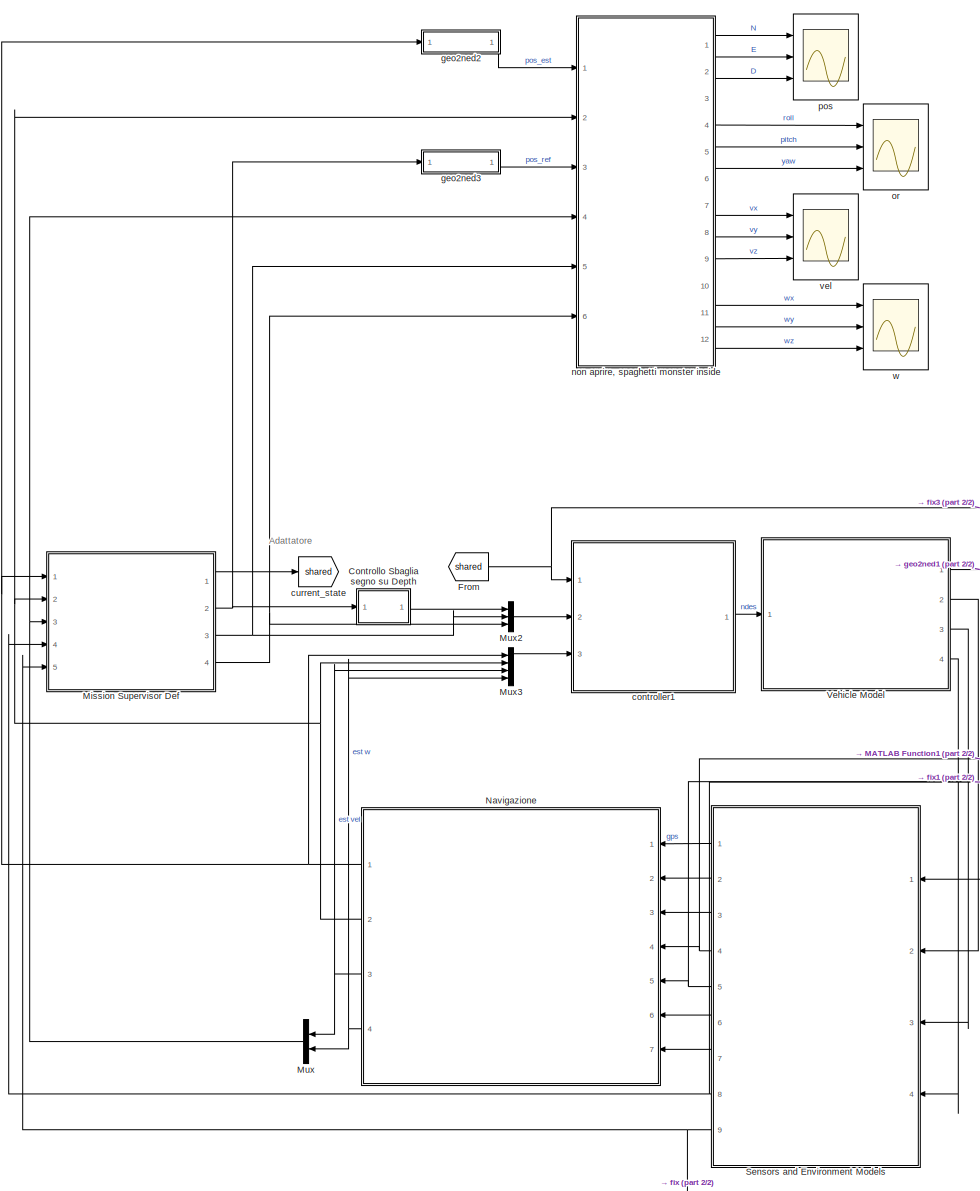
[diagram: root canvas - part 1/2, left side, full height]
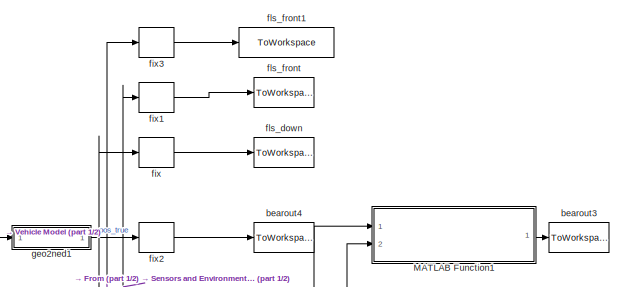
[diagram: root canvas - part 2/2, top right region]
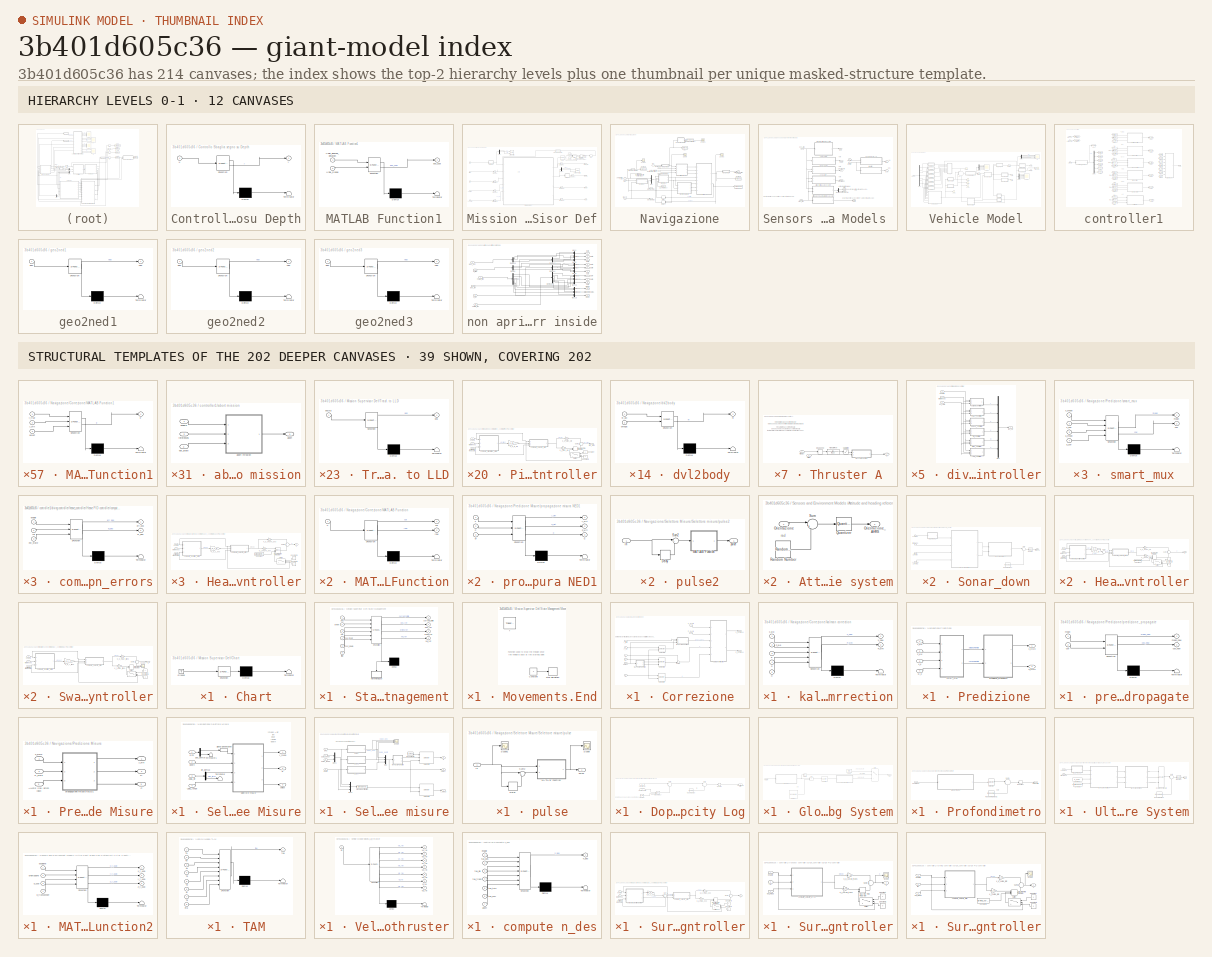
[diagram: thumbnail index - top-2 hierarchy levels (12 canvases) + 39 structural-template representatives of the remaining 202 canvases]
MODEL slx_3b401d605c36
KIND model
CONFIG AbsTol = auto
CONFIG EnableMultiTasking = off
CONFIG FixedStep = 0.05
CONFIG InitFcn = main_init
CONFIG MaxStep = auto
CONFIG MinStep = auto
CONFIG RelTol = 1e-3
CONFIG SampleTimeConstraint = Unconstrained
CONFIG Solver = VariableStepAuto
CONFIG SolverName = VariableStepAuto
CONFIG StartTime = 0.0
CONFIG StopTime = stop_time
BLOCK [SubSystem] Controllo Sbaglia segno su Depth
  ErrorFcn = Stateflow.Translate.translate
  PermitHierarchicalResolution = ExplicitOnly
  Ports = [1, 1]
  RequestExecContextInheritance = off
  SFBlockType = MATLAB Function
  TreatAsAtomicUnit = on
BLOCK [Demux] Controllo Sbaglia segno su Depth/ Demux 
  Outputs = 1
  Ports = [1, 1]
BLOCK [S-Function] Controllo Sbaglia segno su Depth/ SFunction 
  EnableBusSupport = on
  FunctionName = sf_sfun
  PortCounts = [1 2]
  Ports = [1, 2]
  SFcnIsStateOwnerBlock = off
  SFunctionDeploymentMode = off
  Tag = Stateflow S-Function 55
BLOCK [Terminator] Controllo Sbaglia segno su Depth/ Terminator 
BLOCK [Inport] Controllo Sbaglia segno su Depth/u
BLOCK [Outport] Controllo Sbaglia segno su Depth/y
BLOCK [From] From
  GotoTag = shared
BLOCK [SubSystem] MATLAB Function1
  ErrorFcn = Stateflow.Translate.translate
  PermitHierarchicalResolution = ExplicitOnly
  Ports = [2, 1]
  RequestExecContextInheritance = off
  SFBlockType = MATLAB Function
  TreatAsAtomicUnit = on
BLOCK [Demux] MATLAB Function1/ Demux 
  Outputs = 1
  Ports = [1, 1]
BLOCK [S-Function] MATLAB Function1/ SFunction 
  EnableBusSupport = on
  FunctionName = sf_sfun
  Parameters = pos_transp
  PortCounts = [2 2]
  Ports = [2, 2]
  SFcnIsStateOwnerBlock = off
  SFunctionDeploymentMode = off
  Tag = Stateflow S-Function 178
BLOCK [Terminator] MATLAB Function1/ Terminator 
BLOCK [Inport] MATLAB Function1/USBL_Bearing_elevation
BLOCK [Inport] MATLAB Function1/USBL_Range
  Port = 2
BLOCK [Outport] MATLAB Function1/pos_usbl
BLOCK [SubSystem] Mission Supervisor Def
  Ports = [5, 4]
  RequestExecContextInheritance = off
BLOCK [SubSystem] Mission Supervisor Def/Chart
  ErrorFcn = Stateflow.Translate.translate
  PermitHierarchicalResolution = ExplicitOnly
  Ports = []
  RequestExecContextInheritance = off
  SFBlockType = Chart
  TreatAsAtomicUnit = on
BLOCK [Demux] Mission Supervisor Def/Chart/ Demux 
  Outputs = 1
  Ports = [1, 1]
BLOCK [Ground] Mission Supervisor Def/Chart/ Ground 
BLOCK [S-Function] Mission Supervisor Def/Chart/ SFunction 
  EnableBusSupport = on
  FunctionName = sf_sfun
  PortCounts = [1 1]
  Ports = [1, 1]
  SFcnIsStateOwnerBlock = off
  SFunctionDeploymentMode = off
  Tag = Stateflow S-Function 50
BLOCK [Terminator] Mission Supervisor Def/Chart/ Terminator 
BLOCK [Constant] Mission Supervisor Def/Constant2
BLOCK [Constant] Mission Supervisor Def/Constant3
  Value = 0
BLOCK [Reference] Mission Supervisor Def/Current position  REF=simulink/Sinks/XY Graph
  Ports = [2]
  SourceBlock = simulink/Sinks/XY Graph
  SourceProductBaseCode = SL
  SourceType = XY scope.
BLOCK [DataTypeConversion] Mission Supervisor Def/Data Type Conversion
  OutDataTypeStr = int64
  RndMeth = Floor
  SaturateOnIntegerOverflow = off
BLOCK [Delay] Mission Supervisor Def/Delay
  DelayLength = 1
  InputPortMap = u0
  Ports = [1, 1]
  SampleTime = 0.1
BLOCK [Demux] Mission Supervisor Def/Demux
  Outputs = 3
  Ports = [1, 3]
BLOCK [Demux] Mission Supervisor Def/Demux3
  Commented = on
  Outputs = 3
  Ports = [1, 3]
BLOCK [DiscreteIntegrator] Mission Supervisor Def/Discrete-Time Integrator
  ExternalReset = falling
  ICPrevOutput = DiscIntNeverNeededParam
  ICPrevScaledInput = DiscIntNeverNeededParam
  InitialConditionSetting = Auto
  Ports = [2, 1]
  SampleTime = 0.1
BLOCK [Inport] Mission Supervisor Def/FLS_down
  Port = 5
  PortDimensions = 1
BLOCK [Inport] Mission Supervisor Def/FLS_front
  Port = 4
  PortDimensions = 1
BLOCK [Gain] Mission Supervisor Def/Gain2
  Gain = 1/0.1
BLOCK [Reference] Mission Supervisor Def/Reference position  REF=simulink/Sinks/XY Graph
  Commented = on
  Ports = [2]
  SourceBlock = simulink/Sinks/XY Graph
  SourceProductBaseCode = SL
  SourceType = XY scope.
BLOCK [Selector] Mission Supervisor Def/Selector
  IndexOptions = Index vector (dialog)
  Indices = 4
  InputPortWidth = 8
  OutputSizes = 1
  Ports = [1, 1]
BLOCK [SubSystem] Mission Supervisor Def/State Management
  ErrorFcn = Stateflow.Translate.translate
  PermitHierarchicalResolution = ExplicitOnly
  Ports = [6, 4]
  RequestExecContextInheritance = off
  SFBlockType = Chart
  TreatAsAtomicUnit = on
BLOCK [Demux] Mission Supervisor Def/State Management/ Demux 
  Outputs = 1
  Ports = [1, 1]
BLOCK [S-Function] Mission Supervisor Def/State Management/ SFunction 
  EnableBusSupport = on
  FunctionName = sf_sfun
  Parameters = altitude,averageDepth,cruiseSpeed,distEmerg,endDiv,errOrDiv,errOrPos,errOrSurf,errOrTrans,errOrWPTrans,errPosDiv,errPosPos,errPosSurf,errPosTrans,errPosTransLast,errPosWPTrans,errSphere,errVelDiv,errVelSurf,lineSpaceBetweenTransects,maxRatio,minDist,minGap,nTran,nWPTran,nWPTurn,offset,offsetLast,orDes,orDesRit,orDispari,orPari,orientA,pointA,pointP,rot,safeMargin,semix,semiy,semiz,theta_f,trWP,tur...<+69ch>
  PortCounts = [6 5]
  Ports = [6, 5]
  SFcnIsStateOwnerBlock = off
  SFunctionDeploymentMode = off
  Tag = Stateflow S-Function 51
BLOCK [Inport] Mission Supervisor Def/State Management/FLS_down
  Port = 5
BLOCK [Inport] Mission Supervisor Def/State Management/FLS_front
  Port = 4
BLOCK [SubSystem] Mission Supervisor Def/State Management/Movements.End
  Ports = [0, 0, 0, 1]
  PreDeleteFcn = Stateflow.SLINSF.SimulinkMan.removePreDeleteFcn
  RequestExecContextInheritance = off
  UndoDeleteFcn = Stateflow.SLINSF.SimulinkMan.restorePreDeleteFcn
BLOCK [Constant] Mission Supervisor Def/State Management/Movements.End/Constant
BLOCK [Stop] Mission Supervisor Def/State Management/Movements.End/Stop Simulation
BLOCK [TriggerPort] Mission Supervisor Def/State Management/Movements.End/f
  CopyFcn = Stateflow.SLINSF.SimulinkMan.removeBlockPreDeleteFcn
  Ports = []
  PreDeleteFcn = Stateflow.SLINSF.SimulinkMan.unsafePredeleteFcn
  StatesWhenEnabling = held
  TriggerType = function-call
  VariantControl = (inherit)
BLOCK [Outport] Mission Supervisor Def/State Management/current_state
BLOCK [Inport] Mission Supervisor Def/State Management/orient
  Port = 2
BLOCK [Outport] Mission Supervisor Def/State Management/orient_ref
  Port = 3
BLOCK [Inport] Mission Supervisor Def/State Management/pos
BLOCK [Outport] Mission Supervisor Def/State Management/pos_ref
  Port = 2
BLOCK [Inport] Mission Supervisor Def/State Management/time
  Port = 6
BLOCK [Inport] Mission Supervisor Def/State Management/vel
  Port = 3
BLOCK [Outport] Mission Supervisor Def/State Management/vel_ref
  Port = 4
BLOCK [Switch] Mission Supervisor Def/Switch1
  Criteria = u2 > Threshold
  InputSameDT = off
  SaturateOnIntegerOverflow = off
BLOCK [Math] Mission Supervisor Def/Transpose
  Operator = transpose
  Ports = [1, 1]
BLOCK [Math] Mission Supervisor Def/Transpose1
  Operator = transpose
  Ports = [1, 1]
BLOCK [Math] Mission Supervisor Def/Transpose2
  Operator = transpose
  Ports = [1, 1]
BLOCK [Math] Mission Supervisor Def/Transpose3
  Operator = transpose
  Ports = [1, 1]
BLOCK [Math] Mission Supervisor Def/Transpose4
  Operator = transpose
  Ports = [1, 1]
BLOCK [Math] Mission Supervisor Def/Transpose5
  Operator = transpose
  Ports = [1, 1]
BLOCK [Math] Mission Supervisor Def/Transpose6
  Operator = transpose
  Ports = [1, 1]
BLOCK [Math] Mission Supervisor Def/Transpose7
  Operator = transpose
  Ports = [1, 1]
BLOCK [SubSystem] Mission Supervisor Def/Trasf. to LLD
  ErrorFcn = Stateflow.Translate.translate
  PermitHierarchicalResolution = ExplicitOnly
  Ports = [1, 1]
  RequestExecContextInheritance = off
  SFBlockType = MATLAB Function
  TreatAsAtomicUnit = on
BLOCK [Demux] Mission Supervisor Def/Trasf. to LLD/ Demux 
  Outputs = 1
  Ports = [1, 1]
BLOCK [S-Function] Mission Supervisor Def/Trasf. to LLD/ SFunction 
  EnableBusSupport = on
  FunctionName = sf_sfun
  Parameters = areaOfInterestCorner
  PortCounts = [1 2]
  Ports = [1, 2]
  SFcnIsStateOwnerBlock = off
  SFunctionDeploymentMode = off
  Tag = Stateflow S-Function 53
BLOCK [Terminator] Mission Supervisor Def/Trasf. to LLD/ Terminator 
BLOCK [Outport] Mission Supervisor Def/Trasf. to LLD/pos
BLOCK [Inport] Mission Supervisor Def/Trasf. to LLD/posArg
BLOCK [SubSystem] Mission Supervisor Def/Trasf. to NED
  ErrorFcn = Stateflow.Translate.translate
  PermitHierarchicalResolution = ExplicitOnly
  Ports = [1, 1]
  RequestExecContextInheritance = off
  SFBlockType = MATLAB Function
  TreatAsAtomicUnit = on
BLOCK [Demux] Mission Supervisor Def/Trasf. to NED/ Demux 
  Outputs = 1
  Ports = [1, 1]
BLOCK [S-Function] Mission Supervisor Def/Trasf. to NED/ SFunction 
  EnableBusSupport = on
  FunctionName = sf_sfun
  Parameters = areaOfInterestCorner
  PortCounts = [1 2]
  Ports = [1, 2]
  SFcnIsStateOwnerBlock = off
  SFunctionDeploymentMode = off
  Tag = Stateflow S-Function 52
BLOCK [Terminator] Mission Supervisor Def/Trasf. to NED/ Terminator 
BLOCK [Outport] Mission Supervisor Def/Trasf. to NED/pos
BLOCK [Inport] Mission Supervisor Def/Trasf. to NED/posArg
BLOCK [Outport] Mission Supervisor Def/current_state
BLOCK [Inport] Mission Supervisor Def/orient
  Port = 2
  PortDimensions = [3 1]
BLOCK [Outport] Mission Supervisor Def/orient_ref
  Port = 3
BLOCK [Inport] Mission Supervisor Def/pos
BLOCK [Outport] Mission Supervisor Def/pos_ref
  Port = 2
BLOCK [Inport] Mission Supervisor Def/vel
  Port = 3
  PortDimensions = [6 1]
BLOCK [Outport] Mission Supervisor Def/vel_ref
  Port = 4
  PortDimensions = [6 1]
BLOCK [Mux] Mux
  DisplayOption = bar
  Inputs = 2
  Ports = [2, 1]
BLOCK [Mux] Mux2
  DisplayOption = bar
  Inputs = 3
  Ports = [3, 1]
BLOCK [Mux] Mux3
  DisplayOption = bar
  Ports = [4, 1]
BLOCK [SubSystem] Navigazione
  Ports = [7, 4]
  RequestExecContextInheritance = off
BLOCK [Inport] Navigazione/AHRS [roll pitch yaw]
  Port = 2
  PortDimensions = [3 1]
BLOCK [SubSystem] Navigazione/Correzione
  Ports = [8, 2]
  RequestExecContextInheritance = off
BLOCK [Inport] Navigazione/Correzione/C
  Port = 8
BLOCK [SubSystem] Navigazione/Correzione/MATLAB Function
  ErrorFcn = Stateflow.Translate.translate
  PermitHierarchicalResolution = ExplicitOnly
  Ports = [1, 2]
  RequestExecContextInheritance = off
  SFBlockType = MATLAB Function
  SystemSampleTime = ts_filter
  TreatAsAtomicUnit = on
BLOCK [Demux] Navigazione/Correzione/MATLAB Function/ Demux 
  Outputs = 1
  Ports = [1, 1]
BLOCK [S-Function] Navigazione/Correzione/MATLAB Function/ SFunction 
  EnableBusSupport = on
  FunctionName = sf_sfun
  PortCounts = [1 3]
  Ports = [1, 3]
  SFcnIsStateOwnerBlock = off
  SFunctionDeploymentMode = off
  Tag = Stateflow S-Function 37
BLOCK [Terminator] Navigazione/Correzione/MATLAB Function/ Terminator 
BLOCK [Outport] Navigazione/Correzione/MATLAB Function/col
BLOCK [Outport] Navigazione/Correzione/MATLAB Function/row
  Port = 2
BLOCK [Inport] Navigazione/Correzione/MATLAB Function/u
BLOCK [SubSystem] Navigazione/Correzione/MATLAB Function1
  ErrorFcn = Stateflow.Translate.translate
  PermitHierarchicalResolution = ExplicitOnly
  Ports = [3, 1]
  RequestExecContextInheritance = off
  SFBlockType = MATLAB Function
  TreatAsAtomicUnit = on
BLOCK [Demux] Navigazione/Correzione/MATLAB Function1/ Demux 
  Outputs = 1
  Ports = [1, 1]
BLOCK [S-Function] Navigazione/Correzione/MATLAB Function1/ SFunction 
  EnableBusSupport = on
  FunctionName = sf_sfun
  PortCounts = [3 2]
  Ports = [3, 2]
  SFcnIsStateOwnerBlock = off
  SFunctionDeploymentMode = off
  Tag = Stateflow S-Function 38
BLOCK [Terminator] Navigazione/Correzione/MATLAB Function1/ Terminator 
BLOCK [Outport] Navigazione/Correzione/MATLAB Function1/e
BLOCK [Inport] Navigazione/Correzione/MATLAB Function1/select
  Port = 3
BLOCK [Inport] Navigazione/Correzione/MATLAB Function1/y_true
BLOCK [Inport] Navigazione/Correzione/MATLAB Function1/y_virt
  Port = 2
BLOCK [Inport] Navigazione/Correzione/P_k+1|k
  Port = 5
BLOCK [Outport] Navigazione/Correzione/P_k+1|k+1
  Port = 2
BLOCK [Inport] Navigazione/Correzione/R
  Port = 2
BLOCK [Inport] Navigazione/Correzione/S'
  Port = 7
BLOCK [Selector] Navigazione/Correzione/Selector1
  IndexOptions = Index vector (port),Index vector (port)
  Indices = [1 3],1
  InputPortWidth = 3
  NumberOfDimensions = 2
  OutputSizes = 1,1
  Ports = [3, 1]
BLOCK [Selector] Navigazione/Correzione/Selector2
  IndexOptions = Index vector (port)
  Indices = [1 3]
  InputPortWidth = 5
  OutputSizes = 1
  Ports = [2, 1]
BLOCK [Selector] Navigazione/Correzione/Selector3
  IndexOptions = Select all,Index vector (port)
  Indices = [1 3],1
  InputPortWidth = 3
  NumberOfDimensions = 2
  OutputSizes = 1,1
  Ports = [2, 1]
BLOCK [Sum] Navigazione/Correzione/Sum2
  Inputs = ++|
  Ports = [2, 1]
BLOCK [SubSystem] Navigazione/Correzione/kalman correction
  ErrorFcn = Stateflow.Translate.translate
  PermitHierarchicalResolution = ExplicitOnly
  Ports = [5, 2]
  RequestExecContextInheritance = off
  SFBlockType = MATLAB Function
  SystemSampleTime = ts_filter
  TreatAsAtomicUnit = on
BLOCK [Demux] Navigazione/Correzione/kalman correction/ Demux 
  Outputs = 1
  Ports = [1, 1]
BLOCK [S-Function] Navigazione/Correzione/kalman correction/ SFunction 
  EnableBusSupport = on
  FunctionName = sf_sfun
  PortCounts = [5 3]
  Ports = [5, 3]
  SFcnIsStateOwnerBlock = off
  SFunctionDeploymentMode = off
  Tag = Stateflow S-Function 39
BLOCK [Terminator] Navigazione/Correzione/kalman correction/ Terminator 
BLOCK [Inport] Navigazione/Correzione/kalman correction/C
  Port = 5
BLOCK [Inport] Navigazione/Correzione/kalman correction/P_old
  Port = 2
BLOCK [Outport] Navigazione/Correzione/kalman correction/P_sym
  Port = 2
BLOCK [Inport] Navigazione/Correzione/kalman correction/S
  Port = 4
BLOCK [Inport] Navigazione/Correzione/kalman correction/e
  Port = 3
BLOCK [Outport] Navigazione/Correzione/kalman correction/x_new
BLOCK [Inport] Navigazione/Correzione/kalman correction/x_old
BLOCK [Inport] Navigazione/Correzione/select
  Port = 3
BLOCK [Inport] Navigazione/Correzione/x_k+1|k
  Port = 4
BLOCK [Outport] Navigazione/Correzione/x_k+1|k+1
BLOCK [Inport] Navigazione/Correzione/y_true
BLOCK [Inport] Navigazione/Correzione/y_vir
  Port = 6
BLOCK [Inport] Navigazione/DVL
  Port = 6
  PortDimensions = [3 1]
BLOCK [Delay] Navigazione/Delay
  DelayLength = 1
  InitialCondition = initial_state_cov
  InputPortMap = u0
  Ports = [1, 1]
  SampleTime = ts_filter
BLOCK [Delay] Navigazione/Delay1
  DelayLength = 1
  InitialCondition = initial_state
  InitialConditionSource = Input port
  InputPortMap = u0,p4
  Ports = [2, 1]
  SampleTime = ts_filter
BLOCK [Inport] Navigazione/Depth Sensor
  Port = 3
  PortDimensions = [1 1]
BLOCK [Outport] Navigazione/Estimated orientation (phi, theta, psi)
  Port = 2
BLOCK [Outport] Navigazione/Estimated position LLdepth
BLOCK [Inport] Navigazione/GPS
  PortDimensions = [3 1]
BLOCK [Inport] Navigazione/IMU Gyro
  Port = 7
  PortDimensions = [3 1]
BLOCK [SubSystem] Navigazione/MATLAB Function
  ErrorFcn = Stateflow.Translate.translate
  PermitHierarchicalResolution = ExplicitOnly
  Ports = [1, 1]
  RequestExecContextInheritance = off
  SFBlockType = MATLAB Function
  TreatAsAtomicUnit = on
BLOCK [Demux] Navigazione/MATLAB Function/ Demux 
  Outputs = 1
  Ports = [1, 1]
BLOCK [S-Function] Navigazione/MATLAB Function/ SFunction 
  EnableBusSupport = on
  FunctionName = sf_sfun
  PortCounts = [1 2]
  Ports = [1, 2]
  SFcnIsStateOwnerBlock = off
  SFunctionDeploymentMode = off
  Tag = Stateflow S-Function 177
BLOCK [Terminator] Navigazione/MATLAB Function/ Terminator 
BLOCK [Inport] Navigazione/MATLAB Function/u
BLOCK [Outport] Navigazione/MATLAB Function/y
BLOCK [Mux] Navigazione/Mux
  DisplayOption = bar
  Inputs = 2
  Ports = [2, 1]
BLOCK [SubSystem] Navigazione/Predizione
  Ports = [4, 2]
  RequestExecContextInheritance = off
BLOCK [SubSystem] Navigazione/Predizione Misure
  Ports = [3, 3]
  RequestExecContextInheritance = off
BLOCK [Inport] Navigazione/Predizione Misure/AHRS [roll pitch yaw]
  Port = 3
BLOCK [Outport] Navigazione/Predizione Misure/C
  Port = 3
BLOCK [Inport] Navigazione/Predizione Misure/P_k+1|k
  Port = 2
BLOCK [Outport] Navigazione/Predizione Misure/S'
  Port = 2
BLOCK [SubSystem] Navigazione/Predizione Misure/propagazione misura NED1
  ErrorFcn = Stateflow.Translate.translate
  PermitHierarchicalResolution = ExplicitOnly
  Ports = [3, 3]
  RequestExecContextInheritance = off
  SFBlockType = MATLAB Function
  SystemSampleTime = ts_filter
  TreatAsAtomicUnit = on
BLOCK [Demux] Navigazione/Predizione Misure/propagazione misura NED1/ Demux 
  Outputs = 1
  Ports = [1, 1]
BLOCK [S-Function] Navigazione/Predizione Misure/propagazione misura NED1/ SFunction 
  EnableBusSupport = on
  FunctionName = sf_sfun
  Parameters = n_meas_filter,n_state_filter,p_usbl,pos_transp
  PortCounts = [3 4]
  Ports = [3, 4]
  SFcnIsStateOwnerBlock = off
  SFunctionDeploymentMode = off
  Tag = Stateflow S-Function 42
BLOCK [Terminator] Navigazione/Predizione Misure/propagazione misura NED1/ Terminator 
BLOCK [Outport] Navigazione/Predizione Misure/propagazione misura NED1/C
  Port = 3
BLOCK [Inport] Navigazione/Predizione Misure/propagazione misura NED1/P
  Port = 2
BLOCK [Outport] Navigazione/Predizione Misure/propagazione misura NED1/S_virt
  Port = 2
BLOCK [Inport] Navigazione/Predizione Misure/propagazione misura NED1/or
  Port = 3
BLOCK [Inport] Navigazione/Predizione Misure/propagazione misura NED1/x
BLOCK [Outport] Navigazione/Predizione Misure/propagazione misura NED1/y_virt
BLOCK [Inport] Navigazione/Predizione Misure/x_k+1|k
BLOCK [Outport] Navigazione/Predizione Misure/y_virt
BLOCK [Outport] Navigazione/Predizione/P_k+1|k
  Port = 2
BLOCK [Inport] Navigazione/Predizione/P_k|k
  Port = 2
BLOCK [Inport] Navigazione/Predizione/Q_k
  Port = 4
BLOCK [SubSystem] Navigazione/Predizione/predizione_propagate
  ErrorFcn = Stateflow.Translate.translate
  PermitHierarchicalResolution = ExplicitOnly
  Ports = [2, 2]
  RequestExecContextInheritance = off
  SFBlockType = MATLAB Function
  SystemSampleTime = ts_filter
  TreatAsAtomicUnit = on
BLOCK [Demux] Navigazione/Predizione/predizione_propagate/ Demux 
  Outputs = 1
  Ports = [1, 1]
BLOCK [S-Function] Navigazione/Predizione/predizione_propagate/ SFunction 
  EnableBusSupport = on
  FunctionName = sf_sfun
  Parameters = n_state_aug_filter,n_state_filter,ts_filter
  PortCounts = [2 3]
  Ports = [2, 3]
  SFcnIsStateOwnerBlock = off
  SFunctionDeploymentMode = off
  Tag = Stateflow S-Function 40
BLOCK [Terminator] Navigazione/Predizione/predizione_propagate/ Terminator 
BLOCK [Inport] Navigazione/Predizione/predizione_propagate/cov
  Port = 2
BLOCK [Outport] Navigazione/Predizione/predizione_propagate/cov_new
  Port = 2
BLOCK [Inport] Navigazione/Predizione/predizione_propagate/mean
BLOCK [Outport] Navigazione/Predizione/predizione_propagate/mean_new
BLOCK [SubSystem] Navigazione/Predizione/smart_mux
  ErrorFcn = Stateflow.Translate.translate
  PermitHierarchicalResolution = ExplicitOnly
  Ports = [4, 2]
  RequestExecContextInheritance = off
  SFBlockType = MATLAB Function
  SystemSampleTime = ts_filter
  TreatAsAtomicUnit = on
BLOCK [Demux] Navigazione/Predizione/smart_mux/ Demux 
  Outputs = 1
  Ports = [1, 1]
BLOCK [S-Function] Navigazione/Predizione/smart_mux/ SFunction 
  EnableBusSupport = on
  FunctionName = sf_sfun
  Parameters = n_input_filter,n_state_filter
  PortCounts = [4 3]
  Ports = [4, 3]
  SFcnIsStateOwnerBlock = off
  SFunctionDeploymentMode = off
  Tag = Stateflow S-Function 41
BLOCK [Terminator] Navigazione/Predizione/smart_mux/ Terminator 
BLOCK [Outport] Navigazione/Predizione/smart_mux/cov
  Port = 2
BLOCK [Outport] Navigazione/Predizione/smart_mux/mean
BLOCK [Inport] Navigazione/Predizione/smart_mux/u_cov
  Port = 4
BLOCK [Inport] Navigazione/Predizione/smart_mux/u_mean
  Port = 3
BLOCK [Inport] Navigazione/Predizione/smart_mux/x_cov
  Port = 2
BLOCK [Inport] Navigazione/Predizione/smart_mux/x_mean
BLOCK [Inport] Navigazione/Predizione/u_k
  Port = 3
BLOCK [Outport] Navigazione/Predizione/x_k+1|k
BLOCK [Inport] Navigazione/Predizione/x_k|k
BLOCK [Constant] Navigazione/Q cov ingressi
  Value = Q_ingressi
BLOCK [Scope] Navigazione/Scope
  Floating = off
  NumInputPorts = 1
  Ports = [1]
  ScopeSpecificationString = Simulink.scopes.TimeScopeBlockCfg('CurrentConfiguration', extmgr.ConfigurationSet(extmgr.Configuration('Core','General UI',true),extmgr.Configuration('Core','Source UI',true),extmgr.Configuration('Sources','WiredSimulink',true,'DataLoggingVariableName','ScopeData1'),extmgr.Configuration('Visuals','Time Domain',true,'SerializedDisplays',{struct('MinYLimReal','-3.73375','MaxYLimReal','3.20375','YLab...<+1428ch>
BLOCK [Scope] Navigazione/Scope1
  Floating = off
  NumInputPorts = 1
  Ports = [1]
  ScopeSpecificationString = Simulink.scopes.TimeScopeBlockCfg('CurrentConfiguration', extmgr.ConfigurationSet(extmgr.Configuration('Core','General UI',true),extmgr.Configuration('Core','Source UI',true),extmgr.Configuration('Sources','WiredSimulink',true,'DataLoggingVariableName','ScopeData2'),extmgr.Configuration('Visuals','Time Domain',true,'SerializedDisplays',{struct('MinYLimReal','-43.40862','MaxYLimReal','7.96923','YLa...<+1438ch>
BLOCK [Scope] Navigazione/Scope2
  Floating = off
  NumInputPorts = 1
  Ports = [1]
  ScopeSpecificationString = Simulink.scopes.TimeScopeBlockCfg('CurrentConfiguration', extmgr.ConfigurationSet(extmgr.Configuration('Core','General UI',true),extmgr.Configuration('Core','Source UI',true),extmgr.Configuration('Sources','WiredSimulink',true,'DataLoggingVariableName','ScopeData1'),extmgr.Configuration('Visuals','Time Domain',true),extmgr.Configuration('Tools','Plot Navigation',true),extmgr.Configuration('Tools',...<+40ch>
BLOCK [Scope] Navigazione/Scope4
  Floating = off
  NumInputPorts = 1
  Ports = [1]
  ScopeSpecificationString = Simulink.scopes.TimeScopeBlockCfg('CurrentConfiguration', extmgr.ConfigurationSet(extmgr.Configuration('Core','General UI',true),extmgr.Configuration('Core','Source UI',true),extmgr.Configuration('Sources','WiredSimulink',true,'DataLoggingVariableName','ScopeData4'),extmgr.Configuration('Visuals','Time Domain',true),extmgr.Configuration('Tools','Plot Navigation',true),extmgr.Configuration('Tools',...<+40ch>
BLOCK [SubSystem] Navigazione/Selettore Misure
  Ports = [4, 3]
  RequestExecContextInheritance = off
BLOCK [Inport] Navigazione/Selettore Misure/GPS
BLOCK [Outport] Navigazione/Selettore Misure/R
  Port = 2
BLOCK [SubSystem] Navigazione/Selettore Misure/Selettore misure
  Ports = [4, 3]
  RequestExecContextInheritance = off
BLOCK [Inport] Navigazione/Selettore Misure/Selettore misure/GPS
BLOCK [SubSystem] Navigazione/Selettore Misure/Selettore misure/MATLAB Function
  ErrorFcn = Stateflow.Translate.translate
  PermitHierarchicalResolution = ExplicitOnly
  Ports = [1, 2]
  RequestExecContextInheritance = off
  SFBlockType = MATLAB Function
  TreatAsAtomicUnit = on
BLOCK [Demux] Navigazione/Selettore Misure/Selettore misure/MATLAB Function/ Demux 
  Outputs = 1
  Ports = [1, 1]
BLOCK [S-Function] Navigazione/Selettore Misure/Selettore misure/MATLAB Function/ SFunction 
  EnableBusSupport = on
  FunctionName = sf_sfun
  PortCounts = [1 3]
  Ports = [1, 3]
  SFcnIsStateOwnerBlock = off
  SFunctionDeploymentMode = off
  Tag = Stateflow S-Function 43
BLOCK [Terminator] Navigazione/Selettore Misure/Selettore misure/MATLAB Function/ Terminator 
BLOCK [Outport] Navigazione/Selettore Misure/Selettore misure/MATLAB Function/col
BLOCK [Outport] Navigazione/Selettore Misure/Selettore misure/MATLAB Function/row
  Port = 2
BLOCK [Inport] Navigazione/Selettore Misure/Selettore misure/MATLAB Function/u
BLOCK [Mux] Navigazione/Selettore Misure/Selettore misure/Mux
  DisplayOption = bar
  Inputs = 3
  Ports = [3, 1]
BLOCK [Mux] Navigazione/Selettore Misure/Selettore misure/Mux1
  DisplayOption = bar
  Inputs = 2
  Ports = [2, 1]
BLOCK [Mux] Navigazione/Selettore Misure/Selettore misure/Mux2
  DisplayOption = bar
  Inputs = 3
  Ports = [3, 1]
BLOCK [Outport] Navigazione/Selettore Misure/Selettore misure/R
  Port = 2
BLOCK [Constant] Navigazione/Selettore Misure/Selettore misure/R cov misure
  Value = R_meas
BLOCK [Scope] Navigazione/Selettore Misure/Selettore misure/Scope
  Floating = off
  NumInputPorts = 3
  Ports = [3]
  ScopeSpecificationString = Simulink.scopes.TimeScopeBlockCfg('CurrentConfiguration', extmgr.ConfigurationSet(extmgr.Configuration('Core','General UI',true),extmgr.Configuration('Core','Source UI',true),extmgr.Configuration('Sources','WiredSimulink',true,'DataLoggingVariableName','ScopeData2'),extmgr.Configuration('Visuals','Time Domain',true,'SerializedDisplays',{struct('MinYLimReal','-0.125','MaxYLimReal','1.125','YLabelRe...<+1456ch>
BLOCK [Selector] Navigazione/Selettore Misure/Selettore misure/Selector1
  IndexOptions = Index vector (port),Index vector (port)
  Indices = [1 3],1
  InputPortWidth = 3
  NumberOfDimensions = 2
  OutputSizes = 1,1
  Ports = [3, 1]
BLOCK [Selector] Navigazione/Selettore Misure/Selettore misure/Selector2
  IndexOptions = Index vector (port)
  Indices = [1 3]
  InputPortWidth = 5
  OutputSizes = 1
  Ports = [2, 1]
BLOCK [SignalSpecification] Navigazione/Selettore Misure/Selettore misure/Signal Specification
  Dimensions = [5 1]
BLOCK [Inport] Navigazione/Selettore Misure/Selettore misure/USBL_bear
  Port = 3
BLOCK [Inport] Navigazione/Selettore Misure/Selettore misure/USBL_range
  Port = 4
BLOCK [Inport] Navigazione/Selettore Misure/Selettore misure/depth
  Port = 2
BLOCK [SubSystem] Navigazione/Selettore Misure/Selettore misure/pulse
  Ports = [1, 1]
  RequestExecContextInheritance = off
BLOCK [Delay] Navigazione/Selettore Misure/Selettore misure/pulse/Delay
  DelayLength = 1
  InputPortMap = u0
  Ports = [1, 1]
  SampleTime = ts_filter
BLOCK [SubSystem] Navigazione/Selettore Misure/Selettore misure/pulse/MATLAB Function
  ErrorFcn = Stateflow.Translate.translate
  PermitHierarchicalResolution = ExplicitOnly
  Ports = [2, 1]
  RequestExecContextInheritance = off
  SFBlockType = MATLAB Function
  TreatAsAtomicUnit = on
BLOCK [Demux] Navigazione/Selettore Misure/Selettore misure/pulse/MATLAB Function/ Demux 
  Outputs = 1
  Ports = [1, 1]
BLOCK [S-Function] Navigazione/Selettore Misure/Selettore misure/pulse/MATLAB Function/ SFunction 
  EnableBusSupport = on
  FunctionName = sf_sfun
  Parameters = ned_origin
  PortCounts = [2 2]
  Ports = [2, 2]
  SFcnIsStateOwnerBlock = off
  SFunctionDeploymentMode = off
  Tag = Stateflow S-Function 44
BLOCK [Terminator] Navigazione/Selettore Misure/Selettore misure/pulse/MATLAB Function/ Terminator 
BLOCK [Inport] Navigazione/Selettore Misure/Selettore misure/pulse/MATLAB Function/gps_now
BLOCK [Inport] Navigazione/Selettore Misure/Selettore misure/pulse/MATLAB Function/u
  Port = 2
BLOCK [Outport] Navigazione/Selettore Misure/Selettore misure/pulse/MATLAB Function/y
BLOCK [Scope] Navigazione/Selettore Misure/Selettore misure/pulse/Scope
  Floating = off
  NumInputPorts = 1
  Ports = [1]
  ScopeSpecificationString = Simulink.scopes.TimeScopeBlockCfg('CurrentConfiguration', extmgr.ConfigurationSet(extmgr.Configuration('Core','General UI',true),extmgr.Configuration('Core','Source UI',true),extmgr.Configuration('Sources','WiredSimulink',true,'DataLoggingVariableName','ScopeData1'),extmgr.Configuration('Visuals','Time Domain',true,'SerializedDisplays',{struct('MinYLimReal','-0.01038','MaxYLimReal','0.00438','YLab...<+1422ch>
BLOCK [Scope] Navigazione/Selettore Misure/Selettore misure/pulse/Scope1
  Floating = off
  NumInputPorts = 1
  Ports = [1]
  ScopeSpecificationString = Simulink.scopes.TimeScopeBlockCfg('CurrentConfiguration', extmgr.ConfigurationSet(extmgr.Configuration('Core','General UI',true),extmgr.Configuration('Core','Source UI',true),extmgr.Configuration('Sources','WiredSimulink',true,'DataLoggingVariableName','ScopeData2'),extmgr.Configuration('Visuals','Time Domain',true,'SerializedDisplays',{struct('MinYLimReal','-1207731.78149','MaxYLimReal','-1207731...<+1466ch>
BLOCK [Sum] Navigazione/Selettore Misure/Selettore misure/pulse/Sum2
  Inputs = |+-
  Ports = [2, 1]
BLOCK [Inport] Navigazione/Selettore Misure/Selettore misure/pulse/in
BLOCK [Outport] Navigazione/Selettore Misure/Selettore misure/pulse/pulse
BLOCK [SubSystem] Navigazione/Selettore Misure/Selettore misure/pulse2
  Ports = [1, 1]
  RequestExecContextInheritance = off
BLOCK [Delay] Navigazione/Selettore Misure/Selettore misure/pulse2/Delay
  DelayLength = 1
  InputPortMap = u0
  Ports = [1, 1]
  SampleTime = ts_filter
BLOCK [SubSystem] Navigazione/Selettore Misure/Selettore misure/pulse2/MATLAB Function
  ErrorFcn = Stateflow.Translate.translate
  PermitHierarchicalResolution = ExplicitOnly
  Ports = [1, 1]
  RequestExecContextInheritance = off
  SFBlockType = MATLAB Function
  TreatAsAtomicUnit = on
BLOCK [Demux] Navigazione/Selettore Misure/Selettore misure/pulse2/MATLAB Function/ Demux 
  Outputs = 1
  Ports = [1, 1]
BLOCK [S-Function] Navigazione/Selettore Misure/Selettore misure/pulse2/MATLAB Function/ SFunction 
  EnableBusSupport = on
  FunctionName = sf_sfun
  PortCounts = [1 2]
  Ports = [1, 2]
  SFcnIsStateOwnerBlock = off
  SFunctionDeploymentMode = off
  Tag = Stateflow S-Function 45
BLOCK [Terminator] Navigazione/Selettore Misure/Selettore misure/pulse2/MATLAB Function/ Terminator 
BLOCK [Inport] Navigazione/Selettore Misure/Selettore misure/pulse2/MATLAB Function/u
BLOCK [Outport] Navigazione/Selettore Misure/Selettore misure/pulse2/MATLAB Function/y
BLOCK [Sum] Navigazione/Selettore Misure/Selettore misure/pulse2/Sum2
  Inputs = |+-
  Ports = [2, 1]
BLOCK [Inport] Navigazione/Selettore Misure/Selettore misure/pulse2/in
BLOCK [Outport] Navigazione/Selettore Misure/Selettore misure/pulse2/pulse
BLOCK [SubSystem] Navigazione/Selettore Misure/Selettore misure/pulse4
  Ports = [1, 1]
  RequestExecContextInheritance = off
BLOCK [Delay] Navigazione/Selettore Misure/Selettore misure/pulse4/Delay
  DelayLength = 1
  InputPortMap = u0
  Ports = [1, 1]
  SampleTime = ts_filter
BLOCK [SubSystem] Navigazione/Selettore Misure/Selettore misure/pulse4/MATLAB Function
  ErrorFcn = Stateflow.Translate.translate
  PermitHierarchicalResolution = ExplicitOnly
  Ports = [1, 1]
  RequestExecContextInheritance = off
  SFBlockType = MATLAB Function
  TreatAsAtomicUnit = on
BLOCK [Demux] Navigazione/Selettore Misure/Selettore misure/pulse4/MATLAB Function/ Demux 
  Outputs = 1
  Ports = [1, 1]
BLOCK [S-Function] Navigazione/Selettore Misure/Selettore misure/pulse4/MATLAB Function/ SFunction 
  EnableBusSupport = on
  FunctionName = sf_sfun
  PortCounts = [1 2]
  Ports = [1, 2]
  SFcnIsStateOwnerBlock = off
  SFunctionDeploymentMode = off
  Tag = Stateflow S-Function 46
BLOCK [Terminator] Navigazione/Selettore Misure/Selettore misure/pulse4/MATLAB Function/ Terminator 
BLOCK [Inport] Navigazione/Selettore Misure/Selettore misure/pulse4/MATLAB Function/u
BLOCK [Outport] Navigazione/Selettore Misure/Selettore misure/pulse4/MATLAB Function/y
BLOCK [Sum] Navigazione/Selettore Misure/Selettore misure/pulse4/Sum2
  Inputs = |+-
  Ports = [2, 1]
BLOCK [Inport] Navigazione/Selettore Misure/Selettore misure/pulse4/in
BLOCK [Outport] Navigazione/Selettore Misure/Selettore misure/pulse4/pulse
BLOCK [Outport] Navigazione/Selettore Misure/Selettore misure/select
  Port = 3
BLOCK [Outport] Navigazione/Selettore Misure/Selettore misure/y_meas
BLOCK [SignalSpecification] Navigazione/Selettore Misure/Signal Specification
  Dimensions = 2
BLOCK [Terminator] Navigazione/Selettore Misure/Terminator
BLOCK [Terminator] Navigazione/Selettore Misure/Terminator1
BLOCK [Inport] Navigazione/Selettore Misure/USBL_dir
  Port = 3
BLOCK [Inport] Navigazione/Selettore Misure/USBL_range
  Port = 4
BLOCK [Inport] Navigazione/Selettore Misure/depth
  Port = 2
BLOCK [Demux] Navigazione/Selettore Misure/dir_demux
  Outputs = 2
  Ports = [1, 2]
BLOCK [Demux] Navigazione/Selettore Misure/gps_demux
  Outputs = 2
  Ports = [1, 2]
BLOCK [Outport] Navigazione/Selettore Misure/select
  Port = 3
BLOCK [Outport] Navigazione/Selettore Misure/y_meas
BLOCK [SignalSpecification] Navigazione/Signal Specification
  Dimensions = [3,1]
BLOCK [SignalSpecification] Navigazione/Signal Specification1
  Dimensions = 1
BLOCK [ToWorkspace] Navigazione/To Workspace
  FixptAsFi = on
  MaxDataPoints = inf
  Ports = [1]
  SampleTime = -1
  SaveFormat = Structure With Time
  VariableName = poscov
BLOCK [Inport] Navigazione/USBL Direction [bearing, elevation]
  Port = 4
  PortDimensions = [2 1]
BLOCK [Inport] Navigazione/USBL Range
  Port = 5
  PortDimensions = [1 1]
BLOCK [ToWorkspace] Navigazione/bearout1
  FixptAsFi = on
  MaxDataPoints = inf
  Ports = [1]
  SampleTime = -1
  Save2DSignal = 2-D array (concatenate along first dimension)
  SaveFormat = Structure With Time
  VariableName = pos
BLOCK [ToWorkspace] Navigazione/bearout2
  FixptAsFi = on
  MaxDataPoints = inf
  Ports = [1]
  SampleTime = -1
  Save2DSignal = 2-D array (concatenate along first dimension)
  SaveFormat = Structure With Time
  VariableName = orient
BLOCK [SubSystem] Navigazione/dvl2body
  ErrorFcn = Stateflow.Translate.translate
  PermitHierarchicalResolution = ExplicitOnly
  Ports = [2, 1]
  RequestExecContextInheritance = off
  SFBlockType = MATLAB Function
  TreatAsAtomicUnit = on
BLOCK [Demux] Navigazione/dvl2body/ Demux 
  Outputs = 1
  Ports = [1, 1]
BLOCK [S-Function] Navigazione/dvl2body/ SFunction 
  EnableBusSupport = on
  FunctionName = sf_sfun
  Parameters = p_dvl
  PortCounts = [2 2]
  Ports = [2, 2]
  SFcnIsStateOwnerBlock = off
  SFunctionDeploymentMode = off
  Tag = Stateflow S-Function 47
BLOCK [Terminator] Navigazione/dvl2body/ Terminator 
BLOCK [Outport] Navigazione/dvl2body/ni
BLOCK [Inport] Navigazione/dvl2body/ni_dvl
BLOCK [Inport] Navigazione/dvl2body/omega
  Port = 2
BLOCK [Outport] Navigazione/est velocity (ni1)
  Port = 3
BLOCK [Outport] Navigazione/est velocity (ni2)
  Port = 4
BLOCK [SubSystem] Navigazione/geo2ned1
  ErrorFcn = Stateflow.Translate.translate
  PermitHierarchicalResolution = ExplicitOnly
  Ports = [1, 1]
  RequestExecContextInheritance = off
  SFBlockType = MATLAB Function
  TreatAsAtomicUnit = on
BLOCK [Demux] Navigazione/geo2ned1/ Demux 
  Outputs = 1
  Ports = [1, 1]
BLOCK [S-Function] Navigazione/geo2ned1/ SFunction 
  EnableBusSupport = on
  FunctionName = sf_sfun
  Parameters = ned_origin
  PortCounts = [1 2]
  Ports = [1, 2]
  SFcnIsStateOwnerBlock = off
  SFunctionDeploymentMode = off
  Tag = Stateflow S-Function 48
BLOCK [Terminator] Navigazione/geo2ned1/ Terminator 
BLOCK [Inport] Navigazione/geo2ned1/geo
BLOCK [Outport] Navigazione/geo2ned1/ned
BLOCK [SubSystem] Navigazione/geo2ned2
  ErrorFcn = Stateflow.Translate.translate
  PermitHierarchicalResolution = ExplicitOnly
  Ports = [1, 1]
  RequestExecContextInheritance = off
  SFBlockType = MATLAB Function
  TreatAsAtomicUnit = on
BLOCK [Demux] Navigazione/geo2ned2/ Demux 
  Outputs = 1
  Ports = [1, 1]
BLOCK [S-Function] Navigazione/geo2ned2/ SFunction 
  EnableBusSupport = on
  FunctionName = sf_sfun
  Parameters = ned_origin
  PortCounts = [1 2]
  Ports = [1, 2]
  SFcnIsStateOwnerBlock = off
  SFunctionDeploymentMode = off
  Tag = Stateflow S-Function 49
BLOCK [Terminator] Navigazione/geo2ned2/ Terminator 
BLOCK [Outport] Navigazione/geo2ned2/LLD
BLOCK [Inport] Navigazione/geo2ned2/ned
BLOCK [ToWorkspace] Navigazione/gps
  FixptAsFi = on
  MaxDataPoints = inf
  Ports = [1]
  SampleTime = -1
  Save2DSignal = 2-D array (concatenate along first dimension)
  SaveFormat = Structure With Time
  VariableName = GPS
BLOCK [SubSystem] Sensors and Environment Models 
  Ports = [4, 9]
  RequestExecContextInheritance = off
BLOCK [Outport] Sensors and Environment Models /AHRS
  Port = 2
BLOCK [SubSystem] Sensors and Environment Models /Attitude and heading reference system
  Ports = [1, 1]
  RequestExecContextInheritance = off
BLOCK [Inport] Sensors and Environment Models /Attitude and heading reference system/Orientazione
  SampleTime = Ts_ahrs
BLOCK [Outport] Sensors and Environment Models /Attitude and heading reference system/Orientazione_AHRS
  VectorParamsAs1DForOutWhenUnconnected = off
BLOCK [Quantizer] Sensors and Environment Models /Attitude and heading reference system/Quantizer
  QuantizationInterval = res_ahrs
BLOCK [RandomNumber] Sensors and Environment Models /Attitude and heading reference system/Random Number
  SampleTime = Ts_ahrs
  Seed = [26; 78; 90]
  Variance = var_ahrs
  VectorParams1D = off
BLOCK [Sum] Sensors and Environment Models /Attitude and heading reference system/Sum
  Inputs = |++
  Ports = [2, 1]
BLOCK [Outport] Sensors and Environment Models /DVL
  Port = 6
BLOCK [Demux] Sensors and Environment Models /Demux
  Outputs = 2
  Ports = [1, 2]
BLOCK [Outport] Sensors and Environment Models /Depth
  Port = 3
BLOCK [SubSystem] Sensors and Environment Models /Doppler Velocity Log
  Ports = [2, 1]
  RequestExecContextInheritance = off
BLOCK [Constant] Sensors and Environment Models /Doppler Velocity Log/Constant
  Value = p_dvl
  VectorParams1D = off
BLOCK [Reference] Sensors and Environment Models /Doppler Velocity Log/Cross Product  REF=vrlib/Utilities/Cross Product
  Ports = [2, 1]
  SourceBlock = vrlib/Utilities/Cross Product
  SourceProductBaseCode = VR
  SourceType = Cross Product
BLOCK [Quantizer] Sensors and Environment Models /Doppler Velocity Log/Quantizer
  QuantizationInterval = res_dvl
BLOCK [RandomNumber] Sensors and Environment Models /Doppler Velocity Log/Random Number
  SampleTime = Ts_dvl
  Seed = [21, 68, 10]
  Variance = var_dvl
BLOCK [Sum] Sensors and Environment Models /Doppler Velocity Log/Sum
  Inputs = |++
  Ports = [2, 1]
BLOCK [Sum] Sensors and Environment Models /Doppler Velocity Log/Sum1
  Inputs = |++
  Ports = [2, 1]
BLOCK [Inport] Sensors and Environment Models /Doppler Velocity Log/Velocità lineare
  SampleTime = Ts_dvl
BLOCK [Inport] Sensors and Environment Models /Doppler Velocity Log/velocità angolare
  Port = 2
  SampleTime = Ts_dvl
BLOCK [Outport] Sensors and Environment Models /Doppler Velocity Log/velocità lineare DVL
  VectorParamsAs1DForOutWhenUnconnected = off
BLOCK [Outport] Sensors and Environment Models /GPS
BLOCK [SubSystem] Sensors and Environment Models /Global Positioning System
  Ports = [1, 1]
  RequestExecContextInheritance = off
BLOCK [Constant] Sensors and Environment Models /Global Positioning System/Constant
  Value = [0;0;0]
  VectorParams1D = off
BLOCK [Outport] Sensors and Environment Models /Global Positioning System/GPS
  VectorParamsAs1DForOutWhenUnconnected = off
BLOCK [SubSystem] Sensors and Environment Models /Global Positioning System/MATLAB Function
  ErrorFcn = Stateflow.Translate.translate
  PermitHierarchicalResolution = ExplicitOnly
  Ports = [1, 1]
  RequestExecContextInheritance = off
  SFBlockType = MATLAB Function
  TreatAsAtomicUnit = on
BLOCK [Demux] Sensors and Environment Models /Global Positioning System/MATLAB Function/ Demux 
  Outputs = 1
  Ports = [1, 1]
BLOCK [S-Function] Sensors and Environment Models /Global Positioning System/MATLAB Function/ SFunction 
  EnableBusSupport = on
  FunctionName = sf_sfun
  PortCounts = [1 2]
  Ports = [1, 2]
  SFcnIsStateOwnerBlock = off
  SFunctionDeploymentMode = off
  Tag = Stateflow S-Function 2
BLOCK [Terminator] Sensors and Environment Models /Global Positioning System/MATLAB Function/ Terminator 
BLOCK [Inport] Sensors and Environment Models /Global Positioning System/MATLAB Function/ned
BLOCK [Outport] Sensors and Environment Models /Global Positioning System/MATLAB Function/position
  VectorParamsAs1DForOutWhenUnconnected = off
BLOCK [Inport] Sensors and Environment Models /Global Positioning System/Posizione
  SampleTime = Ts_gps
BLOCK [Quantizer] Sensors and Environment Models /Global Positioning System/Quantizer
  QuantizationInterval = res_gps
BLOCK [Selector] Sensors and Environment Models /Global Positioning System/Selector
  IndexOptions = Index vector (dialog)
  Indices = [3]
  InputPortWidth = 3
  OutputSizes = 1
  Ports = [1, 1]
BLOCK [Sum] Sensors and Environment Models /Global Positioning System/Sum
  IconShape = rectangular
  Inputs = |++
  Ports = [2, 1]
BLOCK [Switch] Sensors and Environment Models /Global Positioning System/Switch
  Criteria = u2 > Threshold
  InputSameDT = off
  SaturateOnIntegerOverflow = off
  Threshold = 0.30
BLOCK [SubSystem] Sensors and Environment Models /Global Positioning System/WGS84toNed 
  ErrorFcn = Stateflow.Translate.translate
  PermitHierarchicalResolution = ExplicitOnly
  Ports = [1, 1]
  RequestExecContextInheritance = off
  SFBlockType = MATLAB Function
  TreatAsAtomicUnit = on
BLOCK [Demux] Sensors and Environment Models /Global Positioning System/WGS84toNed / Demux 
  Outputs = 1
  Ports = [1, 1]
BLOCK [S-Function] Sensors and Environment Models /Global Positioning System/WGS84toNed / SFunction 
  EnableBusSupport = on
  FunctionName = sf_sfun
  PortCounts = [1 2]
  Ports = [1, 2]
  SFcnIsStateOwnerBlock = off
  SFunctionDeploymentMode = off
  Tag = Stateflow S-Function 26
BLOCK [Terminator] Sensors and Environment Models /Global Positioning System/WGS84toNed / Terminator 
BLOCK [Inport] Sensors and Environment Models /Global Positioning System/WGS84toNed /posizione
BLOCK [Outport] Sensors and Environment Models /Global Positioning System/WGS84toNed /posizione_NED
  VectorParamsAs1DForOutWhenUnconnected = off
BLOCK [RandomNumber] Sensors and Environment Models /Global Positioning System/rumore GPS
  SampleTime = Ts_gps
  Seed = [18;40;93]
  Variance = var_gps
  VectorParams1D = off
BLOCK [Outport] Sensors and Environment Models /Gyro
  Port = 7
BLOCK [SubSystem] Sensors and Environment Models /IMU(giro)
  Ports = [1, 1]
  RequestExecContextInheritance = off
BLOCK [Quantizer] Sensors and Environment Models /IMU(giro)/Quantizer
  QuantizationInterval = res_giroscopio
BLOCK [RandomNumber] Sensors and Environment Models /IMU(giro)/Random Number
  SampleTime = Ts_giroscopio
  Seed = [1; 5; 3]
  Variance = var_giroscopio
  VectorParams1D = off
BLOCK [Sum] Sensors and Environment Models /IMU(giro)/Sum
  Inputs = |++
  Ports = [2, 1]
BLOCK [Inport] Sensors and Environment Models /IMU(giro)/omega
  SampleTime = Ts_giroscopio
BLOCK [Outport] Sensors and Environment Models /IMU(giro)/omega_giro
  VectorParamsAs1DForOutWhenUnconnected = off
BLOCK [SubSystem] Sensors and Environment Models /Profondimetro
  Ports = [1, 1]
  RequestExecContextInheritance = off
BLOCK [Inport] Sensors and Environment Models /Profondimetro/Posizione
  SampleTime = Ts_profondimetro
BLOCK [Outport] Sensors and Environment Models /Profondimetro/Profondità
  VectorParamsAs1DForOutWhenUnconnected = off
BLOCK [Quantizer] Sensors and Environment Models /Profondimetro/Quantizer
  QuantizationInterval = res_profondimetro
BLOCK [RandomNumber] Sensors and Environment Models /Profondimetro/Random Number1
  SampleTime = Ts_profondimetro
  Seed = 85
  Variance = var_profondimetro
  VectorParams1D = off
BLOCK [Selector] Sensors and Environment Models /Profondimetro/Selector
  IndexOptions = Index vector (dialog)
  Indices = [ 3]
  InputPortWidth = 3
  OutputSizes = 1
  Ports = [1, 1]
BLOCK [Sum] Sensors and Environment Models /Profondimetro/Sum1
  Inputs = |++
  Ports = [2, 1]
BLOCK [SubSystem] Sensors and Environment Models /Profondimetro/WGS84toNed 
  ErrorFcn = Stateflow.Translate.translate
  PermitHierarchicalResolution = ExplicitOnly
  Ports = [1, 1]
  RequestExecContextInheritance = off
  SFBlockType = MATLAB Function
  TreatAsAtomicUnit = on
BLOCK [Demux] Sensors and Environment Models /Profondimetro/WGS84toNed / Demux 
  Outputs = 1
  Ports = [1, 1]
BLOCK [S-Function] Sensors and Environment Models /Profondimetro/WGS84toNed / SFunction 
  EnableBusSupport = on
  FunctionName = sf_sfun
  PortCounts = [1 2]
  Ports = [1, 2]
  SFcnIsStateOwnerBlock = off
  SFunctionDeploymentMode = off
  Tag = Stateflow S-Function 27
BLOCK [Terminator] Sensors and Environment Models /Profondimetro/WGS84toNed / Terminator 
BLOCK [Inport] Sensors and Environment Models /Profondimetro/WGS84toNed /posizione
BLOCK [Outport] Sensors and Environment Models /Profondimetro/WGS84toNed /posizione_NED
  VectorParamsAs1DForOutWhenUnconnected = off
BLOCK [Outport] Sensors and Environment Models /Sonar Down
  Port = 9
BLOCK [Outport] Sensors and Environment Models /Sonar Front
  Port = 8
BLOCK [SubSystem] Sensors and Environment Models /Sonar_down
  Ports = [2, 1]
  RequestExecContextInheritance = off
BLOCK [Constant] Sensors and Environment Models /Sonar_down/Constant
  SampleTime = Ts_sonar_down
  Value = tilt_down
  VectorParams1D = off
BLOCK [Constant] Sensors and Environment Models /Sonar_down/Constant1
  SampleTime = Ts_sonar_down
  Value = p_sonar_down
  VectorParams1D = off
BLOCK [Outport] Sensors and Environment Models /Sonar_down/Distanza
  VectorParamsAs1DForOutWhenUnconnected = off
BLOCK [SubSystem] Sensors and Environment Models /Sonar_down/MATLAB Function
  ErrorFcn = Stateflow.Translate.translate
  PermitHierarchicalResolution = ExplicitOnly
  Ports = [4, 2]
  RequestExecContextInheritance = off
  SFBlockType = MATLAB Function
  TreatAsAtomicUnit = on
BLOCK [Demux] Sensors and Environment Models /Sonar_down/MATLAB Function/ Demux 
  Outputs = 1
  Ports = [1, 1]
BLOCK [S-Function] Sensors and Environment Models /Sonar_down/MATLAB Function/ SFunction 
  EnableBusSupport = on
  FunctionName = sf_sfun
  PortCounts = [4 3]
  Ports = [4, 3]
  SFcnIsStateOwnerBlock = off
  SFunctionDeploymentMode = off
  Tag = Stateflow S-Function 28
BLOCK [Terminator] Sensors and Environment Models /Sonar_down/MATLAB Function/ Terminator 
BLOCK [Inport] Sensors and Environment Models /Sonar_down/MATLAB Function/orientazione
  Port = 2
BLOCK [Inport] Sensors and Environment Models /Sonar_down/MATLAB Function/p_sonar_body
  Port = 4
BLOCK [Outport] Sensors and Environment Models /Sonar_down/MATLAB Function/p_sonar_ned
  VectorParamsAs1DForOutWhenUnconnected = off
BLOCK [Inport] Sensors and Environment Models /Sonar_down/MATLAB Function/posizione
BLOCK [Outport] Sensors and Environment Models /Sonar_down/MATLAB Function/s_versor_ned
  Port = 2
  VectorParamsAs1DForOutWhenUnconnected = off
BLOCK [Inport] Sensors and Environment Models /Sonar_down/MATLAB Function/tilt
  Port = 3
BLOCK [SubSystem] Sensors and Environment Models /Sonar_down/MATLAB Function1
  ErrorFcn = Stateflow.Translate.translate
  PermitHierarchicalResolution = ExplicitOnly
  Ports = [2, 1]
  RequestExecContextInheritance = off
  SFBlockType = MATLAB Function
  TreatAsAtomicUnit = on
BLOCK [Demux] Sensors and Environment Models /Sonar_down/MATLAB Function1/ Demux 
  Outputs = 1
  Ports = [1, 1]
BLOCK [S-Function] Sensors and Environment Models /Sonar_down/MATLAB Function1/ SFunction 
  EnableBusSupport = on
  FunctionName = sf_sfun
  PortCounts = [2 2]
  Ports = [2, 2]
  SFcnIsStateOwnerBlock = off
  SFunctionDeploymentMode = off
  Tag = Stateflow S-Function 29
BLOCK [Terminator] Sensors and Environment Models /Sonar_down/MATLAB Function1/ Terminator 
BLOCK [Inport] Sensors and Environment Models /Sonar_down/MATLAB Function1/p_sonar_ned
BLOCK [Inport] Sensors and Environment Models /Sonar_down/MATLAB Function1/s_versor_ned
  Port = 2
BLOCK [Outport] Sensors and Environment Models /Sonar_down/MATLAB Function1/sol_t
  VectorParamsAs1DForOutWhenUnconnected = off
BLOCK [Inport] Sensors and Environment Models /Sonar_down/Orientazione
  Port = 2
  SampleTime = Ts_sonar_down
BLOCK [Inport] Sensors and Environment Models /Sonar_down/Posizione
  SampleTime = Ts_sonar_down
BLOCK [Quantizer] Sensors and Environment Models /Sonar_down/Quantizer
  QuantizationInterval = res_sonar_down
BLOCK [RandomNumber] Sensors and Environment Models /Sonar_down/Random Number
  SampleTime = Ts_sonar_down
  Variance = var_sonar_down
  VectorParams1D = off
BLOCK [Sum] Sensors and Environment Models /Sonar_down/Sum
  Inputs = |++
  Ports = [2, 1]
BLOCK [SubSystem] Sensors and Environment Models /Sonar_down/WGS84toNed 1
  ErrorFcn = Stateflow.Translate.translate
  PermitHierarchicalResolution = ExplicitOnly
  Ports = [1, 1]
  RequestExecContextInheritance = off
  SFBlockType = MATLAB Function
  TreatAsAtomicUnit = on
BLOCK [Demux] Sensors and Environment Models /Sonar_down/WGS84toNed 1/ Demux 
  Outputs = 1
  Ports = [1, 1]
BLOCK [S-Function] Sensors and Environment Models /Sonar_down/WGS84toNed 1/ SFunction 
  EnableBusSupport = on
  FunctionName = sf_sfun
  PortCounts = [1 2]
  Ports = [1, 2]
  SFcnIsStateOwnerBlock = off
  SFunctionDeploymentMode = off
  Tag = Stateflow S-Function 30
BLOCK [Terminator] Sensors and Environment Models /Sonar_down/WGS84toNed 1/ Terminator 
BLOCK [Inport] Sensors and Environment Models /Sonar_down/WGS84toNed 1/posizione
BLOCK [Outport] Sensors and Environment Models /Sonar_down/WGS84toNed 1/posizione_NED
  VectorParamsAs1DForOutWhenUnconnected = off
BLOCK [SubSystem] Sensors and Environment Models /Sonar_front
  Ports = [2, 1]
  RequestExecContextInheritance = off
BLOCK [Constant] Sensors and Environment Models /Sonar_front/Constant
  SampleTime = Ts_sonar_front
  Value = tilt_front
  VectorParams1D = off
BLOCK [Constant] Sensors and Environment Models /Sonar_front/Constant1
  SampleTime = Ts_sonar_front
  Value = p_sonar_front
  VectorParams1D = off
BLOCK [Outport] Sensors and Environment Models /Sonar_front/Distanza
  VectorParamsAs1DForOutWhenUnconnected = off
BLOCK [SubSystem] Sensors and Environment Models /Sonar_front/MATLAB Function
  ErrorFcn = Stateflow.Translate.translate
  PermitHierarchicalResolution = ExplicitOnly
  Ports = [4, 2]
  RequestExecContextInheritance = off
  SFBlockType = MATLAB Function
  TreatAsAtomicUnit = on
BLOCK [Demux] Sensors and Environment Models /Sonar_front/MATLAB Function/ Demux 
  Outputs = 1
  Ports = [1, 1]
BLOCK [S-Function] Sensors and Environment Models /Sonar_front/MATLAB Function/ SFunction 
  EnableBusSupport = on
  FunctionName = sf_sfun
  PortCounts = [4 3]
  Ports = [4, 3]
  SFcnIsStateOwnerBlock = off
  SFunctionDeploymentMode = off
  Tag = Stateflow S-Function 31
BLOCK [Terminator] Sensors and Environment Models /Sonar_front/MATLAB Function/ Terminator 
BLOCK [Inport] Sensors and Environment Models /Sonar_front/MATLAB Function/orientazione
  Port = 2
BLOCK [Inport] Sensors and Environment Models /Sonar_front/MATLAB Function/p_sonar_body
  Port = 4
BLOCK [Outport] Sensors and Environment Models /Sonar_front/MATLAB Function/p_sonar_ned
  VectorParamsAs1DForOutWhenUnconnected = off
BLOCK [Inport] Sensors and Environment Models /Sonar_front/MATLAB Function/posizione
BLOCK [Outport] Sensors and Environment Models /Sonar_front/MATLAB Function/s_versor_ned
  Port = 2
  VectorParamsAs1DForOutWhenUnconnected = off
BLOCK [Inport] Sensors and Environment Models /Sonar_front/MATLAB Function/tilt
  Port = 3
BLOCK [SubSystem] Sensors and Environment Models /Sonar_front/MATLAB Function1
  ErrorFcn = Stateflow.Translate.translate
  PermitHierarchicalResolution = ExplicitOnly
  Ports = [2, 1]
  RequestExecContextInheritance = off
  SFBlockType = MATLAB Function
  TreatAsAtomicUnit = on
BLOCK [Demux] Sensors and Environment Models /Sonar_front/MATLAB Function1/ Demux 
  Outputs = 1
  Ports = [1, 1]
BLOCK [S-Function] Sensors and Environment Models /Sonar_front/MATLAB Function1/ SFunction 
  EnableBusSupport = on
  FunctionName = sf_sfun
  PortCounts = [2 2]
  Ports = [2, 2]
  SFcnIsStateOwnerBlock = off
  SFunctionDeploymentMode = off
  Tag = Stateflow S-Function 32
BLOCK [Terminator] Sensors and Environment Models /Sonar_front/MATLAB Function1/ Terminator 
BLOCK [Inport] Sensors and Environment Models /Sonar_front/MATLAB Function1/p_sonar_ned
BLOCK [Inport] Sensors and Environment Models /Sonar_front/MATLAB Function1/s_versor_ned
  Port = 2
BLOCK [Outport] Sensors and Environment Models /Sonar_front/MATLAB Function1/sol_t
  VectorParamsAs1DForOutWhenUnconnected = off
BLOCK [Inport] Sensors and Environment Models /Sonar_front/Orientazione
  Port = 2
  SampleTime = Ts_sonar_front
BLOCK [Inport] Sensors and Environment Models /Sonar_front/Posizione
  SampleTime = Ts_sonar_front
BLOCK [Quantizer] Sensors and Environment Models /Sonar_front/Quantizer
  QuantizationInterval = res_sonar_front
BLOCK [RandomNumber] Sensors and Environment Models /Sonar_front/Random Number
  SampleTime = Ts_sonar_front
  Variance = var_sonar_front
  VectorParams1D = off
BLOCK [Sum] Sensors and Environment Models /Sonar_front/Sum
  Inputs = |++
  Ports = [2, 1]
BLOCK [SubSystem] Sensors and Environment Models /Sonar_front/WGS84toNed 1
  ErrorFcn = Stateflow.Translate.translate
  PermitHierarchicalResolution = ExplicitOnly
  Ports = [1, 1]
  RequestExecContextInheritance = off
  SFBlockType = MATLAB Function
  TreatAsAtomicUnit = on
BLOCK [Demux] Sensors and Environment Models /Sonar_front/WGS84toNed 1/ Demux 
  Outputs = 1
  Ports = [1, 1]
BLOCK [S-Function] Sensors and Environment Models /Sonar_front/WGS84toNed 1/ SFunction 
  EnableBusSupport = on
  FunctionName = sf_sfun
  PortCounts = [1 2]
  Ports = [1, 2]
  SFcnIsStateOwnerBlock = off
  SFunctionDeploymentMode = off
  Tag = Stateflow S-Function 33
BLOCK [Terminator] Sensors and Environment Models /Sonar_front/WGS84toNed 1/ Terminator 
BLOCK [Inport] Sensors and Environment Models /Sonar_front/WGS84toNed 1/posizione
BLOCK [Outport] Sensors and Environment Models /Sonar_front/WGS84toNed 1/posizione_NED
  VectorParamsAs1DForOutWhenUnconnected = off
BLOCK [Outport] Sensors and Environment Models /USBL Bearing&elevation
  Port = 4
BLOCK [Outport] Sensors and Environment Models /USBL Range
  Port = 5
BLOCK [SubSystem] Sensors and Environment Models /Ultra Short Base Line System
  Ports = [2, 1]
  RequestExecContextInheritance = off
BLOCK [Outport] Sensors and Environment Models /Ultra Short Base Line System/BER
  VectorParamsAs1DForOutWhenUnconnected = off
BLOCK [Constant] Sensors and Environment Models /Ultra Short Base Line System/Constant
  Value = p_usbl
  VectorParams1D = off
BLOCK [Constant] Sensors and Environment Models /Ultra Short Base Line System/Constant1
  Value = p_transponder
  VectorParams1D = off
BLOCK [SubSystem] Sensors and Environment Models /Ultra Short Base Line System/MATLAB Function1
  ErrorFcn = Stateflow.Translate.translate
  PermitHierarchicalResolution = ExplicitOnly
  Ports = [3, 3]
  RequestExecContextInheritance = off
  SFBlockType = MATLAB Function
  TreatAsAtomicUnit = on
BLOCK [Demux] Sensors and Environment Models /Ultra Short Base Line System/MATLAB Function1/ Demux 
  Outputs = 1
  Ports = [1, 1]
BLOCK [S-Function] Sensors and Environment Models /Ultra Short Base Line System/MATLAB Function1/ SFunction 
  EnableBusSupport = on
  FunctionName = sf_sfun
  PortCounts = [3 4]
  Ports = [3, 4]
  SFcnIsStateOwnerBlock = off
  SFunctionDeploymentMode = off
  Tag = Stateflow S-Function 34
BLOCK [Terminator] Sensors and Environment Models /Ultra Short Base Line System/MATLAB Function1/ Terminator 
BLOCK [Outport] Sensors and Environment Models /Ultra Short Base Line System/MATLAB Function1/bearing
  VectorParamsAs1DForOutWhenUnconnected = off
BLOCK [Outport] Sensors and Environment Models /Ultra Short Base Line System/MATLAB Function1/elevation
  Port = 2
  VectorParamsAs1DForOutWhenUnconnected = off
BLOCK [Outport] Sensors and Environment Models /Ultra Short Base Line System/MATLAB Function1/range
  Port = 3
  VectorParamsAs1DForOutWhenUnconnected = off
BLOCK [Inport] Sensors and Environment Models /Ultra Short Base Line System/MATLAB Function1/x_t_usbl
BLOCK [Inport] Sensors and Environment Models /Ultra Short Base Line System/MATLAB Function1/y_t_usbl
  Port = 2
BLOCK [Inport] Sensors and Environment Models /Ultra Short Base Line System/MATLAB Function1/z_t_usbl
  Port = 3
BLOCK [SubSystem] Sensors and Environment Models /Ultra Short Base Line System/MATLAB Function2
  ErrorFcn = Stateflow.Translate.translate
  PermitHierarchicalResolution = ExplicitOnly
  Ports = [4, 3]
  RequestExecContextInheritance = off
  SFBlockType = MATLAB Function
  TreatAsAtomicUnit = on
BLOCK [Demux] Sensors and Environment Models /Ultra Short Base Line System/MATLAB Function2/ Demux 
  Outputs = 1
  Ports = [1, 1]
BLOCK [S-Function] Sensors and Environment Models /Ultra Short Base Line System/MATLAB Function2/ SFunction 
  EnableBusSupport = on
  FunctionName = sf_sfun
  PortCounts = [4 4]
  Ports = [4, 4]
  SFcnIsStateOwnerBlock = off
  SFunctionDeploymentMode = off
  Tag = Stateflow S-Function 35
BLOCK [Terminator] Sensors and Environment Models /Ultra Short Base Line System/MATLAB Function2/ Terminator 
BLOCK [Inport] Sensors and Environment Models /Ultra Short Base Line System/MATLAB Function2/orientazione
  Port = 2
BLOCK [Inport] Sensors and Environment Models /Ultra Short Base Line System/MATLAB Function2/p_transponder
  Port = 4
BLOCK [Inport] Sensors and Environment Models /Ultra Short Base Line System/MATLAB Function2/p_usbl
  Port = 3
BLOCK [Inport] Sensors and Environment Models /Ultra Short Base Line System/MATLAB Function2/posizione
BLOCK [Outport] Sensors and Environment Models /Ultra Short Base Line System/MATLAB Function2/x_t_usbl
  VectorParamsAs1DForOutWhenUnconnected = off
BLOCK [Outport] Sensors and Environment Models /Ultra Short Base Line System/MATLAB Function2/y_t_usbl
  Port = 2
  VectorParamsAs1DForOutWhenUnconnected = off
BLOCK [Outport] Sensors and Environment Models /Ultra Short Base Line System/MATLAB Function2/z_t_usbl
  Port = 3
  VectorParamsAs1DForOutWhenUnconnected = off
BLOCK [Inport] Sensors and Environment Models /Ultra Short Base Line System/Orientazione
  Port = 2
  SampleTime = Ts_usbl
BLOCK [Inport] Sensors and Environment Models /Ultra Short Base Line System/Posizione
  SampleTime = Ts_usbl
BLOCK [Quantizer] Sensors and Environment Models /Ultra Short Base Line System/Quantizer
  QuantizationInterval = res_usbl
BLOCK [RandomNumber] Sensors and Environment Models /Ultra Short Base Line System/Random Number
  SampleTime = Ts_usbl
  Seed = [2; 4; 1]
  Variance = var_usbl
  VectorParams1D = off
BLOCK [Sum] Sensors and Environment Models /Ultra Short Base Line System/Sum
  Inputs = |++
  Ports = [2, 1]
BLOCK [Concatenate] Sensors and Environment Models /Ultra Short Base Line System/Vector Concatenate
  Mode = Multidimensional array
  NumInputs = 3
  Ports = [3, 1]
BLOCK [SubSystem] Sensors and Environment Models /Ultra Short Base Line System/WGS84toNed 1
  ErrorFcn = Stateflow.Translate.translate
  PermitHierarchicalResolution = ExplicitOnly
  Ports = [1, 1]
  RequestExecContextInheritance = off
  SFBlockType = MATLAB Function
  TreatAsAtomicUnit = on
BLOCK [Demux] Sensors and Environment Models /Ultra Short Base Line System/WGS84toNed 1/ Demux 
  Outputs = 1
  Ports = [1, 1]
BLOCK [S-Function] Sensors and Environment Models /Ultra Short Base Line System/WGS84toNed 1/ SFunction 
  EnableBusSupport = on
  FunctionName = sf_sfun
  PortCounts = [1 2]
  Ports = [1, 2]
  SFcnIsStateOwnerBlock = off
  SFunctionDeploymentMode = off
  Tag = Stateflow S-Function 36
BLOCK [Terminator] Sensors and Environment Models /Ultra Short Base Line System/WGS84toNed 1/ Terminator 
BLOCK [Inport] Sensors and Environment Models /Ultra Short Base Line System/WGS84toNed 1/posizione
BLOCK [Outport] Sensors and Environment Models /Ultra Short Base Line System/WGS84toNed 1/posizione_NED
  VectorParamsAs1DForOutWhenUnconnected = off
BLOCK [Inport] Sensors and Environment Models /orient_true
  Port = 2
BLOCK [Inport] Sensors and Environment Models /pos_true
BLOCK [Inport] Sensors and Environment Models /vel_true
  Port = 3
BLOCK [Inport] Sensors and Environment Models /w_true
  Port = 4
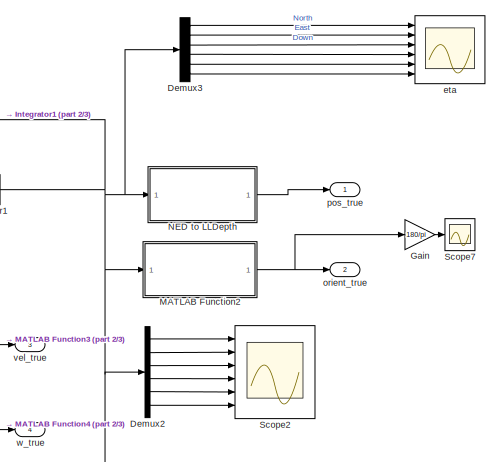
[diagram: Vehicle Model - part 1/3, top right region]
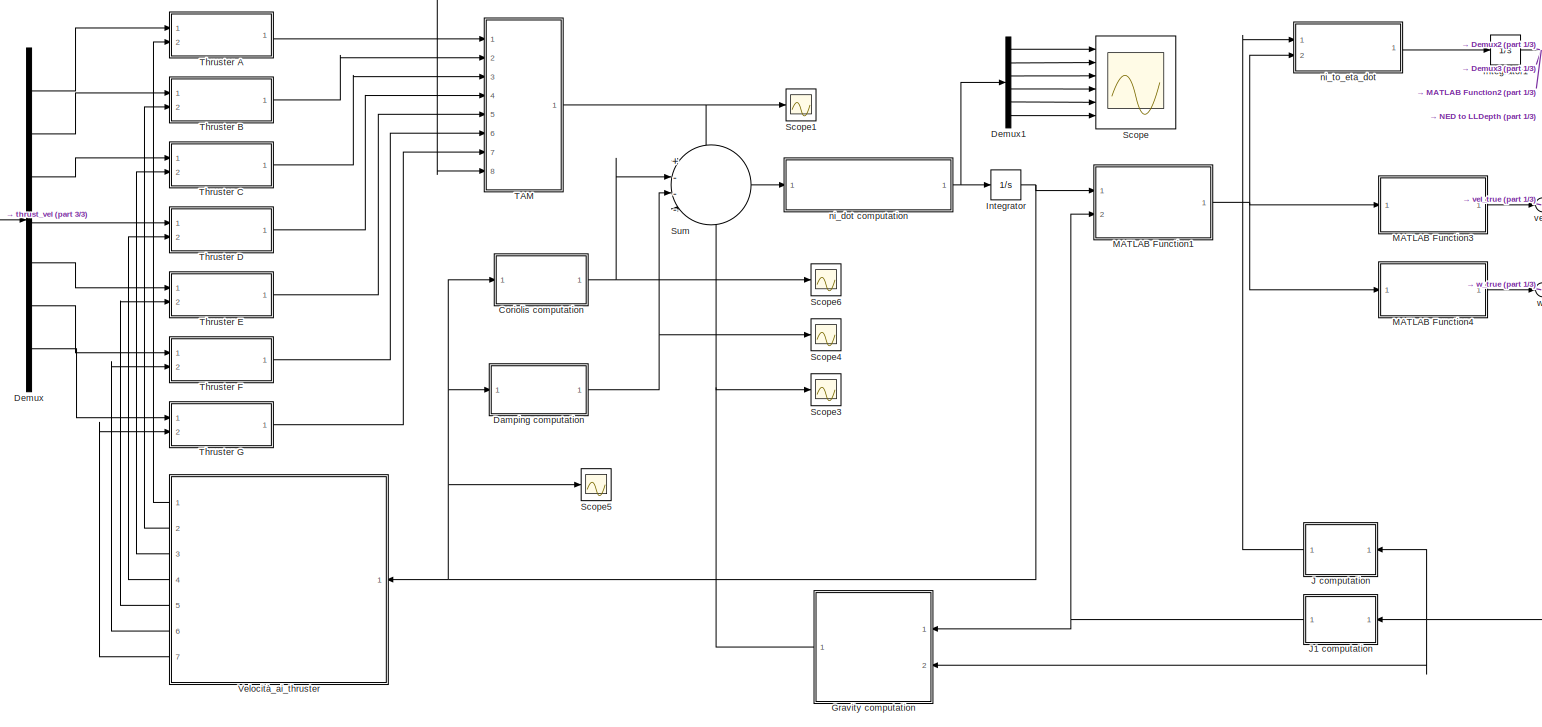
[diagram: Vehicle Model - part 2/3, center side, full height]
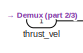
[diagram: Vehicle Model - part 3/3, middle left region]
BLOCK [SubSystem] Vehicle Model
  Ports = [1, 4]
  RequestExecContextInheritance = off
BLOCK [SubSystem] Vehicle Model/Coriolis computation
  ErrorFcn = Stateflow.Translate.translate
  PermitHierarchicalResolution = ExplicitOnly
  Ports = [1, 1]
  RequestExecContextInheritance = off
  SFBlockType = MATLAB Function
  TreatAsAtomicUnit = on
BLOCK [Demux] Vehicle Model/Coriolis computation/ Demux 
  Outputs = 1
  Ports = [1, 1]
BLOCK [S-Function] Vehicle Model/Coriolis computation/ SFunction 
  EnableBusSupport = on
  FunctionName = sf_sfun
  Parameters = Ixx,Ixy,Ixz,Iyy,Iyz,Izz,Kadd,Madd,Nadd,Xadd,Yadd,Zadd,m
  PortCounts = [1 2]
  Ports = [1, 2]
  SFcnIsStateOwnerBlock = off
  SFunctionDeploymentMode = off
  Tag = Stateflow S-Function 11
BLOCK [Terminator] Vehicle Model/Coriolis computation/ Terminator 
BLOCK [Outport] Vehicle Model/Coriolis computation/C_effect
BLOCK [Inport] Vehicle Model/Coriolis computation/nir
BLOCK [SubSystem] Vehicle Model/Damping computation
  ErrorFcn = Stateflow.Translate.translate
  PermitHierarchicalResolution = ExplicitOnly
  Ports = [1, 1]
  RequestExecContextInheritance = off
  SFBlockType = MATLAB Function
  TreatAsAtomicUnit = on
BLOCK [Demux] Vehicle Model/Damping computation/ Demux 
  Outputs = 1
  Ports = [1, 1]
BLOCK [S-Function] Vehicle Model/Damping computation/ SFunction 
  EnableBusSupport = on
  FunctionName = sf_sfun
  Parameters = S_pitch,S_roll,S_x,S_y,S_yaw,S_z,cd_pitch,cd_roll,cd_x,cd_y,cd_yaw,cd_z,r_mx,r_my,r_mz,rho
  PortCounts = [1 2]
  Ports = [1, 2]
  SFcnIsStateOwnerBlock = off
  SFunctionDeploymentMode = off
  Tag = Stateflow S-Function 12
BLOCK [Terminator] Vehicle Model/Damping computation/ Terminator 
BLOCK [Outport] Vehicle Model/Damping computation/D_effect
BLOCK [Inport] Vehicle Model/Damping computation/nir
BLOCK [Demux] Vehicle Model/Demux
  Outputs = 7
  Ports = [1, 7]
BLOCK [Demux] Vehicle Model/Demux1
  Outputs = 6
  Ports = [1, 6]
BLOCK [Demux] Vehicle Model/Demux2
  Outputs = 6
  Ports = [1, 6]
BLOCK [Demux] Vehicle Model/Demux3
  Outputs = 6
  Ports = [1, 6]
BLOCK [Gain] Vehicle Model/Gain
  Gain = 180/pi
BLOCK [SubSystem] Vehicle Model/Gravity computation
  ErrorFcn = Stateflow.Translate.translate
  PermitHierarchicalResolution = ExplicitOnly
  Ports = [2, 1]
  RequestExecContextInheritance = off
  SFBlockType = MATLAB Function
  TreatAsAtomicUnit = on
BLOCK [Demux] Vehicle Model/Gravity computation/ Demux 
  Outputs = 1
  Ports = [1, 1]
BLOCK [S-Function] Vehicle Model/Gravity computation/ SFunction 
  EnableBusSupport = on
  FunctionName = sf_sfun
  Parameters = Rb,Rg,V,W,g,rho
  PortCounts = [2 2]
  Ports = [2, 2]
  SFcnIsStateOwnerBlock = off
  SFunctionDeploymentMode = off
  Tag = Stateflow S-Function 13
BLOCK [Terminator] Vehicle Model/Gravity computation/ Terminator 
BLOCK [Inport] Vehicle Model/Gravity computation/J1
BLOCK [Inport] Vehicle Model/Gravity computation/eta
  Port = 2
BLOCK [Outport] Vehicle Model/Gravity computation/g_effect
BLOCK [Integrator] Vehicle Model/Integrator
  ContinuousStateAttributes = 'velocity'
  InitialCondition = init_velocity
  Ports = [1, 1]
BLOCK [Integrator] Vehicle Model/Integrator1
  ContinuousStateAttributes = 'position'
  InitialCondition = init_position
  Ports = [1, 1]
BLOCK [SubSystem] Vehicle Model/J computation
  ErrorFcn = Stateflow.Translate.translate
  PermitHierarchicalResolution = ExplicitOnly
  Ports = [1, 1]
  RequestExecContextInheritance = off
  SFBlockType = MATLAB Function
  TreatAsAtomicUnit = on
BLOCK [Demux] Vehicle Model/J computation/ Demux 
  Outputs = 1
  Ports = [1, 1]
BLOCK [S-Function] Vehicle Model/J computation/ SFunction 
  EnableBusSupport = on
  FunctionName = sf_sfun
  PortCounts = [1 2]
  Ports = [1, 2]
  SFcnIsStateOwnerBlock = off
  SFunctionDeploymentMode = off
  Tag = Stateflow S-Function 17
BLOCK [Terminator] Vehicle Model/J computation/ Terminator 
BLOCK [Outport] Vehicle Model/J computation/J
BLOCK [Inport] Vehicle Model/J computation/eta
BLOCK [SubSystem] Vehicle Model/J1 computation
  ErrorFcn = Stateflow.Translate.translate
  PermitHierarchicalResolution = ExplicitOnly
  Ports = [1, 1]
  RequestExecContextInheritance = off
  SFBlockType = MATLAB Function
  TreatAsAtomicUnit = on
BLOCK [Demux] Vehicle Model/J1 computation/ Demux 
  Outputs = 1
  Ports = [1, 1]
BLOCK [S-Function] Vehicle Model/J1 computation/ SFunction 
  EnableBusSupport = on
  FunctionName = sf_sfun
  PortCounts = [1 2]
  Ports = [1, 2]
  SFcnIsStateOwnerBlock = off
  SFunctionDeploymentMode = off
  Tag = Stateflow S-Function 23
BLOCK [Terminator] Vehicle Model/J1 computation/ Terminator 
BLOCK [Outport] Vehicle Model/J1 computation/J1
BLOCK [Inport] Vehicle Model/J1 computation/eta
BLOCK [SubSystem] Vehicle Model/MATLAB Function1
  ErrorFcn = Stateflow.Translate.translate
  PermitHierarchicalResolution = ExplicitOnly
  Ports = [2, 1]
  RequestExecContextInheritance = off
  SFBlockType = MATLAB Function
  TreatAsAtomicUnit = on
BLOCK [Demux] Vehicle Model/MATLAB Function1/ Demux 
  Outputs = 1
  Ports = [1, 1]
BLOCK [S-Function] Vehicle Model/MATLAB Function1/ SFunction 
  EnableBusSupport = on
  FunctionName = sf_sfun
  Parameters = current_speed
  PortCounts = [2 2]
  Ports = [2, 2]
  SFcnIsStateOwnerBlock = off
  SFunctionDeploymentMode = off
  Tag = Stateflow S-Function 16
BLOCK [Terminator] Vehicle Model/MATLAB Function1/ Terminator 
BLOCK [Inport] Vehicle Model/MATLAB Function1/J1
  Port = 2
BLOCK [Outport] Vehicle Model/MATLAB Function1/ni_abs
BLOCK [Inport] Vehicle Model/MATLAB Function1/nir
BLOCK [SubSystem] Vehicle Model/MATLAB Function2
  ErrorFcn = Stateflow.Translate.translate
  PermitHierarchicalResolution = ExplicitOnly
  Ports = [1, 1]
  RequestExecContextInheritance = off
  SFBlockType = MATLAB Function
  TreatAsAtomicUnit = on
BLOCK [Demux] Vehicle Model/MATLAB Function2/ Demux 
  Outputs = 1
  Ports = [1, 1]
BLOCK [S-Function] Vehicle Model/MATLAB Function2/ SFunction 
  EnableBusSupport = on
  FunctionName = sf_sfun
  PortCounts = [1 2]
  Ports = [1, 2]
  SFcnIsStateOwnerBlock = off
  SFunctionDeploymentMode = off
  Tag = Stateflow S-Function 18
BLOCK [Terminator] Vehicle Model/MATLAB Function2/ Terminator 
BLOCK [Inport] Vehicle Model/MATLAB Function2/eta
BLOCK [Outport] Vehicle Model/MATLAB Function2/orient_true
BLOCK [SubSystem] Vehicle Model/MATLAB Function3
  ErrorFcn = Stateflow.Translate.translate
  PermitHierarchicalResolution = ExplicitOnly
  Ports = [1, 1]
  RequestExecContextInheritance = off
  SFBlockType = MATLAB Function
  TreatAsAtomicUnit = on
BLOCK [Demux] Vehicle Model/MATLAB Function3/ Demux 
  Outputs = 1
  Ports = [1, 1]
BLOCK [S-Function] Vehicle Model/MATLAB Function3/ SFunction 
  EnableBusSupport = on
  FunctionName = sf_sfun
  PortCounts = [1 2]
  Ports = [1, 2]
  SFcnIsStateOwnerBlock = off
  SFunctionDeploymentMode = off
  Tag = Stateflow S-Function 19
BLOCK [Terminator] Vehicle Model/MATLAB Function3/ Terminator 
BLOCK [Inport] Vehicle Model/MATLAB Function3/ni_abs
BLOCK [Outport] Vehicle Model/MATLAB Function3/vel_true
BLOCK [SubSystem] Vehicle Model/MATLAB Function4
  ErrorFcn = Stateflow.Translate.translate
  PermitHierarchicalResolution = ExplicitOnly
  Ports = [1, 1]
  RequestExecContextInheritance = off
  SFBlockType = MATLAB Function
  TreatAsAtomicUnit = on
BLOCK [Demux] Vehicle Model/MATLAB Function4/ Demux 
  Outputs = 1
  Ports = [1, 1]
BLOCK [S-Function] Vehicle Model/MATLAB Function4/ SFunction 
  EnableBusSupport = on
  FunctionName = sf_sfun
  PortCounts = [1 2]
  Ports = [1, 2]
  SFcnIsStateOwnerBlock = off
  SFunctionDeploymentMode = off
  Tag = Stateflow S-Function 20
BLOCK [Terminator] Vehicle Model/MATLAB Function4/ Terminator 
BLOCK [Inport] Vehicle Model/MATLAB Function4/ni_abs
BLOCK [Outport] Vehicle Model/MATLAB Function4/w_true
BLOCK [SubSystem] Vehicle Model/NED to LLDepth
  ErrorFcn = Stateflow.Translate.translate
  PermitHierarchicalResolution = ExplicitOnly
  Ports = [1, 1]
  RequestExecContextInheritance = off
  SFBlockType = MATLAB Function
  TreatAsAtomicUnit = on
BLOCK [Demux] Vehicle Model/NED to LLDepth/ Demux 
  Outputs = 1
  Ports = [1, 1]
BLOCK [S-Function] Vehicle Model/NED to LLDepth/ SFunction 
  EnableBusSupport = on
  FunctionName = sf_sfun
  Parameters = H0,areaOfInterestCorner
  PortCounts = [1 2]
  Ports = [1, 2]
  SFcnIsStateOwnerBlock = off
  SFunctionDeploymentMode = off
  Tag = Stateflow S-Function 10
BLOCK [Terminator] Vehicle Model/NED to LLDepth/ Terminator 
BLOCK [Inport] Vehicle Model/NED to LLDepth/eta
BLOCK [Outport] Vehicle Model/NED to LLDepth/pos_true
BLOCK [Scope] Vehicle Model/Scope
  Floating = off
  NumInputPorts = 6
  Ports = [6]
  ScopeSpecificationString = Simulink.scopes.TimeScopeBlockCfg('CurrentConfiguration', extmgr.ConfigurationSet(extmgr.Configuration('Core','General UI',true),extmgr.Configuration('Core','Source UI',true),extmgr.Configuration('Sources','WiredSimulink',true,'DataLoggingVariableName','ScopeData1'),extmgr.Configuration('Visuals','Time Domain',true,'SerializedDisplays',{struct('MinYLimReal','-1','MaxYLimReal','1','YLabelReal','','...<+4898ch>
BLOCK [Scope] Vehicle Model/Scope1
  Floating = off
  NumInputPorts = 1
  Ports = [1]
  ScopeSpecificationString = Simulink.scopes.TimeScopeBlockCfg('CurrentConfiguration', extmgr.ConfigurationSet(extmgr.Configuration('Core','General UI',true),extmgr.Configuration('Core','Source UI',true),extmgr.Configuration('Sources','WiredSimulink',true,'DataLoggingVariableName','ScopeData2'),extmgr.Configuration('Visuals','Time Domain',true,'SerializedDisplays',{struct('MinYLimReal','-94.88165','MaxYLimReal','110.26873','Y...<+1414ch>
BLOCK [Scope] Vehicle Model/Scope2
  Floating = off
  NumInputPorts = 6
  Ports = [6]
  ScopeSpecificationString = Simulink.scopes.TimeScopeBlockCfg('CurrentConfiguration', extmgr.ConfigurationSet(extmgr.Configuration('Core','General UI',true),extmgr.Configuration('Core','Source UI',true),extmgr.Configuration('Sources','WiredSimulink',true,'DataLoggingVariableName','ScopeData1'),extmgr.Configuration('Visuals','Time Domain',true,'SerializedDisplays',{struct('MinYLimReal','-1000','MaxYLimReal','2500','YLabelReal...<+4904ch>
BLOCK [Scope] Vehicle Model/Scope3
  Floating = off
  NumInputPorts = 1
  Ports = [1]
  ScopeSpecificationString = Simulink.scopes.TimeScopeBlockCfg('CurrentConfiguration', extmgr.ConfigurationSet(extmgr.Configuration('Core','General UI',true),extmgr.Configuration('Core','Source UI',true),extmgr.Configuration('Sources','WiredSimulink',true,'DataLoggingVariableName','ScopeData2'),extmgr.Configuration('Visuals','Time Domain',true,'SerializedDisplays',{struct('MinYLimReal','-132.00979','MaxYLimReal','450','YLabel...<+1656ch>
BLOCK [Scope] Vehicle Model/Scope4
  Floating = off
  NumInputPorts = 1
  Ports = [1]
  ScopeSpecificationString = Simulink.scopes.TimeScopeBlockCfg('CurrentConfiguration', extmgr.ConfigurationSet(extmgr.Configuration('Core','General UI',true),extmgr.Configuration('Core','Source UI',true),extmgr.Configuration('Sources','WiredSimulink',true,'DataLoggingVariableName','ScopeData1'),extmgr.Configuration('Visuals','Time Domain',true,'SerializedDisplays',{struct('MinYLimReal','-8.25208','MaxYLimReal','74.2687','YLab...<+1635ch>
BLOCK [Scope] Vehicle Model/Scope5
  Floating = off
  NumInputPorts = 1
  Ports = [1]
  ScopeSpecificationString = Simulink.scopes.TimeScopeBlockCfg('CurrentConfiguration', extmgr.ConfigurationSet(extmgr.Configuration('Core','General UI',true),extmgr.Configuration('Core','Source UI',true),extmgr.Configuration('Sources','WiredSimulink',true,'DataLoggingVariableName','ScopeData2'),extmgr.Configuration('Visuals','Time Domain',true,'SerializedDisplays',{struct('MinYLimReal','-0.06253','MaxYLimReal','0.55949','YLab...<+1501ch>
BLOCK [Scope] Vehicle Model/Scope6
  Floating = off
  NumInputPorts = 1
  Ports = [1]
  ScopeSpecificationString = Simulink.scopes.TimeScopeBlockCfg('CurrentConfiguration', extmgr.ConfigurationSet(extmgr.Configuration('Core','General UI',true),extmgr.Configuration('Core','Source UI',true),extmgr.Configuration('Sources','WiredSimulink',true,'DataLoggingVariableName','ScopeData3'),extmgr.Configuration('Visuals','Time Domain',true,'SerializedDisplays',{struct('MinYLimReal','-3.22541','MaxYLimReal','3.10347','YLab...<+1561ch>
BLOCK [Scope] Vehicle Model/Scope7
  Floating = off
  NumInputPorts = 1
  Ports = [1]
  ScopeSpecificationString = Simulink.scopes.TimeScopeBlockCfg('CurrentConfiguration', extmgr.ConfigurationSet(extmgr.Configuration('Core','General UI',true),extmgr.Configuration('Core','Source UI',true),extmgr.Configuration('Sources','WiredSimulink',true,'DataLoggingVariableName','ScopeData1'),extmgr.Configuration('Visuals','Time Domain',true,'SerializedDisplays',{struct('MinYLimReal','-25.23517','MaxYLimReal','227.11655','Y...<+1689ch>
BLOCK [Sum] Vehicle Model/Sum
  Inputs = +---
  Ports = [4, 1]
BLOCK [SubSystem] Vehicle Model/TAM
  ErrorFcn = Stateflow.Translate.translate
  PermitHierarchicalResolution = ExplicitOnly
  Ports = [8, 1]
  RequestExecContextInheritance = off
  SFBlockType = MATLAB Function
BLOCK [Demux] Vehicle Model/TAM/ Demux 
  Outputs = 1
  Ports = [1, 1]
BLOCK [S-Function] Vehicle Model/TAM/ SFunction 
  EnableBusSupport = on
  FunctionName = sf_sfun
  Parameters = TAM
  PortCounts = [8 2]
  Ports = [8, 2]
  SFcnIsStateOwnerBlock = off
  SFunctionDeploymentMode = off
  Tag = Stateflow S-Function 8
BLOCK [Terminator] Vehicle Model/TAM/ Terminator 
BLOCK [Inport] Vehicle Model/TAM/Ta
BLOCK [Inport] Vehicle Model/TAM/Tb
  Port = 2
BLOCK [Inport] Vehicle Model/TAM/Tc
  Port = 3
BLOCK [Inport] Vehicle Model/TAM/Td
  Port = 4
BLOCK [Inport] Vehicle Model/TAM/Te
  Port = 5
BLOCK [Inport] Vehicle Model/TAM/Tf
  Port = 6
BLOCK [Inport] Vehicle Model/TAM/Tg
  Port = 7
BLOCK [Inport] Vehicle Model/TAM/eta
  Port = 8
BLOCK [Outport] Vehicle Model/TAM/tau
BLOCK [SubSystem] Vehicle Model/Thruster A
  Ports = [2, 1]
  RequestExecContextInheritance = off
BLOCK [DeadZone] Vehicle Model/Thruster A/Dead Zone
  LowerValue = -dead_zone_limit
  UpperValue = dead_zone_limit
BLOCK [SubSystem] Vehicle Model/Thruster A/MATLAB Function
  ErrorFcn = Stateflow.Translate.translate
  PermitHierarchicalResolution = ExplicitOnly
  Ports = [2, 1]
  RequestExecContextInheritance = off
  SFBlockType = MATLAB Function
  TreatAsAtomicUnit = on
BLOCK [Demux] Vehicle Model/Thruster A/MATLAB Function/ Demux 
  Outputs = 1
  Ports = [1, 1]
BLOCK [S-Function] Vehicle Model/Thruster A/MATLAB Function/ SFunction 
  EnableBusSupport = on
  FunctionName = sf_sfun
  Parameters = D,a1,a2,alpha1,alpha2,omega
  PortCounts = [2 2]
  Ports = [2, 2]
  SFcnIsStateOwnerBlock = off
  SFunctionDeploymentMode = off
  Tag = Stateflow S-Function 5
BLOCK [Terminator] Vehicle Model/Thruster A/MATLAB Function/ Terminator 
BLOCK [Outport] Vehicle Model/Thruster A/MATLAB Function/T
BLOCK [Inport] Vehicle Model/Thruster A/MATLAB Function/V
  Port = 2
BLOCK [Inport] Vehicle Model/Thruster A/MATLAB Function/n
BLOCK [Saturate] Vehicle Model/Thruster A/Saturation
  LowerLimit = -n_max
  UpperLimit = n_max
BLOCK [Outport] Vehicle Model/Thruster A/T i
BLOCK [TransferFcn] Vehicle Model/Thruster A/Transfer Fcn
  Denominator = [0.2 1]
BLOCK [Inport] Vehicle Model/Thruster A/V [m//s]
  Port = 2
BLOCK [Inport] Vehicle Model/Thruster A/n [rad//s]
BLOCK [SubSystem] Vehicle Model/Thruster B
  Ports = [2, 1]
  RequestExecContextInheritance = off
BLOCK [DeadZone] Vehicle Model/Thruster B/Dead Zone
  LowerValue = -dead_zone_limit
  UpperValue = dead_zone_limit
BLOCK [SubSystem] Vehicle Model/Thruster B/MATLAB Function
  ErrorFcn = Stateflow.Translate.translate
  PermitHierarchicalResolution = ExplicitOnly
  Ports = [2, 1]
  RequestExecContextInheritance = off
  SFBlockType = MATLAB Function
  TreatAsAtomicUnit = on
BLOCK [Demux] Vehicle Model/Thruster B/MATLAB Function/ Demux 
  Outputs = 1
  Ports = [1, 1]
BLOCK [S-Function] Vehicle Model/Thruster B/MATLAB Function/ SFunction 
  EnableBusSupport = on
  FunctionName = sf_sfun
  Parameters = D,a1,a2,alpha1,alpha2,omega
  PortCounts = [2 2]
  Ports = [2, 2]
  SFcnIsStateOwnerBlock = off
  SFunctionDeploymentMode = off
  Tag = Stateflow S-Function 6
BLOCK [Terminator] Vehicle Model/Thruster B/MATLAB Function/ Terminator 
BLOCK [Outport] Vehicle Model/Thruster B/MATLAB Function/T
BLOCK [Inport] Vehicle Model/Thruster B/MATLAB Function/V
  Port = 2
BLOCK [Inport] Vehicle Model/Thruster B/MATLAB Function/n
BLOCK [Saturate] Vehicle Model/Thruster B/Saturation
  LowerLimit = -n_max
  UpperLimit = n_max
BLOCK [Outport] Vehicle Model/Thruster B/T i
BLOCK [TransferFcn] Vehicle Model/Thruster B/Transfer Fcn
  Denominator = [0.2 1]
BLOCK [Inport] Vehicle Model/Thruster B/V [m//s]
  Port = 2
BLOCK [Inport] Vehicle Model/Thruster B/n [rad//s]
BLOCK [SubSystem] Vehicle Model/Thruster C
  Ports = [2, 1]
  RequestExecContextInheritance = off
BLOCK [DeadZone] Vehicle Model/Thruster C/Dead Zone
  LowerValue = -dead_zone_limit
  UpperValue = dead_zone_limit
BLOCK [SubSystem] Vehicle Model/Thruster C/MATLAB Function
  ErrorFcn = Stateflow.Translate.translate
  PermitHierarchicalResolution = ExplicitOnly
  Ports = [2, 1]
  RequestExecContextInheritance = off
  SFBlockType = MATLAB Function
  TreatAsAtomicUnit = on
BLOCK [Demux] Vehicle Model/Thruster C/MATLAB Function/ Demux 
  Outputs = 1
  Ports = [1, 1]
BLOCK [S-Function] Vehicle Model/Thruster C/MATLAB Function/ SFunction 
  EnableBusSupport = on
  FunctionName = sf_sfun
  Parameters = D,a1,a2,alpha1,alpha2,omega
  PortCounts = [2 2]
  Ports = [2, 2]
  SFcnIsStateOwnerBlock = off
  SFunctionDeploymentMode = off
  Tag = Stateflow S-Function 7
BLOCK [Terminator] Vehicle Model/Thruster C/MATLAB Function/ Terminator 
BLOCK [Outport] Vehicle Model/Thruster C/MATLAB Function/T
BLOCK [Inport] Vehicle Model/Thruster C/MATLAB Function/V
  Port = 2
BLOCK [Inport] Vehicle Model/Thruster C/MATLAB Function/n
BLOCK [Saturate] Vehicle Model/Thruster C/Saturation
  LowerLimit = -n_max
  UpperLimit = n_max
BLOCK [Outport] Vehicle Model/Thruster C/T i
BLOCK [TransferFcn] Vehicle Model/Thruster C/Transfer Fcn
  Denominator = [0.2 1]
BLOCK [Inport] Vehicle Model/Thruster C/V [m//s]
  Port = 2
BLOCK [Inport] Vehicle Model/Thruster C/n [rad//s]
BLOCK [SubSystem] Vehicle Model/Thruster D
  Ports = [2, 1]
  RequestExecContextInheritance = off
BLOCK [DeadZone] Vehicle Model/Thruster D/Dead Zone
  LowerValue = -dead_zone_limit
  UpperValue = dead_zone_limit
BLOCK [SubSystem] Vehicle Model/Thruster D/MATLAB Function
  ErrorFcn = Stateflow.Translate.translate
  PermitHierarchicalResolution = ExplicitOnly
  Ports = [2, 1]
  RequestExecContextInheritance = off
  SFBlockType = MATLAB Function
  TreatAsAtomicUnit = on
BLOCK [Demux] Vehicle Model/Thruster D/MATLAB Function/ Demux 
  Outputs = 1
  Ports = [1, 1]
BLOCK [S-Function] Vehicle Model/Thruster D/MATLAB Function/ SFunction 
  EnableBusSupport = on
  FunctionName = sf_sfun
  Parameters = D,a1,a2,alpha1,alpha2,omega
  PortCounts = [2 2]
  Ports = [2, 2]
  SFcnIsStateOwnerBlock = off
  SFunctionDeploymentMode = off
  Tag = Stateflow S-Function 9
BLOCK [Terminator] Vehicle Model/Thruster D/MATLAB Function/ Terminator 
BLOCK [Outport] Vehicle Model/Thruster D/MATLAB Function/T
BLOCK [Inport] Vehicle Model/Thruster D/MATLAB Function/V
  Port = 2
BLOCK [Inport] Vehicle Model/Thruster D/MATLAB Function/n
BLOCK [Saturate] Vehicle Model/Thruster D/Saturation
  LowerLimit = -n_max
  UpperLimit = n_max
BLOCK [Outport] Vehicle Model/Thruster D/T i
BLOCK [TransferFcn] Vehicle Model/Thruster D/Transfer Fcn
  Denominator = [0.2 1]
BLOCK [Inport] Vehicle Model/Thruster D/V [m//s]
  Port = 2
BLOCK [Inport] Vehicle Model/Thruster D/n [rad//s]
BLOCK [SubSystem] Vehicle Model/Thruster E
  Ports = [2, 1]
  RequestExecContextInheritance = off
BLOCK [DeadZone] Vehicle Model/Thruster E/Dead Zone
  LowerValue = -dead_zone_limit
  UpperValue = dead_zone_limit
BLOCK [SubSystem] Vehicle Model/Thruster E/MATLAB Function
  ErrorFcn = Stateflow.Translate.translate
  PermitHierarchicalResolution = ExplicitOnly
  Ports = [2, 1]
  RequestExecContextInheritance = off
  SFBlockType = MATLAB Function
  TreatAsAtomicUnit = on
BLOCK [Demux] Vehicle Model/Thruster E/MATLAB Function/ Demux 
  Outputs = 1
  Ports = [1, 1]
BLOCK [S-Function] Vehicle Model/Thruster E/MATLAB Function/ SFunction 
  EnableBusSupport = on
  FunctionName = sf_sfun
  Parameters = D,a1,a2,alpha1,alpha2,omega
  PortCounts = [2 2]
  Ports = [2, 2]
  SFcnIsStateOwnerBlock = off
  SFunctionDeploymentMode = off
  Tag = Stateflow S-Function 14
BLOCK [Terminator] Vehicle Model/Thruster E/MATLAB Function/ Terminator 
BLOCK [Outport] Vehicle Model/Thruster E/MATLAB Function/T
BLOCK [Inport] Vehicle Model/Thruster E/MATLAB Function/V
  Port = 2
BLOCK [Inport] Vehicle Model/Thruster E/MATLAB Function/n
BLOCK [Saturate] Vehicle Model/Thruster E/Saturation
  LowerLimit = -n_max
  UpperLimit = n_max
BLOCK [Outport] Vehicle Model/Thruster E/T i
BLOCK [TransferFcn] Vehicle Model/Thruster E/Transfer Fcn
  Denominator = [0.2 1]
BLOCK [Inport] Vehicle Model/Thruster E/V [m//s]
  Port = 2
BLOCK [Inport] Vehicle Model/Thruster E/n [rad//s]
BLOCK [SubSystem] Vehicle Model/Thruster F
  Ports = [2, 1]
  RequestExecContextInheritance = off
BLOCK [DeadZone] Vehicle Model/Thruster F/Dead Zone
  LowerValue = -dead_zone_limit
  UpperValue = dead_zone_limit
BLOCK [SubSystem] Vehicle Model/Thruster F/MATLAB Function
  ErrorFcn = Stateflow.Translate.translate
  PermitHierarchicalResolution = ExplicitOnly
  Ports = [2, 1]
  RequestExecContextInheritance = off
  SFBlockType = MATLAB Function
  TreatAsAtomicUnit = on
BLOCK [Demux] Vehicle Model/Thruster F/MATLAB Function/ Demux 
  Outputs = 1
  Ports = [1, 1]
BLOCK [S-Function] Vehicle Model/Thruster F/MATLAB Function/ SFunction 
  EnableBusSupport = on
  FunctionName = sf_sfun
  Parameters = D,a1,a2,alpha1,alpha2,omega
  PortCounts = [2 2]
  Ports = [2, 2]
  SFcnIsStateOwnerBlock = off
  SFunctionDeploymentMode = off
  Tag = Stateflow S-Function 15
BLOCK [Terminator] Vehicle Model/Thruster F/MATLAB Function/ Terminator 
BLOCK [Outport] Vehicle Model/Thruster F/MATLAB Function/T
BLOCK [Inport] Vehicle Model/Thruster F/MATLAB Function/V
  Port = 2
BLOCK [Inport] Vehicle Model/Thruster F/MATLAB Function/n
BLOCK [Saturate] Vehicle Model/Thruster F/Saturation
  LowerLimit = -n_max
  UpperLimit = n_max
BLOCK [Outport] Vehicle Model/Thruster F/T i
BLOCK [TransferFcn] Vehicle Model/Thruster F/Transfer Fcn
  Denominator = [0.2 1]
BLOCK [Inport] Vehicle Model/Thruster F/V [m//s]
  Port = 2
BLOCK [Inport] Vehicle Model/Thruster F/n [rad//s]
BLOCK [SubSystem] Vehicle Model/Thruster G
  Ports = [2, 1]
  RequestExecContextInheritance = off
BLOCK [DeadZone] Vehicle Model/Thruster G/Dead Zone
  LowerValue = -dead_zone_limit
  UpperValue = dead_zone_limit
BLOCK [SubSystem] Vehicle Model/Thruster G/MATLAB Function
  ErrorFcn = Stateflow.Translate.translate
  PermitHierarchicalResolution = ExplicitOnly
  Ports = [2, 1]
  RequestExecContextInheritance = off
  SFBlockType = MATLAB Function
  TreatAsAtomicUnit = on
BLOCK [Demux] Vehicle Model/Thruster G/MATLAB Function/ Demux 
  Outputs = 1
  Ports = [1, 1]
BLOCK [S-Function] Vehicle Model/Thruster G/MATLAB Function/ SFunction 
  EnableBusSupport = on
  FunctionName = sf_sfun
  Parameters = D,a1,a2,alpha1,alpha2,omega
  PortCounts = [2 2]
  Ports = [2, 2]
  SFcnIsStateOwnerBlock = off
  SFunctionDeploymentMode = off
  Tag = Stateflow S-Function 21
BLOCK [Terminator] Vehicle Model/Thruster G/MATLAB Function/ Terminator 
BLOCK [Outport] Vehicle Model/Thruster G/MATLAB Function/T
BLOCK [Inport] Vehicle Model/Thruster G/MATLAB Function/V
  Port = 2
BLOCK [Inport] Vehicle Model/Thruster G/MATLAB Function/n
BLOCK [Saturate] Vehicle Model/Thruster G/Saturation
  LowerLimit = -n_max
  UpperLimit = n_max
BLOCK [Outport] Vehicle Model/Thruster G/T i
BLOCK [TransferFcn] Vehicle Model/Thruster G/Transfer Fcn
  Denominator = [0.2 1]
BLOCK [Inport] Vehicle Model/Thruster G/V [m//s]
  Port = 2
BLOCK [Inport] Vehicle Model/Thruster G/n [rad//s]
BLOCK [SubSystem] Vehicle Model/Velocità_ai_thruster
  ErrorFcn = Stateflow.Translate.translate
  PermitHierarchicalResolution = ExplicitOnly
  Ports = [1, 7]
  RequestExecContextInheritance = off
  SFBlockType = MATLAB Function
  TreatAsAtomicUnit = on
BLOCK [Demux] Vehicle Model/Velocità_ai_thruster/ Demux 
  Outputs = 1
  Ports = [1, 1]
BLOCK [S-Function] Vehicle Model/Velocità_ai_thruster/ SFunction 
  EnableBusSupport = on
  FunctionName = sf_sfun
  Parameters = ag,bg,cg,dg,eg,fg,gg,orA,orB,orC,orD,orE,orF,orG
  PortCounts = [1 8]
  Ports = [1, 8]
  SFcnIsStateOwnerBlock = off
  SFunctionDeploymentMode = off
  Tag = Stateflow S-Function 22
BLOCK [Terminator] Vehicle Model/Velocità_ai_thruster/ Terminator 
BLOCK [Outport] Vehicle Model/Velocità_ai_thruster/Va_rel
BLOCK [Outport] Vehicle Model/Velocità_ai_thruster/Vb_rel
  Port = 2
BLOCK [Outport] Vehicle Model/Velocità_ai_thruster/Vc_rel
  Port = 3
BLOCK [Outport] Vehicle Model/Velocità_ai_thruster/Vd_rel
  Port = 4
BLOCK [Outport] Vehicle Model/Velocità_ai_thruster/Ve_rel
  Port = 5
BLOCK [Outport] Vehicle Model/Velocità_ai_thruster/Vf_rel
  Port = 6
BLOCK [Outport] Vehicle Model/Velocità_ai_thruster/Vg_rel
  Port = 7
BLOCK [Inport] Vehicle Model/Velocità_ai_thruster/nir
BLOCK [Scope] Vehicle Model/eta
  Floating = off
  NumInputPorts = 6
  Ports = [6]
  ScopeSpecificationString = Simulink.scopes.TimeScopeBlockCfg('CurrentConfiguration', extmgr.ConfigurationSet(extmgr.Configuration('Core','General UI',true),extmgr.Configuration('Core','Source UI',true),extmgr.Configuration('Sources','WiredSimulink',true,'DataLoggingVariableName','ScopeData1'),extmgr.Configuration('Visuals','Time Domain',true,'SerializedDisplays',{struct('MinYLimReal','-1.00000','MaxYLimReal','1.00000','YLab...<+1800ch>
BLOCK [SubSystem] Vehicle Model/ni_dot computation
  ErrorFcn = Stateflow.Translate.translate
  PermitHierarchicalResolution = ExplicitOnly
  Ports = [1, 1]
  RequestExecContextInheritance = off
  SFBlockType = MATLAB Function
  TreatAsAtomicUnit = on
BLOCK [Demux] Vehicle Model/ni_dot computation/ Demux 
  Outputs = 1
  Ports = [1, 1]
BLOCK [S-Function] Vehicle Model/ni_dot computation/ SFunction 
  EnableBusSupport = on
  FunctionName = sf_sfun
  Parameters = M_inv
  PortCounts = [1 2]
  Ports = [1, 2]
  SFcnIsStateOwnerBlock = off
  SFunctionDeploymentMode = off
  Tag = Stateflow S-Function 24
BLOCK [Terminator] Vehicle Model/ni_dot computation/ Terminator 
BLOCK [Inport] Vehicle Model/ni_dot computation/M_times_nir_dot
BLOCK [Outport] Vehicle Model/ni_dot computation/nir_dot
BLOCK [SubSystem] Vehicle Model/ni_to_eta_dot
  ErrorFcn = Stateflow.Translate.translate
  PermitHierarchicalResolution = ExplicitOnly
  Ports = [2, 1]
  RequestExecContextInheritance = off
  SFBlockType = MATLAB Function
  TreatAsAtomicUnit = on
BLOCK [Demux] Vehicle Model/ni_to_eta_dot/ Demux 
  Outputs = 1
  Ports = [1, 1]
BLOCK [S-Function] Vehicle Model/ni_to_eta_dot/ SFunction 
  EnableBusSupport = on
  FunctionName = sf_sfun
  PortCounts = [2 2]
  Ports = [2, 2]
  SFcnIsStateOwnerBlock = off
  SFunctionDeploymentMode = off
  Tag = Stateflow S-Function 25
BLOCK [Terminator] Vehicle Model/ni_to_eta_dot/ Terminator 
BLOCK [Inport] Vehicle Model/ni_to_eta_dot/J
BLOCK [Outport] Vehicle Model/ni_to_eta_dot/eta_dot
BLOCK [Inport] Vehicle Model/ni_to_eta_dot/ni_abs
  Port = 2
BLOCK [Outport] Vehicle Model/orient_true
  Port = 2
BLOCK [Outport] Vehicle Model/pos_true
BLOCK [Inport] Vehicle Model/thrust_vel
BLOCK [Outport] Vehicle Model/vel_true
  Port = 3
BLOCK [Outport] Vehicle Model/w_true
  Port = 4
BLOCK [ToWorkspace] bearout3
  FixptAsFi = on
  MaxDataPoints = inf
  Ports = [1]
  SampleTime = -1
  Save2DSignal = 2-D array (concatenate along first dimension)
  SaveFormat = Structure With Time
  VariableName = USBL
BLOCK [ToWorkspace] bearout4
  FixptAsFi = on
  MaxDataPoints = inf
  Ports = [1]
  SampleTime = -1
  Save2DSignal = 2-D array (concatenate along first dimension)
  SaveFormat = Structure With Time
  VariableName = pos_true
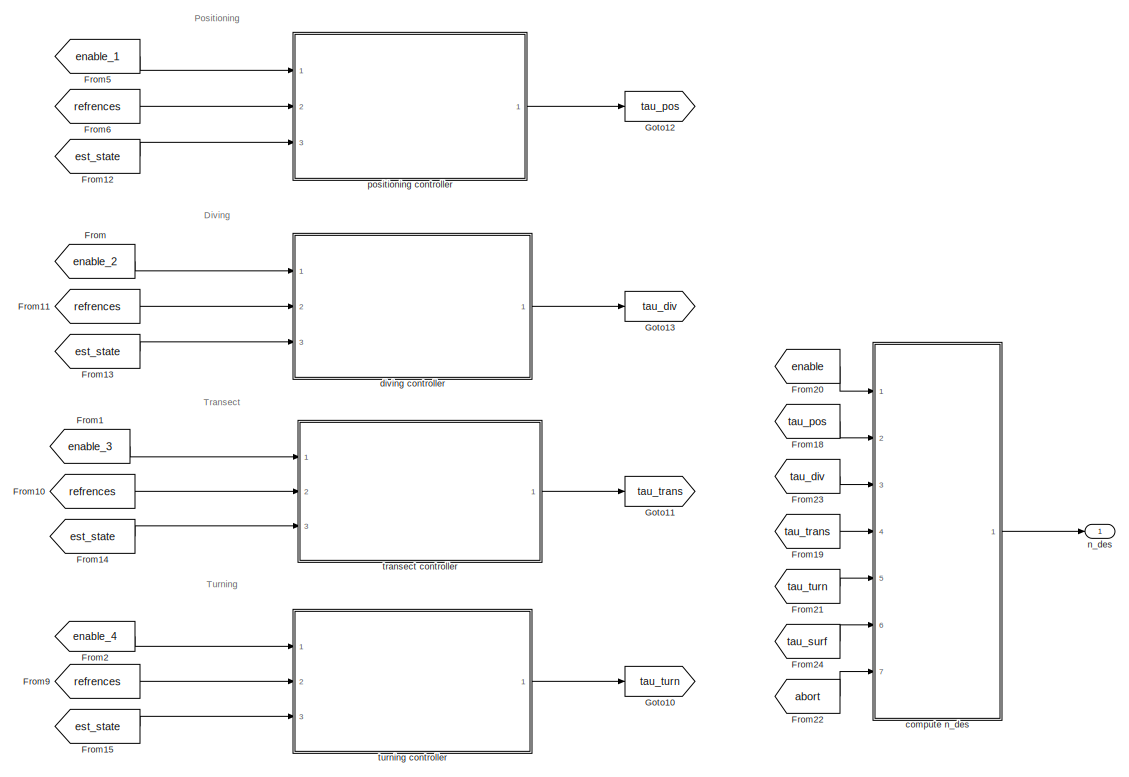
[diagram: controller1 - part 1/3, middle right region]
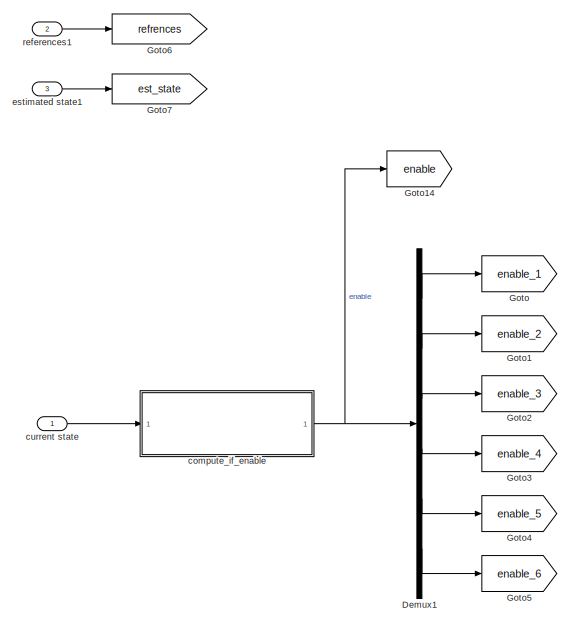
[diagram: controller1 - part 2/3, top left region]
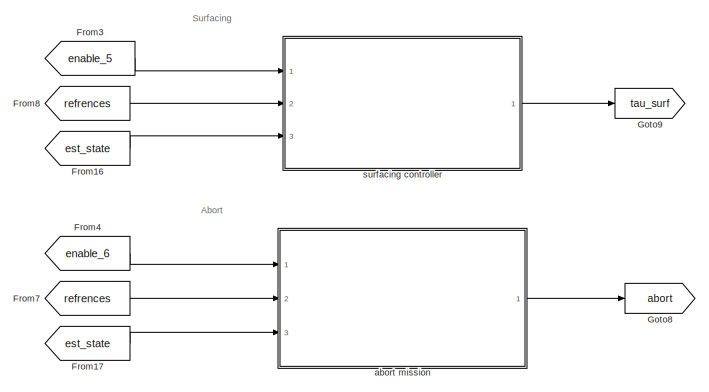
[diagram: controller1 - part 3/3, bottom center region]
BLOCK [SubSystem] controller1
  Ports = [3, 1]
  RequestExecContextInheritance = off
BLOCK [Demux] controller1/Demux1
  Outputs = 6
  Ports = [1, 6]
BLOCK [From] controller1/From
  GotoTag = enable_2
BLOCK [From] controller1/From1
  GotoTag = enable_3
BLOCK [From] controller1/From10
  GotoTag = refrences
BLOCK [From] controller1/From11
  GotoTag = refrences
BLOCK [From] controller1/From12
  GotoTag = est_state
BLOCK [From] controller1/From13
  GotoTag = est_state
BLOCK [From] controller1/From14
  GotoTag = est_state
BLOCK [From] controller1/From15
  GotoTag = est_state
BLOCK [From] controller1/From16
  GotoTag = est_state
BLOCK [From] controller1/From17
  GotoTag = est_state
BLOCK [From] controller1/From18
  GotoTag = tau_pos
BLOCK [From] controller1/From19
  GotoTag = tau_trans
BLOCK [From] controller1/From2
  GotoTag = enable_4
BLOCK [From] controller1/From20
  GotoTag = enable
BLOCK [From] controller1/From21
  GotoTag = tau_turn
BLOCK [From] controller1/From22
  GotoTag = abort
BLOCK [From] controller1/From23
  GotoTag = tau_div
BLOCK [From] controller1/From24
  GotoTag = tau_surf
BLOCK [From] controller1/From3
  GotoTag = enable_5
BLOCK [From] controller1/From4
  GotoTag = enable_6
BLOCK [From] controller1/From5
  GotoTag = enable_1
BLOCK [From] controller1/From6
  GotoTag = refrences
BLOCK [From] controller1/From7
  GotoTag = refrences
BLOCK [From] controller1/From8
  GotoTag = refrences
BLOCK [From] controller1/From9
  GotoTag = refrences
BLOCK [Goto] controller1/Goto
  GotoTag = enable_1
BLOCK [Goto] controller1/Goto1
  GotoTag = enable_2
BLOCK [Goto] controller1/Goto10
  GotoTag = tau_turn
BLOCK [Goto] controller1/Goto11
  GotoTag = tau_trans
BLOCK [Goto] controller1/Goto12
  GotoTag = tau_pos
BLOCK [Goto] controller1/Goto13
  GotoTag = tau_div
BLOCK [Goto] controller1/Goto14
  GotoTag = enable
BLOCK [Goto] controller1/Goto2
  GotoTag = enable_3
BLOCK [Goto] controller1/Goto3
  GotoTag = enable_4
BLOCK [Goto] controller1/Goto4
  GotoTag = enable_5
BLOCK [Goto] controller1/Goto5
  GotoTag = enable_6
BLOCK [Goto] controller1/Goto6
  GotoTag = refrences
BLOCK [Goto] controller1/Goto7
  GotoTag = est_state
BLOCK [Goto] controller1/Goto8
  GotoTag = abort
BLOCK [Goto] controller1/Goto9
  GotoTag = tau_surf
BLOCK [SubSystem] controller1/abort mission
  Ports = [3, 1]
  RequestExecContextInheritance = off
BLOCK [Outport] controller1/abort mission/abort
BLOCK [SubSystem] controller1/abort mission/abort mission
  ErrorFcn = Stateflow.Translate.translate
  PermitHierarchicalResolution = ExplicitOnly
  Ports = [3, 1]
  RequestExecContextInheritance = off
  SFBlockType = MATLAB Function
  TreatAsAtomicUnit = on
BLOCK [Demux] controller1/abort mission/abort mission/ Demux 
  Outputs = 1
  Ports = [1, 1]
BLOCK [S-Function] controller1/abort mission/abort mission/ SFunction 
  EnableBusSupport = on
  FunctionName = sf_sfun
  PortCounts = [3 2]
  Ports = [3, 2]
  SFcnIsStateOwnerBlock = off
  SFunctionDeploymentMode = off
  Tag = Stateflow S-Function 84
BLOCK [Terminator] controller1/abort mission/abort mission/ Terminator 
BLOCK [Outport] controller1/abort mission/abort mission/abort
BLOCK [Inport] controller1/abort mission/abort mission/enable
BLOCK [Inport] controller1/abort mission/abort mission/est_meas
  Port = 3
BLOCK [Inport] controller1/abort mission/abort mission/ref
  Port = 2
BLOCK [Inport] controller1/abort mission/enable
BLOCK [Inport] controller1/abort mission/est_state
  Port = 3
BLOCK [Inport] controller1/abort mission/references
  Port = 2
BLOCK [SubSystem] controller1/compute n_des
  ErrorFcn = Stateflow.Translate.translate
  PermitHierarchicalResolution = ExplicitOnly
  Ports = [7, 1]
  RequestExecContextInheritance = off
  SFBlockType = MATLAB Function
  TreatAsAtomicUnit = on
BLOCK [Demux] controller1/compute n_des/ Demux 
  Outputs = 1
  Ports = [1, 1]
BLOCK [S-Function] controller1/compute n_des/ SFunction 
  EnableBusSupport = on
  FunctionName = sf_sfun
  PortCounts = [7 2]
  Ports = [7, 2]
  SFcnIsStateOwnerBlock = off
  SFunctionDeploymentMode = off
  Tag = Stateflow S-Function 85
BLOCK [Terminator] controller1/compute n_des/ Terminator 
BLOCK [Inport] controller1/compute n_des/abort
  Port = 7
BLOCK [Inport] controller1/compute n_des/enable
BLOCK [Outport] controller1/compute n_des/n_des
BLOCK [Inport] controller1/compute n_des/tau_div
  Port = 3
BLOCK [Inport] controller1/compute n_des/tau_pos
  Port = 2
BLOCK [Inport] controller1/compute n_des/tau_surf
  Port = 6
BLOCK [Inport] controller1/compute n_des/tau_trans
  Port = 4
BLOCK [Inport] controller1/compute n_des/tau_turn
  Port = 5
BLOCK [SubSystem] controller1/compute_if_enable
  ErrorFcn = Stateflow.Translate.translate
  PermitHierarchicalResolution = ExplicitOnly
  Ports = [1, 1]
  RequestExecContextInheritance = off
  SFBlockType = MATLAB Function
  TreatAsAtomicUnit = on
BLOCK [Demux] controller1/compute_if_enable/ Demux 
  Outputs = 1
  Ports = [1, 1]
BLOCK [S-Function] controller1/compute_if_enable/ SFunction 
  EnableBusSupport = on
  FunctionName = sf_sfun
  PortCounts = [1 2]
  Ports = [1, 2]
  SFcnIsStateOwnerBlock = off
  SFunctionDeploymentMode = off
  Tag = Stateflow S-Function 87
BLOCK [Terminator] controller1/compute_if_enable/ Terminator 
BLOCK [Inport] controller1/compute_if_enable/current_state
BLOCK [Outport] controller1/compute_if_enable/enable
BLOCK [Inport] controller1/current state
BLOCK [SubSystem] controller1/diving controller
  Ports = [3, 1]
  RequestExecContextInheritance = off
BLOCK [Mux] controller1/diving controller/Mux
  DisplayOption = bar
  Inputs = 6
  Ports = [6, 1]
BLOCK [Inport] controller1/diving controller/enable
BLOCK [Inport] controller1/diving controller/est_state
  Port = 3
BLOCK [SubSystem] controller1/diving controller/heave_controller
  Ports = [3, 1]
  RequestExecContextInheritance = off
BLOCK [SubSystem] controller1/diving controller/heave_controller/Heave PID controller
  Ports = [3, 1]
  RequestExecContextInheritance = off
BLOCK [Constant] controller1/diving controller/heave_controller/Heave PID controller/Constant
  Value = galleggiamento
BLOCK [Constant] controller1/diving controller/heave_controller/Heave PID controller/Constant1
BLOCK [Constant] controller1/diving controller/heave_controller/Heave PID controller/Constant2
  Value = 0
BLOCK [DiscreteIntegrator] controller1/diving controller/heave_controller/Heave PID controller/Discrete-Time Integrator
  ExternalReset = falling
  ICPrevOutput = DiscIntNeverNeededParam
  ICPrevScaledInput = DiscIntNeverNeededParam
  InitialConditionSetting = Auto
  InitialConditionSource = external
  Ports = [3, 1]
  SampleTime = 0.1
BLOCK [Gain] controller1/diving controller/heave_controller/Heave PID controller/K_i_heave_div
  Gain = K_i_heave_div
BLOCK [Gain] controller1/diving controller/heave_controller/Heave PID controller/K_p_heave_div
  Gain = K_p_heave_div
BLOCK [Gain] controller1/diving controller/heave_controller/Heave PID controller/K_p_z_div
  Gain = K_p_z_div
BLOCK [Sum] controller1/diving controller/heave_controller/Heave PID controller/Sum
  Ports = [2, 1]
BLOCK [Sum] controller1/diving controller/heave_controller/Heave PID controller/Sum2
  Ports = [2, 1]
BLOCK [Switch] controller1/diving controller/heave_controller/Heave PID controller/Switch
  InputSameDT = off
  SaturateOnIntegerOverflow = off
  Threshold = 1
BLOCK [Outport] controller1/diving controller/heave_controller/Heave PID controller/Z
BLOCK [SubSystem] controller1/diving controller/heave_controller/Heave PID controller/compute_position_errors
  ErrorFcn = Stateflow.Translate.translate
  PermitHierarchicalResolution = ExplicitOnly
  Ports = [3, 2]
  RequestExecContextInheritance = off
  SFBlockType = MATLAB Function
  TreatAsAtomicUnit = on
BLOCK [Demux] controller1/diving controller/heave_controller/Heave PID controller/compute_position_errors/ Demux 
  Outputs = 1
  Ports = [1, 1]
BLOCK [S-Function] controller1/diving controller/heave_controller/Heave PID controller/compute_position_errors/ SFunction 
  EnableBusSupport = on
  FunctionName = sf_sfun
  Parameters = areaOfInterestCorner
  PortCounts = [3 3]
  Ports = [3, 3]
  SFcnIsStateOwnerBlock = off
  SFunctionDeploymentMode = off
  Tag = Stateflow S-Function 88
BLOCK [Terminator] controller1/diving controller/heave_controller/Heave PID controller/compute_position_errors/ Terminator 
BLOCK [Inport] controller1/diving controller/heave_controller/Heave PID controller/compute_position_errors/enable
BLOCK [Outport] controller1/diving controller/heave_controller/Heave PID controller/compute_position_errors/err_pos
BLOCK [Inport] controller1/diving controller/heave_controller/Heave PID controller/compute_position_errors/est_state
  Port = 3
BLOCK [Inport] controller1/diving controller/heave_controller/Heave PID controller/compute_position_errors/ref
  Port = 2
BLOCK [Outport] controller1/diving controller/heave_controller/Heave PID controller/compute_position_errors/w_des
  Port = 2
BLOCK [SubSystem] controller1/diving controller/heave_controller/Heave PID controller/compute_velocity_error
  ErrorFcn = Stateflow.Translate.translate
  PermitHierarchicalResolution = ExplicitOnly
  Ports = [3, 1]
  RequestExecContextInheritance = off
  SFBlockType = MATLAB Function
  TreatAsAtomicUnit = on
BLOCK [Demux] controller1/diving controller/heave_controller/Heave PID controller/compute_velocity_error/ Demux 
  Outputs = 1
  Ports = [1, 1]
BLOCK [S-Function] controller1/diving controller/heave_controller/Heave PID controller/compute_velocity_error/ SFunction 
  EnableBusSupport = on
  FunctionName = sf_sfun
  PortCounts = [3 2]
  Ports = [3, 2]
  SFcnIsStateOwnerBlock = off
  SFunctionDeploymentMode = off
  Tag = Stateflow S-Function 89
BLOCK [Terminator] controller1/diving controller/heave_controller/Heave PID controller/compute_velocity_error/ Terminator 
BLOCK [Inport] controller1/diving controller/heave_controller/Heave PID controller/compute_velocity_error/enable
BLOCK [Outport] controller1/diving controller/heave_controller/Heave PID controller/compute_velocity_error/err_vel
BLOCK [Inport] controller1/diving controller/heave_controller/Heave PID controller/compute_velocity_error/est_meas
  Port = 3
BLOCK [Inport] controller1/diving controller/heave_controller/Heave PID controller/compute_velocity_error/v_des
  Port = 2
BLOCK [Inport] controller1/diving controller/heave_controller/Heave PID controller/enable
BLOCK [Inport] controller1/diving controller/heave_controller/Heave PID controller/estimated measures 
  Port = 3
BLOCK [Inport] controller1/diving controller/heave_controller/Heave PID controller/references
  Port = 2
BLOCK [Outport] controller1/diving controller/heave_controller/Z
BLOCK [Inport] controller1/diving controller/heave_controller/enable
BLOCK [Inport] controller1/diving controller/heave_controller/estimated measures 
  Port = 3
BLOCK [Inport] controller1/diving controller/heave_controller/references
  Port = 2
BLOCK [SubSystem] controller1/diving controller/pitch_controller
  Ports = [3, 1]
  RequestExecContextInheritance = off
BLOCK [Outport] controller1/diving controller/pitch_controller/M
BLOCK [SubSystem] controller1/diving controller/pitch_controller/Pitch PID controller
  Ports = [3, 1]
  RequestExecContextInheritance = off
BLOCK [Constant] controller1/diving controller/pitch_controller/Pitch PID controller/Constant
BLOCK [Constant] controller1/diving controller/pitch_controller/Pitch PID controller/Constant1
  Value = 0
BLOCK [DiscreteIntegrator] controller1/diving controller/pitch_controller/Pitch PID controller/Discrete-Time Integrator
  ExternalReset = falling
  ICPrevOutput = DiscIntNeverNeededParam
  ICPrevScaledInput = DiscIntNeverNeededParam
  InitialConditionSetting = Auto
  Ports = [2, 1]
  SampleTime = 0.1
BLOCK [Gain] controller1/diving controller/pitch_controller/Pitch PID controller/K_i_pitch_div
  Gain = K_i_pitch_div
BLOCK [Gain] controller1/diving controller/pitch_controller/Pitch PID controller/K_p_pitch_div
  Gain = K_p_pitch_div
BLOCK [Gain] controller1/diving controller/pitch_controller/Pitch PID controller/K_p_th_div
  Gain = K_p_th_div
BLOCK [Sum] controller1/diving controller/pitch_controller/Pitch PID controller/Sum2
  Ports = [2, 1]
BLOCK [Switch] controller1/diving controller/pitch_controller/Pitch PID controller/Switch
  InputSameDT = off
  SaturateOnIntegerOverflow = off
  Threshold = 1
BLOCK [SubSystem] controller1/diving controller/pitch_controller/Pitch PID controller/compute_orientation_errors
  ErrorFcn = Stateflow.Translate.translate
  PermitHierarchicalResolution = ExplicitOnly
  Ports = [3, 1]
  RequestExecContextInheritance = off
  SFBlockType = MATLAB Function
  TreatAsAtomicUnit = on
BLOCK [Demux] controller1/diving controller/pitch_controller/Pitch PID controller/compute_orientation_errors/ Demux 
  Outputs = 1
  Ports = [1, 1]
BLOCK [S-Function] controller1/diving controller/pitch_controller/Pitch PID controller/compute_orientation_errors/ SFunction 
  EnableBusSupport = on
  FunctionName = sf_sfun
  PortCounts = [3 2]
  Ports = [3, 2]
  SFcnIsStateOwnerBlock = off
  SFunctionDeploymentMode = off
  Tag = Stateflow S-Function 90
BLOCK [Terminator] controller1/diving controller/pitch_controller/Pitch PID controller/compute_orientation_errors/ Terminator 
BLOCK [Inport] controller1/diving controller/pitch_controller/Pitch PID controller/compute_orientation_errors/enable
BLOCK [Outport] controller1/diving controller/pitch_controller/Pitch PID controller/compute_orientation_errors/err_orient
BLOCK [Inport] controller1/diving controller/pitch_controller/Pitch PID controller/compute_orientation_errors/est_state
  Port = 3
BLOCK [Inport] controller1/diving controller/pitch_controller/Pitch PID controller/compute_orientation_errors/ref
  Port = 2
BLOCK [SubSystem] controller1/diving controller/pitch_controller/Pitch PID controller/compute_velocity_error
  ErrorFcn = Stateflow.Translate.translate
  PermitHierarchicalResolution = ExplicitOnly
  Ports = [3, 1]
  RequestExecContextInheritance = off
  SFBlockType = MATLAB Function
  TreatAsAtomicUnit = on
BLOCK [Demux] controller1/diving controller/pitch_controller/Pitch PID controller/compute_velocity_error/ Demux 
  Outputs = 1
  Ports = [1, 1]
BLOCK [S-Function] controller1/diving controller/pitch_controller/Pitch PID controller/compute_velocity_error/ SFunction 
  EnableBusSupport = on
  FunctionName = sf_sfun
  PortCounts = [3 2]
  Ports = [3, 2]
  SFcnIsStateOwnerBlock = off
  SFunctionDeploymentMode = off
  Tag = Stateflow S-Function 91
BLOCK [Terminator] controller1/diving controller/pitch_controller/Pitch PID controller/compute_velocity_error/ Terminator 
BLOCK [Inport] controller1/diving controller/pitch_controller/Pitch PID controller/compute_velocity_error/enable
BLOCK [Outport] controller1/diving controller/pitch_controller/Pitch PID controller/compute_velocity_error/err_vel
BLOCK [Inport] controller1/diving controller/pitch_controller/Pitch PID controller/compute_velocity_error/est_meas
  Port = 3
BLOCK [Inport] controller1/diving controller/pitch_controller/Pitch PID controller/compute_velocity_error/v_des
  Port = 2
BLOCK [Inport] controller1/diving controller/pitch_controller/Pitch PID controller/enable
BLOCK [Inport] controller1/diving controller/pitch_controller/Pitch PID controller/estimated measures 
  Port = 3
BLOCK [Inport] controller1/diving controller/pitch_controller/Pitch PID controller/references
  Port = 2
BLOCK [Outport] controller1/diving controller/pitch_controller/Pitch PID controller/tau_pitch
BLOCK [Inport] controller1/diving controller/pitch_controller/enable
BLOCK [Inport] controller1/diving controller/pitch_controller/estimated measures 
  Port = 3
BLOCK [Inport] controller1/diving controller/pitch_controller/references
  Port = 2
BLOCK [Inport] controller1/diving controller/references
  Port = 2
BLOCK [SubSystem] controller1/diving controller/roll_controller
  Ports = [3, 1]
  RequestExecContextInheritance = off
BLOCK [Outport] controller1/diving controller/roll_controller/K
BLOCK [SubSystem] controller1/diving controller/roll_controller/Roll PID controller
  Ports = [3, 1]
  RequestExecContextInheritance = off
BLOCK [Constant] controller1/diving controller/roll_controller/Roll PID controller/Constant
BLOCK [Constant] controller1/diving controller/roll_controller/Roll PID controller/Constant1
  Value = 0
BLOCK [DiscreteIntegrator] controller1/diving controller/roll_controller/Roll PID controller/Discrete-Time Integrator
  ExternalReset = falling
  ICPrevOutput = DiscIntNeverNeededParam
  ICPrevScaledInput = DiscIntNeverNeededParam
  InitialConditionSetting = Auto
  Ports = [2, 1]
  SampleTime = 0.1
BLOCK [Gain] controller1/diving controller/roll_controller/Roll PID controller/K_i_roll_div
  Gain = K_i_roll_div
BLOCK [Gain] controller1/diving controller/roll_controller/Roll PID controller/K_p_phi_div
  Gain = K_p_phi_div
BLOCK [Gain] controller1/diving controller/roll_controller/Roll PID controller/K_p_roll_div
  Gain = K_p_roll_div
BLOCK [Sum] controller1/diving controller/roll_controller/Roll PID controller/Sum2
  Ports = [2, 1]
BLOCK [Switch] controller1/diving controller/roll_controller/Roll PID controller/Switch
  InputSameDT = off
  SaturateOnIntegerOverflow = off
  Threshold = 1
BLOCK [SubSystem] controller1/diving controller/roll_controller/Roll PID controller/compute_orientation_errors
  ErrorFcn = Stateflow.Translate.translate
  PermitHierarchicalResolution = ExplicitOnly
  Ports = [3, 1]
  RequestExecContextInheritance = off
  SFBlockType = MATLAB Function
  TreatAsAtomicUnit = on
BLOCK [Demux] controller1/diving controller/roll_controller/Roll PID controller/compute_orientation_errors/ Demux 
  Outputs = 1
  Ports = [1, 1]
BLOCK [S-Function] controller1/diving controller/roll_controller/Roll PID controller/compute_orientation_errors/ SFunction 
  EnableBusSupport = on
  FunctionName = sf_sfun
  PortCounts = [3 2]
  Ports = [3, 2]
  SFcnIsStateOwnerBlock = off
  SFunctionDeploymentMode = off
  Tag = Stateflow S-Function 92
BLOCK [Terminator] controller1/diving controller/roll_controller/Roll PID controller/compute_orientation_errors/ Terminator 
BLOCK [Inport] controller1/diving controller/roll_controller/Roll PID controller/compute_orientation_errors/enable
BLOCK [Outport] controller1/diving controller/roll_controller/Roll PID controller/compute_orientation_errors/err_orient
BLOCK [Inport] controller1/diving controller/roll_controller/Roll PID controller/compute_orientation_errors/est_state
  Port = 3
BLOCK [Inport] controller1/diving controller/roll_controller/Roll PID controller/compute_orientation_errors/ref
  Port = 2
BLOCK [SubSystem] controller1/diving controller/roll_controller/Roll PID controller/compute_velocity_error
  ErrorFcn = Stateflow.Translate.translate
  PermitHierarchicalResolution = ExplicitOnly
  Ports = [3, 1]
  RequestExecContextInheritance = off
  SFBlockType = MATLAB Function
  TreatAsAtomicUnit = on
BLOCK [Demux] controller1/diving controller/roll_controller/Roll PID controller/compute_velocity_error/ Demux 
  Outputs = 1
  Ports = [1, 1]
BLOCK [S-Function] controller1/diving controller/roll_controller/Roll PID controller/compute_velocity_error/ SFunction 
  EnableBusSupport = on
  FunctionName = sf_sfun
  PortCounts = [3 2]
  Ports = [3, 2]
  SFcnIsStateOwnerBlock = off
  SFunctionDeploymentMode = off
  Tag = Stateflow S-Function 93
BLOCK [Terminator] controller1/diving controller/roll_controller/Roll PID controller/compute_velocity_error/ Terminator 
BLOCK [Inport] controller1/diving controller/roll_controller/Roll PID controller/compute_velocity_error/enable
BLOCK [Outport] controller1/diving controller/roll_controller/Roll PID controller/compute_velocity_error/err_vel
BLOCK [Inport] controller1/diving controller/roll_controller/Roll PID controller/compute_velocity_error/est_meas
  Port = 3
BLOCK [Inport] controller1/diving controller/roll_controller/Roll PID controller/compute_velocity_error/v_des
  Port = 2
BLOCK [Inport] controller1/diving controller/roll_controller/Roll PID controller/enable
BLOCK [Inport] controller1/diving controller/roll_controller/Roll PID controller/estimated measures 
  Port = 3
BLOCK [Inport] controller1/diving controller/roll_controller/Roll PID controller/references
  Port = 2
BLOCK [Outport] controller1/diving controller/roll_controller/Roll PID controller/tau_roll
BLOCK [Inport] controller1/diving controller/roll_controller/enable
BLOCK [Inport] controller1/diving controller/roll_controller/estimated measures 
  Port = 3
BLOCK [Inport] controller1/diving controller/roll_controller/references
  Port = 2
BLOCK [SubSystem] controller1/diving controller/surge_controller
  Ports = [3, 1]
  RequestExecContextInheritance = off
BLOCK [SubSystem] controller1/diving controller/surge_controller/Surge PID controller
  Ports = [3, 1]
  RequestExecContextInheritance = off
BLOCK [Constant] controller1/diving controller/surge_controller/Surge PID controller/Constant
BLOCK [Constant] controller1/diving controller/surge_controller/Surge PID controller/Constant1
  Value = 0
BLOCK [DiscreteIntegrator] controller1/diving controller/surge_controller/Surge PID controller/Discrete-Time Integrator
  ExternalReset = falling
  ICPrevOutput = DiscIntNeverNeededParam
  ICPrevScaledInput = DiscIntNeverNeededParam
  InitialConditionSetting = Auto
  Ports = [2, 1]
  SampleTime = 0.1
BLOCK [Gain] controller1/diving controller/surge_controller/Surge PID controller/K_i_surge_div
  Gain = K_i_surge_div
BLOCK [Gain] controller1/diving controller/surge_controller/Surge PID controller/K_p_surge_div
  Gain = K_p_surge_div
BLOCK [Gain] controller1/diving controller/surge_controller/Surge PID controller/K_p_x_div
  Gain = K_p_x_div
BLOCK [Sum] controller1/diving controller/surge_controller/Surge PID controller/Sum2
  Ports = [2, 1]
BLOCK [Switch] controller1/diving controller/surge_controller/Surge PID controller/Switch
  InputSameDT = off
  SaturateOnIntegerOverflow = off
  Threshold = 1
BLOCK [Outport] controller1/diving controller/surge_controller/Surge PID controller/X
BLOCK [SubSystem] controller1/diving controller/surge_controller/Surge PID controller/compute_position_errors
  ErrorFcn = Stateflow.Translate.translate
  PermitHierarchicalResolution = ExplicitOnly
  Ports = [3, 1]
  RequestExecContextInheritance = off
  SFBlockType = MATLAB Function
  TreatAsAtomicUnit = on
BLOCK [Demux] controller1/diving controller/surge_controller/Surge PID controller/compute_position_errors/ Demux 
  Outputs = 1
  Ports = [1, 1]
BLOCK [S-Function] controller1/diving controller/surge_controller/Surge PID controller/compute_position_errors/ SFunction 
  EnableBusSupport = on
  FunctionName = sf_sfun
  Parameters = areaOfInterestCorner
  PortCounts = [3 2]
  Ports = [3, 2]
  SFcnIsStateOwnerBlock = off
  SFunctionDeploymentMode = off
  Tag = Stateflow S-Function 94
BLOCK [Terminator] controller1/diving controller/surge_controller/Surge PID controller/compute_position_errors/ Terminator 
BLOCK [Inport] controller1/diving controller/surge_controller/Surge PID controller/compute_position_errors/enable
BLOCK [Outport] controller1/diving controller/surge_controller/Surge PID controller/compute_position_errors/err_pos
BLOCK [Inport] controller1/diving controller/surge_controller/Surge PID controller/compute_position_errors/est_state
  Port = 3
BLOCK [Inport] controller1/diving controller/surge_controller/Surge PID controller/compute_position_errors/ref
  Port = 2
BLOCK [SubSystem] controller1/diving controller/surge_controller/Surge PID controller/compute_velocity_error
  ErrorFcn = Stateflow.Translate.translate
  PermitHierarchicalResolution = ExplicitOnly
  Ports = [3, 1]
  RequestExecContextInheritance = off
  SFBlockType = MATLAB Function
  TreatAsAtomicUnit = on
BLOCK [Demux] controller1/diving controller/surge_controller/Surge PID controller/compute_velocity_error/ Demux 
  Outputs = 1
  Ports = [1, 1]
BLOCK [S-Function] controller1/diving controller/surge_controller/Surge PID controller/compute_velocity_error/ SFunction 
  EnableBusSupport = on
  FunctionName = sf_sfun
  PortCounts = [3 2]
  Ports = [3, 2]
  SFcnIsStateOwnerBlock = off
  SFunctionDeploymentMode = off
  Tag = Stateflow S-Function 95
BLOCK [Terminator] controller1/diving controller/surge_controller/Surge PID controller/compute_velocity_error/ Terminator 
BLOCK [Inport] controller1/diving controller/surge_controller/Surge PID controller/compute_velocity_error/enable
BLOCK [Outport] controller1/diving controller/surge_controller/Surge PID controller/compute_velocity_error/err_vel
BLOCK [Inport] controller1/diving controller/surge_controller/Surge PID controller/compute_velocity_error/est_meas
  Port = 3
BLOCK [Inport] controller1/diving controller/surge_controller/Surge PID controller/compute_velocity_error/v_des
  Port = 2
BLOCK [Inport] controller1/diving controller/surge_controller/Surge PID controller/enable
BLOCK [Inport] controller1/diving controller/surge_controller/Surge PID controller/estimated measures 
  Port = 3
BLOCK [Inport] controller1/diving controller/surge_controller/Surge PID controller/references
  Port = 2
BLOCK [Outport] controller1/diving controller/surge_controller/X
BLOCK [Inport] controller1/diving controller/surge_controller/enable
BLOCK [Inport] controller1/diving controller/surge_controller/estimated measures 
  Port = 3
BLOCK [Inport] controller1/diving controller/surge_controller/references
  Port = 2
BLOCK [SubSystem] controller1/diving controller/sway_controller
  Ports = [3, 1]
  RequestExecContextInheritance = off
BLOCK [SubSystem] controller1/diving controller/sway_controller/Sway PID controller
  Ports = [3, 1]
  RequestExecContextInheritance = off
BLOCK [Constant] controller1/diving controller/sway_controller/Sway PID controller/Constant
BLOCK [Constant] controller1/diving controller/sway_controller/Sway PID controller/Constant1
  Value = 0
BLOCK [DiscreteIntegrator] controller1/diving controller/sway_controller/Sway PID controller/Discrete-Time Integrator
  ExternalReset = falling
  ICPrevOutput = DiscIntNeverNeededParam
  ICPrevScaledInput = DiscIntNeverNeededParam
  InitialConditionSetting = Auto
  Ports = [2, 1]
  SampleTime = 0.1
BLOCK [Gain] controller1/diving controller/sway_controller/Sway PID controller/K_i_sway_div
  Gain = K_i_sway_div
BLOCK [Gain] controller1/diving controller/sway_controller/Sway PID controller/K_p_sway_div
  Gain = K_p_sway_div
BLOCK [Gain] controller1/diving controller/sway_controller/Sway PID controller/K_p_y_div
  Gain = K_p_y_div
BLOCK [Sum] controller1/diving controller/sway_controller/Sway PID controller/Sum2
  Ports = [2, 1]
BLOCK [Switch] controller1/diving controller/sway_controller/Sway PID controller/Switch
  InputSameDT = off
  SaturateOnIntegerOverflow = off
  Threshold = 1
BLOCK [Outport] controller1/diving controller/sway_controller/Sway PID controller/Y
BLOCK [SubSystem] controller1/diving controller/sway_controller/Sway PID controller/compute_position_errors
  ErrorFcn = Stateflow.Translate.translate
  PermitHierarchicalResolution = ExplicitOnly
  Ports = [3, 1]
  RequestExecContextInheritance = off
  SFBlockType = MATLAB Function
  TreatAsAtomicUnit = on
BLOCK [Demux] controller1/diving controller/sway_controller/Sway PID controller/compute_position_errors/ Demux 
  Outputs = 1
  Ports = [1, 1]
BLOCK [S-Function] controller1/diving controller/sway_controller/Sway PID controller/compute_position_errors/ SFunction 
  EnableBusSupport = on
  FunctionName = sf_sfun
  Parameters = areaOfInterestCorner
  PortCounts = [3 2]
  Ports = [3, 2]
  SFcnIsStateOwnerBlock = off
  SFunctionDeploymentMode = off
  Tag = Stateflow S-Function 96
BLOCK [Terminator] controller1/diving controller/sway_controller/Sway PID controller/compute_position_errors/ Terminator 
BLOCK [Inport] controller1/diving controller/sway_controller/Sway PID controller/compute_position_errors/enable
BLOCK [Outport] controller1/diving controller/sway_controller/Sway PID controller/compute_position_errors/err_pos
BLOCK [Inport] controller1/diving controller/sway_controller/Sway PID controller/compute_position_errors/est_state
  Port = 3
BLOCK [Inport] controller1/diving controller/sway_controller/Sway PID controller/compute_position_errors/ref
  Port = 2
BLOCK [SubSystem] controller1/diving controller/sway_controller/Sway PID controller/compute_velocity_error
  ErrorFcn = Stateflow.Translate.translate
  PermitHierarchicalResolution = ExplicitOnly
  Ports = [3, 1]
  RequestExecContextInheritance = off
  SFBlockType = MATLAB Function
  TreatAsAtomicUnit = on
BLOCK [Demux] controller1/diving controller/sway_controller/Sway PID controller/compute_velocity_error/ Demux 
  Outputs = 1
  Ports = [1, 1]
BLOCK [S-Function] controller1/diving controller/sway_controller/Sway PID controller/compute_velocity_error/ SFunction 
  EnableBusSupport = on
  FunctionName = sf_sfun
  PortCounts = [3 2]
  Ports = [3, 2]
  SFcnIsStateOwnerBlock = off
  SFunctionDeploymentMode = off
  Tag = Stateflow S-Function 97
BLOCK [Terminator] controller1/diving controller/sway_controller/Sway PID controller/compute_velocity_error/ Terminator 
BLOCK [Inport] controller1/diving controller/sway_controller/Sway PID controller/compute_velocity_error/enable
BLOCK [Outport] controller1/diving controller/sway_controller/Sway PID controller/compute_velocity_error/err_vel
BLOCK [Inport] controller1/diving controller/sway_controller/Sway PID controller/compute_velocity_error/est_meas
  Port = 3
BLOCK [Inport] controller1/diving controller/sway_controller/Sway PID controller/compute_velocity_error/v_des
  Port = 2
BLOCK [Inport] controller1/diving controller/sway_controller/Sway PID controller/enable
BLOCK [Inport] controller1/diving controller/sway_controller/Sway PID controller/estimated measures 
  Port = 3
BLOCK [Inport] controller1/diving controller/sway_controller/Sway PID controller/references
  Port = 2
BLOCK [Outport] controller1/diving controller/sway_controller/Y
BLOCK [Inport] controller1/diving controller/sway_controller/enable
BLOCK [Inport] controller1/diving controller/sway_controller/estimated measures 
  Port = 3
BLOCK [Inport] controller1/diving controller/sway_controller/references
  Port = 2
BLOCK [Outport] controller1/diving controller/tau_div
BLOCK [SubSystem] controller1/diving controller/yaw_controller
  Ports = [3, 1]
  RequestExecContextInheritance = off
BLOCK [Outport] controller1/diving controller/yaw_controller/N
BLOCK [SubSystem] controller1/diving controller/yaw_controller/Yaw PID controller
  Ports = [3, 1]
  RequestExecContextInheritance = off
BLOCK [Constant] controller1/diving controller/yaw_controller/Yaw PID controller/Constant
BLOCK [Constant] controller1/diving controller/yaw_controller/Yaw PID controller/Constant1
  Value = 0
BLOCK [DiscreteIntegrator] controller1/diving controller/yaw_controller/Yaw PID controller/Discrete-Time Integrator
  ExternalReset = falling
  ICPrevOutput = DiscIntNeverNeededParam
  ICPrevScaledInput = DiscIntNeverNeededParam
  InitialConditionSetting = Auto
  Ports = [2, 1]
  SampleTime = 0.1
BLOCK [Gain] controller1/diving controller/yaw_controller/Yaw PID controller/K_i_yaw_div
  Gain = K_i_yaw_div
BLOCK [Gain] controller1/diving controller/yaw_controller/Yaw PID controller/K_p_psi_div
  Gain = K_p_psi_div
BLOCK [Gain] controller1/diving controller/yaw_controller/Yaw PID controller/K_p_yaw_div
  Gain = K_p_yaw_div
BLOCK [Sum] controller1/diving controller/yaw_controller/Yaw PID controller/Sum2
  Ports = [2, 1]
BLOCK [Switch] controller1/diving controller/yaw_controller/Yaw PID controller/Switch
  InputSameDT = off
  SaturateOnIntegerOverflow = off
  Threshold = 1
BLOCK [SubSystem] controller1/diving controller/yaw_controller/Yaw PID controller/compute_orientation_errors
  ErrorFcn = Stateflow.Translate.translate
  PermitHierarchicalResolution = ExplicitOnly
  Ports = [3, 1]
  RequestExecContextInheritance = off
  SFBlockType = MATLAB Function
  TreatAsAtomicUnit = on
BLOCK [Demux] controller1/diving controller/yaw_controller/Yaw PID controller/compute_orientation_errors/ Demux 
  Outputs = 1
  Ports = [1, 1]
BLOCK [S-Function] controller1/diving controller/yaw_controller/Yaw PID controller/compute_orientation_errors/ SFunction 
  EnableBusSupport = on
  FunctionName = sf_sfun
  PortCounts = [3 2]
  Ports = [3, 2]
  SFcnIsStateOwnerBlock = off
  SFunctionDeploymentMode = off
  Tag = Stateflow S-Function 98
BLOCK [Terminator] controller1/diving controller/yaw_controller/Yaw PID controller/compute_orientation_errors/ Terminator 
BLOCK [Inport] controller1/diving controller/yaw_controller/Yaw PID controller/compute_orientation_errors/enable
BLOCK [Outport] controller1/diving controller/yaw_controller/Yaw PID controller/compute_orientation_errors/err_orient
BLOCK [Inport] controller1/diving controller/yaw_controller/Yaw PID controller/compute_orientation_errors/est_state
  Port = 3
BLOCK [Inport] controller1/diving controller/yaw_controller/Yaw PID controller/compute_orientation_errors/ref
  Port = 2
BLOCK [SubSystem] controller1/diving controller/yaw_controller/Yaw PID controller/compute_velocity_error
  ErrorFcn = Stateflow.Translate.translate
  PermitHierarchicalResolution = ExplicitOnly
  Ports = [3, 1]
  RequestExecContextInheritance = off
  SFBlockType = MATLAB Function
  TreatAsAtomicUnit = on
BLOCK [Demux] controller1/diving controller/yaw_controller/Yaw PID controller/compute_velocity_error/ Demux 
  Outputs = 1
  Ports = [1, 1]
BLOCK [S-Function] controller1/diving controller/yaw_controller/Yaw PID controller/compute_velocity_error/ SFunction 
  EnableBusSupport = on
  FunctionName = sf_sfun
  PortCounts = [3 2]
  Ports = [3, 2]
  SFcnIsStateOwnerBlock = off
  SFunctionDeploymentMode = off
  Tag = Stateflow S-Function 99
BLOCK [Terminator] controller1/diving controller/yaw_controller/Yaw PID controller/compute_velocity_error/ Terminator 
BLOCK [Inport] controller1/diving controller/yaw_controller/Yaw PID controller/compute_velocity_error/enable
BLOCK [Outport] controller1/diving controller/yaw_controller/Yaw PID controller/compute_velocity_error/err_vel
BLOCK [Inport] controller1/diving controller/yaw_controller/Yaw PID controller/compute_velocity_error/est_meas
  Port = 3
BLOCK [Inport] controller1/diving controller/yaw_controller/Yaw PID controller/compute_velocity_error/v_des
  Port = 2
BLOCK [Inport] controller1/diving controller/yaw_controller/Yaw PID controller/enable
BLOCK [Inport] controller1/diving controller/yaw_controller/Yaw PID controller/estimated measures 
  Port = 3
BLOCK [Inport] controller1/diving controller/yaw_controller/Yaw PID controller/references
  Port = 2
BLOCK [Outport] controller1/diving controller/yaw_controller/Yaw PID controller/tau_yaw
BLOCK [Inport] controller1/diving controller/yaw_controller/enable
BLOCK [Inport] controller1/diving controller/yaw_controller/estimated measures 
  Port = 3
BLOCK [Inport] controller1/diving controller/yaw_controller/references
  Port = 2
BLOCK [Inport] controller1/estimated state1
  Port = 3
BLOCK [Outport] controller1/n_des
BLOCK [SubSystem] controller1/positioning controller
  Ports = [3, 1]
  RequestExecContextInheritance = off
BLOCK [Mux] controller1/positioning controller/Mux
  DisplayOption = bar
  Inputs = 6
  Ports = [6, 1]
BLOCK [Inport] controller1/positioning controller/enable
BLOCK [Inport] controller1/positioning controller/est_state
  Port = 3
BLOCK [SubSystem] controller1/positioning controller/heave_controller
  Ports = [3, 1]
  RequestExecContextInheritance = off
BLOCK [SubSystem] controller1/positioning controller/heave_controller/Heave PID controller
  Ports = [3, 1]
  RequestExecContextInheritance = off
BLOCK [Constant] controller1/positioning controller/heave_controller/Heave PID controller/Constant
  Value = galleggiamento
BLOCK [Constant] controller1/positioning controller/heave_controller/Heave PID controller/Constant1
BLOCK [Constant] controller1/positioning controller/heave_controller/Heave PID controller/Constant2
  Value = 0
BLOCK [DiscreteIntegrator] controller1/positioning controller/heave_controller/Heave PID controller/Discrete-Time Integrator
  ExternalReset = falling
  ICPrevOutput = DiscIntNeverNeededParam
  ICPrevScaledInput = DiscIntNeverNeededParam
  InitialConditionSetting = Auto
  InitialConditionSource = external
  Ports = [3, 1]
  SampleTime = 0.1
BLOCK [Gain] controller1/positioning controller/heave_controller/Heave PID controller/K_i_heave_pos
  Gain = K_i_heave_pos
BLOCK [Gain] controller1/positioning controller/heave_controller/Heave PID controller/K_p_heave_pos
  Gain = K_p_heave_pos
BLOCK [Gain] controller1/positioning controller/heave_controller/Heave PID controller/K_p_z_pos
  Gain = K_p_z_pos
BLOCK [Sum] controller1/positioning controller/heave_controller/Heave PID controller/Sum1
  Ports = [2, 1]
BLOCK [Switch] controller1/positioning controller/heave_controller/Heave PID controller/Switch
  InputSameDT = off
  SaturateOnIntegerOverflow = off
  Threshold = 1
BLOCK [Outport] controller1/positioning controller/heave_controller/Heave PID controller/Z
BLOCK [SubSystem] controller1/positioning controller/heave_controller/Heave PID controller/compute_position_errors
  ErrorFcn = Stateflow.Translate.translate
  PermitHierarchicalResolution = ExplicitOnly
  Ports = [3, 1]
  RequestExecContextInheritance = off
  SFBlockType = MATLAB Function
  TreatAsAtomicUnit = on
BLOCK [Demux] controller1/positioning controller/heave_controller/Heave PID controller/compute_position_errors/ Demux 
  Outputs = 1
  Ports = [1, 1]
BLOCK [S-Function] controller1/positioning controller/heave_controller/Heave PID controller/compute_position_errors/ SFunction 
  EnableBusSupport = on
  FunctionName = sf_sfun
  Parameters = areaOfInterestCorner
  PortCounts = [3 2]
  Ports = [3, 2]
  SFcnIsStateOwnerBlock = off
  SFunctionDeploymentMode = off
  Tag = Stateflow S-Function 100
BLOCK [Terminator] controller1/positioning controller/heave_controller/Heave PID controller/compute_position_errors/ Terminator 
BLOCK [Inport] controller1/positioning controller/heave_controller/Heave PID controller/compute_position_errors/enable
BLOCK [Outport] controller1/positioning controller/heave_controller/Heave PID controller/compute_position_errors/err_pos
BLOCK [Inport] controller1/positioning controller/heave_controller/Heave PID controller/compute_position_errors/est_state
  Port = 3
BLOCK [Inport] controller1/positioning controller/heave_controller/Heave PID controller/compute_position_errors/ref
  Port = 2
BLOCK [SubSystem] controller1/positioning controller/heave_controller/Heave PID controller/compute_velocity_error
  ErrorFcn = Stateflow.Translate.translate
  PermitHierarchicalResolution = ExplicitOnly
  Ports = [3, 1]
  RequestExecContextInheritance = off
  SFBlockType = MATLAB Function
  TreatAsAtomicUnit = on
BLOCK [Demux] controller1/positioning controller/heave_controller/Heave PID controller/compute_velocity_error/ Demux 
  Outputs = 1
  Ports = [1, 1]
BLOCK [S-Function] controller1/positioning controller/heave_controller/Heave PID controller/compute_velocity_error/ SFunction 
  EnableBusSupport = on
  FunctionName = sf_sfun
  PortCounts = [3 2]
  Ports = [3, 2]
  SFcnIsStateOwnerBlock = off
  SFunctionDeploymentMode = off
  Tag = Stateflow S-Function 101
BLOCK [Terminator] controller1/positioning controller/heave_controller/Heave PID controller/compute_velocity_error/ Terminator 
BLOCK [Inport] controller1/positioning controller/heave_controller/Heave PID controller/compute_velocity_error/enable
BLOCK [Outport] controller1/positioning controller/heave_controller/Heave PID controller/compute_velocity_error/err_vel
BLOCK [Inport] controller1/positioning controller/heave_controller/Heave PID controller/compute_velocity_error/est_meas
  Port = 3
BLOCK [Inport] controller1/positioning controller/heave_controller/Heave PID controller/compute_velocity_error/v_des
  Port = 2
BLOCK [Inport] controller1/positioning controller/heave_controller/Heave PID controller/enable
BLOCK [Inport] controller1/positioning controller/heave_controller/Heave PID controller/estimated measures 
  Port = 3
BLOCK [Inport] controller1/positioning controller/heave_controller/Heave PID controller/references
  Port = 2
BLOCK [Outport] controller1/positioning controller/heave_controller/Z
BLOCK [Inport] controller1/positioning controller/heave_controller/enable
BLOCK [Inport] controller1/positioning controller/heave_controller/estimated measures 
  Port = 3
BLOCK [Inport] controller1/positioning controller/heave_controller/references
  Port = 2
BLOCK [SubSystem] controller1/positioning controller/pitch_controller
  Ports = [3, 1]
  RequestExecContextInheritance = off
BLOCK [Outport] controller1/positioning controller/pitch_controller/M
BLOCK [SubSystem] controller1/positioning controller/pitch_controller/Pitch PID controller
  Ports = [3, 1]
  RequestExecContextInheritance = off
BLOCK [Constant] controller1/positioning controller/pitch_controller/Pitch PID controller/Constant
BLOCK [Constant] controller1/positioning controller/pitch_controller/Pitch PID controller/Constant1
  Value = 0
BLOCK [DiscreteIntegrator] controller1/positioning controller/pitch_controller/Pitch PID controller/Discrete-Time Integrator
  ExternalReset = falling
  ICPrevOutput = DiscIntNeverNeededParam
  ICPrevScaledInput = DiscIntNeverNeededParam
  InitialConditionSetting = Auto
  Ports = [2, 1]
  SampleTime = 0.1
BLOCK [Gain] controller1/positioning controller/pitch_controller/Pitch PID controller/K_i_pitch_pos
  Gain = K_i_pitch_pos
BLOCK [Gain] controller1/positioning controller/pitch_controller/Pitch PID controller/K_p_pitch_pos
  Gain = K_p_pitch_pos
BLOCK [Gain] controller1/positioning controller/pitch_controller/Pitch PID controller/K_p_th_pos
  Gain = K_p_th_pos
BLOCK [Sum] controller1/positioning controller/pitch_controller/Pitch PID controller/Sum1
  Ports = [2, 1]
BLOCK [Switch] controller1/positioning controller/pitch_controller/Pitch PID controller/Switch
  InputSameDT = off
  SaturateOnIntegerOverflow = off
  Threshold = 1
BLOCK [SubSystem] controller1/positioning controller/pitch_controller/Pitch PID controller/compute_orientation_errors
  ErrorFcn = Stateflow.Translate.translate
  PermitHierarchicalResolution = ExplicitOnly
  Ports = [3, 1]
  RequestExecContextInheritance = off
  SFBlockType = MATLAB Function
  TreatAsAtomicUnit = on
BLOCK [Demux] controller1/positioning controller/pitch_controller/Pitch PID controller/compute_orientation_errors/ Demux 
  Outputs = 1
  Ports = [1, 1]
BLOCK [S-Function] controller1/positioning controller/pitch_controller/Pitch PID controller/compute_orientation_errors/ SFunction 
  EnableBusSupport = on
  FunctionName = sf_sfun
  PortCounts = [3 2]
  Ports = [3, 2]
  SFcnIsStateOwnerBlock = off
  SFunctionDeploymentMode = off
  Tag = Stateflow S-Function 102
BLOCK [Terminator] controller1/positioning controller/pitch_controller/Pitch PID controller/compute_orientation_errors/ Terminator 
BLOCK [Inport] controller1/positioning controller/pitch_controller/Pitch PID controller/compute_orientation_errors/enable
BLOCK [Outport] controller1/positioning controller/pitch_controller/Pitch PID controller/compute_orientation_errors/err_orient
BLOCK [Inport] controller1/positioning controller/pitch_controller/Pitch PID controller/compute_orientation_errors/est_state
  Port = 3
BLOCK [Inport] controller1/positioning controller/pitch_controller/Pitch PID controller/compute_orientation_errors/ref
  Port = 2
BLOCK [SubSystem] controller1/positioning controller/pitch_controller/Pitch PID controller/compute_velocity_error
  ErrorFcn = Stateflow.Translate.translate
  PermitHierarchicalResolution = ExplicitOnly
  Ports = [3, 1]
  RequestExecContextInheritance = off
  SFBlockType = MATLAB Function
  TreatAsAtomicUnit = on
BLOCK [Demux] controller1/positioning controller/pitch_controller/Pitch PID controller/compute_velocity_error/ Demux 
  Outputs = 1
  Ports = [1, 1]
BLOCK [S-Function] controller1/positioning controller/pitch_controller/Pitch PID controller/compute_velocity_error/ SFunction 
  EnableBusSupport = on
  FunctionName = sf_sfun
  PortCounts = [3 2]
  Ports = [3, 2]
  SFcnIsStateOwnerBlock = off
  SFunctionDeploymentMode = off
  Tag = Stateflow S-Function 103
BLOCK [Terminator] controller1/positioning controller/pitch_controller/Pitch PID controller/compute_velocity_error/ Terminator 
BLOCK [Inport] controller1/positioning controller/pitch_controller/Pitch PID controller/compute_velocity_error/enable
BLOCK [Outport] controller1/positioning controller/pitch_controller/Pitch PID controller/compute_velocity_error/err_vel
BLOCK [Inport] controller1/positioning controller/pitch_controller/Pitch PID controller/compute_velocity_error/est_meas
  Port = 3
BLOCK [Inport] controller1/positioning controller/pitch_controller/Pitch PID controller/compute_velocity_error/v_des
  Port = 2
BLOCK [Inport] controller1/positioning controller/pitch_controller/Pitch PID controller/enable
BLOCK [Inport] controller1/positioning controller/pitch_controller/Pitch PID controller/estimated measures 
  Port = 3
BLOCK [Inport] controller1/positioning controller/pitch_controller/Pitch PID controller/references
  Port = 2
BLOCK [Outport] controller1/positioning controller/pitch_controller/Pitch PID controller/tau_pitch
BLOCK [Inport] controller1/positioning controller/pitch_controller/enable
BLOCK [Inport] controller1/positioning controller/pitch_controller/estimated measures 
  Port = 3
BLOCK [Inport] controller1/positioning controller/pitch_controller/references
  Port = 2
BLOCK [Inport] controller1/positioning controller/references
  Port = 2
BLOCK [SubSystem] controller1/positioning controller/roll_controller
  Ports = [3, 1]
  RequestExecContextInheritance = off
BLOCK [Outport] controller1/positioning controller/roll_controller/K
BLOCK [SubSystem] controller1/positioning controller/roll_controller/Roll PID controller
  Ports = [3, 1]
  RequestExecContextInheritance = off
BLOCK [Constant] controller1/positioning controller/roll_controller/Roll PID controller/Constant
BLOCK [Constant] controller1/positioning controller/roll_controller/Roll PID controller/Constant1
  Value = 0
BLOCK [DiscreteIntegrator] controller1/positioning controller/roll_controller/Roll PID controller/Discrete-Time Integrator
  ExternalReset = falling
  ICPrevOutput = DiscIntNeverNeededParam
  ICPrevScaledInput = DiscIntNeverNeededParam
  InitialConditionSetting = Auto
  Ports = [2, 1]
  SampleTime = 0.1
BLOCK [Gain] controller1/positioning controller/roll_controller/Roll PID controller/K_i_roll_pos
  Gain = K_i_roll_pos
BLOCK [Gain] controller1/positioning controller/roll_controller/Roll PID controller/K_p_phi_pos
  Gain = K_p_phi_pos
BLOCK [Gain] controller1/positioning controller/roll_controller/Roll PID controller/K_p_roll_pos
  Gain = K_p_roll_pos
BLOCK [Sum] controller1/positioning controller/roll_controller/Roll PID controller/Sum1
  Ports = [2, 1]
BLOCK [Switch] controller1/positioning controller/roll_controller/Roll PID controller/Switch
  InputSameDT = off
  SaturateOnIntegerOverflow = off
  Threshold = 1
BLOCK [SubSystem] controller1/positioning controller/roll_controller/Roll PID controller/compute_orientation_errors
  ErrorFcn = Stateflow.Translate.translate
  PermitHierarchicalResolution = ExplicitOnly
  Ports = [3, 1]
  RequestExecContextInheritance = off
  SFBlockType = MATLAB Function
  TreatAsAtomicUnit = on
BLOCK [Demux] controller1/positioning controller/roll_controller/Roll PID controller/compute_orientation_errors/ Demux 
  Outputs = 1
  Ports = [1, 1]
BLOCK [S-Function] controller1/positioning controller/roll_controller/Roll PID controller/compute_orientation_errors/ SFunction 
  EnableBusSupport = on
  FunctionName = sf_sfun
  PortCounts = [3 2]
  Ports = [3, 2]
  SFcnIsStateOwnerBlock = off
  SFunctionDeploymentMode = off
  Tag = Stateflow S-Function 104
BLOCK [Terminator] controller1/positioning controller/roll_controller/Roll PID controller/compute_orientation_errors/ Terminator 
BLOCK [Inport] controller1/positioning controller/roll_controller/Roll PID controller/compute_orientation_errors/enable
BLOCK [Outport] controller1/positioning controller/roll_controller/Roll PID controller/compute_orientation_errors/err_orient
BLOCK [Inport] controller1/positioning controller/roll_controller/Roll PID controller/compute_orientation_errors/est_state
  Port = 3
BLOCK [Inport] controller1/positioning controller/roll_controller/Roll PID controller/compute_orientation_errors/ref
  Port = 2
BLOCK [SubSystem] controller1/positioning controller/roll_controller/Roll PID controller/compute_velocity_error
  ErrorFcn = Stateflow.Translate.translate
  PermitHierarchicalResolution = ExplicitOnly
  Ports = [3, 1]
  RequestExecContextInheritance = off
  SFBlockType = MATLAB Function
  TreatAsAtomicUnit = on
BLOCK [Demux] controller1/positioning controller/roll_controller/Roll PID controller/compute_velocity_error/ Demux 
  Outputs = 1
  Ports = [1, 1]
BLOCK [S-Function] controller1/positioning controller/roll_controller/Roll PID controller/compute_velocity_error/ SFunction 
  EnableBusSupport = on
  FunctionName = sf_sfun
  PortCounts = [3 2]
  Ports = [3, 2]
  SFcnIsStateOwnerBlock = off
  SFunctionDeploymentMode = off
  Tag = Stateflow S-Function 105
BLOCK [Terminator] controller1/positioning controller/roll_controller/Roll PID controller/compute_velocity_error/ Terminator 
BLOCK [Inport] controller1/positioning controller/roll_controller/Roll PID controller/compute_velocity_error/enable
BLOCK [Outport] controller1/positioning controller/roll_controller/Roll PID controller/compute_velocity_error/err_vel
BLOCK [Inport] controller1/positioning controller/roll_controller/Roll PID controller/compute_velocity_error/est_meas
  Port = 3
BLOCK [Inport] controller1/positioning controller/roll_controller/Roll PID controller/compute_velocity_error/v_des
  Port = 2
BLOCK [Inport] controller1/positioning controller/roll_controller/Roll PID controller/enable
BLOCK [Inport] controller1/positioning controller/roll_controller/Roll PID controller/estimated measures 
  Port = 3
BLOCK [Inport] controller1/positioning controller/roll_controller/Roll PID controller/references
  Port = 2
BLOCK [Outport] controller1/positioning controller/roll_controller/Roll PID controller/tau_roll
BLOCK [Inport] controller1/positioning controller/roll_controller/enable
BLOCK [Inport] controller1/positioning controller/roll_controller/estimated measures 
  Port = 3
BLOCK [Inport] controller1/positioning controller/roll_controller/references
  Port = 2
BLOCK [SubSystem] controller1/positioning controller/surge_controller
  Ports = [3, 1]
  RequestExecContextInheritance = off
BLOCK [SubSystem] controller1/positioning controller/surge_controller/Surge PID controller
  Ports = [3, 1]
  RequestExecContextInheritance = off
BLOCK [Constant] controller1/positioning controller/surge_controller/Surge PID controller/Constant3
BLOCK [Constant] controller1/positioning controller/surge_controller/Surge PID controller/Constant4
  Value = 0
BLOCK [DiscreteIntegrator] controller1/positioning controller/surge_controller/Surge PID controller/Discrete-Time Integrator1
  ExternalReset = falling
  ICPrevOutput = DiscIntNeverNeededParam
  ICPrevScaledInput = DiscIntNeverNeededParam
  InitialConditionSetting = Auto
  Ports = [2, 1]
  SampleTime = 0.1
BLOCK [Gain] controller1/positioning controller/surge_controller/Surge PID controller/K_i_surge_pos
  Gain = K_i_surge_pos
BLOCK [Gain] controller1/positioning controller/surge_controller/Surge PID controller/K_p_surge_pos
  Gain = K_p_surge_pos
BLOCK [Gain] controller1/positioning controller/surge_controller/Surge PID controller/K_p_x_pos
  Gain = K_p_x_pos
BLOCK [Sum] controller1/positioning controller/surge_controller/Surge PID controller/Sum
  Ports = [2, 1]
BLOCK [Sum] controller1/positioning controller/surge_controller/Surge PID controller/Sum2
  Ports = [2, 1]
BLOCK [Switch] controller1/positioning controller/surge_controller/Surge PID controller/Switch1
  InputSameDT = off
  SaturateOnIntegerOverflow = off
  Threshold = 1
BLOCK [Outport] controller1/positioning controller/surge_controller/Surge PID controller/X
BLOCK [SubSystem] controller1/positioning controller/surge_controller/Surge PID controller/compute_position_errors
  ErrorFcn = Stateflow.Translate.translate
  PermitHierarchicalResolution = ExplicitOnly
  Ports = [3, 2]
  RequestExecContextInheritance = off
  SFBlockType = MATLAB Function
  TreatAsAtomicUnit = on
BLOCK [Demux] controller1/positioning controller/surge_controller/Surge PID controller/compute_position_errors/ Demux 
  Outputs = 1
  Ports = [1, 1]
BLOCK [S-Function] controller1/positioning controller/surge_controller/Surge PID controller/compute_position_errors/ SFunction 
  EnableBusSupport = on
  FunctionName = sf_sfun
  Parameters = areaOfInterestCorner
  PortCounts = [3 3]
  Ports = [3, 3]
  SFcnIsStateOwnerBlock = off
  SFunctionDeploymentMode = off
  Tag = Stateflow S-Function 106
BLOCK [Terminator] controller1/positioning controller/surge_controller/Surge PID controller/compute_position_errors/ Terminator 
BLOCK [Inport] controller1/positioning controller/surge_controller/Surge PID controller/compute_position_errors/enable
BLOCK [Outport] controller1/positioning controller/surge_controller/Surge PID controller/compute_position_errors/err_pos
BLOCK [Inport] controller1/positioning controller/surge_controller/Surge PID controller/compute_position_errors/est_state
  Port = 3
BLOCK [Inport] controller1/positioning controller/surge_controller/Surge PID controller/compute_position_errors/ref
  Port = 2
BLOCK [Outport] controller1/positioning controller/surge_controller/Surge PID controller/compute_position_errors/u_des
  Port = 2
BLOCK [SubSystem] controller1/positioning controller/surge_controller/Surge PID controller/compute_velocity_error
  ErrorFcn = Stateflow.Translate.translate
  PermitHierarchicalResolution = ExplicitOnly
  Ports = [3, 1]
  RequestExecContextInheritance = off
  SFBlockType = MATLAB Function
  TreatAsAtomicUnit = on
BLOCK [Demux] controller1/positioning controller/surge_controller/Surge PID controller/compute_velocity_error/ Demux 
  Outputs = 1
  Ports = [1, 1]
BLOCK [S-Function] controller1/positioning controller/surge_controller/Surge PID controller/compute_velocity_error/ SFunction 
  EnableBusSupport = on
  FunctionName = sf_sfun
  PortCounts = [3 2]
  Ports = [3, 2]
  SFcnIsStateOwnerBlock = off
  SFunctionDeploymentMode = off
  Tag = Stateflow S-Function 108
BLOCK [Terminator] controller1/positioning controller/surge_controller/Surge PID controller/compute_velocity_error/ Terminator 
BLOCK [Inport] controller1/positioning controller/surge_controller/Surge PID controller/compute_velocity_error/enable
BLOCK [Outport] controller1/positioning controller/surge_controller/Surge PID controller/compute_velocity_error/err_vel
BLOCK [Inport] controller1/positioning controller/surge_controller/Surge PID controller/compute_velocity_error/est_meas
  Port = 3
BLOCK [Inport] controller1/positioning controller/surge_controller/Surge PID controller/compute_velocity_error/v_des
  Port = 2
BLOCK [Inport] controller1/positioning controller/surge_controller/Surge PID controller/enable
BLOCK [Inport] controller1/positioning controller/surge_controller/Surge PID controller/estimated measures 
  Port = 3
BLOCK [Inport] controller1/positioning controller/surge_controller/Surge PID controller/references
  Port = 2
BLOCK [Outport] controller1/positioning controller/surge_controller/X
BLOCK [Inport] controller1/positioning controller/surge_controller/enable
BLOCK [Inport] controller1/positioning controller/surge_controller/estimated measures 
  Port = 3
BLOCK [Inport] controller1/positioning controller/surge_controller/references
  Port = 2
BLOCK [SubSystem] controller1/positioning controller/sway_controller
  Ports = [3, 1]
  RequestExecContextInheritance = off
BLOCK [SubSystem] controller1/positioning controller/sway_controller/Sway PID controller
  Ports = [3, 1]
  RequestExecContextInheritance = off
BLOCK [Constant] controller1/positioning controller/sway_controller/Sway PID controller/Constant
BLOCK [Constant] controller1/positioning controller/sway_controller/Sway PID controller/Constant1
  Value = 0
BLOCK [DiscreteIntegrator] controller1/positioning controller/sway_controller/Sway PID controller/Discrete-Time Integrator
  ExternalReset = falling
  ICPrevOutput = DiscIntNeverNeededParam
  ICPrevScaledInput = DiscIntNeverNeededParam
  InitialConditionSetting = Auto
  Ports = [2, 1]
  SampleTime = 0.1
BLOCK [Gain] controller1/positioning controller/sway_controller/Sway PID controller/K_i_sway_pos
  Gain = K_i_sway_pos
BLOCK [Gain] controller1/positioning controller/sway_controller/Sway PID controller/K_p_sway_pos
  Gain = K_p_sway_pos
BLOCK [Gain] controller1/positioning controller/sway_controller/Sway PID controller/K_p_y_pos
  Gain = K_p_y_pos
BLOCK [Sum] controller1/positioning controller/sway_controller/Sway PID controller/Sum1
  Ports = [2, 1]
BLOCK [Switch] controller1/positioning controller/sway_controller/Sway PID controller/Switch
  InputSameDT = off
  SaturateOnIntegerOverflow = off
  Threshold = 1
BLOCK [Outport] controller1/positioning controller/sway_controller/Sway PID controller/Y
BLOCK [SubSystem] controller1/positioning controller/sway_controller/Sway PID controller/compute_position_errors
  ErrorFcn = Stateflow.Translate.translate
  PermitHierarchicalResolution = ExplicitOnly
  Ports = [3, 1]
  RequestExecContextInheritance = off
  SFBlockType = MATLAB Function
  TreatAsAtomicUnit = on
BLOCK [Demux] controller1/positioning controller/sway_controller/Sway PID controller/compute_position_errors/ Demux 
  Outputs = 1
  Ports = [1, 1]
BLOCK [S-Function] controller1/positioning controller/sway_controller/Sway PID controller/compute_position_errors/ SFunction 
  EnableBusSupport = on
  FunctionName = sf_sfun
  Parameters = areaOfInterestCorner
  PortCounts = [3 2]
  Ports = [3, 2]
  SFcnIsStateOwnerBlock = off
  SFunctionDeploymentMode = off
  Tag = Stateflow S-Function 109
BLOCK [Terminator] controller1/positioning controller/sway_controller/Sway PID controller/compute_position_errors/ Terminator 
BLOCK [Inport] controller1/positioning controller/sway_controller/Sway PID controller/compute_position_errors/enable
BLOCK [Outport] controller1/positioning controller/sway_controller/Sway PID controller/compute_position_errors/err_pos
BLOCK [Inport] controller1/positioning controller/sway_controller/Sway PID controller/compute_position_errors/est_state
  Port = 3
BLOCK [Inport] controller1/positioning controller/sway_controller/Sway PID controller/compute_position_errors/ref
  Port = 2
BLOCK [SubSystem] controller1/positioning controller/sway_controller/Sway PID controller/compute_velocity_error
  ErrorFcn = Stateflow.Translate.translate
  PermitHierarchicalResolution = ExplicitOnly
  Ports = [3, 1]
  RequestExecContextInheritance = off
  SFBlockType = MATLAB Function
  TreatAsAtomicUnit = on
BLOCK [Demux] controller1/positioning controller/sway_controller/Sway PID controller/compute_velocity_error/ Demux 
  Outputs = 1
  Ports = [1, 1]
BLOCK [S-Function] controller1/positioning controller/sway_controller/Sway PID controller/compute_velocity_error/ SFunction 
  EnableBusSupport = on
  FunctionName = sf_sfun
  PortCounts = [3 2]
  Ports = [3, 2]
  SFcnIsStateOwnerBlock = off
  SFunctionDeploymentMode = off
  Tag = Stateflow S-Function 110
BLOCK [Terminator] controller1/positioning controller/sway_controller/Sway PID controller/compute_velocity_error/ Terminator 
BLOCK [Inport] controller1/positioning controller/sway_controller/Sway PID controller/compute_velocity_error/enable
BLOCK [Outport] controller1/positioning controller/sway_controller/Sway PID controller/compute_velocity_error/err_vel
BLOCK [Inport] controller1/positioning controller/sway_controller/Sway PID controller/compute_velocity_error/est_meas
  Port = 3
BLOCK [Inport] controller1/positioning controller/sway_controller/Sway PID controller/compute_velocity_error/v_des
  Port = 2
BLOCK [Inport] controller1/positioning controller/sway_controller/Sway PID controller/enable
BLOCK [Inport] controller1/positioning controller/sway_controller/Sway PID controller/estimated measures 
  Port = 3
BLOCK [Inport] controller1/positioning controller/sway_controller/Sway PID controller/references
  Port = 2
BLOCK [Outport] controller1/positioning controller/sway_controller/Y
BLOCK [Inport] controller1/positioning controller/sway_controller/enable
BLOCK [Inport] controller1/positioning controller/sway_controller/estimated measures 
  Port = 3
BLOCK [Inport] controller1/positioning controller/sway_controller/references
  Port = 2
BLOCK [Outport] controller1/positioning controller/tau_pos
BLOCK [SubSystem] controller1/positioning controller/yaw_controller
  Ports = [3, 1]
  RequestExecContextInheritance = off
BLOCK [Outport] controller1/positioning controller/yaw_controller/N
BLOCK [SubSystem] controller1/positioning controller/yaw_controller/Yaw PID controller
  Ports = [3, 1]
  RequestExecContextInheritance = off
BLOCK [Constant] controller1/positioning controller/yaw_controller/Yaw PID controller/Constant
BLOCK [Constant] controller1/positioning controller/yaw_controller/Yaw PID controller/Constant1
  Value = 0
BLOCK [DiscreteIntegrator] controller1/positioning controller/yaw_controller/Yaw PID controller/Discrete-Time Integrator
  ExternalReset = falling
  ICPrevOutput = DiscIntNeverNeededParam
  ICPrevScaledInput = DiscIntNeverNeededParam
  InitialConditionSetting = Auto
  Ports = [2, 1]
  SampleTime = 0.1
BLOCK [Gain] controller1/positioning controller/yaw_controller/Yaw PID controller/K_i_yaw_pos
  Gain = K_i_yaw_pos
BLOCK [Gain] controller1/positioning controller/yaw_controller/Yaw PID controller/K_p_psi_pos
  Gain = K_p_psi_pos
BLOCK [Gain] controller1/positioning controller/yaw_controller/Yaw PID controller/K_p_yaw_pos
  Gain = K_p_yaw_pos
BLOCK [Sum] controller1/positioning controller/yaw_controller/Yaw PID controller/Sum1
  Ports = [2, 1]
BLOCK [Switch] controller1/positioning controller/yaw_controller/Yaw PID controller/Switch
  InputSameDT = off
  SaturateOnIntegerOverflow = off
  Threshold = 1
BLOCK [SubSystem] controller1/positioning controller/yaw_controller/Yaw PID controller/compute_orientation_errors
  ErrorFcn = Stateflow.Translate.translate
  PermitHierarchicalResolution = ExplicitOnly
  Ports = [3, 1]
  RequestExecContextInheritance = off
  SFBlockType = MATLAB Function
  TreatAsAtomicUnit = on
BLOCK [Demux] controller1/positioning controller/yaw_controller/Yaw PID controller/compute_orientation_errors/ Demux 
  Outputs = 1
  Ports = [1, 1]
BLOCK [S-Function] controller1/positioning controller/yaw_controller/Yaw PID controller/compute_orientation_errors/ SFunction 
  EnableBusSupport = on
  FunctionName = sf_sfun
  PortCounts = [3 2]
  Ports = [3, 2]
  SFcnIsStateOwnerBlock = off
  SFunctionDeploymentMode = off
  Tag = Stateflow S-Function 111
BLOCK [Terminator] controller1/positioning controller/yaw_controller/Yaw PID controller/compute_orientation_errors/ Terminator 
BLOCK [Inport] controller1/positioning controller/yaw_controller/Yaw PID controller/compute_orientation_errors/enable
BLOCK [Outport] controller1/positioning controller/yaw_controller/Yaw PID controller/compute_orientation_errors/err_orient
BLOCK [Inport] controller1/positioning controller/yaw_controller/Yaw PID controller/compute_orientation_errors/est_state
  Port = 3
BLOCK [Inport] controller1/positioning controller/yaw_controller/Yaw PID controller/compute_orientation_errors/ref
  Port = 2
BLOCK [SubSystem] controller1/positioning controller/yaw_controller/Yaw PID controller/compute_velocity_error
  ErrorFcn = Stateflow.Translate.translate
  PermitHierarchicalResolution = ExplicitOnly
  Ports = [3, 1]
  RequestExecContextInheritance = off
  SFBlockType = MATLAB Function
  TreatAsAtomicUnit = on
BLOCK [Demux] controller1/positioning controller/yaw_controller/Yaw PID controller/compute_velocity_error/ Demux 
  Outputs = 1
  Ports = [1, 1]
BLOCK [S-Function] controller1/positioning controller/yaw_controller/Yaw PID controller/compute_velocity_error/ SFunction 
  EnableBusSupport = on
  FunctionName = sf_sfun
  PortCounts = [3 2]
  Ports = [3, 2]
  SFcnIsStateOwnerBlock = off
  SFunctionDeploymentMode = off
  Tag = Stateflow S-Function 112
BLOCK [Terminator] controller1/positioning controller/yaw_controller/Yaw PID controller/compute_velocity_error/ Terminator 
BLOCK [Inport] controller1/positioning controller/yaw_controller/Yaw PID controller/compute_velocity_error/enable
BLOCK [Outport] controller1/positioning controller/yaw_controller/Yaw PID controller/compute_velocity_error/err_vel
BLOCK [Inport] controller1/positioning controller/yaw_controller/Yaw PID controller/compute_velocity_error/est_meas
  Port = 3
BLOCK [Inport] controller1/positioning controller/yaw_controller/Yaw PID controller/compute_velocity_error/v_des
  Port = 2
BLOCK [Inport] controller1/positioning controller/yaw_controller/Yaw PID controller/enable
BLOCK [Inport] controller1/positioning controller/yaw_controller/Yaw PID controller/estimated measures 
  Port = 3
BLOCK [Inport] controller1/positioning controller/yaw_controller/Yaw PID controller/references
  Port = 2
BLOCK [Outport] controller1/positioning controller/yaw_controller/Yaw PID controller/tau_yaw
BLOCK [Inport] controller1/positioning controller/yaw_controller/enable
BLOCK [Inport] controller1/positioning controller/yaw_controller/estimated measures 
  Port = 3
BLOCK [Inport] controller1/positioning controller/yaw_controller/references
  Port = 2
BLOCK [Inport] controller1/references1
  Port = 2
BLOCK [SubSystem] controller1/surfacing controller
  Ports = [3, 1]
  RequestExecContextInheritance = off
BLOCK [Mux] controller1/surfacing controller/Mux
  DisplayOption = bar
  Inputs = 6
  Ports = [6, 1]
BLOCK [Inport] controller1/surfacing controller/enable
BLOCK [Inport] controller1/surfacing controller/est_state
  Port = 3
BLOCK [SubSystem] controller1/surfacing controller/heave_controller
  Ports = [3, 1]
  RequestExecContextInheritance = off
BLOCK [SubSystem] controller1/surfacing controller/heave_controller/Heave PID controller
  Ports = [3, 1]
  RequestExecContextInheritance = off
BLOCK [Constant] controller1/surfacing controller/heave_controller/Heave PID controller/Constant
  Value = galleggiamento
BLOCK [Constant] controller1/surfacing controller/heave_controller/Heave PID controller/Constant1
BLOCK [Constant] controller1/surfacing controller/heave_controller/Heave PID controller/Constant2
  Value = 0
BLOCK [DiscreteIntegrator] controller1/surfacing controller/heave_controller/Heave PID controller/Discrete-Time Integrator
  ExternalReset = falling
  ICPrevOutput = DiscIntNeverNeededParam
  ICPrevScaledInput = DiscIntNeverNeededParam
  InitialConditionSetting = Auto
  InitialConditionSource = external
  Ports = [3, 1]
  SampleTime = 0.1
BLOCK [Gain] controller1/surfacing controller/heave_controller/Heave PID controller/K_i_heave_div
  Gain = K_i_heave_surf
BLOCK [Gain] controller1/surfacing controller/heave_controller/Heave PID controller/K_p_heave_div
  Gain = K_p_heave_surf
BLOCK [Gain] controller1/surfacing controller/heave_controller/Heave PID controller/K_p_z_surf
  Gain = K_p_z_surf
BLOCK [Sum] controller1/surfacing controller/heave_controller/Heave PID controller/Sum
  Ports = [2, 1]
BLOCK [Sum] controller1/surfacing controller/heave_controller/Heave PID controller/Sum2
  Ports = [2, 1]
BLOCK [Switch] controller1/surfacing controller/heave_controller/Heave PID controller/Switch
  InputSameDT = off
  SaturateOnIntegerOverflow = off
  Threshold = 1
BLOCK [Outport] controller1/surfacing controller/heave_controller/Heave PID controller/Z
BLOCK [SubSystem] controller1/surfacing controller/heave_controller/Heave PID controller/compute_position_errors
  ErrorFcn = Stateflow.Translate.translate
  PermitHierarchicalResolution = ExplicitOnly
  Ports = [3, 2]
  RequestExecContextInheritance = off
  SFBlockType = MATLAB Function
  TreatAsAtomicUnit = on
BLOCK [Demux] controller1/surfacing controller/heave_controller/Heave PID controller/compute_position_errors/ Demux 
  Outputs = 1
  Ports = [1, 1]
BLOCK [S-Function] controller1/surfacing controller/heave_controller/Heave PID controller/compute_position_errors/ SFunction 
  EnableBusSupport = on
  FunctionName = sf_sfun
  Parameters = areaOfInterestCorner
  PortCounts = [3 3]
  Ports = [3, 3]
  SFcnIsStateOwnerBlock = off
  SFunctionDeploymentMode = off
  Tag = Stateflow S-Function 113
BLOCK [Terminator] controller1/surfacing controller/heave_controller/Heave PID controller/compute_position_errors/ Terminator 
BLOCK [Inport] controller1/surfacing controller/heave_controller/Heave PID controller/compute_position_errors/enable
BLOCK [Outport] controller1/surfacing controller/heave_controller/Heave PID controller/compute_position_errors/err_pos
BLOCK [Inport] controller1/surfacing controller/heave_controller/Heave PID controller/compute_position_errors/est_state
  Port = 3
BLOCK [Inport] controller1/surfacing controller/heave_controller/Heave PID controller/compute_position_errors/ref
  Port = 2
BLOCK [Outport] controller1/surfacing controller/heave_controller/Heave PID controller/compute_position_errors/w_des
  Port = 2
BLOCK [SubSystem] controller1/surfacing controller/heave_controller/Heave PID controller/compute_velocity_error
  ErrorFcn = Stateflow.Translate.translate
  PermitHierarchicalResolution = ExplicitOnly
  Ports = [3, 1]
  RequestExecContextInheritance = off
  SFBlockType = MATLAB Function
  TreatAsAtomicUnit = on
BLOCK [Demux] controller1/surfacing controller/heave_controller/Heave PID controller/compute_velocity_error/ Demux 
  Outputs = 1
  Ports = [1, 1]
BLOCK [S-Function] controller1/surfacing controller/heave_controller/Heave PID controller/compute_velocity_error/ SFunction 
  EnableBusSupport = on
  FunctionName = sf_sfun
  PortCounts = [3 2]
  Ports = [3, 2]
  SFcnIsStateOwnerBlock = off
  SFunctionDeploymentMode = off
  Tag = Stateflow S-Function 114
BLOCK [Terminator] controller1/surfacing controller/heave_controller/Heave PID controller/compute_velocity_error/ Terminator 
BLOCK [Inport] controller1/surfacing controller/heave_controller/Heave PID controller/compute_velocity_error/enable
BLOCK [Outport] controller1/surfacing controller/heave_controller/Heave PID controller/compute_velocity_error/err_vel
BLOCK [Inport] controller1/surfacing controller/heave_controller/Heave PID controller/compute_velocity_error/est_meas
  Port = 3
BLOCK [Inport] controller1/surfacing controller/heave_controller/Heave PID controller/compute_velocity_error/v_des
  Port = 2
BLOCK [Inport] controller1/surfacing controller/heave_controller/Heave PID controller/enable
BLOCK [Inport] controller1/surfacing controller/heave_controller/Heave PID controller/estimated measures 
  Port = 3
BLOCK [Inport] controller1/surfacing controller/heave_controller/Heave PID controller/references
  Port = 2
BLOCK [Outport] controller1/surfacing controller/heave_controller/Z
BLOCK [Inport] controller1/surfacing controller/heave_controller/enable
BLOCK [Inport] controller1/surfacing controller/heave_controller/estimated measures 
  Port = 3
BLOCK [Inport] controller1/surfacing controller/heave_controller/references
  Port = 2
BLOCK [SubSystem] controller1/surfacing controller/pitch_controller
  Ports = [3, 1]
  RequestExecContextInheritance = off
BLOCK [Outport] controller1/surfacing controller/pitch_controller/M
BLOCK [SubSystem] controller1/surfacing controller/pitch_controller/Pitch PID controller
  Ports = [3, 1]
  RequestExecContextInheritance = off
BLOCK [Constant] controller1/surfacing controller/pitch_controller/Pitch PID controller/Constant
BLOCK [Constant] controller1/surfacing controller/pitch_controller/Pitch PID controller/Constant1
  Value = 0
BLOCK [DiscreteIntegrator] controller1/surfacing controller/pitch_controller/Pitch PID controller/Discrete-Time Integrator
  ExternalReset = falling
  ICPrevOutput = DiscIntNeverNeededParam
  ICPrevScaledInput = DiscIntNeverNeededParam
  InitialConditionSetting = Auto
  Ports = [2, 1]
  SampleTime = 0.1
BLOCK [Gain] controller1/surfacing controller/pitch_controller/Pitch PID controller/K_i_pitch_surf
  Gain = K_i_pitch_surf
BLOCK [Gain] controller1/surfacing controller/pitch_controller/Pitch PID controller/K_p_pitch_surf
  Gain = K_p_pitch_surf
BLOCK [Gain] controller1/surfacing controller/pitch_controller/Pitch PID controller/K_p_th_surf
  Gain = K_p_th_surf
BLOCK [Outport] controller1/surfacing controller/pitch_controller/Pitch PID controller/M
BLOCK [Sum] controller1/surfacing controller/pitch_controller/Pitch PID controller/Sum2
  Ports = [2, 1]
BLOCK [Switch] controller1/surfacing controller/pitch_controller/Pitch PID controller/Switch
  InputSameDT = off
  SaturateOnIntegerOverflow = off
  Threshold = 1
BLOCK [SubSystem] controller1/surfacing controller/pitch_controller/Pitch PID controller/compute_orientation_errors
  ErrorFcn = Stateflow.Translate.translate
  PermitHierarchicalResolution = ExplicitOnly
  Ports = [3, 1]
  RequestExecContextInheritance = off
  SFBlockType = MATLAB Function
  TreatAsAtomicUnit = on
BLOCK [Demux] controller1/surfacing controller/pitch_controller/Pitch PID controller/compute_orientation_errors/ Demux 
  Outputs = 1
  Ports = [1, 1]
BLOCK [S-Function] controller1/surfacing controller/pitch_controller/Pitch PID controller/compute_orientation_errors/ SFunction 
  EnableBusSupport = on
  FunctionName = sf_sfun
  PortCounts = [3 2]
  Ports = [3, 2]
  SFcnIsStateOwnerBlock = off
  SFunctionDeploymentMode = off
  Tag = Stateflow S-Function 115
BLOCK [Terminator] controller1/surfacing controller/pitch_controller/Pitch PID controller/compute_orientation_errors/ Terminator 
BLOCK [Inport] controller1/surfacing controller/pitch_controller/Pitch PID controller/compute_orientation_errors/enable
BLOCK [Outport] controller1/surfacing controller/pitch_controller/Pitch PID controller/compute_orientation_errors/err_orient
BLOCK [Inport] controller1/surfacing controller/pitch_controller/Pitch PID controller/compute_orientation_errors/est_state
  Port = 3
BLOCK [Inport] controller1/surfacing controller/pitch_controller/Pitch PID controller/compute_orientation_errors/ref
  Port = 2
BLOCK [SubSystem] controller1/surfacing controller/pitch_controller/Pitch PID controller/compute_velocity_error
  ErrorFcn = Stateflow.Translate.translate
  PermitHierarchicalResolution = ExplicitOnly
  Ports = [3, 1]
  RequestExecContextInheritance = off
  SFBlockType = MATLAB Function
  TreatAsAtomicUnit = on
BLOCK [Demux] controller1/surfacing controller/pitch_controller/Pitch PID controller/compute_velocity_error/ Demux 
  Outputs = 1
  Ports = [1, 1]
BLOCK [S-Function] controller1/surfacing controller/pitch_controller/Pitch PID controller/compute_velocity_error/ SFunction 
  EnableBusSupport = on
  FunctionName = sf_sfun
  PortCounts = [3 2]
  Ports = [3, 2]
  SFcnIsStateOwnerBlock = off
  SFunctionDeploymentMode = off
  Tag = Stateflow S-Function 116
BLOCK [Terminator] controller1/surfacing controller/pitch_controller/Pitch PID controller/compute_velocity_error/ Terminator 
BLOCK [Inport] controller1/surfacing controller/pitch_controller/Pitch PID controller/compute_velocity_error/enable
BLOCK [Outport] controller1/surfacing controller/pitch_controller/Pitch PID controller/compute_velocity_error/err_vel
BLOCK [Inport] controller1/surfacing controller/pitch_controller/Pitch PID controller/compute_velocity_error/est_meas
  Port = 3
BLOCK [Inport] controller1/surfacing controller/pitch_controller/Pitch PID controller/compute_velocity_error/v_des
  Port = 2
BLOCK [Inport] controller1/surfacing controller/pitch_controller/Pitch PID controller/enable
BLOCK [Inport] controller1/surfacing controller/pitch_controller/Pitch PID controller/estimated measures 
  Port = 3
BLOCK [Inport] controller1/surfacing controller/pitch_controller/Pitch PID controller/references
  Port = 2
BLOCK [Inport] controller1/surfacing controller/pitch_controller/enable
BLOCK [Inport] controller1/surfacing controller/pitch_controller/estimated measures 
  Port = 3
BLOCK [Inport] controller1/surfacing controller/pitch_controller/references
  Port = 2
BLOCK [Inport] controller1/surfacing controller/references
  Port = 2
BLOCK [SubSystem] controller1/surfacing controller/roll_controller
  Ports = [3, 1]
  RequestExecContextInheritance = off
BLOCK [Outport] controller1/surfacing controller/roll_controller/K
BLOCK [SubSystem] controller1/surfacing controller/roll_controller/Roll PID controller
  Ports = [3, 1]
  RequestExecContextInheritance = off
BLOCK [Constant] controller1/surfacing controller/roll_controller/Roll PID controller/Constant
BLOCK [Constant] controller1/surfacing controller/roll_controller/Roll PID controller/Constant1
  Value = 0
BLOCK [DiscreteIntegrator] controller1/surfacing controller/roll_controller/Roll PID controller/Discrete-Time Integrator
  ExternalReset = falling
  ICPrevOutput = DiscIntNeverNeededParam
  ICPrevScaledInput = DiscIntNeverNeededParam
  InitialConditionSetting = Auto
  Ports = [2, 1]
  SampleTime = 0.1
BLOCK [Outport] controller1/surfacing controller/roll_controller/Roll PID controller/K
BLOCK [Gain] controller1/surfacing controller/roll_controller/Roll PID controller/K_i_roll_surf
  Gain = K_i_roll_surf
BLOCK [Gain] controller1/surfacing controller/roll_controller/Roll PID controller/K_p_phi_surf
  Gain = K_p_phi_surf
BLOCK [Gain] controller1/surfacing controller/roll_controller/Roll PID controller/K_p_roll_surf
  Gain = K_p_roll_surf
BLOCK [Sum] controller1/surfacing controller/roll_controller/Roll PID controller/Sum2
  Ports = [2, 1]
BLOCK [Switch] controller1/surfacing controller/roll_controller/Roll PID controller/Switch
  InputSameDT = off
  SaturateOnIntegerOverflow = off
  Threshold = 1
BLOCK [SubSystem] controller1/surfacing controller/roll_controller/Roll PID controller/compute_orientation_errors
  ErrorFcn = Stateflow.Translate.translate
  PermitHierarchicalResolution = ExplicitOnly
  Ports = [3, 1]
  RequestExecContextInheritance = off
  SFBlockType = MATLAB Function
  TreatAsAtomicUnit = on
BLOCK [Demux] controller1/surfacing controller/roll_controller/Roll PID controller/compute_orientation_errors/ Demux 
  Outputs = 1
  Ports = [1, 1]
BLOCK [S-Function] controller1/surfacing controller/roll_controller/Roll PID controller/compute_orientation_errors/ SFunction 
  EnableBusSupport = on
  FunctionName = sf_sfun
  PortCounts = [3 2]
  Ports = [3, 2]
  SFcnIsStateOwnerBlock = off
  SFunctionDeploymentMode = off
  Tag = Stateflow S-Function 117
BLOCK [Terminator] controller1/surfacing controller/roll_controller/Roll PID controller/compute_orientation_errors/ Terminator 
BLOCK [Inport] controller1/surfacing controller/roll_controller/Roll PID controller/compute_orientation_errors/enable
BLOCK [Outport] controller1/surfacing controller/roll_controller/Roll PID controller/compute_orientation_errors/err_orient
BLOCK [Inport] controller1/surfacing controller/roll_controller/Roll PID controller/compute_orientation_errors/est_state
  Port = 3
BLOCK [Inport] controller1/surfacing controller/roll_controller/Roll PID controller/compute_orientation_errors/ref
  Port = 2
BLOCK [SubSystem] controller1/surfacing controller/roll_controller/Roll PID controller/compute_velocity_error
  ErrorFcn = Stateflow.Translate.translate
  PermitHierarchicalResolution = ExplicitOnly
  Ports = [3, 1]
  RequestExecContextInheritance = off
  SFBlockType = MATLAB Function
  TreatAsAtomicUnit = on
BLOCK [Demux] controller1/surfacing controller/roll_controller/Roll PID controller/compute_velocity_error/ Demux 
  Outputs = 1
  Ports = [1, 1]
BLOCK [S-Function] controller1/surfacing controller/roll_controller/Roll PID controller/compute_velocity_error/ SFunction 
  EnableBusSupport = on
  FunctionName = sf_sfun
  PortCounts = [3 2]
  Ports = [3, 2]
  SFcnIsStateOwnerBlock = off
  SFunctionDeploymentMode = off
  Tag = Stateflow S-Function 118
BLOCK [Terminator] controller1/surfacing controller/roll_controller/Roll PID controller/compute_velocity_error/ Terminator 
BLOCK [Inport] controller1/surfacing controller/roll_controller/Roll PID controller/compute_velocity_error/enable
BLOCK [Outport] controller1/surfacing controller/roll_controller/Roll PID controller/compute_velocity_error/err_vel
BLOCK [Inport] controller1/surfacing controller/roll_controller/Roll PID controller/compute_velocity_error/est_meas
  Port = 3
BLOCK [Inport] controller1/surfacing controller/roll_controller/Roll PID controller/compute_velocity_error/v_des
  Port = 2
BLOCK [Inport] controller1/surfacing controller/roll_controller/Roll PID controller/enable
BLOCK [Inport] controller1/surfacing controller/roll_controller/Roll PID controller/estimated measures 
  Port = 3
BLOCK [Inport] controller1/surfacing controller/roll_controller/Roll PID controller/references
  Port = 2
BLOCK [Inport] controller1/surfacing controller/roll_controller/enable
BLOCK [Inport] controller1/surfacing controller/roll_controller/estimated measures 
  Port = 3
BLOCK [Inport] controller1/surfacing controller/roll_controller/references
  Port = 2
BLOCK [SubSystem] controller1/surfacing controller/surge_controller
  Ports = [3, 1]
  RequestExecContextInheritance = off
BLOCK [SubSystem] controller1/surfacing controller/surge_controller/Surge PID controller
  Ports = [3, 1]
  RequestExecContextInheritance = off
BLOCK [Constant] controller1/surfacing controller/surge_controller/Surge PID controller/Constant
BLOCK [Constant] controller1/surfacing controller/surge_controller/Surge PID controller/Constant1
  Value = 0
BLOCK [DiscreteIntegrator] controller1/surfacing controller/surge_controller/Surge PID controller/Discrete-Time Integrator
  ExternalReset = falling
  ICPrevOutput = DiscIntNeverNeededParam
  ICPrevScaledInput = DiscIntNeverNeededParam
  InitialConditionSetting = Auto
  Ports = [2, 1]
  SampleTime = 0.1
BLOCK [Gain] controller1/surfacing controller/surge_controller/Surge PID controller/K_i_surge_surf
  Gain = K_i_surge_surf
BLOCK [Gain] controller1/surfacing controller/surge_controller/Surge PID controller/K_p_surge_surf
  Gain = K_p_surge_surf
BLOCK [Gain] controller1/surfacing controller/surge_controller/Surge PID controller/K_p_x_surf
  Gain = K_p_x_surf
BLOCK [Sum] controller1/surfacing controller/surge_controller/Surge PID controller/Sum2
  Ports = [2, 1]
BLOCK [Switch] controller1/surfacing controller/surge_controller/Surge PID controller/Switch
  InputSameDT = off
  SaturateOnIntegerOverflow = off
  Threshold = 1
BLOCK [Outport] controller1/surfacing controller/surge_controller/Surge PID controller/X
BLOCK [SubSystem] controller1/surfacing controller/surge_controller/Surge PID controller/compute_position_errors
  ErrorFcn = Stateflow.Translate.translate
  PermitHierarchicalResolution = ExplicitOnly
  Ports = [3, 1]
  RequestExecContextInheritance = off
  SFBlockType = MATLAB Function
  TreatAsAtomicUnit = on
BLOCK [Demux] controller1/surfacing controller/surge_controller/Surge PID controller/compute_position_errors/ Demux 
  Outputs = 1
  Ports = [1, 1]
BLOCK [S-Function] controller1/surfacing controller/surge_controller/Surge PID controller/compute_position_errors/ SFunction 
  EnableBusSupport = on
  FunctionName = sf_sfun
  Parameters = areaOfInterestCorner
  PortCounts = [3 2]
  Ports = [3, 2]
  SFcnIsStateOwnerBlock = off
  SFunctionDeploymentMode = off
  Tag = Stateflow S-Function 119
BLOCK [Terminator] controller1/surfacing controller/surge_controller/Surge PID controller/compute_position_errors/ Terminator 
BLOCK [Inport] controller1/surfacing controller/surge_controller/Surge PID controller/compute_position_errors/enable
BLOCK [Outport] controller1/surfacing controller/surge_controller/Surge PID controller/compute_position_errors/err_pos
BLOCK [Inport] controller1/surfacing controller/surge_controller/Surge PID controller/compute_position_errors/est_state
  Port = 3
BLOCK [Inport] controller1/surfacing controller/surge_controller/Surge PID controller/compute_position_errors/ref
  Port = 2
BLOCK [SubSystem] controller1/surfacing controller/surge_controller/Surge PID controller/compute_velocity_error
  ErrorFcn = Stateflow.Translate.translate
  PermitHierarchicalResolution = ExplicitOnly
  Ports = [3, 1]
  RequestExecContextInheritance = off
  SFBlockType = MATLAB Function
  TreatAsAtomicUnit = on
BLOCK [Demux] controller1/surfacing controller/surge_controller/Surge PID controller/compute_velocity_error/ Demux 
  Outputs = 1
  Ports = [1, 1]
BLOCK [S-Function] controller1/surfacing controller/surge_controller/Surge PID controller/compute_velocity_error/ SFunction 
  EnableBusSupport = on
  FunctionName = sf_sfun
  PortCounts = [3 2]
  Ports = [3, 2]
  SFcnIsStateOwnerBlock = off
  SFunctionDeploymentMode = off
  Tag = Stateflow S-Function 120
BLOCK [Terminator] controller1/surfacing controller/surge_controller/Surge PID controller/compute_velocity_error/ Terminator 
BLOCK [Inport] controller1/surfacing controller/surge_controller/Surge PID controller/compute_velocity_error/enable
BLOCK [Outport] controller1/surfacing controller/surge_controller/Surge PID controller/compute_velocity_error/err_vel
BLOCK [Inport] controller1/surfacing controller/surge_controller/Surge PID controller/compute_velocity_error/est_meas
  Port = 3
BLOCK [Inport] controller1/surfacing controller/surge_controller/Surge PID controller/compute_velocity_error/v_des
  Port = 2
BLOCK [Inport] controller1/surfacing controller/surge_controller/Surge PID controller/enable
BLOCK [Inport] controller1/surfacing controller/surge_controller/Surge PID controller/estimated measures 
  Port = 3
BLOCK [Inport] controller1/surfacing controller/surge_controller/Surge PID controller/references
  Port = 2
BLOCK [Outport] controller1/surfacing controller/surge_controller/X
BLOCK [Inport] controller1/surfacing controller/surge_controller/enable
BLOCK [Inport] controller1/surfacing controller/surge_controller/estimated measures 
  Port = 3
BLOCK [Inport] controller1/surfacing controller/surge_controller/references
  Port = 2
BLOCK [SubSystem] controller1/surfacing controller/sway_controller
  Ports = [3, 1]
  RequestExecContextInheritance = off
BLOCK [SubSystem] controller1/surfacing controller/sway_controller/Sway PID controller
  Ports = [3, 1]
  RequestExecContextInheritance = off
BLOCK [Constant] controller1/surfacing controller/sway_controller/Sway PID controller/Constant
BLOCK [Constant] controller1/surfacing controller/sway_controller/Sway PID controller/Constant1
  Value = 0
BLOCK [DiscreteIntegrator] controller1/surfacing controller/sway_controller/Sway PID controller/Discrete-Time Integrator
  ExternalReset = falling
  ICPrevOutput = DiscIntNeverNeededParam
  ICPrevScaledInput = DiscIntNeverNeededParam
  InitialConditionSetting = Auto
  Ports = [2, 1]
  SampleTime = 0.1
BLOCK [Gain] controller1/surfacing controller/sway_controller/Sway PID controller/K_i_sway_surf
  Gain = K_i_sway_surf
BLOCK [Gain] controller1/surfacing controller/sway_controller/Sway PID controller/K_p_sway_surf
  Gain = K_p_sway_surf
BLOCK [Gain] controller1/surfacing controller/sway_controller/Sway PID controller/K_p_y_surf
  Gain = K_p_y_surf
BLOCK [Sum] controller1/surfacing controller/sway_controller/Sway PID controller/Sum2
  Ports = [2, 1]
BLOCK [Switch] controller1/surfacing controller/sway_controller/Sway PID controller/Switch
  InputSameDT = off
  SaturateOnIntegerOverflow = off
  Threshold = 1
BLOCK [Outport] controller1/surfacing controller/sway_controller/Sway PID controller/Y
BLOCK [SubSystem] controller1/surfacing controller/sway_controller/Sway PID controller/compute_position_errors
  ErrorFcn = Stateflow.Translate.translate
  PermitHierarchicalResolution = ExplicitOnly
  Ports = [3, 1]
  RequestExecContextInheritance = off
  SFBlockType = MATLAB Function
  TreatAsAtomicUnit = on
BLOCK [Demux] controller1/surfacing controller/sway_controller/Sway PID controller/compute_position_errors/ Demux 
  Outputs = 1
  Ports = [1, 1]
BLOCK [S-Function] controller1/surfacing controller/sway_controller/Sway PID controller/compute_position_errors/ SFunction 
  EnableBusSupport = on
  FunctionName = sf_sfun
  Parameters = areaOfInterestCorner
  PortCounts = [3 2]
  Ports = [3, 2]
  SFcnIsStateOwnerBlock = off
  SFunctionDeploymentMode = off
  Tag = Stateflow S-Function 121
BLOCK [Terminator] controller1/surfacing controller/sway_controller/Sway PID controller/compute_position_errors/ Terminator 
BLOCK [Inport] controller1/surfacing controller/sway_controller/Sway PID controller/compute_position_errors/enable
BLOCK [Outport] controller1/surfacing controller/sway_controller/Sway PID controller/compute_position_errors/err_pos
BLOCK [Inport] controller1/surfacing controller/sway_controller/Sway PID controller/compute_position_errors/est_state
  Port = 3
BLOCK [Inport] controller1/surfacing controller/sway_controller/Sway PID controller/compute_position_errors/ref
  Port = 2
BLOCK [SubSystem] controller1/surfacing controller/sway_controller/Sway PID controller/compute_velocity_error
  ErrorFcn = Stateflow.Translate.translate
  PermitHierarchicalResolution = ExplicitOnly
  Ports = [3, 1]
  RequestExecContextInheritance = off
  SFBlockType = MATLAB Function
  TreatAsAtomicUnit = on
BLOCK [Demux] controller1/surfacing controller/sway_controller/Sway PID controller/compute_velocity_error/ Demux 
  Outputs = 1
  Ports = [1, 1]
BLOCK [S-Function] controller1/surfacing controller/sway_controller/Sway PID controller/compute_velocity_error/ SFunction 
  EnableBusSupport = on
  FunctionName = sf_sfun
  PortCounts = [3 2]
  Ports = [3, 2]
  SFcnIsStateOwnerBlock = off
  SFunctionDeploymentMode = off
  Tag = Stateflow S-Function 122
BLOCK [Terminator] controller1/surfacing controller/sway_controller/Sway PID controller/compute_velocity_error/ Terminator 
BLOCK [Inport] controller1/surfacing controller/sway_controller/Sway PID controller/compute_velocity_error/enable
BLOCK [Outport] controller1/surfacing controller/sway_controller/Sway PID controller/compute_velocity_error/err_vel
BLOCK [Inport] controller1/surfacing controller/sway_controller/Sway PID controller/compute_velocity_error/est_meas
  Port = 3
BLOCK [Inport] controller1/surfacing controller/sway_controller/Sway PID controller/compute_velocity_error/v_des
  Port = 2
BLOCK [Inport] controller1/surfacing controller/sway_controller/Sway PID controller/enable
BLOCK [Inport] controller1/surfacing controller/sway_controller/Sway PID controller/estimated measures 
  Port = 3
BLOCK [Inport] controller1/surfacing controller/sway_controller/Sway PID controller/references
  Port = 2
BLOCK [Outport] controller1/surfacing controller/sway_controller/Y
BLOCK [Inport] controller1/surfacing controller/sway_controller/enable
BLOCK [Inport] controller1/surfacing controller/sway_controller/estimated measures 
  Port = 3
BLOCK [Inport] controller1/surfacing controller/sway_controller/references
  Port = 2
BLOCK [Outport] controller1/surfacing controller/tau_surf
BLOCK [SubSystem] controller1/surfacing controller/yaw_controller
  Ports = [3, 1]
  RequestExecContextInheritance = off
BLOCK [Outport] controller1/surfacing controller/yaw_controller/N
BLOCK [SubSystem] controller1/surfacing controller/yaw_controller/Yaw PID controller
  Ports = [3, 1]
  RequestExecContextInheritance = off
BLOCK [Constant] controller1/surfacing controller/yaw_controller/Yaw PID controller/Constant
BLOCK [Constant] controller1/surfacing controller/yaw_controller/Yaw PID controller/Constant1
  Value = 0
BLOCK [DiscreteIntegrator] controller1/surfacing controller/yaw_controller/Yaw PID controller/Discrete-Time Integrator
  ExternalReset = falling
  ICPrevOutput = DiscIntNeverNeededParam
  ICPrevScaledInput = DiscIntNeverNeededParam
  InitialConditionSetting = Auto
  Ports = [2, 1]
  SampleTime = 0.1
BLOCK [Gain] controller1/surfacing controller/yaw_controller/Yaw PID controller/K_i_yaw_surf
  Gain = K_i_yaw_surf
BLOCK [Gain] controller1/surfacing controller/yaw_controller/Yaw PID controller/K_p_psi_surf
  Gain = K_p_psi_surf
BLOCK [Gain] controller1/surfacing controller/yaw_controller/Yaw PID controller/K_p_yaw_surf
  Gain = K_p_yaw_surf
BLOCK [Outport] controller1/surfacing controller/yaw_controller/Yaw PID controller/N
BLOCK [Sum] controller1/surfacing controller/yaw_controller/Yaw PID controller/Sum2
  Ports = [2, 1]
BLOCK [Switch] controller1/surfacing controller/yaw_controller/Yaw PID controller/Switch
  InputSameDT = off
  SaturateOnIntegerOverflow = off
  Threshold = 1
BLOCK [SubSystem] controller1/surfacing controller/yaw_controller/Yaw PID controller/compute_orientation_errors
  ErrorFcn = Stateflow.Translate.translate
  PermitHierarchicalResolution = ExplicitOnly
  Ports = [3, 1]
  RequestExecContextInheritance = off
  SFBlockType = MATLAB Function
  TreatAsAtomicUnit = on
BLOCK [Demux] controller1/surfacing controller/yaw_controller/Yaw PID controller/compute_orientation_errors/ Demux 
  Outputs = 1
  Ports = [1, 1]
BLOCK [S-Function] controller1/surfacing controller/yaw_controller/Yaw PID controller/compute_orientation_errors/ SFunction 
  EnableBusSupport = on
  FunctionName = sf_sfun
  PortCounts = [3 2]
  Ports = [3, 2]
  SFcnIsStateOwnerBlock = off
  SFunctionDeploymentMode = off
  Tag = Stateflow S-Function 123
BLOCK [Terminator] controller1/surfacing controller/yaw_controller/Yaw PID controller/compute_orientation_errors/ Terminator 
BLOCK [Inport] controller1/surfacing controller/yaw_controller/Yaw PID controller/compute_orientation_errors/enable
BLOCK [Outport] controller1/surfacing controller/yaw_controller/Yaw PID controller/compute_orientation_errors/err_orient
BLOCK [Inport] controller1/surfacing controller/yaw_controller/Yaw PID controller/compute_orientation_errors/est_state
  Port = 3
BLOCK [Inport] controller1/surfacing controller/yaw_controller/Yaw PID controller/compute_orientation_errors/ref
  Port = 2
BLOCK [SubSystem] controller1/surfacing controller/yaw_controller/Yaw PID controller/compute_velocity_error
  ErrorFcn = Stateflow.Translate.translate
  PermitHierarchicalResolution = ExplicitOnly
  Ports = [3, 1]
  RequestExecContextInheritance = off
  SFBlockType = MATLAB Function
  TreatAsAtomicUnit = on
BLOCK [Demux] controller1/surfacing controller/yaw_controller/Yaw PID controller/compute_velocity_error/ Demux 
  Outputs = 1
  Ports = [1, 1]
BLOCK [S-Function] controller1/surfacing controller/yaw_controller/Yaw PID controller/compute_velocity_error/ SFunction 
  EnableBusSupport = on
  FunctionName = sf_sfun
  PortCounts = [3 2]
  Ports = [3, 2]
  SFcnIsStateOwnerBlock = off
  SFunctionDeploymentMode = off
  Tag = Stateflow S-Function 124
BLOCK [Terminator] controller1/surfacing controller/yaw_controller/Yaw PID controller/compute_velocity_error/ Terminator 
BLOCK [Inport] controller1/surfacing controller/yaw_controller/Yaw PID controller/compute_velocity_error/enable
BLOCK [Outport] controller1/surfacing controller/yaw_controller/Yaw PID controller/compute_velocity_error/err_vel
BLOCK [Inport] controller1/surfacing controller/yaw_controller/Yaw PID controller/compute_velocity_error/est_meas
  Port = 3
BLOCK [Inport] controller1/surfacing controller/yaw_controller/Yaw PID controller/compute_velocity_error/v_des
  Port = 2
BLOCK [Inport] controller1/surfacing controller/yaw_controller/Yaw PID controller/enable
BLOCK [Inport] controller1/surfacing controller/yaw_controller/Yaw PID controller/estimated measures 
  Port = 3
BLOCK [Inport] controller1/surfacing controller/yaw_controller/Yaw PID controller/references
  Port = 2
BLOCK [Inport] controller1/surfacing controller/yaw_controller/enable
BLOCK [Inport] controller1/surfacing controller/yaw_controller/estimated measures 
  Port = 3
BLOCK [Inport] controller1/surfacing controller/yaw_controller/references
  Port = 2
BLOCK [SubSystem] controller1/transect controller
  Ports = [3, 1]
  RequestExecContextInheritance = off
BLOCK [Mux] controller1/transect controller/Mux
  DisplayOption = bar
  Inputs = 6
  Ports = [6, 1]
BLOCK [Inport] controller1/transect controller/enable
BLOCK [Inport] controller1/transect controller/est_state
  Port = 3
BLOCK [SubSystem] controller1/transect controller/heave_controller
  Ports = [3, 1]
  RequestExecContextInheritance = off
BLOCK [SubSystem] controller1/transect controller/heave_controller/Heave PID controller
  Ports = [3, 1]
  RequestExecContextInheritance = off
BLOCK [Constant] controller1/transect controller/heave_controller/Heave PID controller/Constant
  Value = galleggiamento
BLOCK [Constant] controller1/transect controller/heave_controller/Heave PID controller/Constant1
BLOCK [Constant] controller1/transect controller/heave_controller/Heave PID controller/Constant2
  Value = 0
BLOCK [DiscreteIntegrator] controller1/transect controller/heave_controller/Heave PID controller/Discrete-Time Integrator
  ExternalReset = falling
  ICPrevOutput = DiscIntNeverNeededParam
  ICPrevScaledInput = DiscIntNeverNeededParam
  InitialConditionSetting = Auto
  InitialConditionSource = external
  Ports = [3, 1]
  SampleTime = 0.1
BLOCK [Gain] controller1/transect controller/heave_controller/Heave PID controller/K_i_heave_trans
  Gain = K_i_heave_trans
BLOCK [Gain] controller1/transect controller/heave_controller/Heave PID controller/K_p_heave_trans
  Gain = K_p_heave_trans
BLOCK [Gain] controller1/transect controller/heave_controller/Heave PID controller/K_p_z_trans
  Gain = K_p_z_trans
BLOCK [Sum] controller1/transect controller/heave_controller/Heave PID controller/Sum2
  Ports = [2, 1]
BLOCK [Switch] controller1/transect controller/heave_controller/Heave PID controller/Switch
  InputSameDT = off
  SaturateOnIntegerOverflow = off
  Threshold = 1
BLOCK [Outport] controller1/transect controller/heave_controller/Heave PID controller/Z
BLOCK [SubSystem] controller1/transect controller/heave_controller/Heave PID controller/compute_position_errors
  ErrorFcn = Stateflow.Translate.translate
  PermitHierarchicalResolution = ExplicitOnly
  Ports = [3, 1]
  RequestExecContextInheritance = off
  SFBlockType = MATLAB Function
  TreatAsAtomicUnit = on
BLOCK [Demux] controller1/transect controller/heave_controller/Heave PID controller/compute_position_errors/ Demux 
  Outputs = 1
  Ports = [1, 1]
BLOCK [S-Function] controller1/transect controller/heave_controller/Heave PID controller/compute_position_errors/ SFunction 
  EnableBusSupport = on
  FunctionName = sf_sfun
  Parameters = areaOfInterestCorner
  PortCounts = [3 2]
  Ports = [3, 2]
  SFcnIsStateOwnerBlock = off
  SFunctionDeploymentMode = off
  Tag = Stateflow S-Function 125
BLOCK [Terminator] controller1/transect controller/heave_controller/Heave PID controller/compute_position_errors/ Terminator 
BLOCK [Inport] controller1/transect controller/heave_controller/Heave PID controller/compute_position_errors/enable
BLOCK [Outport] controller1/transect controller/heave_controller/Heave PID controller/compute_position_errors/err_pos
BLOCK [Inport] controller1/transect controller/heave_controller/Heave PID controller/compute_position_errors/est_state
  Port = 3
BLOCK [Inport] controller1/transect controller/heave_controller/Heave PID controller/compute_position_errors/ref
  Port = 2
BLOCK [SubSystem] controller1/transect controller/heave_controller/Heave PID controller/compute_velocity_error
  ErrorFcn = Stateflow.Translate.translate
  PermitHierarchicalResolution = ExplicitOnly
  Ports = [3, 1]
  RequestExecContextInheritance = off
  SFBlockType = MATLAB Function
  TreatAsAtomicUnit = on
BLOCK [Demux] controller1/transect controller/heave_controller/Heave PID controller/compute_velocity_error/ Demux 
  Outputs = 1
  Ports = [1, 1]
BLOCK [S-Function] controller1/transect controller/heave_controller/Heave PID controller/compute_velocity_error/ SFunction 
  EnableBusSupport = on
  FunctionName = sf_sfun
  PortCounts = [3 2]
  Ports = [3, 2]
  SFcnIsStateOwnerBlock = off
  SFunctionDeploymentMode = off
  Tag = Stateflow S-Function 126
BLOCK [Terminator] controller1/transect controller/heave_controller/Heave PID controller/compute_velocity_error/ Terminator 
BLOCK [Inport] controller1/transect controller/heave_controller/Heave PID controller/compute_velocity_error/enable
BLOCK [Outport] controller1/transect controller/heave_controller/Heave PID controller/compute_velocity_error/err_vel
BLOCK [Inport] controller1/transect controller/heave_controller/Heave PID controller/compute_velocity_error/est_meas
  Port = 3
BLOCK [Inport] controller1/transect controller/heave_controller/Heave PID controller/compute_velocity_error/v_des
  Port = 2
BLOCK [Inport] controller1/transect controller/heave_controller/Heave PID controller/enable
BLOCK [Inport] controller1/transect controller/heave_controller/Heave PID controller/estimated measures 
  Port = 3
BLOCK [Inport] controller1/transect controller/heave_controller/Heave PID controller/references
  Port = 2
BLOCK [Outport] controller1/transect controller/heave_controller/Z
BLOCK [Inport] controller1/transect controller/heave_controller/enable
BLOCK [Inport] controller1/transect controller/heave_controller/estimated measures 
  Port = 3
BLOCK [Inport] controller1/transect controller/heave_controller/references
  Port = 2
BLOCK [SubSystem] controller1/transect controller/pitch_controller
  Ports = [3, 1]
  RequestExecContextInheritance = off
BLOCK [Outport] controller1/transect controller/pitch_controller/M
BLOCK [SubSystem] controller1/transect controller/pitch_controller/Pitch PID controller
  Ports = [3, 1]
  RequestExecContextInheritance = off
BLOCK [Constant] controller1/transect controller/pitch_controller/Pitch PID controller/Constant
BLOCK [Constant] controller1/transect controller/pitch_controller/Pitch PID controller/Constant1
  Value = 0
BLOCK [DiscreteIntegrator] controller1/transect controller/pitch_controller/Pitch PID controller/Discrete-Time Integrator
  ExternalReset = falling
  ICPrevOutput = DiscIntNeverNeededParam
  ICPrevScaledInput = DiscIntNeverNeededParam
  InitialConditionSetting = Auto
  Ports = [2, 1]
  SampleTime = 0.1
BLOCK [Gain] controller1/transect controller/pitch_controller/Pitch PID controller/K_i_pitch_trans
  Gain = K_i_pitch_trans
BLOCK [Gain] controller1/transect controller/pitch_controller/Pitch PID controller/K_p_pitch_trans
  Gain = K_p_pitch_trans
BLOCK [Gain] controller1/transect controller/pitch_controller/Pitch PID controller/K_p_th_trans
  Gain = K_p_th_trans
BLOCK [Outport] controller1/transect controller/pitch_controller/Pitch PID controller/M
BLOCK [Sum] controller1/transect controller/pitch_controller/Pitch PID controller/Sum2
  Ports = [2, 1]
BLOCK [Switch] controller1/transect controller/pitch_controller/Pitch PID controller/Switch
  InputSameDT = off
  SaturateOnIntegerOverflow = off
  Threshold = 1
BLOCK [SubSystem] controller1/transect controller/pitch_controller/Pitch PID controller/compute_orientation_errors
  ErrorFcn = Stateflow.Translate.translate
  PermitHierarchicalResolution = ExplicitOnly
  Ports = [3, 1]
  RequestExecContextInheritance = off
  SFBlockType = MATLAB Function
  TreatAsAtomicUnit = on
BLOCK [Demux] controller1/transect controller/pitch_controller/Pitch PID controller/compute_orientation_errors/ Demux 
  Outputs = 1
  Ports = [1, 1]
BLOCK [S-Function] controller1/transect controller/pitch_controller/Pitch PID controller/compute_orientation_errors/ SFunction 
  EnableBusSupport = on
  FunctionName = sf_sfun
  PortCounts = [3 2]
  Ports = [3, 2]
  SFcnIsStateOwnerBlock = off
  SFunctionDeploymentMode = off
  Tag = Stateflow S-Function 127
BLOCK [Terminator] controller1/transect controller/pitch_controller/Pitch PID controller/compute_orientation_errors/ Terminator 
BLOCK [Inport] controller1/transect controller/pitch_controller/Pitch PID controller/compute_orientation_errors/enable
BLOCK [Outport] controller1/transect controller/pitch_controller/Pitch PID controller/compute_orientation_errors/err_orient
BLOCK [Inport] controller1/transect controller/pitch_controller/Pitch PID controller/compute_orientation_errors/est_state
  Port = 3
BLOCK [Inport] controller1/transect controller/pitch_controller/Pitch PID controller/compute_orientation_errors/ref
  Port = 2
BLOCK [SubSystem] controller1/transect controller/pitch_controller/Pitch PID controller/compute_velocity_error
  ErrorFcn = Stateflow.Translate.translate
  PermitHierarchicalResolution = ExplicitOnly
  Ports = [3, 1]
  RequestExecContextInheritance = off
  SFBlockType = MATLAB Function
  TreatAsAtomicUnit = on
BLOCK [Demux] controller1/transect controller/pitch_controller/Pitch PID controller/compute_velocity_error/ Demux 
  Outputs = 1
  Ports = [1, 1]
BLOCK [S-Function] controller1/transect controller/pitch_controller/Pitch PID controller/compute_velocity_error/ SFunction 
  EnableBusSupport = on
  FunctionName = sf_sfun
  PortCounts = [3 2]
  Ports = [3, 2]
  SFcnIsStateOwnerBlock = off
  SFunctionDeploymentMode = off
  Tag = Stateflow S-Function 128
BLOCK [Terminator] controller1/transect controller/pitch_controller/Pitch PID controller/compute_velocity_error/ Terminator 
BLOCK [Inport] controller1/transect controller/pitch_controller/Pitch PID controller/compute_velocity_error/enable
BLOCK [Outport] controller1/transect controller/pitch_controller/Pitch PID controller/compute_velocity_error/err_vel
BLOCK [Inport] controller1/transect controller/pitch_controller/Pitch PID controller/compute_velocity_error/est_meas
  Port = 3
BLOCK [Inport] controller1/transect controller/pitch_controller/Pitch PID controller/compute_velocity_error/v_des
  Port = 2
BLOCK [Inport] controller1/transect controller/pitch_controller/Pitch PID controller/enable
BLOCK [Inport] controller1/transect controller/pitch_controller/Pitch PID controller/estimated measures 
  Port = 3
BLOCK [Inport] controller1/transect controller/pitch_controller/Pitch PID controller/references
  Port = 2
BLOCK [Inport] controller1/transect controller/pitch_controller/enable
BLOCK [Inport] controller1/transect controller/pitch_controller/estimated measures 
  Port = 3
BLOCK [Inport] controller1/transect controller/pitch_controller/references
  Port = 2
BLOCK [Inport] controller1/transect controller/references
  Port = 2
BLOCK [SubSystem] controller1/transect controller/roll_controller
  Ports = [3, 1]
  RequestExecContextInheritance = off
BLOCK [Outport] controller1/transect controller/roll_controller/K
BLOCK [SubSystem] controller1/transect controller/roll_controller/Roll PID controller
  Ports = [3, 1]
  RequestExecContextInheritance = off
BLOCK [Constant] controller1/transect controller/roll_controller/Roll PID controller/Constant
BLOCK [Constant] controller1/transect controller/roll_controller/Roll PID controller/Constant1
  Value = 0
BLOCK [DiscreteIntegrator] controller1/transect controller/roll_controller/Roll PID controller/Discrete-Time Integrator
  ExternalReset = falling
  ICPrevOutput = DiscIntNeverNeededParam
  ICPrevScaledInput = DiscIntNeverNeededParam
  InitialConditionSetting = Auto
  Ports = [2, 1]
  SampleTime = 0.1
BLOCK [Gain] controller1/transect controller/roll_controller/Roll PID controller/K_i_roll_trans
  Gain = K_i_roll_trans
BLOCK [Gain] controller1/transect controller/roll_controller/Roll PID controller/K_p_phi_trans
  Gain = K_p_phi_trans
BLOCK [Gain] controller1/transect controller/roll_controller/Roll PID controller/K_p_roll_trans
  Gain = K_p_roll_trans
BLOCK [Sum] controller1/transect controller/roll_controller/Roll PID controller/Sum2
  Ports = [2, 1]
BLOCK [Switch] controller1/transect controller/roll_controller/Roll PID controller/Switch
  InputSameDT = off
  SaturateOnIntegerOverflow = off
  Threshold = 1
BLOCK [SubSystem] controller1/transect controller/roll_controller/Roll PID controller/compute_orientation_errors
  ErrorFcn = Stateflow.Translate.translate
  PermitHierarchicalResolution = ExplicitOnly
  Ports = [3, 1]
  RequestExecContextInheritance = off
  SFBlockType = MATLAB Function
  TreatAsAtomicUnit = on
BLOCK [Demux] controller1/transect controller/roll_controller/Roll PID controller/compute_orientation_errors/ Demux 
  Outputs = 1
  Ports = [1, 1]
BLOCK [S-Function] controller1/transect controller/roll_controller/Roll PID controller/compute_orientation_errors/ SFunction 
  EnableBusSupport = on
  FunctionName = sf_sfun
  PortCounts = [3 2]
  Ports = [3, 2]
  SFcnIsStateOwnerBlock = off
  SFunctionDeploymentMode = off
  Tag = Stateflow S-Function 129
BLOCK [Terminator] controller1/transect controller/roll_controller/Roll PID controller/compute_orientation_errors/ Terminator 
BLOCK [Inport] controller1/transect controller/roll_controller/Roll PID controller/compute_orientation_errors/enable
BLOCK [Outport] controller1/transect controller/roll_controller/Roll PID controller/compute_orientation_errors/err_orient
BLOCK [Inport] controller1/transect controller/roll_controller/Roll PID controller/compute_orientation_errors/est_state
  Port = 3
BLOCK [Inport] controller1/transect controller/roll_controller/Roll PID controller/compute_orientation_errors/ref
  Port = 2
BLOCK [SubSystem] controller1/transect controller/roll_controller/Roll PID controller/compute_velocity_error
  ErrorFcn = Stateflow.Translate.translate
  PermitHierarchicalResolution = ExplicitOnly
  Ports = [3, 1]
  RequestExecContextInheritance = off
  SFBlockType = MATLAB Function
  TreatAsAtomicUnit = on
BLOCK [Demux] controller1/transect controller/roll_controller/Roll PID controller/compute_velocity_error/ Demux 
  Outputs = 1
  Ports = [1, 1]
BLOCK [S-Function] controller1/transect controller/roll_controller/Roll PID controller/compute_velocity_error/ SFunction 
  EnableBusSupport = on
  FunctionName = sf_sfun
  PortCounts = [3 2]
  Ports = [3, 2]
  SFcnIsStateOwnerBlock = off
  SFunctionDeploymentMode = off
  Tag = Stateflow S-Function 130
BLOCK [Terminator] controller1/transect controller/roll_controller/Roll PID controller/compute_velocity_error/ Terminator 
BLOCK [Inport] controller1/transect controller/roll_controller/Roll PID controller/compute_velocity_error/enable
BLOCK [Outport] controller1/transect controller/roll_controller/Roll PID controller/compute_velocity_error/err_vel
BLOCK [Inport] controller1/transect controller/roll_controller/Roll PID controller/compute_velocity_error/est_meas
  Port = 3
BLOCK [Inport] controller1/transect controller/roll_controller/Roll PID controller/compute_velocity_error/v_des
  Port = 2
BLOCK [Inport] controller1/transect controller/roll_controller/Roll PID controller/enable
BLOCK [Inport] controller1/transect controller/roll_controller/Roll PID controller/estimated measures 
  Port = 3
BLOCK [Inport] controller1/transect controller/roll_controller/Roll PID controller/references
  Port = 2
BLOCK [Outport] controller1/transect controller/roll_controller/Roll PID controller/tau_roll
BLOCK [Inport] controller1/transect controller/roll_controller/enable
BLOCK [Inport] controller1/transect controller/roll_controller/estimated measures 
  Port = 3
BLOCK [Inport] controller1/transect controller/roll_controller/references
  Port = 2
BLOCK [SubSystem] controller1/transect controller/surge_controller
  Ports = [3, 1]
  RequestExecContextInheritance = off
BLOCK [SubSystem] controller1/transect controller/surge_controller/Surge PID controller
  Ports = [3, 1]
  RequestExecContextInheritance = off
BLOCK [SubSystem] controller1/transect controller/surge_controller/Surge PID controller/ compute_velocity_error
  ErrorFcn = Stateflow.Translate.translate
  PermitHierarchicalResolution = ExplicitOnly
  Ports = [3, 1]
  RequestExecContextInheritance = off
  SFBlockType = MATLAB Function
  TreatAsAtomicUnit = on
BLOCK [Demux] controller1/transect controller/surge_controller/Surge PID controller/ compute_velocity_error/ Demux 
  Outputs = 1
  Ports = [1, 1]
BLOCK [S-Function] controller1/transect controller/surge_controller/Surge PID controller/ compute_velocity_error/ SFunction 
  EnableBusSupport = on
  FunctionName = sf_sfun
  PortCounts = [3 2]
  Ports = [3, 2]
  SFcnIsStateOwnerBlock = off
  SFunctionDeploymentMode = off
  Tag = Stateflow S-Function 131
BLOCK [Terminator] controller1/transect controller/surge_controller/Surge PID controller/ compute_velocity_error/ Terminator 
BLOCK [Inport] controller1/transect controller/surge_controller/Surge PID controller/ compute_velocity_error/enable
BLOCK [Outport] controller1/transect controller/surge_controller/Surge PID controller/ compute_velocity_error/err_vel
BLOCK [Inport] controller1/transect controller/surge_controller/Surge PID controller/ compute_velocity_error/est_meas
  Port = 3
BLOCK [Inport] controller1/transect controller/surge_controller/Surge PID controller/ compute_velocity_error/ref
  Port = 2
BLOCK [Constant] controller1/transect controller/surge_controller/Surge PID controller/Constant
BLOCK [Constant] controller1/transect controller/surge_controller/Surge PID controller/Constant1
  Value = 0
BLOCK [DiscreteIntegrator] controller1/transect controller/surge_controller/Surge PID controller/Discrete-Time Integrator
  ExternalReset = falling
  ICPrevOutput = DiscIntNeverNeededParam
  ICPrevScaledInput = DiscIntNeverNeededParam
  InitialConditionSetting = Auto
  Ports = [2, 1]
  SampleTime = 0.1
BLOCK [Gain] controller1/transect controller/surge_controller/Surge PID controller/K_i_surge_trans
  Gain = K_i_surge_trans
BLOCK [Gain] controller1/transect controller/surge_controller/Surge PID controller/K_p_surge_trans
  Gain = K_p_surge_trans
BLOCK [Scope] controller1/transect controller/surge_controller/Surge PID controller/Scope
  Floating = off
  NumInputPorts = 1
  Ports = [1]
  ScopeSpecificationString = Simulink.scopes.TimeScopeBlockCfg('CurrentConfiguration', extmgr.ConfigurationSet(extmgr.Configuration('Core','General UI',true),extmgr.Configuration('Core','Source UI',true),extmgr.Configuration('Sources','WiredSimulink',true,'DataLoggingVariableName','ScopeData5'),extmgr.Configuration('Visuals','Time Domain',true,'SerializedDisplays',{struct('MinYLimReal','0.62456','MaxYLimReal','0.65454','YLabe...<+1377ch>
BLOCK [Sum] controller1/transect controller/surge_controller/Surge PID controller/Sum2
  Ports = [2, 1]
BLOCK [Switch] controller1/transect controller/surge_controller/Surge PID controller/Switch
  InputSameDT = off
  SaturateOnIntegerOverflow = off
  Threshold = 1
BLOCK [Outport] controller1/transect controller/surge_controller/Surge PID controller/X
BLOCK [Inport] controller1/transect controller/surge_controller/Surge PID controller/enable
BLOCK [Inport] controller1/transect controller/surge_controller/Surge PID controller/est_meas
  Port = 3
BLOCK [Inport] controller1/transect controller/surge_controller/Surge PID controller/ref
  Port = 2
BLOCK [Outport] controller1/transect controller/surge_controller/X
BLOCK [Inport] controller1/transect controller/surge_controller/enable
BLOCK [Inport] controller1/transect controller/surge_controller/estimated measures 
  Port = 3
BLOCK [Inport] controller1/transect controller/surge_controller/references
  Port = 2
BLOCK [SubSystem] controller1/transect controller/sway_controller
  Ports = [3, 1]
  RequestExecContextInheritance = off
BLOCK [SubSystem] controller1/transect controller/sway_controller/Sway PID controller
  Ports = [3, 1]
  RequestExecContextInheritance = off
BLOCK [Constant] controller1/transect controller/sway_controller/Sway PID controller/Constant
BLOCK [Constant] controller1/transect controller/sway_controller/Sway PID controller/Constant1
  Value = 0
BLOCK [DiscreteIntegrator] controller1/transect controller/sway_controller/Sway PID controller/Discrete-Time Integrator
  ExternalReset = falling
  ICPrevOutput = DiscIntNeverNeededParam
  ICPrevScaledInput = DiscIntNeverNeededParam
  InitialConditionSetting = Auto
  LimitOutput = on
  Ports = [2, 1]
  SampleTime = 0.1
BLOCK [Gain] controller1/transect controller/sway_controller/Sway PID controller/K_i_sway_trans
  Gain = K_i_sway_trans
BLOCK [Gain] controller1/transect controller/sway_controller/Sway PID controller/K_p_sway_trans
  Gain = K_p_sway_trans
BLOCK [Gain] controller1/transect controller/sway_controller/Sway PID controller/K_p_y_trans
  Gain = K_p_y_trans
BLOCK [Scope] controller1/transect controller/sway_controller/Sway PID controller/Scope
  Floating = off
  NumInputPorts = 1
  Ports = [1]
  ScopeSpecificationString = Simulink.scopes.TimeScopeBlockCfg('CurrentConfiguration', extmgr.ConfigurationSet(extmgr.Configuration('Core','General UI',true),extmgr.Configuration('Core','Source UI',true),extmgr.Configuration('Sources','WiredSimulink',true,'DataLoggingVariableName','ScopeData2'),extmgr.Configuration('Visuals','Time Domain',true,'SerializedDisplays',{struct('MinYLimReal','-816.74488','MaxYLimReal','90.74943','Y...<+1435ch>
BLOCK [Sum] controller1/transect controller/sway_controller/Sway PID controller/Sum2
  Ports = [2, 1]
BLOCK [Switch] controller1/transect controller/sway_controller/Sway PID controller/Switch
  InputSameDT = off
  SaturateOnIntegerOverflow = off
  Threshold = 1
BLOCK [Outport] controller1/transect controller/sway_controller/Sway PID controller/Y
BLOCK [SubSystem] controller1/transect controller/sway_controller/Sway PID controller/compute_position_errors
  ErrorFcn = Stateflow.Translate.translate
  PermitHierarchicalResolution = ExplicitOnly
  Ports = [3, 1]
  RequestExecContextInheritance = off
  SFBlockType = MATLAB Function
  TreatAsAtomicUnit = on
BLOCK [Demux] controller1/transect controller/sway_controller/Sway PID controller/compute_position_errors/ Demux 
  Outputs = 1
  Ports = [1, 1]
BLOCK [S-Function] controller1/transect controller/sway_controller/Sway PID controller/compute_position_errors/ SFunction 
  EnableBusSupport = on
  FunctionName = sf_sfun
  Parameters = areaOfInterestCorner
  PortCounts = [3 2]
  Ports = [3, 2]
  SFcnIsStateOwnerBlock = off
  SFunctionDeploymentMode = off
  Tag = Stateflow S-Function 132
BLOCK [Terminator] controller1/transect controller/sway_controller/Sway PID controller/compute_position_errors/ Terminator 
BLOCK [Inport] controller1/transect controller/sway_controller/Sway PID controller/compute_position_errors/enable
BLOCK [Outport] controller1/transect controller/sway_controller/Sway PID controller/compute_position_errors/err_pos
BLOCK [Inport] controller1/transect controller/sway_controller/Sway PID controller/compute_position_errors/est_state
  Port = 3
BLOCK [Inport] controller1/transect controller/sway_controller/Sway PID controller/compute_position_errors/ref
  Port = 2
BLOCK [SubSystem] controller1/transect controller/sway_controller/Sway PID controller/compute_velocity_error
  ErrorFcn = Stateflow.Translate.translate
  PermitHierarchicalResolution = ExplicitOnly
  Ports = [3, 1]
  RequestExecContextInheritance = off
  SFBlockType = MATLAB Function
  TreatAsAtomicUnit = on
BLOCK [Demux] controller1/transect controller/sway_controller/Sway PID controller/compute_velocity_error/ Demux 
  Outputs = 1
  Ports = [1, 1]
BLOCK [S-Function] controller1/transect controller/sway_controller/Sway PID controller/compute_velocity_error/ SFunction 
  EnableBusSupport = on
  FunctionName = sf_sfun
  PortCounts = [3 2]
  Ports = [3, 2]
  SFcnIsStateOwnerBlock = off
  SFunctionDeploymentMode = off
  Tag = Stateflow S-Function 133
BLOCK [Terminator] controller1/transect controller/sway_controller/Sway PID controller/compute_velocity_error/ Terminator 
BLOCK [Inport] controller1/transect controller/sway_controller/Sway PID controller/compute_velocity_error/enable
BLOCK [Outport] controller1/transect controller/sway_controller/Sway PID controller/compute_velocity_error/err_vel
BLOCK [Inport] controller1/transect controller/sway_controller/Sway PID controller/compute_velocity_error/est_meas
  Port = 3
BLOCK [Inport] controller1/transect controller/sway_controller/Sway PID controller/compute_velocity_error/v_des
  Port = 2
BLOCK [Inport] controller1/transect controller/sway_controller/Sway PID controller/enable
BLOCK [Inport] controller1/transect controller/sway_controller/Sway PID controller/estimated measures 
  Port = 3
BLOCK [Inport] controller1/transect controller/sway_controller/Sway PID controller/references
  Port = 2
BLOCK [Outport] controller1/transect controller/sway_controller/Y
BLOCK [Inport] controller1/transect controller/sway_controller/enable
BLOCK [Inport] controller1/transect controller/sway_controller/estimated measures 
  Port = 3
BLOCK [Inport] controller1/transect controller/sway_controller/references
  Port = 2
BLOCK [Outport] controller1/transect controller/tau_trans
BLOCK [SubSystem] controller1/transect controller/yaw_controller
  Ports = [3, 1]
  RequestExecContextInheritance = off
BLOCK [Outport] controller1/transect controller/yaw_controller/N
BLOCK [SubSystem] controller1/transect controller/yaw_controller/Yaw PID controller
  Ports = [3, 1]
  RequestExecContextInheritance = off
BLOCK [Constant] controller1/transect controller/yaw_controller/Yaw PID controller/Constant
BLOCK [Constant] controller1/transect controller/yaw_controller/Yaw PID controller/Constant1
  Value = 0
BLOCK [DiscreteIntegrator] controller1/transect controller/yaw_controller/Yaw PID controller/Discrete-Time Integrator
  ExternalReset = falling
  ICPrevOutput = DiscIntNeverNeededParam
  ICPrevScaledInput = DiscIntNeverNeededParam
  InitialConditionSetting = Auto
  Ports = [2, 1]
  SampleTime = 0.1
BLOCK [Gain] controller1/transect controller/yaw_controller/Yaw PID controller/K_i_yaw_trans
  Gain = K_i_yaw_trans
BLOCK [Gain] controller1/transect controller/yaw_controller/Yaw PID controller/K_p_psi_trans
  Gain = K_p_psi_trans
BLOCK [Gain] controller1/transect controller/yaw_controller/Yaw PID controller/K_p_yaw_trans
  Gain = K_p_yaw_trans
BLOCK [Outport] controller1/transect controller/yaw_controller/Yaw PID controller/N
BLOCK [Sum] controller1/transect controller/yaw_controller/Yaw PID controller/Sum2
  Ports = [2, 1]
BLOCK [Switch] controller1/transect controller/yaw_controller/Yaw PID controller/Switch
  InputSameDT = off
  SaturateOnIntegerOverflow = off
  Threshold = 1
BLOCK [SubSystem] controller1/transect controller/yaw_controller/Yaw PID controller/compute_orientation_errors
  ErrorFcn = Stateflow.Translate.translate
  PermitHierarchicalResolution = ExplicitOnly
  Ports = [3, 1]
  RequestExecContextInheritance = off
  SFBlockType = MATLAB Function
  TreatAsAtomicUnit = on
BLOCK [Demux] controller1/transect controller/yaw_controller/Yaw PID controller/compute_orientation_errors/ Demux 
  Outputs = 1
  Ports = [1, 1]
BLOCK [S-Function] controller1/transect controller/yaw_controller/Yaw PID controller/compute_orientation_errors/ SFunction 
  EnableBusSupport = on
  FunctionName = sf_sfun
  PortCounts = [3 2]
  Ports = [3, 2]
  SFcnIsStateOwnerBlock = off
  SFunctionDeploymentMode = off
  Tag = Stateflow S-Function 134
BLOCK [Terminator] controller1/transect controller/yaw_controller/Yaw PID controller/compute_orientation_errors/ Terminator 
BLOCK [Inport] controller1/transect controller/yaw_controller/Yaw PID controller/compute_orientation_errors/enable
BLOCK [Outport] controller1/transect controller/yaw_controller/Yaw PID controller/compute_orientation_errors/err_orient
BLOCK [Inport] controller1/transect controller/yaw_controller/Yaw PID controller/compute_orientation_errors/est_state
  Port = 3
BLOCK [Inport] controller1/transect controller/yaw_controller/Yaw PID controller/compute_orientation_errors/ref
  Port = 2
BLOCK [SubSystem] controller1/transect controller/yaw_controller/Yaw PID controller/compute_velocity_error
  ErrorFcn = Stateflow.Translate.translate
  PermitHierarchicalResolution = ExplicitOnly
  Ports = [3, 1]
  RequestExecContextInheritance = off
  SFBlockType = MATLAB Function
  TreatAsAtomicUnit = on
BLOCK [Demux] controller1/transect controller/yaw_controller/Yaw PID controller/compute_velocity_error/ Demux 
  Outputs = 1
  Ports = [1, 1]
BLOCK [S-Function] controller1/transect controller/yaw_controller/Yaw PID controller/compute_velocity_error/ SFunction 
  EnableBusSupport = on
  FunctionName = sf_sfun
  PortCounts = [3 2]
  Ports = [3, 2]
  SFcnIsStateOwnerBlock = off
  SFunctionDeploymentMode = off
  Tag = Stateflow S-Function 135
BLOCK [Terminator] controller1/transect controller/yaw_controller/Yaw PID controller/compute_velocity_error/ Terminator 
BLOCK [Inport] controller1/transect controller/yaw_controller/Yaw PID controller/compute_velocity_error/enable
BLOCK [Outport] controller1/transect controller/yaw_controller/Yaw PID controller/compute_velocity_error/err_vel
BLOCK [Inport] controller1/transect controller/yaw_controller/Yaw PID controller/compute_velocity_error/est_meas
  Port = 3
BLOCK [Inport] controller1/transect controller/yaw_controller/Yaw PID controller/compute_velocity_error/v_des
  Port = 2
BLOCK [Inport] controller1/transect controller/yaw_controller/Yaw PID controller/enable
BLOCK [Inport] controller1/transect controller/yaw_controller/Yaw PID controller/estimated measures 
  Port = 3
BLOCK [Inport] controller1/transect controller/yaw_controller/Yaw PID controller/references
  Port = 2
BLOCK [Inport] controller1/transect controller/yaw_controller/enable
BLOCK [Inport] controller1/transect controller/yaw_controller/estimated measures 
  Port = 3
BLOCK [Inport] controller1/transect controller/yaw_controller/references
  Port = 2
BLOCK [SubSystem] controller1/turning controller
  Ports = [3, 1]
  RequestExecContextInheritance = off
BLOCK [Mux] controller1/turning controller/Mux
  DisplayOption = bar
  Inputs = 6
  Ports = [6, 1]
BLOCK [Inport] controller1/turning controller/enable
BLOCK [Inport] controller1/turning controller/est_state
  Port = 3
BLOCK [SubSystem] controller1/turning controller/heave_controller
  Ports = [3, 1]
  RequestExecContextInheritance = off
BLOCK [SubSystem] controller1/turning controller/heave_controller/Heave PID controller
  Ports = [3, 1]
  RequestExecContextInheritance = off
BLOCK [Constant] controller1/turning controller/heave_controller/Heave PID controller/Constant
  Value = galleggiamento
BLOCK [Constant] controller1/turning controller/heave_controller/Heave PID controller/Constant1
BLOCK [Constant] controller1/turning controller/heave_controller/Heave PID controller/Constant2
  Value = 0
BLOCK [DiscreteIntegrator] controller1/turning controller/heave_controller/Heave PID controller/Discrete-Time Integrator
  ExternalReset = falling
  ICPrevOutput = DiscIntNeverNeededParam
  ICPrevScaledInput = DiscIntNeverNeededParam
  InitialConditionSetting = Auto
  InitialConditionSource = external
  Ports = [3, 1]
  SampleTime = 0.1
BLOCK [Gain] controller1/turning controller/heave_controller/Heave PID controller/K_i_heave_turn
  Gain = K_i_heave_turn
BLOCK [Gain] controller1/turning controller/heave_controller/Heave PID controller/K_p_heave_turn
  Gain = K_p_heave_turn
BLOCK [Gain] controller1/turning controller/heave_controller/Heave PID controller/K_p_z_turn
  Gain = K_p_z_turn
BLOCK [Sum] controller1/turning controller/heave_controller/Heave PID controller/Sum2
  Ports = [2, 1]
BLOCK [Switch] controller1/turning controller/heave_controller/Heave PID controller/Switch
  InputSameDT = off
  SaturateOnIntegerOverflow = off
  Threshold = 1
BLOCK [Outport] controller1/turning controller/heave_controller/Heave PID controller/Z
BLOCK [SubSystem] controller1/turning controller/heave_controller/Heave PID controller/compute_position_errors
  ErrorFcn = Stateflow.Translate.translate
  PermitHierarchicalResolution = ExplicitOnly
  Ports = [3, 1]
  RequestExecContextInheritance = off
  SFBlockType = MATLAB Function
  TreatAsAtomicUnit = on
BLOCK [Demux] controller1/turning controller/heave_controller/Heave PID controller/compute_position_errors/ Demux 
  Outputs = 1
  Ports = [1, 1]
BLOCK [S-Function] controller1/turning controller/heave_controller/Heave PID controller/compute_position_errors/ SFunction 
  EnableBusSupport = on
  FunctionName = sf_sfun
  Parameters = areaOfInterestCorner
  PortCounts = [3 2]
  Ports = [3, 2]
  SFcnIsStateOwnerBlock = off
  SFunctionDeploymentMode = off
  Tag = Stateflow S-Function 136
BLOCK [Terminator] controller1/turning controller/heave_controller/Heave PID controller/compute_position_errors/ Terminator 
BLOCK [Inport] controller1/turning controller/heave_controller/Heave PID controller/compute_position_errors/enable
BLOCK [Outport] controller1/turning controller/heave_controller/Heave PID controller/compute_position_errors/err_pos
BLOCK [Inport] controller1/turning controller/heave_controller/Heave PID controller/compute_position_errors/est_state
  Port = 3
BLOCK [Inport] controller1/turning controller/heave_controller/Heave PID controller/compute_position_errors/ref
  Port = 2
BLOCK [SubSystem] controller1/turning controller/heave_controller/Heave PID controller/compute_velocity_error
  ErrorFcn = Stateflow.Translate.translate
  PermitHierarchicalResolution = ExplicitOnly
  Ports = [3, 1]
  RequestExecContextInheritance = off
  SFBlockType = MATLAB Function
  TreatAsAtomicUnit = on
BLOCK [Demux] controller1/turning controller/heave_controller/Heave PID controller/compute_velocity_error/ Demux 
  Outputs = 1
  Ports = [1, 1]
BLOCK [S-Function] controller1/turning controller/heave_controller/Heave PID controller/compute_velocity_error/ SFunction 
  EnableBusSupport = on
  FunctionName = sf_sfun
  PortCounts = [3 2]
  Ports = [3, 2]
  SFcnIsStateOwnerBlock = off
  SFunctionDeploymentMode = off
  Tag = Stateflow S-Function 137
BLOCK [Terminator] controller1/turning controller/heave_controller/Heave PID controller/compute_velocity_error/ Terminator 
BLOCK [Inport] controller1/turning controller/heave_controller/Heave PID controller/compute_velocity_error/enable
BLOCK [Outport] controller1/turning controller/heave_controller/Heave PID controller/compute_velocity_error/err_vel
BLOCK [Inport] controller1/turning controller/heave_controller/Heave PID controller/compute_velocity_error/est_meas
  Port = 3
BLOCK [Inport] controller1/turning controller/heave_controller/Heave PID controller/compute_velocity_error/v_des
  Port = 2
BLOCK [Inport] controller1/turning controller/heave_controller/Heave PID controller/enable
BLOCK [Inport] controller1/turning controller/heave_controller/Heave PID controller/estimated measures 
  Port = 3
BLOCK [Inport] controller1/turning controller/heave_controller/Heave PID controller/references
  Port = 2
BLOCK [Outport] controller1/turning controller/heave_controller/Z
BLOCK [Inport] controller1/turning controller/heave_controller/enable
BLOCK [Inport] controller1/turning controller/heave_controller/estimated measures 
  Port = 3
BLOCK [Inport] controller1/turning controller/heave_controller/references
  Port = 2
BLOCK [SubSystem] controller1/turning controller/pitch_controller
  Ports = [3, 1]
  RequestExecContextInheritance = off
BLOCK [Outport] controller1/turning controller/pitch_controller/M
BLOCK [SubSystem] controller1/turning controller/pitch_controller/Pitch PID controller
  Ports = [3, 1]
  RequestExecContextInheritance = off
BLOCK [Constant] controller1/turning controller/pitch_controller/Pitch PID controller/Constant
BLOCK [Constant] controller1/turning controller/pitch_controller/Pitch PID controller/Constant1
  Value = 0
BLOCK [DiscreteIntegrator] controller1/turning controller/pitch_controller/Pitch PID controller/Discrete-Time Integrator
  ExternalReset = falling
  ICPrevOutput = DiscIntNeverNeededParam
  ICPrevScaledInput = DiscIntNeverNeededParam
  InitialConditionSetting = Auto
  Ports = [2, 1]
  SampleTime = 0.1
BLOCK [Gain] controller1/turning controller/pitch_controller/Pitch PID controller/K_i_pitch_turn
  Gain = K_i_pitch_turn
BLOCK [Gain] controller1/turning controller/pitch_controller/Pitch PID controller/K_p_pitch_turn
  Gain = K_p_pitch_turn
BLOCK [Gain] controller1/turning controller/pitch_controller/Pitch PID controller/K_p_th_turn
  Gain = K_p_th_turn
BLOCK [Outport] controller1/turning controller/pitch_controller/Pitch PID controller/M
BLOCK [Sum] controller1/turning controller/pitch_controller/Pitch PID controller/Sum2
  Ports = [2, 1]
BLOCK [Switch] controller1/turning controller/pitch_controller/Pitch PID controller/Switch
  InputSameDT = off
  SaturateOnIntegerOverflow = off
  Threshold = 1
BLOCK [SubSystem] controller1/turning controller/pitch_controller/Pitch PID controller/compute_orientation_errors
  ErrorFcn = Stateflow.Translate.translate
  PermitHierarchicalResolution = ExplicitOnly
  Ports = [3, 1]
  RequestExecContextInheritance = off
  SFBlockType = MATLAB Function
  TreatAsAtomicUnit = on
BLOCK [Demux] controller1/turning controller/pitch_controller/Pitch PID controller/compute_orientation_errors/ Demux 
  Outputs = 1
  Ports = [1, 1]
BLOCK [S-Function] controller1/turning controller/pitch_controller/Pitch PID controller/compute_orientation_errors/ SFunction 
  EnableBusSupport = on
  FunctionName = sf_sfun
  PortCounts = [3 2]
  Ports = [3, 2]
  SFcnIsStateOwnerBlock = off
  SFunctionDeploymentMode = off
  Tag = Stateflow S-Function 138
BLOCK [Terminator] controller1/turning controller/pitch_controller/Pitch PID controller/compute_orientation_errors/ Terminator 
BLOCK [Inport] controller1/turning controller/pitch_controller/Pitch PID controller/compute_orientation_errors/enable
BLOCK [Outport] controller1/turning controller/pitch_controller/Pitch PID controller/compute_orientation_errors/err_orient
BLOCK [Inport] controller1/turning controller/pitch_controller/Pitch PID controller/compute_orientation_errors/est_state
  Port = 3
BLOCK [Inport] controller1/turning controller/pitch_controller/Pitch PID controller/compute_orientation_errors/ref
  Port = 2
BLOCK [SubSystem] controller1/turning controller/pitch_controller/Pitch PID controller/compute_velocity_error
  ErrorFcn = Stateflow.Translate.translate
  PermitHierarchicalResolution = ExplicitOnly
  Ports = [3, 1]
  RequestExecContextInheritance = off
  SFBlockType = MATLAB Function
  TreatAsAtomicUnit = on
BLOCK [Demux] controller1/turning controller/pitch_controller/Pitch PID controller/compute_velocity_error/ Demux 
  Outputs = 1
  Ports = [1, 1]
BLOCK [S-Function] controller1/turning controller/pitch_controller/Pitch PID controller/compute_velocity_error/ SFunction 
  EnableBusSupport = on
  FunctionName = sf_sfun
  PortCounts = [3 2]
  Ports = [3, 2]
  SFcnIsStateOwnerBlock = off
  SFunctionDeploymentMode = off
  Tag = Stateflow S-Function 139
BLOCK [Terminator] controller1/turning controller/pitch_controller/Pitch PID controller/compute_velocity_error/ Terminator 
BLOCK [Inport] controller1/turning controller/pitch_controller/Pitch PID controller/compute_velocity_error/enable
BLOCK [Outport] controller1/turning controller/pitch_controller/Pitch PID controller/compute_velocity_error/err_vel
BLOCK [Inport] controller1/turning controller/pitch_controller/Pitch PID controller/compute_velocity_error/est_meas
  Port = 3
BLOCK [Inport] controller1/turning controller/pitch_controller/Pitch PID controller/compute_velocity_error/v_des
  Port = 2
BLOCK [Inport] controller1/turning controller/pitch_controller/Pitch PID controller/enable
BLOCK [Inport] controller1/turning controller/pitch_controller/Pitch PID controller/estimated measures 
  Port = 3
BLOCK [Inport] controller1/turning controller/pitch_controller/Pitch PID controller/references
  Port = 2
BLOCK [Inport] controller1/turning controller/pitch_controller/enable
BLOCK [Inport] controller1/turning controller/pitch_controller/estimated measures 
  Port = 3
BLOCK [Inport] controller1/turning controller/pitch_controller/references
  Port = 2
BLOCK [Inport] controller1/turning controller/references
  Port = 2
BLOCK [SubSystem] controller1/turning controller/roll_controller
  Ports = [3, 1]
  RequestExecContextInheritance = off
BLOCK [Outport] controller1/turning controller/roll_controller/K
BLOCK [SubSystem] controller1/turning controller/roll_controller/Roll PID controller
  Ports = [3, 1]
  RequestExecContextInheritance = off
BLOCK [Constant] controller1/turning controller/roll_controller/Roll PID controller/Constant
BLOCK [Constant] controller1/turning controller/roll_controller/Roll PID controller/Constant1
  Value = 0
BLOCK [DiscreteIntegrator] controller1/turning controller/roll_controller/Roll PID controller/Discrete-Time Integrator
  ExternalReset = falling
  ICPrevOutput = DiscIntNeverNeededParam
  ICPrevScaledInput = DiscIntNeverNeededParam
  InitialConditionSetting = Auto
  Ports = [2, 1]
  SampleTime = 0.1
BLOCK [Outport] controller1/turning controller/roll_controller/Roll PID controller/K
BLOCK [Gain] controller1/turning controller/roll_controller/Roll PID controller/K_i_roll_turn
  Gain = K_i_roll_turn
BLOCK [Gain] controller1/turning controller/roll_controller/Roll PID controller/K_p_phi_turn
  Gain = K_p_phi_turn
BLOCK [Gain] controller1/turning controller/roll_controller/Roll PID controller/K_p_roll_turn
  Gain = K_p_roll_turn
BLOCK [Sum] controller1/turning controller/roll_controller/Roll PID controller/Sum2
  Ports = [2, 1]
BLOCK [Switch] controller1/turning controller/roll_controller/Roll PID controller/Switch
  InputSameDT = off
  SaturateOnIntegerOverflow = off
  Threshold = 1
BLOCK [SubSystem] controller1/turning controller/roll_controller/Roll PID controller/compute_orientation_errors
  ErrorFcn = Stateflow.Translate.translate
  PermitHierarchicalResolution = ExplicitOnly
  Ports = [3, 1]
  RequestExecContextInheritance = off
  SFBlockType = MATLAB Function
  TreatAsAtomicUnit = on
BLOCK [Demux] controller1/turning controller/roll_controller/Roll PID controller/compute_orientation_errors/ Demux 
  Outputs = 1
  Ports = [1, 1]
BLOCK [S-Function] controller1/turning controller/roll_controller/Roll PID controller/compute_orientation_errors/ SFunction 
  EnableBusSupport = on
  FunctionName = sf_sfun
  PortCounts = [3 2]
  Ports = [3, 2]
  SFcnIsStateOwnerBlock = off
  SFunctionDeploymentMode = off
  Tag = Stateflow S-Function 140
BLOCK [Terminator] controller1/turning controller/roll_controller/Roll PID controller/compute_orientation_errors/ Terminator 
BLOCK [Inport] controller1/turning controller/roll_controller/Roll PID controller/compute_orientation_errors/enable
BLOCK [Outport] controller1/turning controller/roll_controller/Roll PID controller/compute_orientation_errors/err_orient
BLOCK [Inport] controller1/turning controller/roll_controller/Roll PID controller/compute_orientation_errors/est_state
  Port = 3
BLOCK [Inport] controller1/turning controller/roll_controller/Roll PID controller/compute_orientation_errors/ref
  Port = 2
BLOCK [SubSystem] controller1/turning controller/roll_controller/Roll PID controller/compute_velocity_error
  ErrorFcn = Stateflow.Translate.translate
  PermitHierarchicalResolution = ExplicitOnly
  Ports = [3, 1]
  RequestExecContextInheritance = off
  SFBlockType = MATLAB Function
  TreatAsAtomicUnit = on
BLOCK [Demux] controller1/turning controller/roll_controller/Roll PID controller/compute_velocity_error/ Demux 
  Outputs = 1
  Ports = [1, 1]
BLOCK [S-Function] controller1/turning controller/roll_controller/Roll PID controller/compute_velocity_error/ SFunction 
  EnableBusSupport = on
  FunctionName = sf_sfun
  PortCounts = [3 2]
  Ports = [3, 2]
  SFcnIsStateOwnerBlock = off
  SFunctionDeploymentMode = off
  Tag = Stateflow S-Function 141
BLOCK [Terminator] controller1/turning controller/roll_controller/Roll PID controller/compute_velocity_error/ Terminator 
BLOCK [Inport] controller1/turning controller/roll_controller/Roll PID controller/compute_velocity_error/enable
BLOCK [Outport] controller1/turning controller/roll_controller/Roll PID controller/compute_velocity_error/err_vel
BLOCK [Inport] controller1/turning controller/roll_controller/Roll PID controller/compute_velocity_error/est_meas
  Port = 3
BLOCK [Inport] controller1/turning controller/roll_controller/Roll PID controller/compute_velocity_error/v_des
  Port = 2
BLOCK [Inport] controller1/turning controller/roll_controller/Roll PID controller/enable
BLOCK [Inport] controller1/turning controller/roll_controller/Roll PID controller/estimated measures 
  Port = 3
BLOCK [Inport] controller1/turning controller/roll_controller/Roll PID controller/references
  Port = 2
BLOCK [Inport] controller1/turning controller/roll_controller/enable
BLOCK [Inport] controller1/turning controller/roll_controller/estimated measures 
  Port = 3
BLOCK [Inport] controller1/turning controller/roll_controller/references
  Port = 2
BLOCK [SubSystem] controller1/turning controller/surge_controller
  Ports = [3, 1]
  RequestExecContextInheritance = off
BLOCK [SubSystem] controller1/turning controller/surge_controller/Surge PID controller
  Ports = [3, 1]
  RequestExecContextInheritance = off
BLOCK [SubSystem] controller1/turning controller/surge_controller/Surge PID controller/ compute_velocity_error
  ErrorFcn = Stateflow.Translate.translate
  PermitHierarchicalResolution = ExplicitOnly
  Ports = [3, 1]
  RequestExecContextInheritance = off
  SFBlockType = MATLAB Function
  TreatAsAtomicUnit = on
BLOCK [Demux] controller1/turning controller/surge_controller/Surge PID controller/ compute_velocity_error/ Demux 
  Outputs = 1
  Ports = [1, 1]
BLOCK [S-Function] controller1/turning controller/surge_controller/Surge PID controller/ compute_velocity_error/ SFunction 
  EnableBusSupport = on
  FunctionName = sf_sfun
  PortCounts = [3 2]
  Ports = [3, 2]
  SFcnIsStateOwnerBlock = off
  SFunctionDeploymentMode = off
  Tag = Stateflow S-Function 142
BLOCK [Terminator] controller1/turning controller/surge_controller/Surge PID controller/ compute_velocity_error/ Terminator 
BLOCK [Inport] controller1/turning controller/surge_controller/Surge PID controller/ compute_velocity_error/enable
BLOCK [Outport] controller1/turning controller/surge_controller/Surge PID controller/ compute_velocity_error/err_vel
BLOCK [Inport] controller1/turning controller/surge_controller/Surge PID controller/ compute_velocity_error/est_meas
  Port = 3
BLOCK [Inport] controller1/turning controller/surge_controller/Surge PID controller/ compute_velocity_error/ref
  Port = 2
BLOCK [Constant] controller1/turning controller/surge_controller/Surge PID controller/Constant
BLOCK [Constant] controller1/turning controller/surge_controller/Surge PID controller/Constant1
  Value = 0
BLOCK [Constant] controller1/turning controller/surge_controller/Surge PID controller/Constant2
  Value = turning_surge
BLOCK [DiscreteIntegrator] controller1/turning controller/surge_controller/Surge PID controller/Discrete-Time Integrator
  ExternalReset = falling
  ICPrevOutput = DiscIntNeverNeededParam
  ICPrevScaledInput = DiscIntNeverNeededParam
  InitialConditionSetting = Auto
  InitialConditionSource = external
  Ports = [3, 1]
  SampleTime = 0.1
BLOCK [Gain] controller1/turning controller/surge_controller/Surge PID controller/K_i_surge_turn
  Gain = K_i_surge_turn
BLOCK [Gain] controller1/turning controller/surge_controller/Surge PID controller/K_p_surge_turn
  Gain = K_p_surge_turn
BLOCK [Scope] controller1/turning controller/surge_controller/Surge PID controller/Scope
  Floating = off
  NumInputPorts = 1
  Ports = [1]
  ScopeSpecificationString = Simulink.scopes.TimeScopeBlockCfg('CurrentConfiguration', extmgr.ConfigurationSet(extmgr.Configuration('Core','General UI',true),extmgr.Configuration('Core','Source UI',true),extmgr.Configuration('Sources','WiredSimulink',true,'DataLoggingVariableName','ScopeData1'),extmgr.Configuration('Visuals','Time Domain',true,'SerializedDisplays',{struct('MinYLimReal','3.47196','MaxYLimReal','4.25237','YLabe...<+1380ch>
BLOCK [Sum] controller1/turning controller/surge_controller/Surge PID controller/Sum2
  Ports = [2, 1]
BLOCK [Switch] controller1/turning controller/surge_controller/Surge PID controller/Switch
  InputSameDT = off
  SaturateOnIntegerOverflow = off
  Threshold = 1
BLOCK [Outport] controller1/turning controller/surge_controller/Surge PID controller/X
BLOCK [Inport] controller1/turning controller/surge_controller/Surge PID controller/enable
BLOCK [Inport] controller1/turning controller/surge_controller/Surge PID controller/est_meas
  Port = 3
BLOCK [Inport] controller1/turning controller/surge_controller/Surge PID controller/ref
  Port = 2
BLOCK [Outport] controller1/turning controller/surge_controller/X
BLOCK [Inport] controller1/turning controller/surge_controller/enable
BLOCK [Inport] controller1/turning controller/surge_controller/estimated measures 
  Port = 3
BLOCK [Inport] controller1/turning controller/surge_controller/references
  Port = 2
BLOCK [SubSystem] controller1/turning controller/sway_controller
  Ports = [3, 1]
  RequestExecContextInheritance = off
BLOCK [SubSystem] controller1/turning controller/sway_controller/Sway PID controller
  Ports = [3, 1]
  RequestExecContextInheritance = off
BLOCK [Constant] controller1/turning controller/sway_controller/Sway PID controller/Constant
BLOCK [Constant] controller1/turning controller/sway_controller/Sway PID controller/Constant1
  Value = 0
BLOCK [DiscreteIntegrator] controller1/turning controller/sway_controller/Sway PID controller/Discrete-Time Integrator
  ExternalReset = falling
  ICPrevOutput = DiscIntNeverNeededParam
  ICPrevScaledInput = DiscIntNeverNeededParam
  InitialConditionSetting = Auto
  Ports = [2, 1]
  SampleTime = 0.1
BLOCK [Gain] controller1/turning controller/sway_controller/Sway PID controller/K_i_sway_turn
  Gain = K_i_sway_turn
BLOCK [Gain] controller1/turning controller/sway_controller/Sway PID controller/K_p_sway_turn
  Gain = K_p_sway_turn
BLOCK [Gain] controller1/turning controller/sway_controller/Sway PID controller/K_p_y_turn
  Gain = K_p_y_turn
BLOCK [Scope] controller1/turning controller/sway_controller/Sway PID controller/Scope
  Floating = off
  NumInputPorts = 1
  Ports = [1]
  ScopeSpecificationString = Simulink.scopes.TimeScopeBlockCfg('CurrentConfiguration', extmgr.ConfigurationSet(extmgr.Configuration('Core','General UI',true),extmgr.Configuration('Core','Source UI',true),extmgr.Configuration('Sources','WiredSimulink',true,'DataLoggingVariableName','ScopeData4'),extmgr.Configuration('Visuals','Time Domain',true,'SerializedDisplays',{struct('MinYLimReal','4.25987','MaxYLimReal','9.173','YLabelR...<+1392ch>
BLOCK [Sum] controller1/turning controller/sway_controller/Sway PID controller/Sum2
  Ports = [2, 1]
BLOCK [Switch] controller1/turning controller/sway_controller/Sway PID controller/Switch
  InputSameDT = off
  SaturateOnIntegerOverflow = off
  Threshold = 1
BLOCK [Outport] controller1/turning controller/sway_controller/Sway PID controller/Y
BLOCK [SubSystem] controller1/turning controller/sway_controller/Sway PID controller/compute_position_errors
  ErrorFcn = Stateflow.Translate.translate
  PermitHierarchicalResolution = ExplicitOnly
  Ports = [3, 1]
  RequestExecContextInheritance = off
  SFBlockType = MATLAB Function
  TreatAsAtomicUnit = on
BLOCK [Demux] controller1/turning controller/sway_controller/Sway PID controller/compute_position_errors/ Demux 
  Outputs = 1
  Ports = [1, 1]
BLOCK [S-Function] controller1/turning controller/sway_controller/Sway PID controller/compute_position_errors/ SFunction 
  EnableBusSupport = on
  FunctionName = sf_sfun
  Parameters = areaOfInterestCorner
  PortCounts = [3 2]
  Ports = [3, 2]
  SFcnIsStateOwnerBlock = off
  SFunctionDeploymentMode = off
  Tag = Stateflow S-Function 143
BLOCK [Terminator] controller1/turning controller/sway_controller/Sway PID controller/compute_position_errors/ Terminator 
BLOCK [Inport] controller1/turning controller/sway_controller/Sway PID controller/compute_position_errors/enable
BLOCK [Outport] controller1/turning controller/sway_controller/Sway PID controller/compute_position_errors/err_pos
BLOCK [Inport] controller1/turning controller/sway_controller/Sway PID controller/compute_position_errors/est_state
  Port = 3
BLOCK [Inport] controller1/turning controller/sway_controller/Sway PID controller/compute_position_errors/ref
  Port = 2
BLOCK [SubSystem] controller1/turning controller/sway_controller/Sway PID controller/compute_velocity_error
  ErrorFcn = Stateflow.Translate.translate
  PermitHierarchicalResolution = ExplicitOnly
  Ports = [3, 1]
  RequestExecContextInheritance = off
  SFBlockType = MATLAB Function
  TreatAsAtomicUnit = on
BLOCK [Demux] controller1/turning controller/sway_controller/Sway PID controller/compute_velocity_error/ Demux 
  Outputs = 1
  Ports = [1, 1]
BLOCK [S-Function] controller1/turning controller/sway_controller/Sway PID controller/compute_velocity_error/ SFunction 
  EnableBusSupport = on
  FunctionName = sf_sfun
  PortCounts = [3 2]
  Ports = [3, 2]
  SFcnIsStateOwnerBlock = off
  SFunctionDeploymentMode = off
  Tag = Stateflow S-Function 144
BLOCK [Terminator] controller1/turning controller/sway_controller/Sway PID controller/compute_velocity_error/ Terminator 
BLOCK [Inport] controller1/turning controller/sway_controller/Sway PID controller/compute_velocity_error/enable
BLOCK [Outport] controller1/turning controller/sway_controller/Sway PID controller/compute_velocity_error/err_vel
BLOCK [Inport] controller1/turning controller/sway_controller/Sway PID controller/compute_velocity_error/est_meas
  Port = 3
BLOCK [Inport] controller1/turning controller/sway_controller/Sway PID controller/compute_velocity_error/v_des
  Port = 2
BLOCK [Inport] controller1/turning controller/sway_controller/Sway PID controller/enable
BLOCK [Inport] controller1/turning controller/sway_controller/Sway PID controller/estimated measures 
  Port = 3
BLOCK [Inport] controller1/turning controller/sway_controller/Sway PID controller/references
  Port = 2
BLOCK [Outport] controller1/turning controller/sway_controller/Y
BLOCK [Inport] controller1/turning controller/sway_controller/enable
BLOCK [Inport] controller1/turning controller/sway_controller/estimated measures 
  Port = 3
BLOCK [Inport] controller1/turning controller/sway_controller/references
  Port = 2
BLOCK [Outport] controller1/turning controller/tau_turn
BLOCK [SubSystem] controller1/turning controller/yaw_controller
  Ports = [3, 1]
  RequestExecContextInheritance = off
BLOCK [Outport] controller1/turning controller/yaw_controller/N
BLOCK [SubSystem] controller1/turning controller/yaw_controller/Yaw PID controller
  Ports = [3, 1]
  RequestExecContextInheritance = off
BLOCK [Constant] controller1/turning controller/yaw_controller/Yaw PID controller/Constant2
BLOCK [Constant] controller1/turning controller/yaw_controller/Yaw PID controller/Constant3
  Value = 0
BLOCK [DiscreteIntegrator] controller1/turning controller/yaw_controller/Yaw PID controller/Discrete-Time Integrator1
  ExternalReset = falling
  ICPrevOutput = DiscIntNeverNeededParam
  ICPrevScaledInput = DiscIntNeverNeededParam
  InitialConditionSetting = Auto
  Ports = [2, 1]
  SampleTime = 0.1
BLOCK [Gain] controller1/turning controller/yaw_controller/Yaw PID controller/K_i_yaw_trans
  Gain = K_i_yaw_trans
BLOCK [Gain] controller1/turning controller/yaw_controller/Yaw PID controller/K_p_psi_trans
  Gain = K_p_psi_trans
BLOCK [Gain] controller1/turning controller/yaw_controller/Yaw PID controller/K_p_yaw_trans
  Gain = K_p_yaw_trans
BLOCK [Outport] controller1/turning controller/yaw_controller/Yaw PID controller/N
BLOCK [Sum] controller1/turning controller/yaw_controller/Yaw PID controller/Sum1
  Ports = [2, 1]
BLOCK [Switch] controller1/turning controller/yaw_controller/Yaw PID controller/Switch1
  InputSameDT = off
  SaturateOnIntegerOverflow = off
  Threshold = 1
BLOCK [SubSystem] controller1/turning controller/yaw_controller/Yaw PID controller/compute_orientation_errors
  ErrorFcn = Stateflow.Translate.translate
  PermitHierarchicalResolution = ExplicitOnly
  Ports = [3, 1]
  RequestExecContextInheritance = off
  SFBlockType = MATLAB Function
  TreatAsAtomicUnit = on
BLOCK [Demux] controller1/turning controller/yaw_controller/Yaw PID controller/compute_orientation_errors/ Demux 
  Outputs = 1
  Ports = [1, 1]
BLOCK [S-Function] controller1/turning controller/yaw_controller/Yaw PID controller/compute_orientation_errors/ SFunction 
  EnableBusSupport = on
  FunctionName = sf_sfun
  PortCounts = [3 2]
  Ports = [3, 2]
  SFcnIsStateOwnerBlock = off
  SFunctionDeploymentMode = off
  Tag = Stateflow S-Function 146
BLOCK [Terminator] controller1/turning controller/yaw_controller/Yaw PID controller/compute_orientation_errors/ Terminator 
BLOCK [Inport] controller1/turning controller/yaw_controller/Yaw PID controller/compute_orientation_errors/enable
BLOCK [Outport] controller1/turning controller/yaw_controller/Yaw PID controller/compute_orientation_errors/err_orient
BLOCK [Inport] controller1/turning controller/yaw_controller/Yaw PID controller/compute_orientation_errors/est_state
  Port = 3
BLOCK [Inport] controller1/turning controller/yaw_controller/Yaw PID controller/compute_orientation_errors/ref
  Port = 2
BLOCK [SubSystem] controller1/turning controller/yaw_controller/Yaw PID controller/compute_velocity_error
  ErrorFcn = Stateflow.Translate.translate
  PermitHierarchicalResolution = ExplicitOnly
  Ports = [3, 1]
  RequestExecContextInheritance = off
  SFBlockType = MATLAB Function
  TreatAsAtomicUnit = on
BLOCK [Demux] controller1/turning controller/yaw_controller/Yaw PID controller/compute_velocity_error/ Demux 
  Outputs = 1
  Ports = [1, 1]
BLOCK [S-Function] controller1/turning controller/yaw_controller/Yaw PID controller/compute_velocity_error/ SFunction 
  EnableBusSupport = on
  FunctionName = sf_sfun
  PortCounts = [3 2]
  Ports = [3, 2]
  SFcnIsStateOwnerBlock = off
  SFunctionDeploymentMode = off
  Tag = Stateflow S-Function 147
BLOCK [Terminator] controller1/turning controller/yaw_controller/Yaw PID controller/compute_velocity_error/ Terminator 
BLOCK [Inport] controller1/turning controller/yaw_controller/Yaw PID controller/compute_velocity_error/enable
BLOCK [Outport] controller1/turning controller/yaw_controller/Yaw PID controller/compute_velocity_error/err_vel
BLOCK [Inport] controller1/turning controller/yaw_controller/Yaw PID controller/compute_velocity_error/est_meas
  Port = 3
BLOCK [Inport] controller1/turning controller/yaw_controller/Yaw PID controller/compute_velocity_error/v_des
  Port = 2
BLOCK [Inport] controller1/turning controller/yaw_controller/Yaw PID controller/enable
BLOCK [Inport] controller1/turning controller/yaw_controller/Yaw PID controller/est_meas
  Port = 3
BLOCK [Inport] controller1/turning controller/yaw_controller/Yaw PID controller/ref
  Port = 2
BLOCK [Inport] controller1/turning controller/yaw_controller/enable
BLOCK [Inport] controller1/turning controller/yaw_controller/estimated measures 
  Port = 3
BLOCK [Inport] controller1/turning controller/yaw_controller/references
  Port = 2
BLOCK [Goto] current_state
  GotoTag = shared
BLOCK [ZeroOrderHold] fix
  SampleTime = ts_filter
BLOCK [ZeroOrderHold] fix1
  SampleTime = ts_filter
BLOCK [ZeroOrderHold] fix2
  SampleTime = ts_filter
BLOCK [ZeroOrderHold] fix3
  SampleTime = ts_filter
BLOCK [ToWorkspace] fls_down
  FixptAsFi = on
  MaxDataPoints = inf
  Ports = [1]
  SampleTime = -1
  Save2DSignal = 2-D array (concatenate along first dimension)
  SaveFormat = Structure With Time
  VariableName = fls_down
BLOCK [ToWorkspace] fls_front
  FixptAsFi = on
  MaxDataPoints = inf
  Ports = [1]
  SampleTime = -1
  Save2DSignal = 2-D array (concatenate along first dimension)
  SaveFormat = Structure With Time
  VariableName = fls_front
BLOCK [ToWorkspace] fls_front1
  FixptAsFi = on
  MaxDataPoints = inf
  Ports = [1]
  SampleTime = -1
  Save2DSignal = 2-D array (concatenate along first dimension)
  SaveFormat = Structure With Time
  VariableName = current_state
BLOCK [SubSystem] geo2ned1
  ErrorFcn = Stateflow.Translate.translate
  PermitHierarchicalResolution = ExplicitOnly
  Ports = [1, 1]
  RequestExecContextInheritance = off
  SFBlockType = MATLAB Function
  TreatAsAtomicUnit = on
BLOCK [Demux] geo2ned1/ Demux 
  Outputs = 1
  Ports = [1, 1]
BLOCK [S-Function] geo2ned1/ SFunction 
  EnableBusSupport = on
  FunctionName = sf_sfun
  Parameters = ned_origin
  PortCounts = [1 2]
  Ports = [1, 2]
  SFcnIsStateOwnerBlock = off
  SFunctionDeploymentMode = off
  Tag = Stateflow S-Function 54
BLOCK [Terminator] geo2ned1/ Terminator 
BLOCK [Inport] geo2ned1/geo
BLOCK [Outport] geo2ned1/ned
BLOCK [SubSystem] geo2ned2
  ErrorFcn = Stateflow.Translate.translate
  PermitHierarchicalResolution = ExplicitOnly
  Ports = [1, 1]
  RequestExecContextInheritance = off
  SFBlockType = MATLAB Function
  TreatAsAtomicUnit = on
BLOCK [Demux] geo2ned2/ Demux 
  Outputs = 1
  Ports = [1, 1]
BLOCK [S-Function] geo2ned2/ SFunction 
  EnableBusSupport = on
  FunctionName = sf_sfun
  Parameters = ned_origin
  PortCounts = [1 2]
  Ports = [1, 2]
  SFcnIsStateOwnerBlock = off
  SFunctionDeploymentMode = off
  Tag = Stateflow S-Function 1
BLOCK [Terminator] geo2ned2/ Terminator 
BLOCK [Inport] geo2ned2/geo
BLOCK [Outport] geo2ned2/ned
BLOCK [SubSystem] geo2ned3
  ErrorFcn = Stateflow.Translate.translate
  PermitHierarchicalResolution = ExplicitOnly
  Ports = [1, 1]
  RequestExecContextInheritance = off
  SFBlockType = MATLAB Function
  TreatAsAtomicUnit = on
BLOCK [Demux] geo2ned3/ Demux 
  Outputs = 1
  Ports = [1, 1]
BLOCK [S-Function] geo2ned3/ SFunction 
  EnableBusSupport = on
  FunctionName = sf_sfun
  Parameters = ned_origin
  PortCounts = [1 2]
  Ports = [1, 2]
  SFcnIsStateOwnerBlock = off
  SFunctionDeploymentMode = off
  Tag = Stateflow S-Function 3
BLOCK [Terminator] geo2ned3/ Terminator 
BLOCK [Inport] geo2ned3/geo
BLOCK [Outport] geo2ned3/ned
BLOCK [SubSystem] non aprire, spaghetti monster inside
  Ports = [6, 12]
  RequestExecContextInheritance = off
BLOCK [Demux] non aprire, spaghetti monster inside/Demux
  Outputs = 3
  Ports = [1, 3]
BLOCK [Demux] non aprire, spaghetti monster inside/Demux1
  Outputs = 6
  Ports = [1, 6]
BLOCK [Demux] non aprire, spaghetti monster inside/Demux2
  Outputs = 3
  Ports = [1, 3]
BLOCK [Demux] non aprire, spaghetti monster inside/Demux3
  Outputs = 3
  Ports = [1, 3]
BLOCK [Demux] non aprire, spaghetti monster inside/Demux4
  Outputs = 3
  Ports = [1, 3]
BLOCK [Demux] non aprire, spaghetti monster inside/Demux5
  Outputs = 6
  Ports = [1, 6]
BLOCK [Mux] non aprire, spaghetti monster inside/Mux1
  DisplayOption = bar
  Inputs = 2
  Ports = [2, 1]
BLOCK [Mux] non aprire, spaghetti monster inside/Mux10
  DisplayOption = bar
  Inputs = 2
  Ports = [2, 1]
BLOCK [Mux] non aprire, spaghetti monster inside/Mux11
  DisplayOption = bar
  Inputs = 2
  Ports = [2, 1]
BLOCK [Mux] non aprire, spaghetti monster inside/Mux12
  DisplayOption = bar
  Inputs = 2
  Ports = [2, 1]
BLOCK [Mux] non aprire, spaghetti monster inside/Mux13
  DisplayOption = bar
  Inputs = 2
  Ports = [2, 1]
BLOCK [Mux] non aprire, spaghetti monster inside/Mux14
  DisplayOption = bar
  Inputs = 2
  Ports = [2, 1]
BLOCK [Mux] non aprire, spaghetti monster inside/Mux4
  DisplayOption = bar
  Inputs = 2
  Ports = [2, 1]
BLOCK [Mux] non aprire, spaghetti monster inside/Mux5
  DisplayOption = bar
  Inputs = 2
  Ports = [2, 1]
BLOCK [Mux] non aprire, spaghetti monster inside/Mux6
  DisplayOption = bar
  Inputs = 2
  Ports = [2, 1]
BLOCK [Mux] non aprire, spaghetti monster inside/Mux7
  DisplayOption = bar
  Inputs = 2
  Ports = [2, 1]
BLOCK [Mux] non aprire, spaghetti monster inside/Mux8
  DisplayOption = bar
  Inputs = 2
  Ports = [2, 1]
BLOCK [Mux] non aprire, spaghetti monster inside/Mux9
  DisplayOption = bar
  Inputs = 2
  Ports = [2, 1]
BLOCK [Outport] non aprire, spaghetti monster inside/Out1
BLOCK [Outport] non aprire, spaghetti monster inside/Out10
  Port = 10
BLOCK [Outport] non aprire, spaghetti monster inside/Out11
  Port = 11
BLOCK [Outport] non aprire, spaghetti monster inside/Out12
  Port = 12
BLOCK [Outport] non aprire, spaghetti monster inside/Out2
  Port = 2
BLOCK [Outport] non aprire, spaghetti monster inside/Out3
  Port = 3
BLOCK [Outport] non aprire, spaghetti monster inside/Out4
  Port = 4
BLOCK [Outport] non aprire, spaghetti monster inside/Out5
  Port = 5
BLOCK [Outport] non aprire, spaghetti monster inside/Out6
  Port = 6
BLOCK [Outport] non aprire, spaghetti monster inside/Out7
  Port = 7
BLOCK [Outport] non aprire, spaghetti monster inside/Out8
  Port = 8
BLOCK [Outport] non aprire, spaghetti monster inside/Out9
  Port = 9
BLOCK [Inport] non aprire, spaghetti monster inside/or_ref
  Port = 5
BLOCK [Inport] non aprire, spaghetti monster inside/or_true
  Port = 2
BLOCK [Inport] non aprire, spaghetti monster inside/pos_est
BLOCK [Inport] non aprire, spaghetti monster inside/pos_ref
  Port = 3
BLOCK [Inport] non aprire, spaghetti monster inside/vel&w_ref
  Port = 6
BLOCK [Inport] non aprire, spaghetti monster inside/vel&w_true
  Port = 4
BLOCK [Scope] or
  Floating = off
  NumInputPorts = 3
  Ports = [3]
  ScopeSpecificationString = Simulink.scopes.TimeScopeBlockCfg('CurrentConfiguration', extmgr.ConfigurationSet(extmgr.Configuration('Core','General UI',true),extmgr.Configuration('Core','Source UI',true),extmgr.Configuration('Sources','WiredSimulink',true,'DataLoggingVariableName','ScopeData2'),extmgr.Configuration('Visuals','Time Domain',true,'SerializedDisplays',{struct('MinYLimReal','-0.00958','MaxYLimReal','0.0094','YLabe...<+2898ch>
BLOCK [Scope] pos
  Floating = off
  NumInputPorts = 3
  Ports = [3]
  ScopeSpecificationString = Simulink.scopes.TimeScopeBlockCfg('CurrentConfiguration', extmgr.ConfigurationSet(extmgr.Configuration('Core','General UI',true),extmgr.Configuration('Core','Source UI',true),extmgr.Configuration('Sources','WiredSimulink',true,'DataLoggingVariableName','ScopeData1'),extmgr.Configuration('Visuals','Time Domain',true,'SerializedDisplays',{struct('MinYLimReal','18.91331','MaxYLimReal','94.27175','YLa...<+2803ch>
BLOCK [Scope] vel
  Floating = off
  NumInputPorts = 3
  Ports = [3]
  ScopeSpecificationString = Simulink.scopes.TimeScopeBlockCfg('CurrentConfiguration', extmgr.ConfigurationSet(extmgr.Configuration('Core','General UI',true),extmgr.Configuration('Core','Source UI',true),extmgr.Configuration('Sources','WiredSimulink',true,'DataLoggingVariableName','ScopeData3'),extmgr.Configuration('Visuals','Time Domain',true,'SerializedDisplays',{struct('MinYLimReal','-0.16272','MaxYLimReal','0.68194','YLab...<+2786ch>
BLOCK [Scope] w
  Floating = off
  NumInputPorts = 3
  Ports = [3]
  ScopeSpecificationString = Simulink.scopes.TimeScopeBlockCfg('CurrentConfiguration', extmgr.ConfigurationSet(extmgr.Configuration('Core','General UI',true),extmgr.Configuration('Core','Source UI',true),extmgr.Configuration('Sources','WiredSimulink',true,'DataLoggingVariableName','ScopeData4'),extmgr.Configuration('Visuals','Time Domain',true,'SerializedDisplays',{struct('MinYLimReal','-0.02051','MaxYLimReal','0.02051','YLab...<+2785ch>
ANNOTATION (root): Adattatore
ANNOTATION Mission Supervisor Def: Timer used during turns to provide references to the Control block
ANNOTATION Mission Supervisor Def/State Management/Movements.End: Function used to stop the mission once the vehicle is back at the starting point
ANNOTATION Navigazione/Correzione: Selettore misure virtuali in relazione alle misure disponibili al time step del filtro
ANNOTATION Navigazione/Selettore Misure: ymeas = lat lon bear range depth
ANNOTATION Navigazione/Selettore Misure/Selettore misure: Generazione del "vettore pulse"
ANNOTATION Sensors and Environment Models : [bearing, elevation] radianti rispetto alla terna USBL
ANNOTATION Sensors and Environment Models : m/s
ANNOTATION Sensors and Environment Models : metri
ANNOTATION Sensors and Environment Models : rad/s
ANNOTATION Sensors and Environment Models : radianti parametrizzazione roll pitch yaw rispetto alla terna NED
ANNOTATION Sensors and Environment Models /Attitude and heading reference system: rad
ANNOTATION Sensors and Environment Models /Doppler Velocity Log: cross product
ANNOTATION Sensors and Environment Models /Doppler Velocity Log: distanza in terna body del sensore DVL dal centro di massa
ANNOTATION Sensors and Environment Models /Doppler Velocity Log: m/s
ANNOTATION Sensors and Environment Models /Global Positioning System: GPS funzionante
ANNOTATION Sensors and Environment Models /Global Positioning System: GPS non funzionante
ANNOTATION Sensors and Environment Models /Global Positioning System: metri
ANNOTATION Sensors and Environment Models /Global Positioning System: profondità [metri]
ANNOTATION Sensors and Environment Models /IMU(giro): rad/s
ANNOTATION Sensors and Environment Models /Profondimetro: metri
ANNOTATION Vehicle Model/Thruster A: n is the rotational speed of the thruster V is the speed component of the water along the thruster axis n is saturated according to data a dead zone is considered according to data the thruster is characterised by 1st order dynamics (tau = 0.2s)
ANNOTATION Vehicle Model/Thruster B: n is the rotational speed of the thruster V is the speed component of the water along the thruster axis n is saturated according to data a dead zone is considered according to data the thruster is characterised by 1st order dynamics (tau = 0.2s)
ANNOTATION Vehicle Model/Thruster C: n is the rotational speed of the thruster V is the speed component of the water along the thruster axis n is saturated according to data a dead zone is considered according to data the thruster is characterised by 1st order dynamics (tau = 0.2s)
ANNOTATION Vehicle Model/Thruster D: n is the rotational speed of the thruster V is the speed component of the water along the thruster axis n is saturated according to data a dead zone is considered according to data the thruster is characterised by 1st order dynamics (tau = 0.2s)
ANNOTATION Vehicle Model/Thruster E: n is the rotational speed of the thruster V is the speed component of the water along the thruster axis n is saturated according to data a dead zone is considered according to data the thruster is characterised by 1st order dynamics (tau = 0.2s)
ANNOTATION Vehicle Model/Thruster F: n is the rotational speed of the thruster V is the speed component of the water along the thruster axis n is saturated according to data a dead zone is considered according to data the thruster is characterised by 1st order dynamics (tau = 0.2s)
ANNOTATION Vehicle Model/Thruster G: n is the rotational speed of the thruster V is the speed component of the water along the thruster axis n is saturated according to data a dead zone is considered according to data the thruster is characterised by 1st order dynamics (tau = 0.2s)
ANNOTATION controller1: Abort
ANNOTATION controller1: Diving
ANNOTATION controller1: Positioning
ANNOTATION controller1: Surfacing
ANNOTATION controller1: Transect
ANNOTATION controller1: Turning
ANNOTATION controller1/positioning controller/heave_controller/Heave PID controller: err_vel
ANNOTATION controller1/positioning controller/roll_controller/Roll PID controller: err_vel
LINE Controllo Sbaglia segno su Depth:1 -> Mux2:1
NET From:1 -> controller1:1, fix3:1
LINE MATLAB Function1:1 -> bearout3:1
LINE Mission Supervisor Def/Constant2:1 -> Mission Supervisor Def/Switch1:1
LINE Mission Supervisor Def/Constant3:1 -> Mission Supervisor Def/Switch1:3
LINE Mission Supervisor Def/Data Type Conversion:1 -> Mission Supervisor Def/State Management:6
LINE Mission Supervisor Def/Delay:1 -> Mission Supervisor Def/Data Type Conversion:1
LINE Mission Supervisor Def/Demux3:1 -> Mission Supervisor Def/Reference position:2
LINE Mission Supervisor Def/Demux3:2 -> Mission Supervisor Def/Reference position:1
LINE Mission Supervisor Def/Demux:1 -> Mission Supervisor Def/Current position:2
LINE Mission Supervisor Def/Demux:2 -> Mission Supervisor Def/Current position:1
LINE Mission Supervisor Def/Discrete-Time Integrator:1 -> Mission Supervisor Def/Gain2:1
LINE Mission Supervisor Def/FLS_down:1 -> Mission Supervisor Def/Transpose3:1
LINE Mission Supervisor Def/FLS_front:1 -> Mission Supervisor Def/Transpose2:1
LINE Mission Supervisor Def/Gain2:1 -> Mission Supervisor Def/Delay:1
NET Mission Supervisor Def/Selector:1 -> Mission Supervisor Def/Discrete-Time Integrator:2, Mission Supervisor Def/Switch1:2
NET Mission Supervisor Def/State Management:1 -> Mission Supervisor Def/Selector:1, Mission Supervisor Def/Transpose7:1
NET Mission Supervisor Def/State Management:2 -> Mission Supervisor Def/Demux3:1, Mission Supervisor Def/Trasf. to LLD:1
LINE Mission Supervisor Def/State Management:3 -> Mission Supervisor Def/Transpose5:1
LINE Mission Supervisor Def/State Management:4 -> Mission Supervisor Def/Transpose4:1
LINE Mission Supervisor Def/Switch1:1 -> Mission Supervisor Def/Discrete-Time Integrator:1
LINE Mission Supervisor Def/Transpose1:1 -> Mission Supervisor Def/State Management:3
LINE Mission Supervisor Def/Transpose2:1 -> Mission Supervisor Def/State Management:4
LINE Mission Supervisor Def/Transpose3:1 -> Mission Supervisor Def/State Management:5
LINE Mission Supervisor Def/Transpose4:1 -> Mission Supervisor Def/vel_ref:1
LINE Mission Supervisor Def/Transpose5:1 -> Mission Supervisor Def/orient_ref:1
LINE Mission Supervisor Def/Transpose6:1 -> Mission Supervisor Def/pos_ref:1
LINE Mission Supervisor Def/Transpose7:1 -> Mission Supervisor Def/current_state:1
LINE Mission Supervisor Def/Transpose:1 -> Mission Supervisor Def/State Management:2
LINE Mission Supervisor Def/Trasf. to LLD:1 -> Mission Supervisor Def/Transpose6:1
NET Mission Supervisor Def/Trasf. to NED:1 -> Mission Supervisor Def/Demux:1, Mission Supervisor Def/State Management:1
LINE Mission Supervisor Def/orient:1 -> Mission Supervisor Def/Transpose:1
LINE Mission Supervisor Def/pos:1 -> Mission Supervisor Def/Trasf. to NED:1
LINE Mission Supervisor Def/vel:1 -> Mission Supervisor Def/Transpose1:1
LINE Mission Supervisor Def:1 -> current_state:1
NET Mission Supervisor Def:2 -> Controllo Sbaglia segno su Depth:1, geo2ned3:1
NET Mission Supervisor Def:3 -> Mux2:2, non aprire, spaghetti monster inside:5
NET Mission Supervisor Def:4 -> Mux2:3, non aprire, spaghetti monster inside:6
LINE Mux2:1 -> controller1:2
LINE Mux3:1 -> controller1:3
NET Mux:1 -> Mission Supervisor Def:3, non aprire, spaghetti monster inside:4
NET Navigazione/AHRS [roll pitch yaw]:1 -> Navigazione/Estimated orientation (phi, theta, psi):1, Navigazione/Mux:1, Navigazione/Predizione Misure:3, Navigazione/Signal Specification:1
LINE Navigazione/Correzione/C:1 -> Navigazione/Correzione/Selector3:1
LINE Navigazione/Correzione/MATLAB Function1:1 -> Navigazione/Correzione/kalman correction:3
LINE Navigazione/Correzione/MATLAB Function:1 -> Navigazione/Correzione/Selector1:2
NET Navigazione/Correzione/MATLAB Function:2 -> Navigazione/Correzione/Selector1:3, Navigazione/Correzione/Selector2:2, Navigazione/Correzione/Selector3:2
LINE Navigazione/Correzione/P_k+1|k:1 -> Navigazione/Correzione/kalman correction:2
LINE Navigazione/Correzione/R:1 -> Navigazione/Correzione/Sum2:1
LINE Navigazione/Correzione/S':1 -> Navigazione/Correzione/Selector1:1
LINE Navigazione/Correzione/Selector1:1 -> Navigazione/Correzione/Sum2:2
LINE Navigazione/Correzione/Selector2:1 -> Navigazione/Correzione/MATLAB Function1:2
LINE Navigazione/Correzione/Selector3:1 -> Navigazione/Correzione/kalman correction:5
LINE Navigazione/Correzione/Sum2:1 -> Navigazione/Correzione/kalman correction:4
LINE Navigazione/Correzione/kalman correction:1 -> Navigazione/Correzione/x_k+1|k+1:1
LINE Navigazione/Correzione/kalman correction:2 -> Navigazione/Correzione/P_k+1|k+1:1
NET Navigazione/Correzione/select:1 -> Navigazione/Correzione/MATLAB Function1:3, Navigazione/Correzione/MATLAB Function:1
LINE Navigazione/Correzione/x_k+1|k:1 -> Navigazione/Correzione/kalman correction:1
LINE Navigazione/Correzione/y_true:1 -> Navigazione/Correzione/MATLAB Function1:1
LINE Navigazione/Correzione/y_vir:1 -> Navigazione/Correzione/Selector2:1
NET Navigazione/Correzione:1 -> Navigazione/Delay1:1, Navigazione/Scope1:1, Navigazione/bearout1:1, Navigazione/geo2ned2:1
NET Navigazione/Correzione:2 -> Navigazione/Delay:1, Navigazione/To Workspace:1
LINE Navigazione/DVL:1 -> Navigazione/dvl2body:1
LINE Navigazione/Delay1:1 -> Navigazione/Predizione:1
LINE Navigazione/Delay:1 -> Navigazione/Predizione:2
LINE Navigazione/Depth Sensor:1 -> Navigazione/Selettore Misure:2
LINE Navigazione/GPS:1 -> Navigazione/geo2ned1:1
NET Navigazione/IMU Gyro:1 -> Navigazione/dvl2body:2, Navigazione/est velocity (ni2):1
LINE Navigazione/MATLAB Function:1 -> Navigazione/Signal Specification1:1
LINE Navigazione/Mux:1 -> Navigazione/Predizione:3
LINE Navigazione/Predizione Misure/AHRS [roll pitch yaw]:1 -> Navigazione/Predizione Misure/propagazione misura NED1:3
LINE Navigazione/Predizione Misure/P_k+1|k:1 -> Navigazione/Predizione Misure/propagazione misura NED1:2
LINE Navigazione/Predizione Misure/propagazione misura NED1:1 -> Navigazione/Predizione Misure/y_virt:1
LINE Navigazione/Predizione Misure/propagazione misura NED1:2 -> Navigazione/Predizione Misure/S':1
LINE Navigazione/Predizione Misure/propagazione misura NED1:3 -> Navigazione/Predizione Misure/C:1
LINE Navigazione/Predizione Misure/x_k+1|k:1 -> Navigazione/Predizione Misure/propagazione misura NED1:1
LINE Navigazione/Predizione Misure:1 -> Navigazione/Correzione:6
LINE Navigazione/Predizione Misure:2 -> Navigazione/Correzione:7
LINE Navigazione/Predizione Misure:3 -> Navigazione/Correzione:8
LINE Navigazione/Predizione/P_k|k:1 -> Navigazione/Predizione/smart_mux:2
LINE Navigazione/Predizione/Q_k:1 -> Navigazione/Predizione/smart_mux:4
LINE Navigazione/Predizione/predizione_propagate:1 -> Navigazione/Predizione/x_k+1|k:1
LINE Navigazione/Predizione/predizione_propagate:2 -> Navigazione/Predizione/P_k+1|k:1
LINE Navigazione/Predizione/smart_mux:1 -> Navigazione/Predizione/predizione_propagate:1
LINE Navigazione/Predizione/smart_mux:2 -> Navigazione/Predizione/predizione_propagate:2
LINE Navigazione/Predizione/u_k:1 -> Navigazione/Predizione/smart_mux:3
LINE Navigazione/Predizione/x_k|k:1 -> Navigazione/Predizione/smart_mux:1
NET Navigazione/Predizione:1 -> Navigazione/Correzione:4, Navigazione/Predizione Misure:1
NET Navigazione/Predizione:2 -> Navigazione/Correzione:5, Navigazione/Predizione Misure:2
LINE Navigazione/Q cov ingressi:1 -> Navigazione/Predizione:4
LINE Navigazione/Selettore Misure/GPS:1 -> Navigazione/Selettore Misure/gps_demux:1
NET Navigazione/Selettore Misure/Selettore misure/GPS:1 -> Navigazione/Selettore Misure/Selettore misure/Mux2:1, Navigazione/Selettore Misure/Selettore misure/pulse:1
LINE Navigazione/Selettore Misure/Selettore misure/MATLAB Function:1 -> Navigazione/Selettore Misure/Selettore misure/Selector1:2
NET Navigazione/Selettore Misure/Selettore misure/MATLAB Function:2 -> Navigazione/Selettore Misure/Selettore misure/Selector1:3, Navigazione/Selettore Misure/Selettore misure/Selector2:2
NET Navigazione/Selettore Misure/Selettore misure/Mux1:1 -> Navigazione/Selettore Misure/Selettore misure/Mux2:2, Navigazione/Selettore Misure/Selettore misure/pulse2:1
LINE Navigazione/Selettore Misure/Selettore misure/Mux2:1 -> Navigazione/Selettore Misure/Selettore misure/Signal Specification:1
NET Navigazione/Selettore Misure/Selettore misure/Mux:1 -> Navigazione/Selettore Misure/Selettore misure/MATLAB Function:1, Navigazione/Selettore Misure/Selettore misure/select:1
LINE Navigazione/Selettore Misure/Selettore misure/R cov misure:1 -> Navigazione/Selettore Misure/Selettore misure/Selector1:1
LINE Navigazione/Selettore Misure/Selettore misure/Selector1:1 -> Navigazione/Selettore Misure/Selettore misure/R:1
LINE Navigazione/Selettore Misure/Selettore misure/Selector2:1 -> Navigazione/Selettore Misure/Selettore misure/y_meas:1
LINE Navigazione/Selettore Misure/Selettore misure/Signal Specification:1 -> Navigazione/Selettore Misure/Selettore misure/Selector2:1
LINE Navigazione/Selettore Misure/Selettore misure/USBL_bear:1 -> Navigazione/Selettore Misure/Selettore misure/Mux1:1
LINE Navigazione/Selettore Misure/Selettore misure/USBL_range:1 -> Navigazione/Selettore Misure/Selettore misure/Mux1:2
NET Navigazione/Selettore Misure/Selettore misure/depth:1 -> Navigazione/Selettore Misure/Selettore misure/Mux2:3, Navigazione/Selettore Misure/Selettore misure/pulse4:1
LINE Navigazione/Selettore Misure/Selettore misure/pulse/Delay:1 -> Navigazione/Selettore Misure/Selettore misure/pulse/Sum2:2
NET Navigazione/Selettore Misure/Selettore misure/pulse/MATLAB Function:1 -> Navigazione/Selettore Misure/Selettore misure/pulse/Scope:1, Navigazione/Selettore Misure/Selettore misure/pulse/pulse:1
LINE Navigazione/Selettore Misure/Selettore misure/pulse/Sum2:1 -> Navigazione/Selettore Misure/Selettore misure/pulse/MATLAB Function:2
NET Navigazione/Selettore Misure/Selettore misure/pulse/in:1 -> Navigazione/Selettore Misure/Selettore misure/pulse/Delay:1, Navigazione/Selettore Misure/Selettore misure/pulse/MATLAB Function:1, Navigazione/Selettore Misure/Selettore misure/pulse/Scope1:1, Navigazione/Selettore Misure/Selettore misure/pulse/Sum2:1
LINE Navigazione/Selettore Misure/Selettore misure/pulse2/Delay:1 -> Navigazione/Selettore Misure/Selettore misure/pulse2/Sum2:2
LINE Navigazione/Selettore Misure/Selettore misure/pulse2/MATLAB Function:1 -> Navigazione/Selettore Misure/Selettore misure/pulse2/pulse:1
LINE Navigazione/Selettore Misure/Selettore misure/pulse2/Sum2:1 -> Navigazione/Selettore Misure/Selettore misure/pulse2/MATLAB Function:1
NET Navigazione/Selettore Misure/Selettore misure/pulse2/in:1 -> Navigazione/Selettore Misure/Selettore misure/pulse2/Delay:1, Navigazione/Selettore Misure/Selettore misure/pulse2/Sum2:1
NET Navigazione/Selettore Misure/Selettore misure/pulse2:1 -> Navigazione/Selettore Misure/Selettore misure/Mux:2, Navigazione/Selettore Misure/Selettore misure/Scope:2
LINE Navigazione/Selettore Misure/Selettore misure/pulse4/Delay:1 -> Navigazione/Selettore Misure/Selettore misure/pulse4/Sum2:2
LINE Navigazione/Selettore Misure/Selettore misure/pulse4/MATLAB Function:1 -> Navigazione/Selettore Misure/Selettore misure/pulse4/pulse:1
LINE Navigazione/Selettore Misure/Selettore misure/pulse4/Sum2:1 -> Navigazione/Selettore Misure/Selettore misure/pulse4/MATLAB Function:1
NET Navigazione/Selettore Misure/Selettore misure/pulse4/in:1 -> Navigazione/Selettore Misure/Selettore misure/pulse4/Delay:1, Navigazione/Selettore Misure/Selettore misure/pulse4/Sum2:1
NET Navigazione/Selettore Misure/Selettore misure/pulse4:1 -> Navigazione/Selettore Misure/Selettore misure/Mux:3, Navigazione/Selettore Misure/Selettore misure/Scope:3
NET Navigazione/Selettore Misure/Selettore misure/pulse:1 -> Navigazione/Selettore Misure/Selettore misure/Mux:1, Navigazione/Selettore Misure/Selettore misure/Scope:1
LINE Navigazione/Selettore Misure/Selettore misure:1 -> Navigazione/Selettore Misure/y_meas:1
LINE Navigazione/Selettore Misure/Selettore misure:2 -> Navigazione/Selettore Misure/R:1
LINE Navigazione/Selettore Misure/Selettore misure:3 -> Navigazione/Selettore Misure/select:1
LINE Navigazione/Selettore Misure/Signal Specification:1 -> Navigazione/Selettore Misure/Selettore misure:1
LINE Navigazione/Selettore Misure/USBL_dir:1 -> Navigazione/Selettore Misure/dir_demux:1
LINE Navigazione/Selettore Misure/USBL_range:1 -> Navigazione/Selettore Misure/Selettore misure:4
LINE Navigazione/Selettore Misure/depth:1 -> Navigazione/Selettore Misure/Selettore misure:2
LINE Navigazione/Selettore Misure/dir_demux:1 -> Navigazione/Selettore Misure/Selettore misure:3
LINE Navigazione/Selettore Misure/dir_demux:2 -> Navigazione/Selettore Misure/Terminator:1
LINE Navigazione/Selettore Misure/gps_demux:1 -> Navigazione/Selettore Misure/Signal Specification:1
LINE Navigazione/Selettore Misure/gps_demux:2 -> Navigazione/Selettore Misure/Terminator1:1
LINE Navigazione/Selettore Misure:1 -> Navigazione/Correzione:1
LINE Navigazione/Selettore Misure:2 -> Navigazione/Correzione:2
LINE Navigazione/Selettore Misure:3 -> Navigazione/Correzione:3
LINE Navigazione/Signal Specification1:1 -> Navigazione/Scope4:1
NET Navigazione/Signal Specification:1 -> Navigazione/Scope2:1, Navigazione/bearout2:1
LINE Navigazione/USBL Direction [bearing, elevation]:1 -> Navigazione/Selettore Misure:3
LINE Navigazione/USBL Range:1 -> Navigazione/Selettore Misure:4
NET Navigazione/dvl2body:1 -> Navigazione/Mux:2, Navigazione/est velocity (ni1):1
NET Navigazione/geo2ned1:1 -> Navigazione/Delay1:2, Navigazione/MATLAB Function:1, Navigazione/Scope:1, Navigazione/Selettore Misure:1, Navigazione/gps:1
LINE Navigazione/geo2ned2:1 -> Navigazione/Estimated position LLdepth:1
NET Navigazione:1 -> Mission Supervisor Def:1, Mux3:1, geo2ned2:1
NET Navigazione:2 -> Mission Supervisor Def:2, Mux3:2, non aprire, spaghetti monster inside:2
NET Navigazione:3 -> Mux3:3, Mux:1
NET Navigazione:4 -> Mux3:4, Mux:2
LINE Sensors and Environment Models /Attitude and heading reference system/Orientazione:1 -> Sensors and Environment Models /Attitude and heading reference system/Sum:1
LINE Sensors and Environment Models /Attitude and heading reference system/Quantizer:1 -> Sensors and Environment Models /Attitude and heading reference system/Orientazione_AHRS:1
LINE Sensors and Environment Models /Attitude and heading reference system/Random Number:1 -> Sensors and Environment Models /Attitude and heading reference system/Sum:2
LINE Sensors and Environment Models /Attitude and heading reference system/Sum:1 -> Sensors and Environment Models /Attitude and heading reference system/Quantizer:1
LINE Sensors and Environment Models /Attitude and heading reference system:1 -> Sensors and Environment Models /AHRS:1
LINE Sensors and Environment Models /Demux:1 -> Sensors and Environment Models /USBL Bearing&elevation:1
LINE Sensors and Environment Models /Demux:2 -> Sensors and Environment Models /USBL Range:1
LINE Sensors and Environment Models /Doppler Velocity Log/Constant:1 -> Sensors and Environment Models /Doppler Velocity Log/Cross Product:2
LINE Sensors and Environment Models /Doppler Velocity Log/Cross Product:1 -> Sensors and Environment Models /Doppler Velocity Log/Sum1:2
LINE Sensors and Environment Models /Doppler Velocity Log/Quantizer:1 -> Sensors and Environment Models /Doppler Velocity Log/velocità lineare DVL:1
LINE Sensors and Environment Models /Doppler Velocity Log/Random Number:1 -> Sensors and Environment Models /Doppler Velocity Log/Sum:2
LINE Sensors and Environment Models /Doppler Velocity Log/Sum1:1 -> Sensors and Environment Models /Doppler Velocity Log/Sum:1
LINE Sensors and Environment Models /Doppler Velocity Log/Sum:1 -> Sensors and Environment Models /Doppler Velocity Log/Quantizer:1
LINE Sensors and Environment Models /Doppler Velocity Log/Velocità lineare:1 -> Sensors and Environment Models /Doppler Velocity Log/Sum1:1
LINE Sensors and Environment Models /Doppler Velocity Log/velocità angolare:1 -> Sensors and Environment Models /Doppler Velocity Log/Cross Product:1
LINE Sensors and Environment Models /Doppler Velocity Log:1 -> Sensors and Environment Models /DVL:1
LINE Sensors and Environment Models /Global Positioning System/Constant:1 -> Sensors and Environment Models /Global Positioning System/Switch:1
LINE Sensors and Environment Models /Global Positioning System/MATLAB Function:1 -> Sensors and Environment Models /Global Positioning System/Switch:3
LINE Sensors and Environment Models /Global Positioning System/Posizione:1 -> Sensors and Environment Models /Global Positioning System/WGS84toNed :1
LINE Sensors and Environment Models /Global Positioning System/Quantizer:1 -> Sensors and Environment Models /Global Positioning System/MATLAB Function:1
LINE Sensors and Environment Models /Global Positioning System/Selector:1 -> Sensors and Environment Models /Global Positioning System/Switch:2
LINE Sensors and Environment Models /Global Positioning System/Sum:1 -> Sensors and Environment Models /Global Positioning System/Quantizer:1
LINE Sensors and Environment Models /Global Positioning System/Switch:1 -> Sensors and Environment Models /Global Positioning System/GPS:1
NET Sensors and Environment Models /Global Positioning System/WGS84toNed :1 -> Sensors and Environment Models /Global Positioning System/Selector:1, Sensors and Environment Models /Global Positioning System/Sum:1
LINE Sensors and Environment Models /Global Positioning System/rumore GPS:1 -> Sensors and Environment Models /Global Positioning System/Sum:2
LINE Sensors and Environment Models /Global Positioning System:1 -> Sensors and Environment Models /GPS:1
LINE Sensors and Environment Models /IMU(giro)/Quantizer:1 -> Sensors and Environment Models /IMU(giro)/omega_giro:1
LINE Sensors and Environment Models /IMU(giro)/Random Number:1 -> Sensors and Environment Models /IMU(giro)/Sum:2
LINE Sensors and Environment Models /IMU(giro)/Sum:1 -> Sensors and Environment Models /IMU(giro)/Quantizer:1
LINE Sensors and Environment Models /IMU(giro)/omega:1 -> Sensors and Environment Models /IMU(giro)/Sum:1
LINE Sensors and Environment Models /IMU(giro):1 -> Sensors and Environment Models /Gyro:1
LINE Sensors and Environment Models /Profondimetro/Posizione:1 -> Sensors and Environment Models /Profondimetro/WGS84toNed :1
LINE Sensors and Environment Models /Profondimetro/Quantizer:1 -> Sensors and Environment Models /Profondimetro/Profondità:1
LINE Sensors and Environment Models /Profondimetro/Random Number1:1 -> Sensors and Environment Models /Profondimetro/Sum1:2
LINE Sensors and Environment Models /Profondimetro/Selector:1 -> Sensors and Environment Models /Profondimetro/Sum1:1
LINE Sensors and Environment Models /Profondimetro/Sum1:1 -> Sensors and Environment Models /Profondimetro/Quantizer:1
LINE Sensors and Environment Models /Profondimetro/WGS84toNed :1 -> Sensors and Environment Models /Profondimetro/Selector:1
LINE Sensors and Environment Models /Profondimetro:1 -> Sensors and Environment Models /Depth:1
LINE Sensors and Environment Models /Sonar_down/Constant1:1 -> Sensors and Environment Models /Sonar_down/MATLAB Function:4
LINE Sensors and Environment Models /Sonar_down/Constant:1 -> Sensors and Environment Models /Sonar_down/MATLAB Function:3
LINE Sensors and Environment Models /Sonar_down/MATLAB Function1:1 -> Sensors and Environment Models /Sonar_down/Sum:1
LINE Sensors and Environment Models /Sonar_down/MATLAB Function:1 -> Sensors and Environment Models /Sonar_down/MATLAB Function1:1
LINE Sensors and Environment Models /Sonar_down/MATLAB Function:2 -> Sensors and Environment Models /Sonar_down/MATLAB Function1:2
LINE Sensors and Environment Models /Sonar_down/Orientazione:1 -> Sensors and Environment Models /Sonar_down/MATLAB Function:2
LINE Sensors and Environment Models /Sonar_down/Posizione:1 -> Sensors and Environment Models /Sonar_down/WGS84toNed 1:1
LINE Sensors and Environment Models /Sonar_down/Quantizer:1 -> Sensors and Environment Models /Sonar_down/Distanza:1
LINE Sensors and Environment Models /Sonar_down/Random Number:1 -> Sensors and Environment Models /Sonar_down/Sum:2
LINE Sensors and Environment Models /Sonar_down/Sum:1 -> Sensors and Environment Models /Sonar_down/Quantizer:1
LINE Sensors and Environment Models /Sonar_down/WGS84toNed 1:1 -> Sensors and Environment Models /Sonar_down/MATLAB Function:1
LINE Sensors and Environment Models /Sonar_down:1 -> Sensors and Environment Models /Sonar Down:1
LINE Sensors and Environment Models /Sonar_front/Constant1:1 -> Sensors and Environment Models /Sonar_front/MATLAB Function:4
LINE Sensors and Environment Models /Sonar_front/Constant:1 -> Sensors and Environment Models /Sonar_front/MATLAB Function:3
LINE Sensors and Environment Models /Sonar_front/MATLAB Function1:1 -> Sensors and Environment Models /Sonar_front/Sum:1
LINE Sensors and Environment Models /Sonar_front/MATLAB Function:1 -> Sensors and Environment Models /Sonar_front/MATLAB Function1:1
LINE Sensors and Environment Models /Sonar_front/MATLAB Function:2 -> Sensors and Environment Models /Sonar_front/MATLAB Function1:2
LINE Sensors and Environment Models /Sonar_front/Orientazione:1 -> Sensors and Environment Models /Sonar_front/MATLAB Function:2
LINE Sensors and Environment Models /Sonar_front/Posizione:1 -> Sensors and Environment Models /Sonar_front/WGS84toNed 1:1
LINE Sensors and Environment Models /Sonar_front/Quantizer:1 -> Sensors and Environment Models /Sonar_front/Distanza:1
LINE Sensors and Environment Models /Sonar_front/Random Number:1 -> Sensors and Environment Models /Sonar_front/Sum:2
LINE Sensors and Environment Models /Sonar_front/Sum:1 -> Sensors and Environment Models /Sonar_front/Quantizer:1
LINE Sensors and Environment Models /Sonar_front/WGS84toNed 1:1 -> Sensors and Environment Models /Sonar_front/MATLAB Function:1
LINE Sensors and Environment Models /Sonar_front:1 -> Sensors and Environment Models /Sonar Front:1
LINE Sensors and Environment Models /Ultra Short Base Line System/Constant1:1 -> Sensors and Environment Models /Ultra Short Base Line System/MATLAB Function2:4
LINE Sensors and Environment Models /Ultra Short Base Line System/Constant:1 -> Sensors and Environment Models /Ultra Short Base Line System/MATLAB Function2:3
LINE Sensors and Environment Models /Ultra Short Base Line System/MATLAB Function1:1 -> Sensors and Environment Models /Ultra Short Base Line System/Vector Concatenate:1
LINE Sensors and Environment Models /Ultra Short Base Line System/MATLAB Function1:2 -> Sensors and Environment Models /Ultra Short Base Line System/Vector Concatenate:2
LINE Sensors and Environment Models /Ultra Short Base Line System/MATLAB Function1:3 -> Sensors and Environment Models /Ultra Short Base Line System/Vector Concatenate:3
LINE Sensors and Environment Models /Ultra Short Base Line System/MATLAB Function2:1 -> Sensors and Environment Models /Ultra Short Base Line System/MATLAB Function1:1
LINE Sensors and Environment Models /Ultra Short Base Line System/MATLAB Function2:2 -> Sensors and Environment Models /Ultra Short Base Line System/MATLAB Function1:2
LINE Sensors and Environment Models /Ultra Short Base Line System/MATLAB Function2:3 -> Sensors and Environment Models /Ultra Short Base Line System/MATLAB Function1:3
LINE Sensors and Environment Models /Ultra Short Base Line System/Orientazione:1 -> Sensors and Environment Models /Ultra Short Base Line System/MATLAB Function2:2
LINE Sensors and Environment Models /Ultra Short Base Line System/Posizione:1 -> Sensors and Environment Models /Ultra Short Base Line System/WGS84toNed 1:1
LINE Sensors and Environment Models /Ultra Short Base Line System/Quantizer:1 -> Sensors and Environment Models /Ultra Short Base Line System/BER:1
LINE Sensors and Environment Models /Ultra Short Base Line System/Random Number:1 -> Sensors and Environment Models /Ultra Short Base Line System/Sum:2
LINE Sensors and Environment Models /Ultra Short Base Line System/Sum:1 -> Sensors and Environment Models /Ultra Short Base Line System/Quantizer:1
LINE Sensors and Environment Models /Ultra Short Base Line System/Vector Concatenate:1 -> Sensors and Environment Models /Ultra Short Base Line System/Sum:1
LINE Sensors and Environment Models /Ultra Short Base Line System/WGS84toNed 1:1 -> Sensors and Environment Models /Ultra Short Base Line System/MATLAB Function2:1
LINE Sensors and Environment Models /Ultra Short Base Line System:1 -> Sensors and Environment Models /Demux:1
NET Sensors and Environment Models /orient_true:1 -> Sensors and Environment Models /Attitude and heading reference system:1, Sensors and Environment Models /Sonar_down:2, Sensors and Environment Models /Sonar_front:2, Sensors and Environment Models /Ultra Short Base Line System:2
NET Sensors and Environment Models /pos_true:1 -> Sensors and Environment Models /Global Positioning System:1, Sensors and Environment Models /Profondimetro:1, Sensors and Environment Models /Sonar_down:1, Sensors and Environment Models /Sonar_front:1, Sensors and Environment Models /Ultra Short Base Line System:1
LINE Sensors and Environment Models /vel_true:1 -> Sensors and Environment Models /Doppler Velocity Log:1
NET Sensors and Environment Models /w_true:1 -> Sensors and Environment Models /Doppler Velocity Log:2, Sensors and Environment Models /IMU(giro):1
LINE Sensors and Environment Models :1 -> Navigazione:1
LINE Sensors and Environment Models :2 -> Navigazione:2
LINE Sensors and Environment Models :3 -> Navigazione:3
NET Sensors and Environment Models :4 -> MATLAB Function1:1, Navigazione:4
NET Sensors and Environment Models :5 -> MATLAB Function1:2, Navigazione:5
LINE Sensors and Environment Models :6 -> Navigazione:6
LINE Sensors and Environment Models :7 -> Navigazione:7
NET Sensors and Environment Models :8 -> Mission Supervisor Def:4, fix1:1
NET Sensors and Environment Models :9 -> Mission Supervisor Def:5, fix:1
NET Vehicle Model/Coriolis computation:1 -> Vehicle Model/Scope6:1, Vehicle Model/Sum:2
NET Vehicle Model/Damping computation:1 -> Vehicle Model/Scope4:1, Vehicle Model/Sum:3
LINE Vehicle Model/Demux1:1 -> Vehicle Model/Scope:1
LINE Vehicle Model/Demux1:2 -> Vehicle Model/Scope:2
LINE Vehicle Model/Demux1:3 -> Vehicle Model/Scope:3
LINE Vehicle Model/Demux1:4 -> Vehicle Model/Scope:4
LINE Vehicle Model/Demux1:5 -> Vehicle Model/Scope:5
LINE Vehicle Model/Demux1:6 -> Vehicle Model/Scope:6
LINE Vehicle Model/Demux2:1 -> Vehicle Model/Scope2:1
LINE Vehicle Model/Demux2:2 -> Vehicle Model/Scope2:2
LINE Vehicle Model/Demux2:3 -> Vehicle Model/Scope2:3
LINE Vehicle Model/Demux2:4 -> Vehicle Model/Scope2:4
LINE Vehicle Model/Demux2:5 -> Vehicle Model/Scope2:5
LINE Vehicle Model/Demux2:6 -> Vehicle Model/Scope2:6
LINE Vehicle Model/Demux3:1 -> Vehicle Model/eta:1
LINE Vehicle Model/Demux3:2 -> Vehicle Model/eta:2
LINE Vehicle Model/Demux3:3 -> Vehicle Model/eta:3
LINE Vehicle Model/Demux3:4 -> Vehicle Model/eta:4
LINE Vehicle Model/Demux3:5 -> Vehicle Model/eta:5
LINE Vehicle Model/Demux3:6 -> Vehicle Model/eta:6
LINE Vehicle Model/Demux:1 -> Vehicle Model/Thruster A:1
LINE Vehicle Model/Demux:2 -> Vehicle Model/Thruster B:1
LINE Vehicle Model/Demux:3 -> Vehicle Model/Thruster C:1
LINE Vehicle Model/Demux:4 -> Vehicle Model/Thruster D:1
LINE Vehicle Model/Demux:5 -> Vehicle Model/Thruster E:1
LINE Vehicle Model/Demux:6 -> Vehicle Model/Thruster F:1
LINE Vehicle Model/Demux:7 -> Vehicle Model/Thruster G:1
LINE Vehicle Model/Gain:1 -> Vehicle Model/Scope7:1
NET Vehicle Model/Gravity computation:1 -> Vehicle Model/Scope3:1, Vehicle Model/Sum:4
NET Vehicle Model/Integrator1:1 -> Vehicle Model/Demux2:1, Vehicle Model/Demux3:1, Vehicle Model/Gravity computation:2, Vehicle Model/J computation:1, Vehicle Model/J1 computation:1, Vehicle Model/MATLAB Function2:1, Vehicle Model/NED to LLDepth:1, Vehicle Model/TAM:8
NET Vehicle Model/Integrator:1 -> Vehicle Model/Coriolis computation:1, Vehicle Model/Damping computation:1, Vehicle Model/MATLAB Function1:1, Vehicle Model/Scope5:1, Vehicle Model/Velocità_ai_thruster:1
LINE Vehicle Model/J computation:1 -> Vehicle Model/ni_to_eta_dot:1
NET Vehicle Model/J1 computation:1 -> Vehicle Model/Gravity computation:1, Vehicle Model/MATLAB Function1:2
NET Vehicle Model/MATLAB Function1:1 -> Vehicle Model/MATLAB Function3:1, Vehicle Model/MATLAB Function4:1, Vehicle Model/ni_to_eta_dot:2
NET Vehicle Model/MATLAB Function2:1 -> Vehicle Model/Gain:1, Vehicle Model/orient_true:1
LINE Vehicle Model/MATLAB Function3:1 -> Vehicle Model/vel_true:1
LINE Vehicle Model/MATLAB Function4:1 -> Vehicle Model/w_true:1
LINE Vehicle Model/NED to LLDepth:1 -> Vehicle Model/pos_true:1
LINE Vehicle Model/Sum:1 -> Vehicle Model/ni_dot computation:1
NET Vehicle Model/TAM:1 -> Vehicle Model/Scope1:1, Vehicle Model/Sum:1
LINE Vehicle Model/Thruster A/Dead Zone:1 -> Vehicle Model/Thruster A/Transfer Fcn:1
LINE Vehicle Model/Thruster A/MATLAB Function:1 -> Vehicle Model/Thruster A/T i:1
LINE Vehicle Model/Thruster A/Saturation:1 -> Vehicle Model/Thruster A/MATLAB Function:1
LINE Vehicle Model/Thruster A/Transfer Fcn:1 -> Vehicle Model/Thruster A/Saturation:1
LINE Vehicle Model/Thruster A/V [m//s]:1 -> Vehicle Model/Thruster A/MATLAB Function:2
LINE Vehicle Model/Thruster A/n [rad//s]:1 -> Vehicle Model/Thruster A/Dead Zone:1
LINE Vehicle Model/Thruster A:1 -> Vehicle Model/TAM:1
LINE Vehicle Model/Thruster B/Dead Zone:1 -> Vehicle Model/Thruster B/Transfer Fcn:1
LINE Vehicle Model/Thruster B/MATLAB Function:1 -> Vehicle Model/Thruster B/T i:1
LINE Vehicle Model/Thruster B/Saturation:1 -> Vehicle Model/Thruster B/MATLAB Function:1
LINE Vehicle Model/Thruster B/Transfer Fcn:1 -> Vehicle Model/Thruster B/Saturation:1
LINE Vehicle Model/Thruster B/V [m//s]:1 -> Vehicle Model/Thruster B/MATLAB Function:2
LINE Vehicle Model/Thruster B/n [rad//s]:1 -> Vehicle Model/Thruster B/Dead Zone:1
LINE Vehicle Model/Thruster B:1 -> Vehicle Model/TAM:2
LINE Vehicle Model/Thruster C/Dead Zone:1 -> Vehicle Model/Thruster C/Transfer Fcn:1
LINE Vehicle Model/Thruster C/MATLAB Function:1 -> Vehicle Model/Thruster C/T i:1
LINE Vehicle Model/Thruster C/Saturation:1 -> Vehicle Model/Thruster C/MATLAB Function:1
LINE Vehicle Model/Thruster C/Transfer Fcn:1 -> Vehicle Model/Thruster C/Saturation:1
LINE Vehicle Model/Thruster C/V [m//s]:1 -> Vehicle Model/Thruster C/MATLAB Function:2
LINE Vehicle Model/Thruster C/n [rad//s]:1 -> Vehicle Model/Thruster C/Dead Zone:1
LINE Vehicle Model/Thruster C:1 -> Vehicle Model/TAM:3
LINE Vehicle Model/Thruster D/Dead Zone:1 -> Vehicle Model/Thruster D/Transfer Fcn:1
LINE Vehicle Model/Thruster D/MATLAB Function:1 -> Vehicle Model/Thruster D/T i:1
LINE Vehicle Model/Thruster D/Saturation:1 -> Vehicle Model/Thruster D/MATLAB Function:1
LINE Vehicle Model/Thruster D/Transfer Fcn:1 -> Vehicle Model/Thruster D/Saturation:1
LINE Vehicle Model/Thruster D/V [m//s]:1 -> Vehicle Model/Thruster D/MATLAB Function:2
LINE Vehicle Model/Thruster D/n [rad//s]:1 -> Vehicle Model/Thruster D/Dead Zone:1
LINE Vehicle Model/Thruster D:1 -> Vehicle Model/TAM:4
LINE Vehicle Model/Thruster E/Dead Zone:1 -> Vehicle Model/Thruster E/Transfer Fcn:1
LINE Vehicle Model/Thruster E/MATLAB Function:1 -> Vehicle Model/Thruster E/T i:1
LINE Vehicle Model/Thruster E/Saturation:1 -> Vehicle Model/Thruster E/MATLAB Function:1
LINE Vehicle Model/Thruster E/Transfer Fcn:1 -> Vehicle Model/Thruster E/Saturation:1
LINE Vehicle Model/Thruster E/V [m//s]:1 -> Vehicle Model/Thruster E/MATLAB Function:2
LINE Vehicle Model/Thruster E/n [rad//s]:1 -> Vehicle Model/Thruster E/Dead Zone:1
LINE Vehicle Model/Thruster E:1 -> Vehicle Model/TAM:5
LINE Vehicle Model/Thruster F/Dead Zone:1 -> Vehicle Model/Thruster F/Transfer Fcn:1
LINE Vehicle Model/Thruster F/MATLAB Function:1 -> Vehicle Model/Thruster F/T i:1
LINE Vehicle Model/Thruster F/Saturation:1 -> Vehicle Model/Thruster F/MATLAB Function:1
LINE Vehicle Model/Thruster F/Transfer Fcn:1 -> Vehicle Model/Thruster F/Saturation:1
LINE Vehicle Model/Thruster F/V [m//s]:1 -> Vehicle Model/Thruster F/MATLAB Function:2
LINE Vehicle Model/Thruster F/n [rad//s]:1 -> Vehicle Model/Thruster F/Dead Zone:1
LINE Vehicle Model/Thruster F:1 -> Vehicle Model/TAM:6
LINE Vehicle Model/Thruster G/Dead Zone:1 -> Vehicle Model/Thruster G/Transfer Fcn:1
LINE Vehicle Model/Thruster G/MATLAB Function:1 -> Vehicle Model/Thruster G/T i:1
LINE Vehicle Model/Thruster G/Saturation:1 -> Vehicle Model/Thruster G/MATLAB Function:1
LINE Vehicle Model/Thruster G/Transfer Fcn:1 -> Vehicle Model/Thruster G/Saturation:1
LINE Vehicle Model/Thruster G/V [m//s]:1 -> Vehicle Model/Thruster G/MATLAB Function:2
LINE Vehicle Model/Thruster G/n [rad//s]:1 -> Vehicle Model/Thruster G/Dead Zone:1
LINE Vehicle Model/Thruster G:1 -> Vehicle Model/TAM:7
LINE Vehicle Model/Velocità_ai_thruster:1 -> Vehicle Model/Thruster A:2
LINE Vehicle Model/Velocità_ai_thruster:2 -> Vehicle Model/Thruster B:2
LINE Vehicle Model/Velocità_ai_thruster:3 -> Vehicle Model/Thruster C:2
LINE Vehicle Model/Velocità_ai_thruster:4 -> Vehicle Model/Thruster D:2
LINE Vehicle Model/Velocità_ai_thruster:5 -> Vehicle Model/Thruster E:2
LINE Vehicle Model/Velocità_ai_thruster:6 -> Vehicle Model/Thruster F:2
LINE Vehicle Model/Velocità_ai_thruster:7 -> Vehicle Model/Thruster G:2
NET Vehicle Model/ni_dot computation:1 -> Vehicle Model/Demux1:1, Vehicle Model/Integrator:1
LINE Vehicle Model/ni_to_eta_dot:1 -> Vehicle Model/Integrator1:1
LINE Vehicle Model/thrust_vel:1 -> Vehicle Model/Demux:1
NET Vehicle Model:1 -> Sensors and Environment Models :1, geo2ned1:1
LINE Vehicle Model:2 -> Sensors and Environment Models :2
LINE Vehicle Model:3 -> Sensors and Environment Models :3
LINE Vehicle Model:4 -> Sensors and Environment Models :4
LINE controller1/Demux1:1 -> controller1/Goto:1
LINE controller1/Demux1:2 -> controller1/Goto1:1
LINE controller1/Demux1:3 -> controller1/Goto2:1
LINE controller1/Demux1:4 -> controller1/Goto3:1
LINE controller1/Demux1:5 -> controller1/Goto4:1
LINE controller1/Demux1:6 -> controller1/Goto5:1
LINE controller1/From10:1 -> controller1/transect controller:2
LINE controller1/From11:1 -> controller1/diving controller:2
LINE controller1/From12:1 -> controller1/positioning controller:3
LINE controller1/From13:1 -> controller1/diving controller:3
LINE controller1/From14:1 -> controller1/transect controller:3
LINE controller1/From15:1 -> controller1/turning controller:3
LINE controller1/From16:1 -> controller1/surfacing controller:3
LINE controller1/From17:1 -> controller1/abort mission:3
LINE controller1/From18:1 -> controller1/compute n_des:2
LINE controller1/From19:1 -> controller1/compute n_des:4
LINE controller1/From1:1 -> controller1/transect controller:1
LINE controller1/From20:1 -> controller1/compute n_des:1
LINE controller1/From21:1 -> controller1/compute n_des:5
LINE controller1/From22:1 -> controller1/compute n_des:7
LINE controller1/From23:1 -> controller1/compute n_des:3
LINE controller1/From24:1 -> controller1/compute n_des:6
LINE controller1/From2:1 -> controller1/turning controller:1
LINE controller1/From3:1 -> controller1/surfacing controller:1
LINE controller1/From4:1 -> controller1/abort mission:1
LINE controller1/From5:1 -> controller1/positioning controller:1
LINE controller1/From6:1 -> controller1/positioning controller:2
LINE controller1/From7:1 -> controller1/abort mission:2
LINE controller1/From8:1 -> controller1/surfacing controller:2
LINE controller1/From9:1 -> controller1/turning controller:2
LINE controller1/From:1 -> controller1/diving controller:1
LINE controller1/abort mission/abort mission:1 -> controller1/abort mission/abort:1
LINE controller1/abort mission/enable:1 -> controller1/abort mission/abort mission:1
LINE controller1/abort mission/est_state:1 -> controller1/abort mission/abort mission:3
LINE controller1/abort mission/references:1 -> controller1/abort mission/abort mission:2
LINE controller1/abort mission:1 -> controller1/Goto8:1
LINE controller1/compute n_des:1 -> controller1/n_des:1
NET controller1/compute_if_enable:1 -> controller1/Demux1:1, controller1/Goto14:1
LINE controller1/current state:1 -> controller1/compute_if_enable:1
LINE controller1/diving controller/Mux:1 -> controller1/diving controller/tau_div:1
NET controller1/diving controller/enable:1 -> controller1/diving controller/heave_controller:1, controller1/diving controller/pitch_controller:1, controller1/diving controller/roll_controller:1, controller1/diving controller/surge_controller:1, controller1/diving controller/sway_controller:1, controller1/diving controller/yaw_controller:1
NET controller1/diving controller/est_state:1 -> controller1/diving controller/heave_controller:3, controller1/diving controller/pitch_controller:3, controller1/diving controller/roll_controller:3, controller1/diving controller/surge_controller:3, controller1/diving controller/sway_controller:3, controller1/diving controller/yaw_controller:3
LINE controller1/diving controller/heave_controller/Heave PID controller/Constant1:1 -> controller1/diving controller/heave_controller/Heave PID controller/Switch:1
LINE controller1/diving controller/heave_controller/Heave PID controller/Constant2:1 -> controller1/diving controller/heave_controller/Heave PID controller/Switch:3
LINE controller1/diving controller/heave_controller/Heave PID controller/Constant:1 -> controller1/diving controller/heave_controller/Heave PID controller/Discrete-Time Integrator:3
LINE controller1/diving controller/heave_controller/Heave PID controller/Discrete-Time Integrator:1 -> controller1/diving controller/heave_controller/Heave PID controller/Sum2:2
LINE controller1/diving controller/heave_controller/Heave PID controller/K_i_heave_div:1 -> controller1/diving controller/heave_controller/Heave PID controller/Discrete-Time Integrator:1
LINE controller1/diving controller/heave_controller/Heave PID controller/K_p_heave_div:1 -> controller1/diving controller/heave_controller/Heave PID controller/Sum2:1
LINE controller1/diving controller/heave_controller/Heave PID controller/K_p_z_div:1 -> controller1/diving controller/heave_controller/Heave PID controller/Sum:1
LINE controller1/diving controller/heave_controller/Heave PID controller/Sum2:1 -> controller1/diving controller/heave_controller/Heave PID controller/Z:1
LINE controller1/diving controller/heave_controller/Heave PID controller/Sum:1 -> controller1/diving controller/heave_controller/Heave PID controller/compute_velocity_error:2
LINE controller1/diving controller/heave_controller/Heave PID controller/Switch:1 -> controller1/diving controller/heave_controller/Heave PID controller/Discrete-Time Integrator:2
LINE controller1/diving controller/heave_controller/Heave PID controller/compute_position_errors:1 -> controller1/diving controller/heave_controller/Heave PID controller/K_p_z_div:1
LINE controller1/diving controller/heave_controller/Heave PID controller/compute_position_errors:2 -> controller1/diving controller/heave_controller/Heave PID controller/Sum:2
NET controller1/diving controller/heave_controller/Heave PID controller/compute_velocity_error:1 -> controller1/diving controller/heave_controller/Heave PID controller/K_i_heave_div:1, controller1/diving controller/heave_controller/Heave PID controller/K_p_heave_div:1
NET controller1/diving controller/heave_controller/Heave PID controller/enable:1 -> controller1/diving controller/heave_controller/Heave PID controller/Switch:2, controller1/diving controller/heave_controller/Heave PID controller/compute_position_errors:1, controller1/diving controller/heave_controller/Heave PID controller/compute_velocity_error:1
NET controller1/diving controller/heave_controller/Heave PID controller/estimated measures :1 -> controller1/diving controller/heave_controller/Heave PID controller/compute_position_errors:3, controller1/diving controller/heave_controller/Heave PID controller/compute_velocity_error:3
LINE controller1/diving controller/heave_controller/Heave PID controller/references:1 -> controller1/diving controller/heave_controller/Heave PID controller/compute_position_errors:2
LINE controller1/diving controller/heave_controller/Heave PID controller:1 -> controller1/diving controller/heave_controller/Z:1
LINE controller1/diving controller/heave_controller/enable:1 -> controller1/diving controller/heave_controller/Heave PID controller:1
LINE controller1/diving controller/heave_controller/estimated measures :1 -> controller1/diving controller/heave_controller/Heave PID controller:3
LINE controller1/diving controller/heave_controller/references:1 -> controller1/diving controller/heave_controller/Heave PID controller:2
LINE controller1/diving controller/heave_controller:1 -> controller1/diving controller/Mux:3
LINE controller1/diving controller/pitch_controller/Pitch PID controller/Constant1:1 -> controller1/diving controller/pitch_controller/Pitch PID controller/Switch:3
LINE controller1/diving controller/pitch_controller/Pitch PID controller/Constant:1 -> controller1/diving controller/pitch_controller/Pitch PID controller/Switch:1
LINE controller1/diving controller/pitch_controller/Pitch PID controller/Discrete-Time Integrator:1 -> controller1/diving controller/pitch_controller/Pitch PID controller/Sum2:2
LINE controller1/diving controller/pitch_controller/Pitch PID controller/K_i_pitch_div:1 -> controller1/diving controller/pitch_controller/Pitch PID controller/Discrete-Time Integrator:1
LINE controller1/diving controller/pitch_controller/Pitch PID controller/K_p_pitch_div:1 -> controller1/diving controller/pitch_controller/Pitch PID controller/Sum2:1
LINE controller1/diving controller/pitch_controller/Pitch PID controller/K_p_th_div:1 -> controller1/diving controller/pitch_controller/Pitch PID controller/compute_velocity_error:2
LINE controller1/diving controller/pitch_controller/Pitch PID controller/Sum2:1 -> controller1/diving controller/pitch_controller/Pitch PID controller/tau_pitch:1
LINE controller1/diving controller/pitch_controller/Pitch PID controller/Switch:1 -> controller1/diving controller/pitch_controller/Pitch PID controller/Discrete-Time Integrator:2
LINE controller1/diving controller/pitch_controller/Pitch PID controller/compute_orientation_errors:1 -> controller1/diving controller/pitch_controller/Pitch PID controller/K_p_th_div:1
NET controller1/diving controller/pitch_controller/Pitch PID controller/compute_velocity_error:1 -> controller1/diving controller/pitch_controller/Pitch PID controller/K_i_pitch_div:1, controller1/diving controller/pitch_controller/Pitch PID controller/K_p_pitch_div:1
NET controller1/diving controller/pitch_controller/Pitch PID controller/enable:1 -> controller1/diving controller/pitch_controller/Pitch PID controller/Switch:2, controller1/diving controller/pitch_controller/Pitch PID controller/compute_orientation_errors:1, controller1/diving controller/pitch_controller/Pitch PID controller/compute_velocity_error:1
NET controller1/diving controller/pitch_controller/Pitch PID controller/estimated measures :1 -> controller1/diving controller/pitch_controller/Pitch PID controller/compute_orientation_errors:3, controller1/diving controller/pitch_controller/Pitch PID controller/compute_velocity_error:3
LINE controller1/diving controller/pitch_controller/Pitch PID controller/references:1 -> controller1/diving controller/pitch_controller/Pitch PID controller/compute_orientation_errors:2
LINE controller1/diving controller/pitch_controller/Pitch PID controller:1 -> controller1/diving controller/pitch_controller/M:1
LINE controller1/diving controller/pitch_controller/enable:1 -> controller1/diving controller/pitch_controller/Pitch PID controller:1
LINE controller1/diving controller/pitch_controller/estimated measures :1 -> controller1/diving controller/pitch_controller/Pitch PID controller:3
LINE controller1/diving controller/pitch_controller/references:1 -> controller1/diving controller/pitch_controller/Pitch PID controller:2
LINE controller1/diving controller/pitch_controller:1 -> controller1/diving controller/Mux:5
NET controller1/diving controller/references:1 -> controller1/diving controller/heave_controller:2, controller1/diving controller/pitch_controller:2, controller1/diving controller/roll_controller:2, controller1/diving controller/surge_controller:2, controller1/diving controller/sway_controller:2, controller1/diving controller/yaw_controller:2
LINE controller1/diving controller/roll_controller/Roll PID controller/Constant1:1 -> controller1/diving controller/roll_controller/Roll PID controller/Switch:3
LINE controller1/diving controller/roll_controller/Roll PID controller/Constant:1 -> controller1/diving controller/roll_controller/Roll PID controller/Switch:1
LINE controller1/diving controller/roll_controller/Roll PID controller/Discrete-Time Integrator:1 -> controller1/diving controller/roll_controller/Roll PID controller/Sum2:2
LINE controller1/diving controller/roll_controller/Roll PID controller/K_i_roll_div:1 -> controller1/diving controller/roll_controller/Roll PID controller/Discrete-Time Integrator:1
LINE controller1/diving controller/roll_controller/Roll PID controller/K_p_phi_div:1 -> controller1/diving controller/roll_controller/Roll PID controller/compute_velocity_error:2
LINE controller1/diving controller/roll_controller/Roll PID controller/K_p_roll_div:1 -> controller1/diving controller/roll_controller/Roll PID controller/Sum2:1
LINE controller1/diving controller/roll_controller/Roll PID controller/Sum2:1 -> controller1/diving controller/roll_controller/Roll PID controller/tau_roll:1
LINE controller1/diving controller/roll_controller/Roll PID controller/Switch:1 -> controller1/diving controller/roll_controller/Roll PID controller/Discrete-Time Integrator:2
LINE controller1/diving controller/roll_controller/Roll PID controller/compute_orientation_errors:1 -> controller1/diving controller/roll_controller/Roll PID controller/K_p_phi_div:1
NET controller1/diving controller/roll_controller/Roll PID controller/compute_velocity_error:1 -> controller1/diving controller/roll_controller/Roll PID controller/K_i_roll_div:1, controller1/diving controller/roll_controller/Roll PID controller/K_p_roll_div:1
NET controller1/diving controller/roll_controller/Roll PID controller/enable:1 -> controller1/diving controller/roll_controller/Roll PID controller/Switch:2, controller1/diving controller/roll_controller/Roll PID controller/compute_orientation_errors:1, controller1/diving controller/roll_controller/Roll PID controller/compute_velocity_error:1
NET controller1/diving controller/roll_controller/Roll PID controller/estimated measures :1 -> controller1/diving controller/roll_controller/Roll PID controller/compute_orientation_errors:3, controller1/diving controller/roll_controller/Roll PID controller/compute_velocity_error:3
LINE controller1/diving controller/roll_controller/Roll PID controller/references:1 -> controller1/diving controller/roll_controller/Roll PID controller/compute_orientation_errors:2
LINE controller1/diving controller/roll_controller/Roll PID controller:1 -> controller1/diving controller/roll_controller/K:1
LINE controller1/diving controller/roll_controller/enable:1 -> controller1/diving controller/roll_controller/Roll PID controller:1
LINE controller1/diving controller/roll_controller/estimated measures :1 -> controller1/diving controller/roll_controller/Roll PID controller:3
LINE controller1/diving controller/roll_controller/references:1 -> controller1/diving controller/roll_controller/Roll PID controller:2
LINE controller1/diving controller/roll_controller:1 -> controller1/diving controller/Mux:4
LINE controller1/diving controller/surge_controller/Surge PID controller/Constant1:1 -> controller1/diving controller/surge_controller/Surge PID controller/Switch:3
LINE controller1/diving controller/surge_controller/Surge PID controller/Constant:1 -> controller1/diving controller/surge_controller/Surge PID controller/Switch:1
LINE controller1/diving controller/surge_controller/Surge PID controller/Discrete-Time Integrator:1 -> controller1/diving controller/surge_controller/Surge PID controller/Sum2:2
LINE controller1/diving controller/surge_controller/Surge PID controller/K_i_surge_div:1 -> controller1/diving controller/surge_controller/Surge PID controller/Discrete-Time Integrator:1
LINE controller1/diving controller/surge_controller/Surge PID controller/K_p_surge_div:1 -> controller1/diving controller/surge_controller/Surge PID controller/Sum2:1
LINE controller1/diving controller/surge_controller/Surge PID controller/K_p_x_div:1 -> controller1/diving controller/surge_controller/Surge PID controller/compute_velocity_error:2
LINE controller1/diving controller/surge_controller/Surge PID controller/Sum2:1 -> controller1/diving controller/surge_controller/Surge PID controller/X:1
LINE controller1/diving controller/surge_controller/Surge PID controller/Switch:1 -> controller1/diving controller/surge_controller/Surge PID controller/Discrete-Time Integrator:2
LINE controller1/diving controller/surge_controller/Surge PID controller/compute_position_errors:1 -> controller1/diving controller/surge_controller/Surge PID controller/K_p_x_div:1
NET controller1/diving controller/surge_controller/Surge PID controller/compute_velocity_error:1 -> controller1/diving controller/surge_controller/Surge PID controller/K_i_surge_div:1, controller1/diving controller/surge_controller/Surge PID controller/K_p_surge_div:1
NET controller1/diving controller/surge_controller/Surge PID controller/enable:1 -> controller1/diving controller/surge_controller/Surge PID controller/Switch:2, controller1/diving controller/surge_controller/Surge PID controller/compute_position_errors:1, controller1/diving controller/surge_controller/Surge PID controller/compute_velocity_error:1
NET controller1/diving controller/surge_controller/Surge PID controller/estimated measures :1 -> controller1/diving controller/surge_controller/Surge PID controller/compute_position_errors:3, controller1/diving controller/surge_controller/Surge PID controller/compute_velocity_error:3
LINE controller1/diving controller/surge_controller/Surge PID controller/references:1 -> controller1/diving controller/surge_controller/Surge PID controller/compute_position_errors:2
LINE controller1/diving controller/surge_controller/Surge PID controller:1 -> controller1/diving controller/surge_controller/X:1
LINE controller1/diving controller/surge_controller/enable:1 -> controller1/diving controller/surge_controller/Surge PID controller:1
LINE controller1/diving controller/surge_controller/estimated measures :1 -> controller1/diving controller/surge_controller/Surge PID controller:3
LINE controller1/diving controller/surge_controller/references:1 -> controller1/diving controller/surge_controller/Surge PID controller:2
LINE controller1/diving controller/surge_controller:1 -> controller1/diving controller/Mux:1
LINE controller1/diving controller/sway_controller/Sway PID controller/Constant1:1 -> controller1/diving controller/sway_controller/Sway PID controller/Switch:3
LINE controller1/diving controller/sway_controller/Sway PID controller/Constant:1 -> controller1/diving controller/sway_controller/Sway PID controller/Switch:1
LINE controller1/diving controller/sway_controller/Sway PID controller/Discrete-Time Integrator:1 -> controller1/diving controller/sway_controller/Sway PID controller/Sum2:2
LINE controller1/diving controller/sway_controller/Sway PID controller/K_i_sway_div:1 -> controller1/diving controller/sway_controller/Sway PID controller/Discrete-Time Integrator:1
LINE controller1/diving controller/sway_controller/Sway PID controller/K_p_sway_div:1 -> controller1/diving controller/sway_controller/Sway PID controller/Sum2:1
LINE controller1/diving controller/sway_controller/Sway PID controller/K_p_y_div:1 -> controller1/diving controller/sway_controller/Sway PID controller/compute_velocity_error:2
LINE controller1/diving controller/sway_controller/Sway PID controller/Sum2:1 -> controller1/diving controller/sway_controller/Sway PID controller/Y:1
LINE controller1/diving controller/sway_controller/Sway PID controller/Switch:1 -> controller1/diving controller/sway_controller/Sway PID controller/Discrete-Time Integrator:2
LINE controller1/diving controller/sway_controller/Sway PID controller/compute_position_errors:1 -> controller1/diving controller/sway_controller/Sway PID controller/K_p_y_div:1
NET controller1/diving controller/sway_controller/Sway PID controller/compute_velocity_error:1 -> controller1/diving controller/sway_controller/Sway PID controller/K_i_sway_div:1, controller1/diving controller/sway_controller/Sway PID controller/K_p_sway_div:1
NET controller1/diving controller/sway_controller/Sway PID controller/enable:1 -> controller1/diving controller/sway_controller/Sway PID controller/Switch:2, controller1/diving controller/sway_controller/Sway PID controller/compute_position_errors:1, controller1/diving controller/sway_controller/Sway PID controller/compute_velocity_error:1
NET controller1/diving controller/sway_controller/Sway PID controller/estimated measures :1 -> controller1/diving controller/sway_controller/Sway PID controller/compute_position_errors:3, controller1/diving controller/sway_controller/Sway PID controller/compute_velocity_error:3
LINE controller1/diving controller/sway_controller/Sway PID controller/references:1 -> controller1/diving controller/sway_controller/Sway PID controller/compute_position_errors:2
LINE controller1/diving controller/sway_controller/Sway PID controller:1 -> controller1/diving controller/sway_controller/Y:1
LINE controller1/diving controller/sway_controller/enable:1 -> controller1/diving controller/sway_controller/Sway PID controller:1
LINE controller1/diving controller/sway_controller/estimated measures :1 -> controller1/diving controller/sway_controller/Sway PID controller:3
LINE controller1/diving controller/sway_controller/references:1 -> controller1/diving controller/sway_controller/Sway PID controller:2
LINE controller1/diving controller/sway_controller:1 -> controller1/diving controller/Mux:2
LINE controller1/diving controller/yaw_controller/Yaw PID controller/Constant1:1 -> controller1/diving controller/yaw_controller/Yaw PID controller/Switch:3
LINE controller1/diving controller/yaw_controller/Yaw PID controller/Constant:1 -> controller1/diving controller/yaw_controller/Yaw PID controller/Switch:1
LINE controller1/diving controller/yaw_controller/Yaw PID controller/Discrete-Time Integrator:1 -> controller1/diving controller/yaw_controller/Yaw PID controller/Sum2:2
LINE controller1/diving controller/yaw_controller/Yaw PID controller/K_i_yaw_div:1 -> controller1/diving controller/yaw_controller/Yaw PID controller/Discrete-Time Integrator:1
LINE controller1/diving controller/yaw_controller/Yaw PID controller/K_p_psi_div:1 -> controller1/diving controller/yaw_controller/Yaw PID controller/compute_velocity_error:2
LINE controller1/diving controller/yaw_controller/Yaw PID controller/K_p_yaw_div:1 -> controller1/diving controller/yaw_controller/Yaw PID controller/Sum2:1
LINE controller1/diving controller/yaw_controller/Yaw PID controller/Sum2:1 -> controller1/diving controller/yaw_controller/Yaw PID controller/tau_yaw:1
LINE controller1/diving controller/yaw_controller/Yaw PID controller/Switch:1 -> controller1/diving controller/yaw_controller/Yaw PID controller/Discrete-Time Integrator:2
LINE controller1/diving controller/yaw_controller/Yaw PID controller/compute_orientation_errors:1 -> controller1/diving controller/yaw_controller/Yaw PID controller/K_p_psi_div:1
NET controller1/diving controller/yaw_controller/Yaw PID controller/compute_velocity_error:1 -> controller1/diving controller/yaw_controller/Yaw PID controller/K_i_yaw_div:1, controller1/diving controller/yaw_controller/Yaw PID controller/K_p_yaw_div:1
NET controller1/diving controller/yaw_controller/Yaw PID controller/enable:1 -> controller1/diving controller/yaw_controller/Yaw PID controller/Switch:2, controller1/diving controller/yaw_controller/Yaw PID controller/compute_orientation_errors:1, controller1/diving controller/yaw_controller/Yaw PID controller/compute_velocity_error:1
NET controller1/diving controller/yaw_controller/Yaw PID controller/estimated measures :1 -> controller1/diving controller/yaw_controller/Yaw PID controller/compute_orientation_errors:3, controller1/diving controller/yaw_controller/Yaw PID controller/compute_velocity_error:3
LINE controller1/diving controller/yaw_controller/Yaw PID controller/references:1 -> controller1/diving controller/yaw_controller/Yaw PID controller/compute_orientation_errors:2
LINE controller1/diving controller/yaw_controller/Yaw PID controller:1 -> controller1/diving controller/yaw_controller/N:1
LINE controller1/diving controller/yaw_controller/enable:1 -> controller1/diving controller/yaw_controller/Yaw PID controller:1
LINE controller1/diving controller/yaw_controller/estimated measures :1 -> controller1/diving controller/yaw_controller/Yaw PID controller:3
LINE controller1/diving controller/yaw_controller/references:1 -> controller1/diving controller/yaw_controller/Yaw PID controller:2
LINE controller1/diving controller/yaw_controller:1 -> controller1/diving controller/Mux:6
LINE controller1/diving controller:1 -> controller1/Goto13:1
LINE controller1/estimated state1:1 -> controller1/Goto7:1
LINE controller1/positioning controller/Mux:1 -> controller1/positioning controller/tau_pos:1
NET controller1/positioning controller/enable:1 -> controller1/positioning controller/heave_controller:1, controller1/positioning controller/pitch_controller:1, controller1/positioning controller/roll_controller:1, controller1/positioning controller/surge_controller:1, controller1/positioning controller/sway_controller:1, controller1/positioning controller/yaw_controller:1
NET controller1/positioning controller/est_state:1 -> controller1/positioning controller/heave_controller:3, controller1/positioning controller/pitch_controller:3, controller1/positioning controller/roll_controller:3, controller1/positioning controller/surge_controller:3, controller1/positioning controller/sway_controller:3, controller1/positioning controller/yaw_controller:3
LINE controller1/positioning controller/heave_controller/Heave PID controller/Constant1:1 -> controller1/positioning controller/heave_controller/Heave PID controller/Switch:1
LINE controller1/positioning controller/heave_controller/Heave PID controller/Constant2:1 -> controller1/positioning controller/heave_controller/Heave PID controller/Switch:3
LINE controller1/positioning controller/heave_controller/Heave PID controller/Constant:1 -> controller1/positioning controller/heave_controller/Heave PID controller/Discrete-Time Integrator:3
LINE controller1/positioning controller/heave_controller/Heave PID controller/Discrete-Time Integrator:1 -> controller1/positioning controller/heave_controller/Heave PID controller/Sum1:2
LINE controller1/positioning controller/heave_controller/Heave PID controller/K_i_heave_pos:1 -> controller1/positioning controller/heave_controller/Heave PID controller/Discrete-Time Integrator:1
LINE controller1/positioning controller/heave_controller/Heave PID controller/K_p_heave_pos:1 -> controller1/positioning controller/heave_controller/Heave PID controller/Sum1:1
LINE controller1/positioning controller/heave_controller/Heave PID controller/K_p_z_pos:1 -> controller1/positioning controller/heave_controller/Heave PID controller/compute_velocity_error:2
LINE controller1/positioning controller/heave_controller/Heave PID controller/Sum1:1 -> controller1/positioning controller/heave_controller/Heave PID controller/Z:1
LINE controller1/positioning controller/heave_controller/Heave PID controller/Switch:1 -> controller1/positioning controller/heave_controller/Heave PID controller/Discrete-Time Integrator:2
LINE controller1/positioning controller/heave_controller/Heave PID controller/compute_position_errors:1 -> controller1/positioning controller/heave_controller/Heave PID controller/K_p_z_pos:1
NET controller1/positioning controller/heave_controller/Heave PID controller/compute_velocity_error:1 -> controller1/positioning controller/heave_controller/Heave PID controller/K_i_heave_pos:1, controller1/positioning controller/heave_controller/Heave PID controller/K_p_heave_pos:1
NET controller1/positioning controller/heave_controller/Heave PID controller/enable:1 -> controller1/positioning controller/heave_controller/Heave PID controller/Switch:2, controller1/positioning controller/heave_controller/Heave PID controller/compute_position_errors:1, controller1/positioning controller/heave_controller/Heave PID controller/compute_velocity_error:1
NET controller1/positioning controller/heave_controller/Heave PID controller/estimated measures :1 -> controller1/positioning controller/heave_controller/Heave PID controller/compute_position_errors:3, controller1/positioning controller/heave_controller/Heave PID controller/compute_velocity_error:3
LINE controller1/positioning controller/heave_controller/Heave PID controller/references:1 -> controller1/positioning controller/heave_controller/Heave PID controller/compute_position_errors:2
LINE controller1/positioning controller/heave_controller/Heave PID controller:1 -> controller1/positioning controller/heave_controller/Z:1
LINE controller1/positioning controller/heave_controller/enable:1 -> controller1/positioning controller/heave_controller/Heave PID controller:1
LINE controller1/positioning controller/heave_controller/estimated measures :1 -> controller1/positioning controller/heave_controller/Heave PID controller:3
LINE controller1/positioning controller/heave_controller/references:1 -> controller1/positioning controller/heave_controller/Heave PID controller:2
LINE controller1/positioning controller/heave_controller:1 -> controller1/positioning controller/Mux:3
LINE controller1/positioning controller/pitch_controller/Pitch PID controller/Constant1:1 -> controller1/positioning controller/pitch_controller/Pitch PID controller/Switch:3
LINE controller1/positioning controller/pitch_controller/Pitch PID controller/Constant:1 -> controller1/positioning controller/pitch_controller/Pitch PID controller/Switch:1
LINE controller1/positioning controller/pitch_controller/Pitch PID controller/Discrete-Time Integrator:1 -> controller1/positioning controller/pitch_controller/Pitch PID controller/Sum1:2
LINE controller1/positioning controller/pitch_controller/Pitch PID controller/K_i_pitch_pos:1 -> controller1/positioning controller/pitch_controller/Pitch PID controller/Discrete-Time Integrator:1
LINE controller1/positioning controller/pitch_controller/Pitch PID controller/K_p_pitch_pos:1 -> controller1/positioning controller/pitch_controller/Pitch PID controller/Sum1:1
LINE controller1/positioning controller/pitch_controller/Pitch PID controller/K_p_th_pos:1 -> controller1/positioning controller/pitch_controller/Pitch PID controller/compute_velocity_error:2
LINE controller1/positioning controller/pitch_controller/Pitch PID controller/Sum1:1 -> controller1/positioning controller/pitch_controller/Pitch PID controller/tau_pitch:1
LINE controller1/positioning controller/pitch_controller/Pitch PID controller/Switch:1 -> controller1/positioning controller/pitch_controller/Pitch PID controller/Discrete-Time Integrator:2
LINE controller1/positioning controller/pitch_controller/Pitch PID controller/compute_orientation_errors:1 -> controller1/positioning controller/pitch_controller/Pitch PID controller/K_p_th_pos:1
NET controller1/positioning controller/pitch_controller/Pitch PID controller/compute_velocity_error:1 -> controller1/positioning controller/pitch_controller/Pitch PID controller/K_i_pitch_pos:1, controller1/positioning controller/pitch_controller/Pitch PID controller/K_p_pitch_pos:1
NET controller1/positioning controller/pitch_controller/Pitch PID controller/enable:1 -> controller1/positioning controller/pitch_controller/Pitch PID controller/Switch:2, controller1/positioning controller/pitch_controller/Pitch PID controller/compute_orientation_errors:1, controller1/positioning controller/pitch_controller/Pitch PID controller/compute_velocity_error:1
NET controller1/positioning controller/pitch_controller/Pitch PID controller/estimated measures :1 -> controller1/positioning controller/pitch_controller/Pitch PID controller/compute_orientation_errors:3, controller1/positioning controller/pitch_controller/Pitch PID controller/compute_velocity_error:3
LINE controller1/positioning controller/pitch_controller/Pitch PID controller/references:1 -> controller1/positioning controller/pitch_controller/Pitch PID controller/compute_orientation_errors:2
LINE controller1/positioning controller/pitch_controller/Pitch PID controller:1 -> controller1/positioning controller/pitch_controller/M:1
LINE controller1/positioning controller/pitch_controller/enable:1 -> controller1/positioning controller/pitch_controller/Pitch PID controller:1
LINE controller1/positioning controller/pitch_controller/estimated measures :1 -> controller1/positioning controller/pitch_controller/Pitch PID controller:3
LINE controller1/positioning controller/pitch_controller/references:1 -> controller1/positioning controller/pitch_controller/Pitch PID controller:2
LINE controller1/positioning controller/pitch_controller:1 -> controller1/positioning controller/Mux:5
NET controller1/positioning controller/references:1 -> controller1/positioning controller/heave_controller:2, controller1/positioning controller/pitch_controller:2, controller1/positioning controller/roll_controller:2, controller1/positioning controller/surge_controller:2, controller1/positioning controller/sway_controller:2, controller1/positioning controller/yaw_controller:2
LINE controller1/positioning controller/roll_controller/Roll PID controller/Constant1:1 -> controller1/positioning controller/roll_controller/Roll PID controller/Switch:3
LINE controller1/positioning controller/roll_controller/Roll PID controller/Constant:1 -> controller1/positioning controller/roll_controller/Roll PID controller/Switch:1
LINE controller1/positioning controller/roll_controller/Roll PID controller/Discrete-Time Integrator:1 -> controller1/positioning controller/roll_controller/Roll PID controller/Sum1:2
LINE controller1/positioning controller/roll_controller/Roll PID controller/K_i_roll_pos:1 -> controller1/positioning controller/roll_controller/Roll PID controller/Discrete-Time Integrator:1
LINE controller1/positioning controller/roll_controller/Roll PID controller/K_p_phi_pos:1 -> controller1/positioning controller/roll_controller/Roll PID controller/compute_velocity_error:2
LINE controller1/positioning controller/roll_controller/Roll PID controller/K_p_roll_pos:1 -> controller1/positioning controller/roll_controller/Roll PID controller/Sum1:1
LINE controller1/positioning controller/roll_controller/Roll PID controller/Sum1:1 -> controller1/positioning controller/roll_controller/Roll PID controller/tau_roll:1
LINE controller1/positioning controller/roll_controller/Roll PID controller/Switch:1 -> controller1/positioning controller/roll_controller/Roll PID controller/Discrete-Time Integrator:2
LINE controller1/positioning controller/roll_controller/Roll PID controller/compute_orientation_errors:1 -> controller1/positioning controller/roll_controller/Roll PID controller/K_p_phi_pos:1
NET controller1/positioning controller/roll_controller/Roll PID controller/compute_velocity_error:1 -> controller1/positioning controller/roll_controller/Roll PID controller/K_i_roll_pos:1, controller1/positioning controller/roll_controller/Roll PID controller/K_p_roll_pos:1
NET controller1/positioning controller/roll_controller/Roll PID controller/enable:1 -> controller1/positioning controller/roll_controller/Roll PID controller/Switch:2, controller1/positioning controller/roll_controller/Roll PID controller/compute_orientation_errors:1, controller1/positioning controller/roll_controller/Roll PID controller/compute_velocity_error:1
NET controller1/positioning controller/roll_controller/Roll PID controller/estimated measures :1 -> controller1/positioning controller/roll_controller/Roll PID controller/compute_orientation_errors:3, controller1/positioning controller/roll_controller/Roll PID controller/compute_velocity_error:3
LINE controller1/positioning controller/roll_controller/Roll PID controller/references:1 -> controller1/positioning controller/roll_controller/Roll PID controller/compute_orientation_errors:2
LINE controller1/positioning controller/roll_controller/Roll PID controller:1 -> controller1/positioning controller/roll_controller/K:1
LINE controller1/positioning controller/roll_controller/enable:1 -> controller1/positioning controller/roll_controller/Roll PID controller:1
LINE controller1/positioning controller/roll_controller/estimated measures :1 -> controller1/positioning controller/roll_controller/Roll PID controller:3
LINE controller1/positioning controller/roll_controller/references:1 -> controller1/positioning controller/roll_controller/Roll PID controller:2
LINE controller1/positioning controller/roll_controller:1 -> controller1/positioning controller/Mux:4
LINE controller1/positioning controller/surge_controller/Surge PID controller/Constant3:1 -> controller1/positioning controller/surge_controller/Surge PID controller/Switch1:1
LINE controller1/positioning controller/surge_controller/Surge PID controller/Constant4:1 -> controller1/positioning controller/surge_controller/Surge PID controller/Switch1:3
LINE controller1/positioning controller/surge_controller/Surge PID controller/Discrete-Time Integrator1:1 -> controller1/positioning controller/surge_controller/Surge PID controller/Sum2:2
LINE controller1/positioning controller/surge_controller/Surge PID controller/K_i_surge_pos:1 -> controller1/positioning controller/surge_controller/Surge PID controller/Discrete-Time Integrator1:1
LINE controller1/positioning controller/surge_controller/Surge PID controller/K_p_surge_pos:1 -> controller1/positioning controller/surge_controller/Surge PID controller/Sum2:1
LINE controller1/positioning controller/surge_controller/Surge PID controller/K_p_x_pos:1 -> controller1/positioning controller/surge_controller/Surge PID controller/Sum:1
LINE controller1/positioning controller/surge_controller/Surge PID controller/Sum2:1 -> controller1/positioning controller/surge_controller/Surge PID controller/X:1
LINE controller1/positioning controller/surge_controller/Surge PID controller/Sum:1 -> controller1/positioning controller/surge_controller/Surge PID controller/compute_velocity_error:2
LINE controller1/positioning controller/surge_controller/Surge PID controller/Switch1:1 -> controller1/positioning controller/surge_controller/Surge PID controller/Discrete-Time Integrator1:2
LINE controller1/positioning controller/surge_controller/Surge PID controller/compute_position_errors:1 -> controller1/positioning controller/surge_controller/Surge PID controller/K_p_x_pos:1
LINE controller1/positioning controller/surge_controller/Surge PID controller/compute_position_errors:2 -> controller1/positioning controller/surge_controller/Surge PID controller/Sum:2
NET controller1/positioning controller/surge_controller/Surge PID controller/compute_velocity_error:1 -> controller1/positioning controller/surge_controller/Surge PID controller/K_i_surge_pos:1, controller1/positioning controller/surge_controller/Surge PID controller/K_p_surge_pos:1
NET controller1/positioning controller/surge_controller/Surge PID controller/enable:1 -> controller1/positioning controller/surge_controller/Surge PID controller/Switch1:2, controller1/positioning controller/surge_controller/Surge PID controller/compute_position_errors:1, controller1/positioning controller/surge_controller/Surge PID controller/compute_velocity_error:1
NET controller1/positioning controller/surge_controller/Surge PID controller/estimated measures :1 -> controller1/positioning controller/surge_controller/Surge PID controller/compute_position_errors:3, controller1/positioning controller/surge_controller/Surge PID controller/compute_velocity_error:3
LINE controller1/positioning controller/surge_controller/Surge PID controller/references:1 -> controller1/positioning controller/surge_controller/Surge PID controller/compute_position_errors:2
LINE controller1/positioning controller/surge_controller/Surge PID controller:1 -> controller1/positioning controller/surge_controller/X:1
LINE controller1/positioning controller/surge_controller/enable:1 -> controller1/positioning controller/surge_controller/Surge PID controller:1
LINE controller1/positioning controller/surge_controller/estimated measures :1 -> controller1/positioning controller/surge_controller/Surge PID controller:3
LINE controller1/positioning controller/surge_controller/references:1 -> controller1/positioning controller/surge_controller/Surge PID controller:2
LINE controller1/positioning controller/surge_controller:1 -> controller1/positioning controller/Mux:1
LINE controller1/positioning controller/sway_controller/Sway PID controller/Constant1:1 -> controller1/positioning controller/sway_controller/Sway PID controller/Switch:3
LINE controller1/positioning controller/sway_controller/Sway PID controller/Constant:1 -> controller1/positioning controller/sway_controller/Sway PID controller/Switch:1
LINE controller1/positioning controller/sway_controller/Sway PID controller/Discrete-Time Integrator:1 -> controller1/positioning controller/sway_controller/Sway PID controller/Sum1:2
LINE controller1/positioning controller/sway_controller/Sway PID controller/K_i_sway_pos:1 -> controller1/positioning controller/sway_controller/Sway PID controller/Discrete-Time Integrator:1
LINE controller1/positioning controller/sway_controller/Sway PID controller/K_p_sway_pos:1 -> controller1/positioning controller/sway_controller/Sway PID controller/Sum1:1
LINE controller1/positioning controller/sway_controller/Sway PID controller/K_p_y_pos:1 -> controller1/positioning controller/sway_controller/Sway PID controller/compute_velocity_error:2
LINE controller1/positioning controller/sway_controller/Sway PID controller/Sum1:1 -> controller1/positioning controller/sway_controller/Sway PID controller/Y:1
LINE controller1/positioning controller/sway_controller/Sway PID controller/Switch:1 -> controller1/positioning controller/sway_controller/Sway PID controller/Discrete-Time Integrator:2
LINE controller1/positioning controller/sway_controller/Sway PID controller/compute_position_errors:1 -> controller1/positioning controller/sway_controller/Sway PID controller/K_p_y_pos:1
NET controller1/positioning controller/sway_controller/Sway PID controller/compute_velocity_error:1 -> controller1/positioning controller/sway_controller/Sway PID controller/K_i_sway_pos:1, controller1/positioning controller/sway_controller/Sway PID controller/K_p_sway_pos:1
NET controller1/positioning controller/sway_controller/Sway PID controller/enable:1 -> controller1/positioning controller/sway_controller/Sway PID controller/Switch:2, controller1/positioning controller/sway_controller/Sway PID controller/compute_position_errors:1, controller1/positioning controller/sway_controller/Sway PID controller/compute_velocity_error:1
NET controller1/positioning controller/sway_controller/Sway PID controller/estimated measures :1 -> controller1/positioning controller/sway_controller/Sway PID controller/compute_position_errors:3, controller1/positioning controller/sway_controller/Sway PID controller/compute_velocity_error:3
LINE controller1/positioning controller/sway_controller/Sway PID controller/references:1 -> controller1/positioning controller/sway_controller/Sway PID controller/compute_position_errors:2
LINE controller1/positioning controller/sway_controller/Sway PID controller:1 -> controller1/positioning controller/sway_controller/Y:1
LINE controller1/positioning controller/sway_controller/enable:1 -> controller1/positioning controller/sway_controller/Sway PID controller:1
LINE controller1/positioning controller/sway_controller/estimated measures :1 -> controller1/positioning controller/sway_controller/Sway PID controller:3
LINE controller1/positioning controller/sway_controller/references:1 -> controller1/positioning controller/sway_controller/Sway PID controller:2
LINE controller1/positioning controller/sway_controller:1 -> controller1/positioning controller/Mux:2
LINE controller1/positioning controller/yaw_controller/Yaw PID controller/Constant1:1 -> controller1/positioning controller/yaw_controller/Yaw PID controller/Switch:3
LINE controller1/positioning controller/yaw_controller/Yaw PID controller/Constant:1 -> controller1/positioning controller/yaw_controller/Yaw PID controller/Switch:1
LINE controller1/positioning controller/yaw_controller/Yaw PID controller/Discrete-Time Integrator:1 -> controller1/positioning controller/yaw_controller/Yaw PID controller/Sum1:2
LINE controller1/positioning controller/yaw_controller/Yaw PID controller/K_i_yaw_pos:1 -> controller1/positioning controller/yaw_controller/Yaw PID controller/Discrete-Time Integrator:1
LINE controller1/positioning controller/yaw_controller/Yaw PID controller/K_p_psi_pos:1 -> controller1/positioning controller/yaw_controller/Yaw PID controller/compute_velocity_error:2
LINE controller1/positioning controller/yaw_controller/Yaw PID controller/K_p_yaw_pos:1 -> controller1/positioning controller/yaw_controller/Yaw PID controller/Sum1:1
LINE controller1/positioning controller/yaw_controller/Yaw PID controller/Sum1:1 -> controller1/positioning controller/yaw_controller/Yaw PID controller/tau_yaw:1
LINE controller1/positioning controller/yaw_controller/Yaw PID controller/Switch:1 -> controller1/positioning controller/yaw_controller/Yaw PID controller/Discrete-Time Integrator:2
LINE controller1/positioning controller/yaw_controller/Yaw PID controller/compute_orientation_errors:1 -> controller1/positioning controller/yaw_controller/Yaw PID controller/K_p_psi_pos:1
NET controller1/positioning controller/yaw_controller/Yaw PID controller/compute_velocity_error:1 -> controller1/positioning controller/yaw_controller/Yaw PID controller/K_i_yaw_pos:1, controller1/positioning controller/yaw_controller/Yaw PID controller/K_p_yaw_pos:1
NET controller1/positioning controller/yaw_controller/Yaw PID controller/enable:1 -> controller1/positioning controller/yaw_controller/Yaw PID controller/Switch:2, controller1/positioning controller/yaw_controller/Yaw PID controller/compute_orientation_errors:1, controller1/positioning controller/yaw_controller/Yaw PID controller/compute_velocity_error:1
NET controller1/positioning controller/yaw_controller/Yaw PID controller/estimated measures :1 -> controller1/positioning controller/yaw_controller/Yaw PID controller/compute_orientation_errors:3, controller1/positioning controller/yaw_controller/Yaw PID controller/compute_velocity_error:3
LINE controller1/positioning controller/yaw_controller/Yaw PID controller/references:1 -> controller1/positioning controller/yaw_controller/Yaw PID controller/compute_orientation_errors:2
LINE controller1/positioning controller/yaw_controller/Yaw PID controller:1 -> controller1/positioning controller/yaw_controller/N:1
LINE controller1/positioning controller/yaw_controller/enable:1 -> controller1/positioning controller/yaw_controller/Yaw PID controller:1
LINE controller1/positioning controller/yaw_controller/estimated measures :1 -> controller1/positioning controller/yaw_controller/Yaw PID controller:3
LINE controller1/positioning controller/yaw_controller/references:1 -> controller1/positioning controller/yaw_controller/Yaw PID controller:2
LINE controller1/positioning controller/yaw_controller:1 -> controller1/positioning controller/Mux:6
LINE controller1/positioning controller:1 -> controller1/Goto12:1
LINE controller1/references1:1 -> controller1/Goto6:1
LINE controller1/surfacing controller/Mux:1 -> controller1/surfacing controller/tau_surf:1
NET controller1/surfacing controller/enable:1 -> controller1/surfacing controller/heave_controller:1, controller1/surfacing controller/pitch_controller:1, controller1/surfacing controller/roll_controller:1, controller1/surfacing controller/surge_controller:1, controller1/surfacing controller/sway_controller:1, controller1/surfacing controller/yaw_controller:1
NET controller1/surfacing controller/est_state:1 -> controller1/surfacing controller/heave_controller:3, controller1/surfacing controller/pitch_controller:3, controller1/surfacing controller/roll_controller:3, controller1/surfacing controller/surge_controller:3, controller1/surfacing controller/sway_controller:3, controller1/surfacing controller/yaw_controller:3
LINE controller1/surfacing controller/heave_controller/Heave PID controller/Constant1:1 -> controller1/surfacing controller/heave_controller/Heave PID controller/Switch:1
LINE controller1/surfacing controller/heave_controller/Heave PID controller/Constant2:1 -> controller1/surfacing controller/heave_controller/Heave PID controller/Switch:3
LINE controller1/surfacing controller/heave_controller/Heave PID controller/Constant:1 -> controller1/surfacing controller/heave_controller/Heave PID controller/Discrete-Time Integrator:3
LINE controller1/surfacing controller/heave_controller/Heave PID controller/Discrete-Time Integrator:1 -> controller1/surfacing controller/heave_controller/Heave PID controller/Sum2:2
LINE controller1/surfacing controller/heave_controller/Heave PID controller/K_i_heave_div:1 -> controller1/surfacing controller/heave_controller/Heave PID controller/Discrete-Time Integrator:1
LINE controller1/surfacing controller/heave_controller/Heave PID controller/K_p_heave_div:1 -> controller1/surfacing controller/heave_controller/Heave PID controller/Sum2:1
LINE controller1/surfacing controller/heave_controller/Heave PID controller/K_p_z_surf:1 -> controller1/surfacing controller/heave_controller/Heave PID controller/Sum:1
LINE controller1/surfacing controller/heave_controller/Heave PID controller/Sum2:1 -> controller1/surfacing controller/heave_controller/Heave PID controller/Z:1
LINE controller1/surfacing controller/heave_controller/Heave PID controller/Sum:1 -> controller1/surfacing controller/heave_controller/Heave PID controller/compute_velocity_error:2
LINE controller1/surfacing controller/heave_controller/Heave PID controller/Switch:1 -> controller1/surfacing controller/heave_controller/Heave PID controller/Discrete-Time Integrator:2
LINE controller1/surfacing controller/heave_controller/Heave PID controller/compute_position_errors:1 -> controller1/surfacing controller/heave_controller/Heave PID controller/K_p_z_surf:1
LINE controller1/surfacing controller/heave_controller/Heave PID controller/compute_position_errors:2 -> controller1/surfacing controller/heave_controller/Heave PID controller/Sum:2
NET controller1/surfacing controller/heave_controller/Heave PID controller/compute_velocity_error:1 -> controller1/surfacing controller/heave_controller/Heave PID controller/K_i_heave_div:1, controller1/surfacing controller/heave_controller/Heave PID controller/K_p_heave_div:1
NET controller1/surfacing controller/heave_controller/Heave PID controller/enable:1 -> controller1/surfacing controller/heave_controller/Heave PID controller/Switch:2, controller1/surfacing controller/heave_controller/Heave PID controller/compute_position_errors:1, controller1/surfacing controller/heave_controller/Heave PID controller/compute_velocity_error:1
NET controller1/surfacing controller/heave_controller/Heave PID controller/estimated measures :1 -> controller1/surfacing controller/heave_controller/Heave PID controller/compute_position_errors:3, controller1/surfacing controller/heave_controller/Heave PID controller/compute_velocity_error:3
LINE controller1/surfacing controller/heave_controller/Heave PID controller/references:1 -> controller1/surfacing controller/heave_controller/Heave PID controller/compute_position_errors:2
LINE controller1/surfacing controller/heave_controller/Heave PID controller:1 -> controller1/surfacing controller/heave_controller/Z:1
LINE controller1/surfacing controller/heave_controller/enable:1 -> controller1/surfacing controller/heave_controller/Heave PID controller:1
LINE controller1/surfacing controller/heave_controller/estimated measures :1 -> controller1/surfacing controller/heave_controller/Heave PID controller:3
LINE controller1/surfacing controller/heave_controller/references:1 -> controller1/surfacing controller/heave_controller/Heave PID controller:2
LINE controller1/surfacing controller/heave_controller:1 -> controller1/surfacing controller/Mux:3
LINE controller1/surfacing controller/pitch_controller/Pitch PID controller/Constant1:1 -> controller1/surfacing controller/pitch_controller/Pitch PID controller/Switch:3
LINE controller1/surfacing controller/pitch_controller/Pitch PID controller/Constant:1 -> controller1/surfacing controller/pitch_controller/Pitch PID controller/Switch:1
LINE controller1/surfacing controller/pitch_controller/Pitch PID controller/Discrete-Time Integrator:1 -> controller1/surfacing controller/pitch_controller/Pitch PID controller/Sum2:2
LINE controller1/surfacing controller/pitch_controller/Pitch PID controller/K_i_pitch_surf:1 -> controller1/surfacing controller/pitch_controller/Pitch PID controller/Discrete-Time Integrator:1
LINE controller1/surfacing controller/pitch_controller/Pitch PID controller/K_p_pitch_surf:1 -> controller1/surfacing controller/pitch_controller/Pitch PID controller/Sum2:1
LINE controller1/surfacing controller/pitch_controller/Pitch PID controller/K_p_th_surf:1 -> controller1/surfacing controller/pitch_controller/Pitch PID controller/compute_velocity_error:2
LINE controller1/surfacing controller/pitch_controller/Pitch PID controller/Sum2:1 -> controller1/surfacing controller/pitch_controller/Pitch PID controller/M:1
LINE controller1/surfacing controller/pitch_controller/Pitch PID controller/Switch:1 -> controller1/surfacing controller/pitch_controller/Pitch PID controller/Discrete-Time Integrator:2
LINE controller1/surfacing controller/pitch_controller/Pitch PID controller/compute_orientation_errors:1 -> controller1/surfacing controller/pitch_controller/Pitch PID controller/K_p_th_surf:1
NET controller1/surfacing controller/pitch_controller/Pitch PID controller/compute_velocity_error:1 -> controller1/surfacing controller/pitch_controller/Pitch PID controller/K_i_pitch_surf:1, controller1/surfacing controller/pitch_controller/Pitch PID controller/K_p_pitch_surf:1
NET controller1/surfacing controller/pitch_controller/Pitch PID controller/enable:1 -> controller1/surfacing controller/pitch_controller/Pitch PID controller/Switch:2, controller1/surfacing controller/pitch_controller/Pitch PID controller/compute_orientation_errors:1, controller1/surfacing controller/pitch_controller/Pitch PID controller/compute_velocity_error:1
NET controller1/surfacing controller/pitch_controller/Pitch PID controller/estimated measures :1 -> controller1/surfacing controller/pitch_controller/Pitch PID controller/compute_orientation_errors:3, controller1/surfacing controller/pitch_controller/Pitch PID controller/compute_velocity_error:3
LINE controller1/surfacing controller/pitch_controller/Pitch PID controller/references:1 -> controller1/surfacing controller/pitch_controller/Pitch PID controller/compute_orientation_errors:2
LINE controller1/surfacing controller/pitch_controller/Pitch PID controller:1 -> controller1/surfacing controller/pitch_controller/M:1
LINE controller1/surfacing controller/pitch_controller/enable:1 -> controller1/surfacing controller/pitch_controller/Pitch PID controller:1
LINE controller1/surfacing controller/pitch_controller/estimated measures :1 -> controller1/surfacing controller/pitch_controller/Pitch PID controller:3
LINE controller1/surfacing controller/pitch_controller/references:1 -> controller1/surfacing controller/pitch_controller/Pitch PID controller:2
LINE controller1/surfacing controller/pitch_controller:1 -> controller1/surfacing controller/Mux:5
NET controller1/surfacing controller/references:1 -> controller1/surfacing controller/heave_controller:2, controller1/surfacing controller/pitch_controller:2, controller1/surfacing controller/roll_controller:2, controller1/surfacing controller/surge_controller:2, controller1/surfacing controller/sway_controller:2, controller1/surfacing controller/yaw_controller:2
LINE controller1/surfacing controller/roll_controller/Roll PID controller/Constant1:1 -> controller1/surfacing controller/roll_controller/Roll PID controller/Switch:3
LINE controller1/surfacing controller/roll_controller/Roll PID controller/Constant:1 -> controller1/surfacing controller/roll_controller/Roll PID controller/Switch:1
LINE controller1/surfacing controller/roll_controller/Roll PID controller/Discrete-Time Integrator:1 -> controller1/surfacing controller/roll_controller/Roll PID controller/Sum2:2
LINE controller1/surfacing controller/roll_controller/Roll PID controller/K_i_roll_surf:1 -> controller1/surfacing controller/roll_controller/Roll PID controller/Discrete-Time Integrator:1
LINE controller1/surfacing controller/roll_controller/Roll PID controller/K_p_phi_surf:1 -> controller1/surfacing controller/roll_controller/Roll PID controller/compute_velocity_error:2
LINE controller1/surfacing controller/roll_controller/Roll PID controller/K_p_roll_surf:1 -> controller1/surfacing controller/roll_controller/Roll PID controller/Sum2:1
LINE controller1/surfacing controller/roll_controller/Roll PID controller/Sum2:1 -> controller1/surfacing controller/roll_controller/Roll PID controller/K:1
LINE controller1/surfacing controller/roll_controller/Roll PID controller/Switch:1 -> controller1/surfacing controller/roll_controller/Roll PID controller/Discrete-Time Integrator:2
LINE controller1/surfacing controller/roll_controller/Roll PID controller/compute_orientation_errors:1 -> controller1/surfacing controller/roll_controller/Roll PID controller/K_p_phi_surf:1
NET controller1/surfacing controller/roll_controller/Roll PID controller/compute_velocity_error:1 -> controller1/surfacing controller/roll_controller/Roll PID controller/K_i_roll_surf:1, controller1/surfacing controller/roll_controller/Roll PID controller/K_p_roll_surf:1
NET controller1/surfacing controller/roll_controller/Roll PID controller/enable:1 -> controller1/surfacing controller/roll_controller/Roll PID controller/Switch:2, controller1/surfacing controller/roll_controller/Roll PID controller/compute_orientation_errors:1, controller1/surfacing controller/roll_controller/Roll PID controller/compute_velocity_error:1
NET controller1/surfacing controller/roll_controller/Roll PID controller/estimated measures :1 -> controller1/surfacing controller/roll_controller/Roll PID controller/compute_orientation_errors:3, controller1/surfacing controller/roll_controller/Roll PID controller/compute_velocity_error:3
LINE controller1/surfacing controller/roll_controller/Roll PID controller/references:1 -> controller1/surfacing controller/roll_controller/Roll PID controller/compute_orientation_errors:2
LINE controller1/surfacing controller/roll_controller/Roll PID controller:1 -> controller1/surfacing controller/roll_controller/K:1
LINE controller1/surfacing controller/roll_controller/enable:1 -> controller1/surfacing controller/roll_controller/Roll PID controller:1
LINE controller1/surfacing controller/roll_controller/estimated measures :1 -> controller1/surfacing controller/roll_controller/Roll PID controller:3
LINE controller1/surfacing controller/roll_controller/references:1 -> controller1/surfacing controller/roll_controller/Roll PID controller:2
LINE controller1/surfacing controller/roll_controller:1 -> controller1/surfacing controller/Mux:4
LINE controller1/surfacing controller/surge_controller/Surge PID controller/Constant1:1 -> controller1/surfacing controller/surge_controller/Surge PID controller/Switch:3
LINE controller1/surfacing controller/surge_controller/Surge PID controller/Constant:1 -> controller1/surfacing controller/surge_controller/Surge PID controller/Switch:1
LINE controller1/surfacing controller/surge_controller/Surge PID controller/Discrete-Time Integrator:1 -> controller1/surfacing controller/surge_controller/Surge PID controller/Sum2:2
LINE controller1/surfacing controller/surge_controller/Surge PID controller/K_i_surge_surf:1 -> controller1/surfacing controller/surge_controller/Surge PID controller/Discrete-Time Integrator:1
LINE controller1/surfacing controller/surge_controller/Surge PID controller/K_p_surge_surf:1 -> controller1/surfacing controller/surge_controller/Surge PID controller/Sum2:1
LINE controller1/surfacing controller/surge_controller/Surge PID controller/K_p_x_surf:1 -> controller1/surfacing controller/surge_controller/Surge PID controller/compute_velocity_error:2
LINE controller1/surfacing controller/surge_controller/Surge PID controller/Sum2:1 -> controller1/surfacing controller/surge_controller/Surge PID controller/X:1
LINE controller1/surfacing controller/surge_controller/Surge PID controller/Switch:1 -> controller1/surfacing controller/surge_controller/Surge PID controller/Discrete-Time Integrator:2
LINE controller1/surfacing controller/surge_controller/Surge PID controller/compute_position_errors:1 -> controller1/surfacing controller/surge_controller/Surge PID controller/K_p_x_surf:1
NET controller1/surfacing controller/surge_controller/Surge PID controller/compute_velocity_error:1 -> controller1/surfacing controller/surge_controller/Surge PID controller/K_i_surge_surf:1, controller1/surfacing controller/surge_controller/Surge PID controller/K_p_surge_surf:1
NET controller1/surfacing controller/surge_controller/Surge PID controller/enable:1 -> controller1/surfacing controller/surge_controller/Surge PID controller/Switch:2, controller1/surfacing controller/surge_controller/Surge PID controller/compute_position_errors:1, controller1/surfacing controller/surge_controller/Surge PID controller/compute_velocity_error:1
NET controller1/surfacing controller/surge_controller/Surge PID controller/estimated measures :1 -> controller1/surfacing controller/surge_controller/Surge PID controller/compute_position_errors:3, controller1/surfacing controller/surge_controller/Surge PID controller/compute_velocity_error:3
LINE controller1/surfacing controller/surge_controller/Surge PID controller/references:1 -> controller1/surfacing controller/surge_controller/Surge PID controller/compute_position_errors:2
LINE controller1/surfacing controller/surge_controller/Surge PID controller:1 -> controller1/surfacing controller/surge_controller/X:1
LINE controller1/surfacing controller/surge_controller/enable:1 -> controller1/surfacing controller/surge_controller/Surge PID controller:1
LINE controller1/surfacing controller/surge_controller/estimated measures :1 -> controller1/surfacing controller/surge_controller/Surge PID controller:3
LINE controller1/surfacing controller/surge_controller/references:1 -> controller1/surfacing controller/surge_controller/Surge PID controller:2
LINE controller1/surfacing controller/surge_controller:1 -> controller1/surfacing controller/Mux:1
LINE controller1/surfacing controller/sway_controller/Sway PID controller/Constant1:1 -> controller1/surfacing controller/sway_controller/Sway PID controller/Switch:3
LINE controller1/surfacing controller/sway_controller/Sway PID controller/Constant:1 -> controller1/surfacing controller/sway_controller/Sway PID controller/Switch:1
LINE controller1/surfacing controller/sway_controller/Sway PID controller/Discrete-Time Integrator:1 -> controller1/surfacing controller/sway_controller/Sway PID controller/Sum2:2
LINE controller1/surfacing controller/sway_controller/Sway PID controller/K_i_sway_surf:1 -> controller1/surfacing controller/sway_controller/Sway PID controller/Discrete-Time Integrator:1
LINE controller1/surfacing controller/sway_controller/Sway PID controller/K_p_sway_surf:1 -> controller1/surfacing controller/sway_controller/Sway PID controller/Sum2:1
LINE controller1/surfacing controller/sway_controller/Sway PID controller/K_p_y_surf:1 -> controller1/surfacing controller/sway_controller/Sway PID controller/compute_velocity_error:2
LINE controller1/surfacing controller/sway_controller/Sway PID controller/Sum2:1 -> controller1/surfacing controller/sway_controller/Sway PID controller/Y:1
LINE controller1/surfacing controller/sway_controller/Sway PID controller/Switch:1 -> controller1/surfacing controller/sway_controller/Sway PID controller/Discrete-Time Integrator:2
LINE controller1/surfacing controller/sway_controller/Sway PID controller/compute_position_errors:1 -> controller1/surfacing controller/sway_controller/Sway PID controller/K_p_y_surf:1
NET controller1/surfacing controller/sway_controller/Sway PID controller/compute_velocity_error:1 -> controller1/surfacing controller/sway_controller/Sway PID controller/K_i_sway_surf:1, controller1/surfacing controller/sway_controller/Sway PID controller/K_p_sway_surf:1
NET controller1/surfacing controller/sway_controller/Sway PID controller/enable:1 -> controller1/surfacing controller/sway_controller/Sway PID controller/Switch:2, controller1/surfacing controller/sway_controller/Sway PID controller/compute_position_errors:1, controller1/surfacing controller/sway_controller/Sway PID controller/compute_velocity_error:1
NET controller1/surfacing controller/sway_controller/Sway PID controller/estimated measures :1 -> controller1/surfacing controller/sway_controller/Sway PID controller/compute_position_errors:3, controller1/surfacing controller/sway_controller/Sway PID controller/compute_velocity_error:3
LINE controller1/surfacing controller/sway_controller/Sway PID controller/references:1 -> controller1/surfacing controller/sway_controller/Sway PID controller/compute_position_errors:2
LINE controller1/surfacing controller/sway_controller/Sway PID controller:1 -> controller1/surfacing controller/sway_controller/Y:1
LINE controller1/surfacing controller/sway_controller/enable:1 -> controller1/surfacing controller/sway_controller/Sway PID controller:1
LINE controller1/surfacing controller/sway_controller/estimated measures :1 -> controller1/surfacing controller/sway_controller/Sway PID controller:3
LINE controller1/surfacing controller/sway_controller/references:1 -> controller1/surfacing controller/sway_controller/Sway PID controller:2
LINE controller1/surfacing controller/sway_controller:1 -> controller1/surfacing controller/Mux:2
LINE controller1/surfacing controller/yaw_controller/Yaw PID controller/Constant1:1 -> controller1/surfacing controller/yaw_controller/Yaw PID controller/Switch:3
LINE controller1/surfacing controller/yaw_controller/Yaw PID controller/Constant:1 -> controller1/surfacing controller/yaw_controller/Yaw PID controller/Switch:1
LINE controller1/surfacing controller/yaw_controller/Yaw PID controller/Discrete-Time Integrator:1 -> controller1/surfacing controller/yaw_controller/Yaw PID controller/Sum2:2
LINE controller1/surfacing controller/yaw_controller/Yaw PID controller/K_i_yaw_surf:1 -> controller1/surfacing controller/yaw_controller/Yaw PID controller/Discrete-Time Integrator:1
LINE controller1/surfacing controller/yaw_controller/Yaw PID controller/K_p_psi_surf:1 -> controller1/surfacing controller/yaw_controller/Yaw PID controller/compute_velocity_error:2
LINE controller1/surfacing controller/yaw_controller/Yaw PID controller/K_p_yaw_surf:1 -> controller1/surfacing controller/yaw_controller/Yaw PID controller/Sum2:1
LINE controller1/surfacing controller/yaw_controller/Yaw PID controller/Sum2:1 -> controller1/surfacing controller/yaw_controller/Yaw PID controller/N:1
LINE controller1/surfacing controller/yaw_controller/Yaw PID controller/Switch:1 -> controller1/surfacing controller/yaw_controller/Yaw PID controller/Discrete-Time Integrator:2
LINE controller1/surfacing controller/yaw_controller/Yaw PID controller/compute_orientation_errors:1 -> controller1/surfacing controller/yaw_controller/Yaw PID controller/K_p_psi_surf:1
NET controller1/surfacing controller/yaw_controller/Yaw PID controller/compute_velocity_error:1 -> controller1/surfacing controller/yaw_controller/Yaw PID controller/K_i_yaw_surf:1, controller1/surfacing controller/yaw_controller/Yaw PID controller/K_p_yaw_surf:1
NET controller1/surfacing controller/yaw_controller/Yaw PID controller/enable:1 -> controller1/surfacing controller/yaw_controller/Yaw PID controller/Switch:2, controller1/surfacing controller/yaw_controller/Yaw PID controller/compute_orientation_errors:1, controller1/surfacing controller/yaw_controller/Yaw PID controller/compute_velocity_error:1
NET controller1/surfacing controller/yaw_controller/Yaw PID controller/estimated measures :1 -> controller1/surfacing controller/yaw_controller/Yaw PID controller/compute_orientation_errors:3, controller1/surfacing controller/yaw_controller/Yaw PID controller/compute_velocity_error:3
LINE controller1/surfacing controller/yaw_controller/Yaw PID controller/references:1 -> controller1/surfacing controller/yaw_controller/Yaw PID controller/compute_orientation_errors:2
LINE controller1/surfacing controller/yaw_controller/Yaw PID controller:1 -> controller1/surfacing controller/yaw_controller/N:1
LINE controller1/surfacing controller/yaw_controller/enable:1 -> controller1/surfacing controller/yaw_controller/Yaw PID controller:1
LINE controller1/surfacing controller/yaw_controller/estimated measures :1 -> controller1/surfacing controller/yaw_controller/Yaw PID controller:3
LINE controller1/surfacing controller/yaw_controller/references:1 -> controller1/surfacing controller/yaw_controller/Yaw PID controller:2
LINE controller1/surfacing controller/yaw_controller:1 -> controller1/surfacing controller/Mux:6
LINE controller1/surfacing controller:1 -> controller1/Goto9:1
LINE controller1/transect controller/Mux:1 -> controller1/transect controller/tau_trans:1
NET controller1/transect controller/enable:1 -> controller1/transect controller/heave_controller:1, controller1/transect controller/pitch_controller:1, controller1/transect controller/roll_controller:1, controller1/transect controller/surge_controller:1, controller1/transect controller/sway_controller:1, controller1/transect controller/yaw_controller:1
NET controller1/transect controller/est_state:1 -> controller1/transect controller/heave_controller:3, controller1/transect controller/pitch_controller:3, controller1/transect controller/roll_controller:3, controller1/transect controller/surge_controller:3, controller1/transect controller/sway_controller:3, controller1/transect controller/yaw_controller:3
LINE controller1/transect controller/heave_controller/Heave PID controller/Constant1:1 -> controller1/transect controller/heave_controller/Heave PID controller/Switch:1
LINE controller1/transect controller/heave_controller/Heave PID controller/Constant2:1 -> controller1/transect controller/heave_controller/Heave PID controller/Switch:3
LINE controller1/transect controller/heave_controller/Heave PID controller/Constant:1 -> controller1/transect controller/heave_controller/Heave PID controller/Discrete-Time Integrator:3
LINE controller1/transect controller/heave_controller/Heave PID controller/Discrete-Time Integrator:1 -> controller1/transect controller/heave_controller/Heave PID controller/Sum2:2
LINE controller1/transect controller/heave_controller/Heave PID controller/K_i_heave_trans:1 -> controller1/transect controller/heave_controller/Heave PID controller/Discrete-Time Integrator:1
LINE controller1/transect controller/heave_controller/Heave PID controller/K_p_heave_trans:1 -> controller1/transect controller/heave_controller/Heave PID controller/Sum2:1
LINE controller1/transect controller/heave_controller/Heave PID controller/K_p_z_trans:1 -> controller1/transect controller/heave_controller/Heave PID controller/compute_velocity_error:2
LINE controller1/transect controller/heave_controller/Heave PID controller/Sum2:1 -> controller1/transect controller/heave_controller/Heave PID controller/Z:1
LINE controller1/transect controller/heave_controller/Heave PID controller/Switch:1 -> controller1/transect controller/heave_controller/Heave PID controller/Discrete-Time Integrator:2
LINE controller1/transect controller/heave_controller/Heave PID controller/compute_position_errors:1 -> controller1/transect controller/heave_controller/Heave PID controller/K_p_z_trans:1
NET controller1/transect controller/heave_controller/Heave PID controller/compute_velocity_error:1 -> controller1/transect controller/heave_controller/Heave PID controller/K_i_heave_trans:1, controller1/transect controller/heave_controller/Heave PID controller/K_p_heave_trans:1
NET controller1/transect controller/heave_controller/Heave PID controller/enable:1 -> controller1/transect controller/heave_controller/Heave PID controller/Switch:2, controller1/transect controller/heave_controller/Heave PID controller/compute_position_errors:1, controller1/transect controller/heave_controller/Heave PID controller/compute_velocity_error:1
NET controller1/transect controller/heave_controller/Heave PID controller/estimated measures :1 -> controller1/transect controller/heave_controller/Heave PID controller/compute_position_errors:3, controller1/transect controller/heave_controller/Heave PID controller/compute_velocity_error:3
LINE controller1/transect controller/heave_controller/Heave PID controller/references:1 -> controller1/transect controller/heave_controller/Heave PID controller/compute_position_errors:2
LINE controller1/transect controller/heave_controller/Heave PID controller:1 -> controller1/transect controller/heave_controller/Z:1
LINE controller1/transect controller/heave_controller/enable:1 -> controller1/transect controller/heave_controller/Heave PID controller:1
LINE controller1/transect controller/heave_controller/estimated measures :1 -> controller1/transect controller/heave_controller/Heave PID controller:3
LINE controller1/transect controller/heave_controller/references:1 -> controller1/transect controller/heave_controller/Heave PID controller:2
LINE controller1/transect controller/heave_controller:1 -> controller1/transect controller/Mux:3
LINE controller1/transect controller/pitch_controller/Pitch PID controller/Constant1:1 -> controller1/transect controller/pitch_controller/Pitch PID controller/Switch:3
LINE controller1/transect controller/pitch_controller/Pitch PID controller/Constant:1 -> controller1/transect controller/pitch_controller/Pitch PID controller/Switch:1
LINE controller1/transect controller/pitch_controller/Pitch PID controller/Discrete-Time Integrator:1 -> controller1/transect controller/pitch_controller/Pitch PID controller/Sum2:2
LINE controller1/transect controller/pitch_controller/Pitch PID controller/K_i_pitch_trans:1 -> controller1/transect controller/pitch_controller/Pitch PID controller/Discrete-Time Integrator:1
LINE controller1/transect controller/pitch_controller/Pitch PID controller/K_p_pitch_trans:1 -> controller1/transect controller/pitch_controller/Pitch PID controller/Sum2:1
LINE controller1/transect controller/pitch_controller/Pitch PID controller/K_p_th_trans:1 -> controller1/transect controller/pitch_controller/Pitch PID controller/compute_velocity_error:2
LINE controller1/transect controller/pitch_controller/Pitch PID controller/Sum2:1 -> controller1/transect controller/pitch_controller/Pitch PID controller/M:1
LINE controller1/transect controller/pitch_controller/Pitch PID controller/Switch:1 -> controller1/transect controller/pitch_controller/Pitch PID controller/Discrete-Time Integrator:2
LINE controller1/transect controller/pitch_controller/Pitch PID controller/compute_orientation_errors:1 -> controller1/transect controller/pitch_controller/Pitch PID controller/K_p_th_trans:1
NET controller1/transect controller/pitch_controller/Pitch PID controller/compute_velocity_error:1 -> controller1/transect controller/pitch_controller/Pitch PID controller/K_i_pitch_trans:1, controller1/transect controller/pitch_controller/Pitch PID controller/K_p_pitch_trans:1
NET controller1/transect controller/pitch_controller/Pitch PID controller/enable:1 -> controller1/transect controller/pitch_controller/Pitch PID controller/Switch:2, controller1/transect controller/pitch_controller/Pitch PID controller/compute_orientation_errors:1, controller1/transect controller/pitch_controller/Pitch PID controller/compute_velocity_error:1
NET controller1/transect controller/pitch_controller/Pitch PID controller/estimated measures :1 -> controller1/transect controller/pitch_controller/Pitch PID controller/compute_orientation_errors:3, controller1/transect controller/pitch_controller/Pitch PID controller/compute_velocity_error:3
LINE controller1/transect controller/pitch_controller/Pitch PID controller/references:1 -> controller1/transect controller/pitch_controller/Pitch PID controller/compute_orientation_errors:2
LINE controller1/transect controller/pitch_controller/Pitch PID controller:1 -> controller1/transect controller/pitch_controller/M:1
LINE controller1/transect controller/pitch_controller/enable:1 -> controller1/transect controller/pitch_controller/Pitch PID controller:1
LINE controller1/transect controller/pitch_controller/estimated measures :1 -> controller1/transect controller/pitch_controller/Pitch PID controller:3
LINE controller1/transect controller/pitch_controller/references:1 -> controller1/transect controller/pitch_controller/Pitch PID controller:2
LINE controller1/transect controller/pitch_controller:1 -> controller1/transect controller/Mux:5
NET controller1/transect controller/references:1 -> controller1/transect controller/heave_controller:2, controller1/transect controller/pitch_controller:2, controller1/transect controller/roll_controller:2, controller1/transect controller/surge_controller:2, controller1/transect controller/sway_controller:2, controller1/transect controller/yaw_controller:2
LINE controller1/transect controller/roll_controller/Roll PID controller/Constant1:1 -> controller1/transect controller/roll_controller/Roll PID controller/Switch:3
LINE controller1/transect controller/roll_controller/Roll PID controller/Constant:1 -> controller1/transect controller/roll_controller/Roll PID controller/Switch:1
LINE controller1/transect controller/roll_controller/Roll PID controller/Discrete-Time Integrator:1 -> controller1/transect controller/roll_controller/Roll PID controller/Sum2:2
LINE controller1/transect controller/roll_controller/Roll PID controller/K_i_roll_trans:1 -> controller1/transect controller/roll_controller/Roll PID controller/Discrete-Time Integrator:1
LINE controller1/transect controller/roll_controller/Roll PID controller/K_p_phi_trans:1 -> controller1/transect controller/roll_controller/Roll PID controller/compute_velocity_error:2
LINE controller1/transect controller/roll_controller/Roll PID controller/K_p_roll_trans:1 -> controller1/transect controller/roll_controller/Roll PID controller/Sum2:1
LINE controller1/transect controller/roll_controller/Roll PID controller/Sum2:1 -> controller1/transect controller/roll_controller/Roll PID controller/tau_roll:1
LINE controller1/transect controller/roll_controller/Roll PID controller/Switch:1 -> controller1/transect controller/roll_controller/Roll PID controller/Discrete-Time Integrator:2
LINE controller1/transect controller/roll_controller/Roll PID controller/compute_orientation_errors:1 -> controller1/transect controller/roll_controller/Roll PID controller/K_p_phi_trans:1
NET controller1/transect controller/roll_controller/Roll PID controller/compute_velocity_error:1 -> controller1/transect controller/roll_controller/Roll PID controller/K_i_roll_trans:1, controller1/transect controller/roll_controller/Roll PID controller/K_p_roll_trans:1
NET controller1/transect controller/roll_controller/Roll PID controller/enable:1 -> controller1/transect controller/roll_controller/Roll PID controller/Switch:2, controller1/transect controller/roll_controller/Roll PID controller/compute_orientation_errors:1, controller1/transect controller/roll_controller/Roll PID controller/compute_velocity_error:1
NET controller1/transect controller/roll_controller/Roll PID controller/estimated measures :1 -> controller1/transect controller/roll_controller/Roll PID controller/compute_orientation_errors:3, controller1/transect controller/roll_controller/Roll PID controller/compute_velocity_error:3
LINE controller1/transect controller/roll_controller/Roll PID controller/references:1 -> controller1/transect controller/roll_controller/Roll PID controller/compute_orientation_errors:2
LINE controller1/transect controller/roll_controller/Roll PID controller:1 -> controller1/transect controller/roll_controller/K:1
LINE controller1/transect controller/roll_controller/enable:1 -> controller1/transect controller/roll_controller/Roll PID controller:1
LINE controller1/transect controller/roll_controller/estimated measures :1 -> controller1/transect controller/roll_controller/Roll PID controller:3
LINE controller1/transect controller/roll_controller/references:1 -> controller1/transect controller/roll_controller/Roll PID controller:2
LINE controller1/transect controller/roll_controller:1 -> controller1/transect controller/Mux:4
NET controller1/transect controller/surge_controller/Surge PID controller/ compute_velocity_error:1 -> controller1/transect controller/surge_controller/Surge PID controller/K_i_surge_trans:1, controller1/transect controller/surge_controller/Surge PID controller/K_p_surge_trans:1
LINE controller1/transect controller/surge_controller/Surge PID controller/Constant1:1 -> controller1/transect controller/surge_controller/Surge PID controller/Switch:3
LINE controller1/transect controller/surge_controller/Surge PID controller/Constant:1 -> controller1/transect controller/surge_controller/Surge PID controller/Switch:1
LINE controller1/transect controller/surge_controller/Surge PID controller/Discrete-Time Integrator:1 -> controller1/transect controller/surge_controller/Surge PID controller/Sum2:2
LINE controller1/transect controller/surge_controller/Surge PID controller/K_i_surge_trans:1 -> controller1/transect controller/surge_controller/Surge PID controller/Discrete-Time Integrator:1
LINE controller1/transect controller/surge_controller/Surge PID controller/K_p_surge_trans:1 -> controller1/transect controller/surge_controller/Surge PID controller/Sum2:1
NET controller1/transect controller/surge_controller/Surge PID controller/Sum2:1 -> controller1/transect controller/surge_controller/Surge PID controller/Scope:1, controller1/transect controller/surge_controller/Surge PID controller/X:1
LINE controller1/transect controller/surge_controller/Surge PID controller/Switch:1 -> controller1/transect controller/surge_controller/Surge PID controller/Discrete-Time Integrator:2
NET controller1/transect controller/surge_controller/Surge PID controller/enable:1 -> controller1/transect controller/surge_controller/Surge PID controller/ compute_velocity_error:1, controller1/transect controller/surge_controller/Surge PID controller/Switch:2
LINE controller1/transect controller/surge_controller/Surge PID controller/est_meas:1 -> controller1/transect controller/surge_controller/Surge PID controller/ compute_velocity_error:3
LINE controller1/transect controller/surge_controller/Surge PID controller/ref:1 -> controller1/transect controller/surge_controller/Surge PID controller/ compute_velocity_error:2
LINE controller1/transect controller/surge_controller/Surge PID controller:1 -> controller1/transect controller/surge_controller/X:1
LINE controller1/transect controller/surge_controller/enable:1 -> controller1/transect controller/surge_controller/Surge PID controller:1
LINE controller1/transect controller/surge_controller/estimated measures :1 -> controller1/transect controller/surge_controller/Surge PID controller:3
LINE controller1/transect controller/surge_controller/references:1 -> controller1/transect controller/surge_controller/Surge PID controller:2
LINE controller1/transect controller/surge_controller:1 -> controller1/transect controller/Mux:1
LINE controller1/transect controller/sway_controller/Sway PID controller/Constant1:1 -> controller1/transect controller/sway_controller/Sway PID controller/Switch:3
LINE controller1/transect controller/sway_controller/Sway PID controller/Constant:1 -> controller1/transect controller/sway_controller/Sway PID controller/Switch:1
NET controller1/transect controller/sway_controller/Sway PID controller/Discrete-Time Integrator:1 -> controller1/transect controller/sway_controller/Sway PID controller/Scope:1, controller1/transect controller/sway_controller/Sway PID controller/Sum2:2
LINE controller1/transect controller/sway_controller/Sway PID controller/K_i_sway_trans:1 -> controller1/transect controller/sway_controller/Sway PID controller/Discrete-Time Integrator:1
LINE controller1/transect controller/sway_controller/Sway PID controller/K_p_sway_trans:1 -> controller1/transect controller/sway_controller/Sway PID controller/Sum2:1
LINE controller1/transect controller/sway_controller/Sway PID controller/K_p_y_trans:1 -> controller1/transect controller/sway_controller/Sway PID controller/compute_velocity_error:2
LINE controller1/transect controller/sway_controller/Sway PID controller/Sum2:1 -> controller1/transect controller/sway_controller/Sway PID controller/Y:1
LINE controller1/transect controller/sway_controller/Sway PID controller/Switch:1 -> controller1/transect controller/sway_controller/Sway PID controller/Discrete-Time Integrator:2
LINE controller1/transect controller/sway_controller/Sway PID controller/compute_position_errors:1 -> controller1/transect controller/sway_controller/Sway PID controller/K_p_y_trans:1
NET controller1/transect controller/sway_controller/Sway PID controller/compute_velocity_error:1 -> controller1/transect controller/sway_controller/Sway PID controller/K_i_sway_trans:1, controller1/transect controller/sway_controller/Sway PID controller/K_p_sway_trans:1
NET controller1/transect controller/sway_controller/Sway PID controller/enable:1 -> controller1/transect controller/sway_controller/Sway PID controller/Switch:2, controller1/transect controller/sway_controller/Sway PID controller/compute_position_errors:1, controller1/transect controller/sway_controller/Sway PID controller/compute_velocity_error:1
NET controller1/transect controller/sway_controller/Sway PID controller/estimated measures :1 -> controller1/transect controller/sway_controller/Sway PID controller/compute_position_errors:3, controller1/transect controller/sway_controller/Sway PID controller/compute_velocity_error:3
LINE controller1/transect controller/sway_controller/Sway PID controller/references:1 -> controller1/transect controller/sway_controller/Sway PID controller/compute_position_errors:2
LINE controller1/transect controller/sway_controller/Sway PID controller:1 -> controller1/transect controller/sway_controller/Y:1
LINE controller1/transect controller/sway_controller/enable:1 -> controller1/transect controller/sway_controller/Sway PID controller:1
LINE controller1/transect controller/sway_controller/estimated measures :1 -> controller1/transect controller/sway_controller/Sway PID controller:3
LINE controller1/transect controller/sway_controller/references:1 -> controller1/transect controller/sway_controller/Sway PID controller:2
LINE controller1/transect controller/sway_controller:1 -> controller1/transect controller/Mux:2
LINE controller1/transect controller/yaw_controller/Yaw PID controller/Constant1:1 -> controller1/transect controller/yaw_controller/Yaw PID controller/Switch:3
LINE controller1/transect controller/yaw_controller/Yaw PID controller/Constant:1 -> controller1/transect controller/yaw_controller/Yaw PID controller/Switch:1
LINE controller1/transect controller/yaw_controller/Yaw PID controller/Discrete-Time Integrator:1 -> controller1/transect controller/yaw_controller/Yaw PID controller/Sum2:2
LINE controller1/transect controller/yaw_controller/Yaw PID controller/K_i_yaw_trans:1 -> controller1/transect controller/yaw_controller/Yaw PID controller/Discrete-Time Integrator:1
LINE controller1/transect controller/yaw_controller/Yaw PID controller/K_p_psi_trans:1 -> controller1/transect controller/yaw_controller/Yaw PID controller/compute_velocity_error:2
LINE controller1/transect controller/yaw_controller/Yaw PID controller/K_p_yaw_trans:1 -> controller1/transect controller/yaw_controller/Yaw PID controller/Sum2:1
LINE controller1/transect controller/yaw_controller/Yaw PID controller/Sum2:1 -> controller1/transect controller/yaw_controller/Yaw PID controller/N:1
LINE controller1/transect controller/yaw_controller/Yaw PID controller/Switch:1 -> controller1/transect controller/yaw_controller/Yaw PID controller/Discrete-Time Integrator:2
LINE controller1/transect controller/yaw_controller/Yaw PID controller/compute_orientation_errors:1 -> controller1/transect controller/yaw_controller/Yaw PID controller/K_p_psi_trans:1
NET controller1/transect controller/yaw_controller/Yaw PID controller/compute_velocity_error:1 -> controller1/transect controller/yaw_controller/Yaw PID controller/K_i_yaw_trans:1, controller1/transect controller/yaw_controller/Yaw PID controller/K_p_yaw_trans:1
NET controller1/transect controller/yaw_controller/Yaw PID controller/enable:1 -> controller1/transect controller/yaw_controller/Yaw PID controller/Switch:2, controller1/transect controller/yaw_controller/Yaw PID controller/compute_orientation_errors:1, controller1/transect controller/yaw_controller/Yaw PID controller/compute_velocity_error:1
NET controller1/transect controller/yaw_controller/Yaw PID controller/estimated measures :1 -> controller1/transect controller/yaw_controller/Yaw PID controller/compute_orientation_errors:3, controller1/transect controller/yaw_controller/Yaw PID controller/compute_velocity_error:3
LINE controller1/transect controller/yaw_controller/Yaw PID controller/references:1 -> controller1/transect controller/yaw_controller/Yaw PID controller/compute_orientation_errors:2
LINE controller1/transect controller/yaw_controller/Yaw PID controller:1 -> controller1/transect controller/yaw_controller/N:1
LINE controller1/transect controller/yaw_controller/enable:1 -> controller1/transect controller/yaw_controller/Yaw PID controller:1
LINE controller1/transect controller/yaw_controller/estimated measures :1 -> controller1/transect controller/yaw_controller/Yaw PID controller:3
LINE controller1/transect controller/yaw_controller/references:1 -> controller1/transect controller/yaw_controller/Yaw PID controller:2
LINE controller1/transect controller/yaw_controller:1 -> controller1/transect controller/Mux:6
LINE controller1/transect controller:1 -> controller1/Goto11:1
LINE controller1/turning controller/Mux:1 -> controller1/turning controller/tau_turn:1
NET controller1/turning controller/enable:1 -> controller1/turning controller/heave_controller:1, controller1/turning controller/pitch_controller:1, controller1/turning controller/roll_controller:1, controller1/turning controller/surge_controller:1, controller1/turning controller/sway_controller:1, controller1/turning controller/yaw_controller:1
NET controller1/turning controller/est_state:1 -> controller1/turning controller/heave_controller:3, controller1/turning controller/pitch_controller:3, controller1/turning controller/roll_controller:3, controller1/turning controller/surge_controller:3, controller1/turning controller/sway_controller:3, controller1/turning controller/yaw_controller:3
LINE controller1/turning controller/heave_controller/Heave PID controller/Constant1:1 -> controller1/turning controller/heave_controller/Heave PID controller/Switch:1
LINE controller1/turning controller/heave_controller/Heave PID controller/Constant2:1 -> controller1/turning controller/heave_controller/Heave PID controller/Switch:3
LINE controller1/turning controller/heave_controller/Heave PID controller/Constant:1 -> controller1/turning controller/heave_controller/Heave PID controller/Discrete-Time Integrator:3
LINE controller1/turning controller/heave_controller/Heave PID controller/Discrete-Time Integrator:1 -> controller1/turning controller/heave_controller/Heave PID controller/Sum2:2
LINE controller1/turning controller/heave_controller/Heave PID controller/K_i_heave_turn:1 -> controller1/turning controller/heave_controller/Heave PID controller/Discrete-Time Integrator:1
LINE controller1/turning controller/heave_controller/Heave PID controller/K_p_heave_turn:1 -> controller1/turning controller/heave_controller/Heave PID controller/Sum2:1
LINE controller1/turning controller/heave_controller/Heave PID controller/K_p_z_turn:1 -> controller1/turning controller/heave_controller/Heave PID controller/compute_velocity_error:2
LINE controller1/turning controller/heave_controller/Heave PID controller/Sum2:1 -> controller1/turning controller/heave_controller/Heave PID controller/Z:1
LINE controller1/turning controller/heave_controller/Heave PID controller/Switch:1 -> controller1/turning controller/heave_controller/Heave PID controller/Discrete-Time Integrator:2
LINE controller1/turning controller/heave_controller/Heave PID controller/compute_position_errors:1 -> controller1/turning controller/heave_controller/Heave PID controller/K_p_z_turn:1
NET controller1/turning controller/heave_controller/Heave PID controller/compute_velocity_error:1 -> controller1/turning controller/heave_controller/Heave PID controller/K_i_heave_turn:1, controller1/turning controller/heave_controller/Heave PID controller/K_p_heave_turn:1
NET controller1/turning controller/heave_controller/Heave PID controller/enable:1 -> controller1/turning controller/heave_controller/Heave PID controller/Switch:2, controller1/turning controller/heave_controller/Heave PID controller/compute_position_errors:1, controller1/turning controller/heave_controller/Heave PID controller/compute_velocity_error:1
NET controller1/turning controller/heave_controller/Heave PID controller/estimated measures :1 -> controller1/turning controller/heave_controller/Heave PID controller/compute_position_errors:3, controller1/turning controller/heave_controller/Heave PID controller/compute_velocity_error:3
LINE controller1/turning controller/heave_controller/Heave PID controller/references:1 -> controller1/turning controller/heave_controller/Heave PID controller/compute_position_errors:2
LINE controller1/turning controller/heave_controller/Heave PID controller:1 -> controller1/turning controller/heave_controller/Z:1
LINE controller1/turning controller/heave_controller/enable:1 -> controller1/turning controller/heave_controller/Heave PID controller:1
LINE controller1/turning controller/heave_controller/estimated measures :1 -> controller1/turning controller/heave_controller/Heave PID controller:3
LINE controller1/turning controller/heave_controller/references:1 -> controller1/turning controller/heave_controller/Heave PID controller:2
LINE controller1/turning controller/heave_controller:1 -> controller1/turning controller/Mux:3
LINE controller1/turning controller/pitch_controller/Pitch PID controller/Constant1:1 -> controller1/turning controller/pitch_controller/Pitch PID controller/Switch:3
LINE controller1/turning controller/pitch_controller/Pitch PID controller/Constant:1 -> controller1/turning controller/pitch_controller/Pitch PID controller/Switch:1
LINE controller1/turning controller/pitch_controller/Pitch PID controller/Discrete-Time Integrator:1 -> controller1/turning controller/pitch_controller/Pitch PID controller/Sum2:2
LINE controller1/turning controller/pitch_controller/Pitch PID controller/K_i_pitch_turn:1 -> controller1/turning controller/pitch_controller/Pitch PID controller/Discrete-Time Integrator:1
LINE controller1/turning controller/pitch_controller/Pitch PID controller/K_p_pitch_turn:1 -> controller1/turning controller/pitch_controller/Pitch PID controller/Sum2:1
LINE controller1/turning controller/pitch_controller/Pitch PID controller/K_p_th_turn:1 -> controller1/turning controller/pitch_controller/Pitch PID controller/compute_velocity_error:2
LINE controller1/turning controller/pitch_controller/Pitch PID controller/Sum2:1 -> controller1/turning controller/pitch_controller/Pitch PID controller/M:1
LINE controller1/turning controller/pitch_controller/Pitch PID controller/Switch:1 -> controller1/turning controller/pitch_controller/Pitch PID controller/Discrete-Time Integrator:2
LINE controller1/turning controller/pitch_controller/Pitch PID controller/compute_orientation_errors:1 -> controller1/turning controller/pitch_controller/Pitch PID controller/K_p_th_turn:1
NET controller1/turning controller/pitch_controller/Pitch PID controller/compute_velocity_error:1 -> controller1/turning controller/pitch_controller/Pitch PID controller/K_i_pitch_turn:1, controller1/turning controller/pitch_controller/Pitch PID controller/K_p_pitch_turn:1
NET controller1/turning controller/pitch_controller/Pitch PID controller/enable:1 -> controller1/turning controller/pitch_controller/Pitch PID controller/Switch:2, controller1/turning controller/pitch_controller/Pitch PID controller/compute_orientation_errors:1, controller1/turning controller/pitch_controller/Pitch PID controller/compute_velocity_error:1
NET controller1/turning controller/pitch_controller/Pitch PID controller/estimated measures :1 -> controller1/turning controller/pitch_controller/Pitch PID controller/compute_orientation_errors:3, controller1/turning controller/pitch_controller/Pitch PID controller/compute_velocity_error:3
LINE controller1/turning controller/pitch_controller/Pitch PID controller/references:1 -> controller1/turning controller/pitch_controller/Pitch PID controller/compute_orientation_errors:2
LINE controller1/turning controller/pitch_controller/Pitch PID controller:1 -> controller1/turning controller/pitch_controller/M:1
LINE controller1/turning controller/pitch_controller/enable:1 -> controller1/turning controller/pitch_controller/Pitch PID controller:1
LINE controller1/turning controller/pitch_controller/estimated measures :1 -> controller1/turning controller/pitch_controller/Pitch PID controller:3
LINE controller1/turning controller/pitch_controller/references:1 -> controller1/turning controller/pitch_controller/Pitch PID controller:2
LINE controller1/turning controller/pitch_controller:1 -> controller1/turning controller/Mux:5
NET controller1/turning controller/references:1 -> controller1/turning controller/heave_controller:2, controller1/turning controller/pitch_controller:2, controller1/turning controller/roll_controller:2, controller1/turning controller/surge_controller:2, controller1/turning controller/sway_controller:2, controller1/turning controller/yaw_controller:2
LINE controller1/turning controller/roll_controller/Roll PID controller/Constant1:1 -> controller1/turning controller/roll_controller/Roll PID controller/Switch:3
LINE controller1/turning controller/roll_controller/Roll PID controller/Constant:1 -> controller1/turning controller/roll_controller/Roll PID controller/Switch:1
LINE controller1/turning controller/roll_controller/Roll PID controller/Discrete-Time Integrator:1 -> controller1/turning controller/roll_controller/Roll PID controller/Sum2:2
LINE controller1/turning controller/roll_controller/Roll PID controller/K_i_roll_turn:1 -> controller1/turning controller/roll_controller/Roll PID controller/Discrete-Time Integrator:1
LINE controller1/turning controller/roll_controller/Roll PID controller/K_p_phi_turn:1 -> controller1/turning controller/roll_controller/Roll PID controller/compute_velocity_error:2
LINE controller1/turning controller/roll_controller/Roll PID controller/K_p_roll_turn:1 -> controller1/turning controller/roll_controller/Roll PID controller/Sum2:1
LINE controller1/turning controller/roll_controller/Roll PID controller/Sum2:1 -> controller1/turning controller/roll_controller/Roll PID controller/K:1
LINE controller1/turning controller/roll_controller/Roll PID controller/Switch:1 -> controller1/turning controller/roll_controller/Roll PID controller/Discrete-Time Integrator:2
LINE controller1/turning controller/roll_controller/Roll PID controller/compute_orientation_errors:1 -> controller1/turning controller/roll_controller/Roll PID controller/K_p_phi_turn:1
NET controller1/turning controller/roll_controller/Roll PID controller/compute_velocity_error:1 -> controller1/turning controller/roll_controller/Roll PID controller/K_i_roll_turn:1, controller1/turning controller/roll_controller/Roll PID controller/K_p_roll_turn:1
NET controller1/turning controller/roll_controller/Roll PID controller/enable:1 -> controller1/turning controller/roll_controller/Roll PID controller/Switch:2, controller1/turning controller/roll_controller/Roll PID controller/compute_orientation_errors:1, controller1/turning controller/roll_controller/Roll PID controller/compute_velocity_error:1
NET controller1/turning controller/roll_controller/Roll PID controller/estimated measures :1 -> controller1/turning controller/roll_controller/Roll PID controller/compute_orientation_errors:3, controller1/turning controller/roll_controller/Roll PID controller/compute_velocity_error:3
LINE controller1/turning controller/roll_controller/Roll PID controller/references:1 -> controller1/turning controller/roll_controller/Roll PID controller/compute_orientation_errors:2
LINE controller1/turning controller/roll_controller/Roll PID controller:1 -> controller1/turning controller/roll_controller/K:1
LINE controller1/turning controller/roll_controller/enable:1 -> controller1/turning controller/roll_controller/Roll PID controller:1
LINE controller1/turning controller/roll_controller/estimated measures :1 -> controller1/turning controller/roll_controller/Roll PID controller:3
LINE controller1/turning controller/roll_controller/references:1 -> controller1/turning controller/roll_controller/Roll PID controller:2
LINE controller1/turning controller/roll_controller:1 -> controller1/turning controller/Mux:4
NET controller1/turning controller/surge_controller/Surge PID controller/ compute_velocity_error:1 -> controller1/turning controller/surge_controller/Surge PID controller/K_i_surge_turn:1, controller1/turning controller/surge_controller/Surge PID controller/K_p_surge_turn:1
LINE controller1/turning controller/surge_controller/Surge PID controller/Constant1:1 -> controller1/turning controller/surge_controller/Surge PID controller/Switch:3
LINE controller1/turning controller/surge_controller/Surge PID controller/Constant2:1 -> controller1/turning controller/surge_controller/Surge PID controller/Discrete-Time Integrator:3
LINE controller1/turning controller/surge_controller/Surge PID controller/Constant:1 -> controller1/turning controller/surge_controller/Surge PID controller/Switch:1
LINE controller1/turning controller/surge_controller/Surge PID controller/Discrete-Time Integrator:1 -> controller1/turning controller/surge_controller/Surge PID controller/Sum2:2
LINE controller1/turning controller/surge_controller/Surge PID controller/K_i_surge_turn:1 -> controller1/turning controller/surge_controller/Surge PID controller/Discrete-Time Integrator:1
LINE controller1/turning controller/surge_controller/Surge PID controller/K_p_surge_turn:1 -> controller1/turning controller/surge_controller/Surge PID controller/Sum2:1
NET controller1/turning controller/surge_controller/Surge PID controller/Sum2:1 -> controller1/turning controller/surge_controller/Surge PID controller/Scope:1, controller1/turning controller/surge_controller/Surge PID controller/X:1
LINE controller1/turning controller/surge_controller/Surge PID controller/Switch:1 -> controller1/turning controller/surge_controller/Surge PID controller/Discrete-Time Integrator:2
NET controller1/turning controller/surge_controller/Surge PID controller/enable:1 -> controller1/turning controller/surge_controller/Surge PID controller/ compute_velocity_error:1, controller1/turning controller/surge_controller/Surge PID controller/Switch:2
LINE controller1/turning controller/surge_controller/Surge PID controller/est_meas:1 -> controller1/turning controller/surge_controller/Surge PID controller/ compute_velocity_error:3
LINE controller1/turning controller/surge_controller/Surge PID controller/ref:1 -> controller1/turning controller/surge_controller/Surge PID controller/ compute_velocity_error:2
LINE controller1/turning controller/surge_controller/Surge PID controller:1 -> controller1/turning controller/surge_controller/X:1
LINE controller1/turning controller/surge_controller/enable:1 -> controller1/turning controller/surge_controller/Surge PID controller:1
LINE controller1/turning controller/surge_controller/estimated measures :1 -> controller1/turning controller/surge_controller/Surge PID controller:3
LINE controller1/turning controller/surge_controller/references:1 -> controller1/turning controller/surge_controller/Surge PID controller:2
LINE controller1/turning controller/surge_controller:1 -> controller1/turning controller/Mux:1
LINE controller1/turning controller/sway_controller/Sway PID controller/Constant1:1 -> controller1/turning controller/sway_controller/Sway PID controller/Switch:3
LINE controller1/turning controller/sway_controller/Sway PID controller/Constant:1 -> controller1/turning controller/sway_controller/Sway PID controller/Switch:1
NET controller1/turning controller/sway_controller/Sway PID controller/Discrete-Time Integrator:1 -> controller1/turning controller/sway_controller/Sway PID controller/Scope:1, controller1/turning controller/sway_controller/Sway PID controller/Sum2:2
LINE controller1/turning controller/sway_controller/Sway PID controller/K_i_sway_turn:1 -> controller1/turning controller/sway_controller/Sway PID controller/Discrete-Time Integrator:1
LINE controller1/turning controller/sway_controller/Sway PID controller/K_p_sway_turn:1 -> controller1/turning controller/sway_controller/Sway PID controller/Sum2:1
LINE controller1/turning controller/sway_controller/Sway PID controller/K_p_y_turn:1 -> controller1/turning controller/sway_controller/Sway PID controller/compute_velocity_error:2
LINE controller1/turning controller/sway_controller/Sway PID controller/Sum2:1 -> controller1/turning controller/sway_controller/Sway PID controller/Y:1
LINE controller1/turning controller/sway_controller/Sway PID controller/Switch:1 -> controller1/turning controller/sway_controller/Sway PID controller/Discrete-Time Integrator:2
LINE controller1/turning controller/sway_controller/Sway PID controller/compute_position_errors:1 -> controller1/turning controller/sway_controller/Sway PID controller/K_p_y_turn:1
NET controller1/turning controller/sway_controller/Sway PID controller/compute_velocity_error:1 -> controller1/turning controller/sway_controller/Sway PID controller/K_i_sway_turn:1, controller1/turning controller/sway_controller/Sway PID controller/K_p_sway_turn:1
NET controller1/turning controller/sway_controller/Sway PID controller/enable:1 -> controller1/turning controller/sway_controller/Sway PID controller/Switch:2, controller1/turning controller/sway_controller/Sway PID controller/compute_position_errors:1, controller1/turning controller/sway_controller/Sway PID controller/compute_velocity_error:1
NET controller1/turning controller/sway_controller/Sway PID controller/estimated measures :1 -> controller1/turning controller/sway_controller/Sway PID controller/compute_position_errors:3, controller1/turning controller/sway_controller/Sway PID controller/compute_velocity_error:3
LINE controller1/turning controller/sway_controller/Sway PID controller/references:1 -> controller1/turning controller/sway_controller/Sway PID controller/compute_position_errors:2
LINE controller1/turning controller/sway_controller/Sway PID controller:1 -> controller1/turning controller/sway_controller/Y:1
LINE controller1/turning controller/sway_controller/enable:1 -> controller1/turning controller/sway_controller/Sway PID controller:1
LINE controller1/turning controller/sway_controller/estimated measures :1 -> controller1/turning controller/sway_controller/Sway PID controller:3
LINE controller1/turning controller/sway_controller/references:1 -> controller1/turning controller/sway_controller/Sway PID controller:2
LINE controller1/turning controller/sway_controller:1 -> controller1/turning controller/Mux:2
LINE controller1/turning controller/yaw_controller/Yaw PID controller/Constant2:1 -> controller1/turning controller/yaw_controller/Yaw PID controller/Switch1:1
LINE controller1/turning controller/yaw_controller/Yaw PID controller/Constant3:1 -> controller1/turning controller/yaw_controller/Yaw PID controller/Switch1:3
LINE controller1/turning controller/yaw_controller/Yaw PID controller/Discrete-Time Integrator1:1 -> controller1/turning controller/yaw_controller/Yaw PID controller/Sum1:2
LINE controller1/turning controller/yaw_controller/Yaw PID controller/K_i_yaw_trans:1 -> controller1/turning controller/yaw_controller/Yaw PID controller/Discrete-Time Integrator1:1
LINE controller1/turning controller/yaw_controller/Yaw PID controller/K_p_psi_trans:1 -> controller1/turning controller/yaw_controller/Yaw PID controller/compute_velocity_error:2
LINE controller1/turning controller/yaw_controller/Yaw PID controller/K_p_yaw_trans:1 -> controller1/turning controller/yaw_controller/Yaw PID controller/Sum1:1
LINE controller1/turning controller/yaw_controller/Yaw PID controller/Sum1:1 -> controller1/turning controller/yaw_controller/Yaw PID controller/N:1
LINE controller1/turning controller/yaw_controller/Yaw PID controller/Switch1:1 -> controller1/turning controller/yaw_controller/Yaw PID controller/Discrete-Time Integrator1:2
LINE controller1/turning controller/yaw_controller/Yaw PID controller/compute_orientation_errors:1 -> controller1/turning controller/yaw_controller/Yaw PID controller/K_p_psi_trans:1
NET controller1/turning controller/yaw_controller/Yaw PID controller/compute_velocity_error:1 -> controller1/turning controller/yaw_controller/Yaw PID controller/K_i_yaw_trans:1, controller1/turning controller/yaw_controller/Yaw PID controller/K_p_yaw_trans:1
NET controller1/turning controller/yaw_controller/Yaw PID controller/enable:1 -> controller1/turning controller/yaw_controller/Yaw PID controller/Switch1:2, controller1/turning controller/yaw_controller/Yaw PID controller/compute_orientation_errors:1, controller1/turning controller/yaw_controller/Yaw PID controller/compute_velocity_error:1
NET controller1/turning controller/yaw_controller/Yaw PID controller/est_meas:1 -> controller1/turning controller/yaw_controller/Yaw PID controller/compute_orientation_errors:3, controller1/turning controller/yaw_controller/Yaw PID controller/compute_velocity_error:3
LINE controller1/turning controller/yaw_controller/Yaw PID controller/ref:1 -> controller1/turning controller/yaw_controller/Yaw PID controller/compute_orientation_errors:2
LINE controller1/turning controller/yaw_controller/Yaw PID controller:1 -> controller1/turning controller/yaw_controller/N:1
LINE controller1/turning controller/yaw_controller/enable:1 -> controller1/turning controller/yaw_controller/Yaw PID controller:1
LINE controller1/turning controller/yaw_controller/estimated measures :1 -> controller1/turning controller/yaw_controller/Yaw PID controller:3
LINE controller1/turning controller/yaw_controller/references:1 -> controller1/turning controller/yaw_controller/Yaw PID controller:2
LINE controller1/turning controller/yaw_controller:1 -> controller1/turning controller/Mux:6
LINE controller1/turning controller:1 -> controller1/Goto10:1
LINE controller1:1 -> Vehicle Model:1
LINE fix1:1 -> fls_front:1
LINE fix2:1 -> bearout4:1
LINE fix3:1 -> fls_front1:1
LINE fix:1 -> fls_down:1
LINE geo2ned1:1 -> fix2:1
LINE geo2ned2:1 -> non aprire, spaghetti monster inside:1
LINE geo2ned3:1 -> non aprire, spaghetti monster inside:3
LINE non aprire, spaghetti monster inside/Demux1:1 -> non aprire, spaghetti monster inside/Mux9:2
LINE non aprire, spaghetti monster inside/Demux1:2 -> non aprire, spaghetti monster inside/Mux10:2
LINE non aprire, spaghetti monster inside/Demux1:3 -> non aprire, spaghetti monster inside/Mux11:2
LINE non aprire, spaghetti monster inside/Demux1:4 -> non aprire, spaghetti monster inside/Mux14:2
LINE non aprire, spaghetti monster inside/Demux1:5 -> non aprire, spaghetti monster inside/Mux12:2
LINE non aprire, spaghetti monster inside/Demux1:6 -> non aprire, spaghetti monster inside/Mux13:2
LINE non aprire, spaghetti monster inside/Demux2:1 -> non aprire, spaghetti monster inside/Mux1:1
LINE non aprire, spaghetti monster inside/Demux2:2 -> non aprire, spaghetti monster inside/Mux4:1
LINE non aprire, spaghetti monster inside/Demux2:3 -> non aprire, spaghetti monster inside/Mux5:1
LINE non aprire, spaghetti monster inside/Demux3:1 -> non aprire, spaghetti monster inside/Mux1:2
LINE non aprire, spaghetti monster inside/Demux3:2 -> non aprire, spaghetti monster inside/Mux4:2
LINE non aprire, spaghetti monster inside/Demux3:3 -> non aprire, spaghetti monster inside/Mux5:2
LINE non aprire, spaghetti monster inside/Demux4:1 -> non aprire, spaghetti monster inside/Mux6:1
LINE non aprire, spaghetti monster inside/Demux4:2 -> non aprire, spaghetti monster inside/Mux7:1
LINE non aprire, spaghetti monster inside/Demux4:3 -> non aprire, spaghetti monster inside/Mux8:1
LINE non aprire, spaghetti monster inside/Demux5:1 -> non aprire, spaghetti monster inside/Mux9:1
LINE non aprire, spaghetti monster inside/Demux5:2 -> non aprire, spaghetti monster inside/Mux10:1
LINE non aprire, spaghetti monster inside/Demux5:3 -> non aprire, spaghetti monster inside/Mux11:1
LINE non aprire, spaghetti monster inside/Demux5:4 -> non aprire, spaghetti monster inside/Mux14:1
LINE non aprire, spaghetti monster inside/Demux5:5 -> non aprire, spaghetti monster inside/Mux12:1
LINE non aprire, spaghetti monster inside/Demux5:6 -> non aprire, spaghetti monster inside/Mux13:1
LINE non aprire, spaghetti monster inside/Demux:1 -> non aprire, spaghetti monster inside/Mux6:2
LINE non aprire, spaghetti monster inside/Demux:2 -> non aprire, spaghetti monster inside/Mux7:2
LINE non aprire, spaghetti monster inside/Demux:3 -> non aprire, spaghetti monster inside/Mux8:2
LINE non aprire, spaghetti monster inside/Mux10:1 -> non aprire, spaghetti monster inside/Out8:1
LINE non aprire, spaghetti monster inside/Mux11:1 -> non aprire, spaghetti monster inside/Out9:1
LINE non aprire, spaghetti monster inside/Mux12:1 -> non aprire, spaghetti monster inside/Out11:1
LINE non aprire, spaghetti monster inside/Mux13:1 -> non aprire, spaghetti monster inside/Out12:1
LINE non aprire, spaghetti monster inside/Mux14:1 -> non aprire, spaghetti monster inside/Out10:1
LINE non aprire, spaghetti monster inside/Mux1:1 -> non aprire, spaghetti monster inside/Out1:1
LINE non aprire, spaghetti monster inside/Mux4:1 -> non aprire, spaghetti monster inside/Out2:1
LINE non aprire, spaghetti monster inside/Mux5:1 -> non aprire, spaghetti monster inside/Out3:1
LINE non aprire, spaghetti monster inside/Mux6:1 -> non aprire, spaghetti monster inside/Out4:1
LINE non aprire, spaghetti monster inside/Mux7:1 -> non aprire, spaghetti monster inside/Out5:1
LINE non aprire, spaghetti monster inside/Mux8:1 -> non aprire, spaghetti monster inside/Out6:1
LINE non aprire, spaghetti monster inside/Mux9:1 -> non aprire, spaghetti monster inside/Out7:1
LINE non aprire, spaghetti monster inside/or_ref:1 -> non aprire, spaghetti monster inside/Demux4:1
LINE non aprire, spaghetti monster inside/or_true:1 -> non aprire, spaghetti monster inside/Demux:1
LINE non aprire, spaghetti monster inside/pos_est:1 -> non aprire, spaghetti monster inside/Demux3:1
LINE non aprire, spaghetti monster inside/pos_ref:1 -> non aprire, spaghetti monster inside/Demux2:1
LINE non aprire, spaghetti monster inside/vel&w_ref:1 -> non aprire, spaghetti monster inside/Demux5:1
LINE non aprire, spaghetti monster inside/vel&w_true:1 -> non aprire, spaghetti monster inside/Demux1:1
LINE non aprire, spaghetti monster inside:1 -> pos:1
LINE non aprire, spaghetti monster inside:10 -> w:1
LINE non aprire, spaghetti monster inside:11 -> w:2
LINE non aprire, spaghetti monster inside:12 -> w:3
LINE non aprire, spaghetti monster inside:2 -> pos:2
LINE non aprire, spaghetti monster inside:3 -> pos:3
LINE non aprire, spaghetti monster inside:4 -> or:1
LINE non aprire, spaghetti monster inside:5 -> or:2
LINE non aprire, spaghetti monster inside:6 -> or:3
LINE non aprire, spaghetti monster inside:7 -> vel:1
LINE non aprire, spaghetti monster inside:8 -> vel:2
LINE non aprire, spaghetti monster inside:9 -> vel:3
note: NET lines group one-source signal fan-out (src -> all destinations, sorted); 1:1 wires keep LINE
CHART geo2ned2 states=1 transitions=1
  STATE_LABEL 'eML_blk_kernel()'
  STATE_LABEL "SCRIPT:\nfunction ned = geo2ned(geo, ned_origin)\ncoder.extrinsic('evalin', 'wgs84Ellipsoid', 'geodetic2ned');\n\n[x, y, ~] = geodetic2ned(geo(1), geo(2), -geo(3),ned_origin(1), ned_origin(2), ned_origin(3), wgs84Ellipsoid);\n\nned = zeros(3,1);\nned = [x;y;geo(3)];\nend"  <repeated x3 — deduplicated; at blocks: geo2ned2, geo2ned3, geo2ned1>
CHART Sensors and Environment Models
/Global Positioning System/MATLAB Function states=1 transitions=1
  STATE_LABEL 'eML_blk_kernel()'
  STATE_LABEL "SCRIPT:\nfunction position = ned2wgs84(ned)\n\ncoder.extrinsic('evalin', 'ned2geodetic', 'wgs84Ellipsoid');\nposition = [0;0;0];\nNED_origin = [0;0;0];\nNED_origin = evalin('base', 'NED_origin');\n[a b c] = ned2geodetic(ned(1), ned(2), ned(3), NED_origin(1), NED_origin(2),NED_origin(3), wgs84Ellipsoid);\nposition = [a; b; c];\n\nend"
CHART geo2ned3 states=1 transitions=1
  STATE_LABEL 'eML_blk_kernel()'
CHART Vehicle Model/Thruster A/MATLAB Function states=1 transitions=1
  STATE_LABEL 'eML_blk_kernel()'
  STATE_LABEL 'SCRIPT:\nfunction T = thrusterModel(n, V, D, omega, a1, a2, alpha1, alpha2)\n\nVa = (1-omega) * V;     % Advancement velocity at the propeller\nJ0 = Va/(n*D);          % Advancement Coefficient\n\nif J0 > -alpha1/alpha2  % Out of linearity domain (right side)\n    T = 0;              % A null generated thrust is assumed\n    \nelseif J0 < 0           % Out of linearity domain (left side)\n    T = a1*abs(n)*...<+127ch>'  <repeated x7 — deduplicated; at blocks: MATLAB Function>
CHART Vehicle Model/Thruster B/MATLAB Function states=1 transitions=1
  STATE_LABEL 'eML_blk_kernel()'
CHART Vehicle Model/Thruster C/MATLAB Function states=1 transitions=1
  STATE_LABEL 'eML_blk_kernel()'
CHART Vehicle Model/TAM states=1 transitions=1
  STATE_LABEL 'eML_blk_kernel()'
  STATE_LABEL "SCRIPT:\nfunction tau = fcn(Ta,Tb,Tc,Td,Te,Tf,Tg,TAM,eta)\nthrust_vect = [Ta,Tb,Tc,Td,Te,Tf,Tg]';\nif eta(3) >= 0\n    tau = TAM*thrust_vect;\nelse\n    tau = [0 0 0 0 0 0]';\nend\nend"
CHART Vehicle Model/Thruster D/MATLAB Function states=1 transitions=1
  STATE_LABEL 'eML_blk_kernel()'
CHART Vehicle Model/NED to LLDepth states=1 transitions=1
  STATE_LABEL 'eML_blk_kernel()'
  STATE_LABEL "SCRIPT:\nfunction pos_true = fcn(eta,areaOfInterestCorner,H0)\ncoder.extrinsic('wgs84Ellipsoid');    % Reference spheroid\ncoder.extrinsic('ned2geodetic');\nwgs84 = wgs84Ellipsoid('meter');\npos_true = zeros(3,1);\nxNorth = eta(1);\nyEast = eta(2);\nzDown = eta(3);\nLAT_AOIC = areaOfInterestCorner(1);\nLON_AOIC = areaOfInterestCorner(2);\n[Lat, Lon] = ned2geodetic(xNorth, yEast, zDown, LAT_AOIC, LON_AOIC, H0...<+70ch>"
CHART Vehicle Model/Coriolis computation states=1 transitions=1
  STATE_LABEL 'eML_blk_kernel()'
  STATE_LABEL "SCRIPT:\nfunction C_effect = fcn(nir, m, Ixx, Iyy, Izz, Ixy, Ixz, Iyz, Zadd, Yadd, Xadd, Madd, Nadd, Kadd)\nu = nir(1);\nv = nir(2);\nw = nir(3);\np = nir(4);\nq = nir(5);\nr = nir(6);\n\nC11RB = zeros(3);\nC12RB = m*[0 w -v;-w 0 u;v -u 0];\nC21RB = -C12RB';\nC22RB = [0 (-Iyz*q-Ixz*p+Izz*r) (Iyz*r+Ixy*p-Iyy*q);(Iyz*q+Ixz*p-Izz*r) 0 (-Ixz*r-Ixy*q+Ixx*p);-(Iyz*r+Ixy*p-Iyy*q) (Ixz*r+Ixy*q-Ixx*p) 0];\nCrb = [C11RB...<+239ch>"
CHART Vehicle Model/Damping computation states=1 transitions=1
  STATE_LABEL 'eML_blk_kernel()'
  STATE_LABEL 'SCRIPT:\nfunction D_effect = fcn(nir, cd_x, cd_y, cd_z, cd_roll, cd_pitch, cd_yaw, S_x, S_y, S_z, S_roll, S_pitch, r_mz, r_my, r_mx, S_yaw, rho)\n%Calcolo matrice di Damping\n\nvx = abs(nir(1));\nvy = abs(nir(2));\nvz = abs(nir(3));\nwr = abs(nir(4));\nwp = abs(nir(5));\nwy = abs(nir(6));\n\nD_x = -(1/2)*rho*cd_x*S_x*vx; %kg/m^3 * m^2 * m/s = kg/s (*m/s = N)\nD_y = -(1/2)*rho*cd_y*S_y*vy;\nD_z = -(1/2)*rho*cd_...<+267ch>'
CHART Vehicle Model/Gravity computation states=1 transitions=1
  STATE_LABEL 'eML_blk_kernel()'
  STATE_LABEL "SCRIPT:\nfunction g_effect = fcn(J1, Rb, Rg, W, eta,V, rho, g)\nB = V*rho*g*[0 0 -1]'; %Forza galleggiamento in terna NED\nJ1_inv = inv(J1);\nFw = J1_inv*W; %Peso in terna Body\nif eta(3) < -0.15\n    Fb = [0,0,0]';\nelse\n    if eta(3) <= 0.15\n        B = ((eta(3)+0.15)/0.3)*B;\n        Fb = J1_inv*B; %Galleggiamento in terna Body\n    else\n        Fb = J1_inv*B; %Galleggiamento in terna Body\n    end\nend\ng...<+54ch>"
CHART Vehicle Model/Thruster E/MATLAB Function states=1 transitions=1
  STATE_LABEL 'eML_blk_kernel()'
CHART Vehicle Model/Thruster F/MATLAB Function states=1 transitions=1
  STATE_LABEL 'eML_blk_kernel()'
CHART Vehicle Model/MATLAB Function1 states=1 transitions=1
  STATE_LABEL 'eML_blk_kernel()'
  STATE_LABEL "SCRIPT:\nfunction ni_abs= fcn(nir,J1,current_speed)\nJ1_inv = inv(J1);\ncurrent_speed_Body = J1_inv*current_speed; %NED to Body computation\nnir1 = [nir(1) nir(2) nir(3)]';\nni1_abs = nir1+current_speed_Body;\nni_abs = [ni1_abs(1) ni1_abs(2) ni1_abs(3) nir(4) nir(5) nir(6)]';\nend\n\n"
CHART Vehicle Model/J computation states=1 transitions=1
  STATE_LABEL 'eML_blk_kernel()'
  STATE_LABEL "SCRIPT:\nfunction J  = fcn(eta)\nphi = eta(4);\ntheta = eta(5);\npsi = eta(6);\nRx = [1 0 0;0 cos(phi) sin(phi);0 -sin(phi) cos(phi)];\nRy = [cos(theta) 0 -sin(theta);0 1 0;sin(theta) 0 cos(theta)];\nRz = [cos(psi) sin(psi) 0;-sin(psi) cos(psi) 0; 0 0 1];\nJ1 = Rz'*Ry'*Rx';\nJ2_inv = [1 0 -sin(theta);0 cos(phi) (cos(theta)*sin(phi));0 -sin(phi) (cos(theta)*cos(phi))];\nJ2 = inv(J2_inv);\nJ = [J1 zeros(3);zer...<+16ch>"
CHART Vehicle Model/MATLAB Function2 states=1 transitions=1
  STATE_LABEL 'eML_blk_kernel()'
  STATE_LABEL "SCRIPT:\nfunction orient_true = fcn(eta)\ncoder.extrinsic('wrapToPi');\norient_true = [0; 0; 0];\nrr = eta(4);\nr = wrapToPi(rr); %phi\npp = eta(5);\np = wrapToPi(pp); %theta\nyy = eta(6);\ny = wrapToPi(yy); %psi\norient_true = [r p y]';\nend"
CHART Vehicle Model/MATLAB Function3 states=1 transitions=1
  STATE_LABEL 'eML_blk_kernel()'
  STATE_LABEL "SCRIPT:\nfunction vel_true = fcn(ni_abs)\nvx = ni_abs(1);\nvy = ni_abs(2);\nvz = ni_abs(3);\nvel_true = [vx,vy,vz]';\nend"
CHART Vehicle Model/MATLAB Function4 states=1 transitions=1
  STATE_LABEL 'eML_blk_kernel()'
  STATE_LABEL "SCRIPT:\nfunction w_true = fcn(ni_abs)\nw_x = ni_abs(4);\nw_y = ni_abs(5);\nw_z = ni_abs(6);\nw_true = [w_x,w_y,w_z]';\nend\n"
CHART Vehicle Model/Thruster G/MATLAB Function states=1 transitions=1
  STATE_LABEL 'eML_blk_kernel()'
CHART Vehicle Model/Velocità_ai_thruster states=1 transitions=1
  STATE_LABEL 'eML_blk_kernel()'
  STATE_LABEL "SCRIPT:\nfunction [Va_rel,Vb_rel,Vc_rel,Vd_rel,Ve_rel,Vf_rel,Vg_rel] = fcn(nir, orA, orB, orC, orD, orE, orF, orG, ag, bg, cg, dg, eg, fg, gg)\nnir1 = [nir(1) nir(2) nir(3)]';\nnir2 = [nir(4) nir(5) nir(6)]';\n%Vettori orientazione thrusterX denominati orX  disponibili nel file init\n%Vettori posizione thrusterX denominati xg disponibili nel file init\nVa_rel = orA*(nir1 + cross(nir2,ag));\nVb_rel = orB*...<+270ch>"
CHART Vehicle Model/J1 computation states=1 transitions=1
  STATE_LABEL 'eML_blk_kernel()'
  STATE_LABEL "SCRIPT:\nfunction J1 = fcn(eta)\nphi = eta(4);\ntheta = eta(5);\npsi = eta(6);\nRx = [1 0 0;0 cos(phi) sin(phi);0 -sin(phi) cos(phi)];\nRy = [cos(theta) 0 -sin(theta);0 1 0;sin(theta) 0 cos(theta)];\nRz = [cos(psi) sin(psi) 0;-sin(psi) cos(psi) 0; 0 0 1];\nJ1 = Rz'*Ry'*Rx';\nend\n"
CHART Vehicle Model/ni_dot computation states=1 transitions=1
  STATE_LABEL 'eML_blk_kernel()'
  STATE_LABEL 'SCRIPT:\nfunction nir_dot = fcn(M_times_nir_dot, M_inv)\nnir_dot = M_inv * M_times_nir_dot;\nend'
CHART Vehicle Model/ni_to_eta_dot states=1 transitions=1
  STATE_LABEL 'eML_blk_kernel()'
  STATE_LABEL 'SCRIPT:\nfunction eta_dot = fcn(J,ni_abs)\neta_dot = J*ni_abs;\nend\n'
CHART Sensors and Environment Models
/Global Positioning System/WGS84toNed
 states=1 transitions=1
  STATE_LABEL 'eML_blk_kernel()'
  STATE_LABEL "SCRIPT:\nfunction posizione_NED = wgs84toNed(posizione)\n\ncoder.extrinsic('evalin', 'wgs84Ellipsoid', 'geodetic2ned');\nNED_origin = [0;0;0];\nposizione_NED  = [0;0;0];\nNED_origin = evalin('base', 'NED_origin');\n[a, b, c] = geodetic2ned(posizione(1), posizione(2), posizione(3), NED_origin(1), NED_origin(2), NED_origin(3), wgs84Ellipsoid);\nposizione_NED = [a; b; posizione(3)];\n\nend"  <repeated x5 — deduplicated; at blocks: Sensors and Environment Models>
CHART Sensors and Environment Models
/Profondimetro/WGS84toNed
 states=1 transitions=1
  STATE_LABEL 'eML_blk_kernel()'
CHART Sensors and Environment Models
/Sonar_down/MATLAB Function states=1 transitions=1
  STATE_LABEL 'eML_blk_kernel()'
  STATE_LABEL 'SCRIPT:\nfunction [p_sonar_ned, s_versor_ned] = rot_body_ned(posizione,orientazione,tilt,p_sonar_body)\n   \n roll = orientazione(1);\n pitch = orientazione(2);\n yaw = orientazione(3);\n xNorth = posizione(1);\n yEast = posizione(2);\n zDown = posizione(3);\n Rx = [1 0 0; 0 cos(roll) -sin(roll); 0 sin(roll) cos(roll)];\n Ry = [cos(pitch) 0 sin(pitch); 0 1 0; -sin(pitch) 0 cos(pitch)];\n Rz = [cos(yaw) -sin(...<+367ch>'
CHART Sensors and Environment Models
/Sonar_down/MATLAB Function1 states=1 transitions=1
  STATE_LABEL 'eML_blk_kernel()'
  STATE_LABEL "SCRIPT:\nfunction sol_t = sonar_down(p_sonar_ned, s_versor_ned)\n\ncoder.extrinsic('seabed_function');\nsol_t = 0;\nsol_t = seabed_function(p_sonar_ned, s_versor_ned);\n\nend"
CHART Sensors and Environment Models
/Sonar_down/WGS84toNed
1 states=1 transitions=1
  STATE_LABEL 'eML_blk_kernel()'
CHART Sensors and Environment Models
/Sonar_front/MATLAB Function states=1 transitions=1
  STATE_LABEL 'eML_blk_kernel()'
  STATE_LABEL 'SCRIPT:\nfunction [p_sonar_ned, s_versor_ned] = rot_body_ned(posizione,orientazione,tilt,p_sonar_body)\n   \n roll = orientazione(1);\n pitch = orientazione(2);\n yaw = orientazione(3);\n xNorth = posizione(1);\n yEast = posizione(2);\n zDown = posizione(3);\n Rx = [1 0 0; 0 cos(roll) -sin(roll); 0 sin(roll) cos(roll)];\n Ry = [cos(pitch) 0 sin(pitch); 0 1 0; -sin(pitch) 0 cos(pitch)];\n Rz = [cos(yaw) -sin(...<+367ch>'
CHART Sensors and Environment Models
/Sonar_front/MATLAB Function1 states=1 transitions=1
  STATE_LABEL 'eML_blk_kernel()'
  STATE_LABEL "SCRIPT:\nfunction sol_t = sonar_down(p_sonar_ned, s_versor_ned)\n\ncoder.extrinsic('seabed_function');\nsol_t = 0;\nsol_t = seabed_function(p_sonar_ned, s_versor_ned);\n\nend"
CHART Sensors and Environment Models
/Sonar_front/WGS84toNed
1 states=1 transitions=1
  STATE_LABEL 'eML_blk_kernel()'
CHART Sensors and Environment Models
/Ultra Short Base Line System/MATLAB Function1 states=1 transitions=1
  STATE_LABEL 'eML_blk_kernel()'
  STATE_LABEL 'SCRIPT:\nfunction [bearing,elevation,range] = usbl(x_t_usbl, y_t_usbl, z_t_usbl)\n%coordinate sferiche in uscita dal sensore\nrange = sqrt((x_t_usbl)^2+(y_t_usbl)^2+(z_t_usbl^2)); \nelevation = asin(z_t_usbl/range);\nbearing = atan2(y_t_usbl,x_t_usbl); \n\n end\n\n'
CHART Sensors and Environment Models
/Ultra Short Base Line System/MATLAB Function2 states=1 transitions=1
  STATE_LABEL 'eML_blk_kernel()'
  STATE_LABEL 'SCRIPT:\nfunction [x_t_usbl,y_t_usbl,z_t_usbl]= rot_ned_usbl(posizione,orientazione, p_usbl, p_transponder)\n \nroll = orientazione(1);\npitch = orientazione(2);\nyaw = orientazione(3);\nxNorth = posizione(1);\nyEast = posizione(2);\nzDown = posizione(3);\nRx = [1 0 0; 0 cos(roll) -sin(roll); 0 sin(roll) cos(roll)];\nRy = [cos(pitch) 0 sin(pitch); 0 1 0; -sin(pitch) 0 cos(pitch)];\nRz = [cos(yaw) -sin(yaw) 0...<+429ch>'
CHART Sensors and Environment Models
/Ultra Short Base Line System/WGS84toNed
1 states=1 transitions=1
  STATE_LABEL 'eML_blk_kernel()'
CHART Navigazione/Correzione/MATLAB Function states=1 transitions=1
  STATE_LABEL 'eML_blk_kernel()'
  STATE_LABEL 'SCRIPT:\nfunction [col ,row] = select(u)\n    row = [];\n    col = [];\n    \n    if u(1) == 1 % gps\n        row = [row 1 2];\n        col = [col 1 2];\n    end\n    if u(2) == 1 % usbl\n        row = [row 3 4];\n        col = [col 3 4];\n    end\n    if u(3) == 1 % depth\n        row = [row 5];\n        col = [col 5];\n    end\n\n   \nend\n\n'
CHART Navigazione/Correzione/MATLAB Function1 states=1 transitions=1
  STATE_LABEL 'eML_blk_kernel()'
  STATE_LABEL "SCRIPT:\nfunction e = innov_calc(y_true, y_virt, select)\n% innov calc\n\ne = y_true - y_virt;\n\n% se e` pronta la misura dell'usbl,  riporto tra -pi e pi\nif select(2) == 1\n\tindex = 2*select(1)+1;\n\te(index,1) = atan2(sin(e(index,1)), cos(e(index,1)));\nend\n\n\nend\n"
CHART Navigazione/Correzione/kalman correction states=1 transitions=1
  STATE_LABEL 'eML_blk_kernel()'
  STATE_LABEL "SCRIPT:\nfunction [x_new, P_sym]= kalman_correction(x_old, P_old, e, S, C)\n\t%correzione del filtro, secondo Kalman\n\t\n\tK = C*(S^-1); \n    P_delta = - K*S*K';\n\t\n    x_new = x_old + K*e;\n    P = P_old + P_delta;    \n\t\n\tP_sym = (P+P')/2; %si prende la parte simmetrica\nend\n"
CHART Navigazione/Predizione/predizione_propagate states=1 transitions=1
  STATE_LABEL 'eML_blk_kernel()'
  STATE_LABEL 'SCRIPT:\nfunction [mean_new, cov_new] = propagate(mean, cov, n_state_aug_filter, ts_filter, n_state_filter)\n % PROPAGATE genera 2n+1 sigma points, li propaga attraverso\n % state_update e da` come output la media e la covarianza dei nuovi sigma\n % points. \n %\n % Input\t\t\n % mean\t\t\tvettore media dello stato nx1\n % cov\t\t\tmatrice covarianza dello stato nxn\n %\n % Output\n % mean_new\t\tvettore media dello s...<+3239ch>'
CHART Navigazione/Predizione/smart_mux states=1 transitions=1
  STATE_LABEL 'eML_blk_kernel()'
  STATE_LABEL 'SCRIPT:\nfunction [mean, cov] = smart_mux(x_mean, x_cov, u_mean, u_cov, n_state_filter, n_input_filter)\n%Compone il vettore di stato aumentato e la matrice di covarianza aumentata\n\n% init\nmean = zeros(n_state_filter+n_input_filter, 1);\ncov = zeros(n_state_filter + n_input_filter);\n\nmean = [x_mean; u_mean];\ncov = blkdiag(x_cov, u_cov);\n\nend'
CHART Navigazione/Predizione Misure/propagazione misura NED1 states=1 transitions=1
  STATE_LABEL 'eML_blk_kernel()'
  STATE_LABEL 'SCRIPT:\nfunction [y_virt, S_virt, C] = propagazione_misure(x, P, n_state_filter, n_meas_filter, pos_transp, p_usbl, or)\n % propagazione_misure genera i sigma points, li propaga attraverso state2meas\n % e da` come output la media, la covarianza dei nuovi sigma points e la \n % crosscovarianza stato-meas.\n %\n % Input\t\t\n % mean\t\t\tvettore media dello stato nx1\n % cov\t\t\tmatrice covarianza dello stato nx...<+3608ch>'
CHART Navigazione/Selettore Misure/Selettore misure/MATLAB Function states=1 transitions=1
  STATE_LABEL 'eML_blk_kernel()'
  STATE_LABEL 'SCRIPT:\nfunction [col ,row] = select(u)\n\t%compone vettore da dare in ingresso al selector\n    row = [];\n    col = [];\n    \n    if u(1) == 1 %Il GPS è disponibile\n        row = [row 1 2];\n        col = [col 1 2];\n    end\n    if u(2) == 1 % usbl disponibile\n        row = [row 3 4];\n        col = [col 3 4];\n    end\n    if u(3) == 1 % depth disponibile\n        row = [row 5];\n        col = [col 5];\n   ...<+15ch>'
CHART Navigazione/Selettore Misure/Selettore misure/pulse/MATLAB Function states=1 transitions=1
  STATE_LABEL 'eML_blk_kernel()'
  STATE_LABEL "SCRIPT:\nfunction y  = tolo_pulse_reject(gps_now,u, ned_origin)\n% questa funzione fornisce 1 se il valore in ingresso e` cambiato rispetto al\n% time step precendente, 0 altrimenti. Inoltre reietta la misura di GPS\n% quando questo produce [0 0 0] in uscita\n\ncoder.extrinsic('wgs84Ellipsoid', 'geodetic2ned');\n\n%si converte [0 0 0] in NED\nnogps_lat = 0;\nnogps_lon = 0;\n[nogps_lat, nogps_lon, ~] = geodet...<+344ch>"
CHART Navigazione/Selettore Misure/Selettore misure/pulse2/MATLAB Function states=1 transitions=1
  STATE_LABEL 'eML_blk_kernel()'
  STATE_LABEL 'SCRIPT:\nfunction y  = tolo_pulse(u)\n% questa funzione fornisce 1 se il valore in ingresso e` cambiato rispetto al\n% time step precendente, 0 altrienti\n\nif norm(u) == 0\n    y = 0;\nelse\n    y = 1;\nend\n\nend'
CHART Navigazione/Selettore Misure/Selettore misure/pulse4/MATLAB Function states=1 transitions=1
  STATE_LABEL 'eML_blk_kernel()'
  STATE_LABEL 'SCRIPT:\nfunction y  = tolo_pulse(u)\n% questa funzione fornisce 1 se il valore in ingresso e` cambiato rispetto al\n% time step precendente, 0 altrienti\n\nif norm(u) == 0\n    y = 0;\nelse\n    y = 1;\nend\n\nend'
CHART Navigazione/dvl2body states=1 transitions=1
  STATE_LABEL 'eML_blk_kernel()'
  STATE_LABEL "SCRIPT:\nfunction ni = fondcine(ni_dvl, omega, p_dvl)\n\n% dist_dvl_body e` il vettore che va dall'origine del sistema di riferimento \n% body al sensore dvl\n \nni = ni_dvl + cross(omega, -p_dvl);\n\n\nend\n"
CHART Navigazione/geo2ned1 states=1 transitions=1
  STATE_LABEL 'eML_blk_kernel()'
  STATE_LABEL "SCRIPT:\nfunction ned = geo2ned(geo, ned_origin)\ncoder.extrinsic('wgs84Ellipsoid', 'geodetic2ned');\n\n[x, y, z] = geodetic2ned(geo(1), geo(2), geo(3),ned_origin(1), ned_origin(2), ned_origin(3), wgs84Ellipsoid);\n\nned = zeros(3,1);\nned = [x;y;z];\nend"
CHART Navigazione/geo2ned2 states=1 transitions=1
  STATE_LABEL 'eML_blk_kernel()'
  STATE_LABEL "SCRIPT:\nfunction LLD = ned2lld(ned, ned_origin)\ncoder.extrinsic('wgs84Ellipsoid', 'ned2geodetic');\n\n[Lat, Lon, ~] = ned2geodetic(ned(1), ned(2), 0,ned_origin(1), ned_origin(2), ned_origin(3), wgs84Ellipsoid);\n\nLLD = zeros(3,1);\nLLD = [Lat; Lon; ned(3)];\nend"
CHART Mission Supervisor Def/Chart states=0 transitions=0
CHART Mission Supervisor Def/State Management states=74 transitions=92
  STATE_LABEL 'Movements'
  STATE_LABEL 'End'
  STATE_LABEL 'positioning\nentry:\n   current_state(1:5) = [1 0 0 0 0];\n   orBene = 0; %ENGLISH\n   velNull = 0;\n   fromFirstPos = 0;\nduring:\nif ~missionEnd %Mission just started\n    if ~checkOr([0,0,orDes],orient,errOrPos) && ~orBene\n        pos_ref = pointP;\n        orient_ref = [0,0,orDes];\n        vel_ref = [0,0,0,0,0,0];\n    else %Properly oriented\n        orBene=1;\n        pos_ref = pointA;\n        orient_re...<+169ch>'
  STATE_LABEL 'diving\nentry:\n   current_state(1:5) = [0 1 0 0 0];\n   velNull = 0;\nduring:\n%First, the vehicle stops and stabilizes in point A\nif ~(checkPos(pointA,pos, errSphere) && checkOr([0,0,orDes],orient,errOrPos) ...\n        && checkVel(zeros(1,6),[vel(1),vel(2),vel(3),0,0,0],errVelDiv)) && ~velNull\n    pos_ref = pointA;\n    orient_ref = [0,0,orDes];\n    vel_ref = zeros(1,6);\nelse\n    % Then it starts the ...<+246ch>'
  STATE_LABEL '<!DOCTYPE HTML PUBLIC "-//W3C//DTD HTML 4.0//EN" "http://www.w3.org/TR/REC-html40/strict.dtd">\n<html><head><meta name="qrichtext" content="1" /><style type="text/css">\np, li { white-space: pre-wrap; }\n</style></head><body align="left" style=" font-family:\'MS Shell Dlg 2\'; font-size:10px; font-weight:400; font-style:normal;">\n<p align="left" style=" margin-top:0px; margin-bottom:0px; margin-left:0p...<+224ch>'
  STATE_LABEL '<!DOCTYPE HTML PUBLIC "-//W3C//DTD HTML 4.0//EN" "http://www.w3.org/TR/REC-html40/strict.dtd">\n<html><head><meta name="qrichtext" content="1" /><style type="text/css">\np, li { white-space: pre-wrap; }\n</style></head><body align="left" style=" font-family:\'Helvetica\'; font-size:12px; font-weight:400; font-style:normal;">\n<p align="left" style=" margin-top:0px; margin-bottom:0px; margin-left:0px; ma...<+179ch>'
  STATE_LABEL '<!DOCTYPE HTML PUBLIC "-//W3C//DTD HTML 4.0//EN" "http://www.w3.org/TR/REC-html40/strict.dtd">\n<html><head><meta name="qrichtext" content="1" /><style type="text/css">\np, li { white-space: pre-wrap; }\n</style></head><body align="left" style=" font-family:\'Helvetica\'; font-size:12px; font-weight:400; font-style:normal;">\n<p align="left" style=" margin-top:0px; margin-bottom:0px; margin-left:0px; ma...<+175ch>'
  STATE_LABEL 'surfacing\nentry:\n   current_state(1:5) = [0 0 0 0 1];\n   velNull = 0;\nduring:\nif wall || current_state(8) %Mission aborted because of obstacles or failures\n    pos_ref = [pos(1), pos(2), 0.15];\n    vel_ref = velSurf;\nelse\n    %First the vehicle stops and stabilizes at the end of the trajectory\n    if ~checkVel(zeros(1,6),[vel(1),vel(2),vel(3),0,0,0],errVelSurf) && ~velNull\n        pos_ref = trWP(n...<+307ch>'
  STATE_LABEL '<!DOCTYPE HTML PUBLIC "-//W3C//DTD HTML 4.0//EN" "http://www.w3.org/TR/REC-html40/strict.dtd">\n<html><head><meta name="qrichtext" content="1" /><style type="text/css">\np, li { white-space: pre-wrap; }\n</style></head><body align="left" style=" font-family:\'MS Shell Dlg 2\'; font-size:10px; font-weight:400; font-style:normal;">\n<p align="left" style=" margin-top:0px; margin-bottom:0px; margin-left:0p...<+300ch>'
  STATE_LABEL '<!DOCTYPE HTML PUBLIC "-//W3C//DTD HTML 4.0//EN" "http://www.w3.org/TR/REC-html40/strict.dtd">\n<html><head><meta name="qrichtext" content="1" /><style type="text/css">\np, li { white-space: pre-wrap; }\n</style></head><body align="left" style=" font-family:\'Helvetica\'; font-size:12px; font-weight:400; font-style:normal;">\n<p align="left" style=" margin-top:0px; margin-bottom:0px; margin-left:0px; ma...<+371ch>'
  STATE_LABEL 'turn\nentry:\n   current_state(1:5) = [0 0 0 1 0];\n'
  STATE_LABEL 'ReferencePoints'
  STATE_LABEL '<!DOCTYPE HTML PUBLIC "-//W3C//DTD HTML 4.0//EN" "http://www.w3.org/TR/REC-html40/strict.dtd">\n<html><head><meta name="qrichtext" content="1" /><style type="text/css">\np, li { white-space: pre-wrap; }\n</style></head><body align="left" style=" font-family:\'Helvetica\'; font-size:12px; font-weight:400; font-style:normal;">\n<p align="left" style=" margin-top:0px; margin-bottom:0px; margin-left:0px; ma...<+144ch>'
  STATE_LABEL '<!DOCTYPE HTML PUBLIC "-//W3C//DTD HTML 4.0//EN" "http://www.w3.org/TR/REC-html40/strict.dtd">\n<html><head><meta name="qrichtext" content="1" /><style type="text/css">\np, li { white-space: pre-wrap; }\n</style></head><body align="left" style=" font-family:\'Helvetica\'; font-size:12px; font-weight:400; font-style:normal;">\n<p align="left" style=" margin-top:0px; margin-bottom:0px; margin-left:0px; ma...<+124ch>'
  STATE_LABEL '<!DOCTYPE HTML PUBLIC "-//W3C//DTD HTML 4.0//EN" "http://www.w3.org/TR/REC-html40/strict.dtd">\n<html><head><meta name="qrichtext" content="1" /><style type="text/css">\np, li { white-space: pre-wrap; }\n</style></head><body align="left" style=" font-family:\'Helvetica\'; font-size:12px; font-weight:400; font-style:normal;">\n<p align="left" style=" margin-top:0px; margin-bottom:0px; margin-left:0px; ma...<+132ch>'
  STATE_LABEL '<!DOCTYPE HTML PUBLIC "-//W3C//DTD HTML 4.0//EN" "http://www.w3.org/TR/REC-html40/strict.dtd">\n<html><head><meta name="qrichtext" content="1" /><style type="text/css">\np, li { white-space: pre-wrap; }\n</style></head><body align="left" style=" font-family:\'Helvetica\'; font-size:12px; font-weight:400; font-style:normal;">\n<p align="left" style=" margin-top:0px; margin-bottom:0px; margin-left:0px; ma...<+131ch>'
  STATE_LABEL '{pos_ref = turnWP(nWPTurn,:,page);\norient_ref = deg2rad(turnRef(nWPTurn,:,page));}'
  STATE_LABEL '[time+1<=nWPTurn]\n{pos_ref = turnWP(time+1,:,page);\norient_ref = deg2rad(turnRef(time+1,:,page));}'
  STATE_LABEL '[mod(page,2) == 0]\n{vel_ref = [0.2 0 0 0 0 -rot*0.2/(lineSpaceBetweenTransects/2)];}'
  STATE_LABEL '{vel_ref = [0.2 0 0 0 0 rot*0.2/(lineSpaceBetweenTransects/2)];}'
  STATE_LABEL 'transect\nentry:\n   current_state(1:5) = [0 0 1 0 0];\n   ptx = trWP(wpTR,:,page);\n   pos_ref = [ptx(1),ptx(2),pos(3)-(altitude-FLS_down)];\n   if mod(page,2) == 0 %Even numbered transects\n       orient_ref = orPari;\n   else\n       orient_ref = orDispari; %Odd numbered transects\n   end\n   vel_ref = velTran;'
  STATE_LABEL 'Disaligned'
  STATE_LABEL '<!DOCTYPE HTML PUBLIC "-//W3C//DTD HTML 4.0//EN" "http://www.w3.org/TR/REC-html40/strict.dtd">\n<html><head><meta name="qrichtext" content="1" /><style type="text/css">\np, li { white-space: pre-wrap; }\n</style></head><body align="left" style=" font-family:\'Helvetica\'; font-size:12px; font-weight:400; font-style:normal;">\n<p align="left" style=" margin-top:0px; margin-bottom:0px; margin-left:0px; ma...<+149ch>'
  STATE_LABEL '<!DOCTYPE HTML PUBLIC "-//W3C//DTD HTML 4.0//EN" "http://www.w3.org/TR/REC-html40/strict.dtd">\n<html><head><meta name="qrichtext" content="1" /><style type="text/css">\np, li { white-space: pre-wrap; }\n</style></head><body align="left" style=" font-family:\'Helvetica\'; font-size:12px; font-weight:400; font-style:normal;">\n<p align="left" style=" margin-top:0px; margin-bottom:0px; margin-left:0px; ma...<+117ch>'
  STATE_LABEL '<!DOCTYPE HTML PUBLIC "-//W3C//DTD HTML 4.0//EN" "http://www.w3.org/TR/REC-html40/strict.dtd">\n<html><head><meta name="qrichtext" content="1" /><style type="text/css">\np, li { white-space: pre-wrap; }\n</style></head><body align="left" style=" font-family:\'Helvetica\'; font-size:12px; font-weight:400; font-style:normal;">\n<p align="left" style=" margin-top:0px; margin-bottom:0px; margin-left:0px; ma...<+140ch>'
  STATE_LABEL '<!DOCTYPE HTML PUBLIC "-//W3C//DTD HTML 4.0//EN" "http://www.w3.org/TR/REC-html40/strict.dtd">\n<html><head><meta name="qrichtext" content="1" /><style type="text/css">\np, li { white-space: pre-wrap; }\n</style></head><body align="left" style=" font-family:\'Helvetica\'; font-size:12px; font-weight:400; font-style:normal;">\n<p align="left" style=" margin-top:0px; margin-bottom:0px; margin-left:0px; ma...<+134ch>'
  STATE_LABEL 'M = currentSwingWaypoints(puntoDes,puntoCorr,dist)'
  STATE_LABEL 'SCRIPT:\nfunction M = currentSwingWaypoints(puntoDes,puntoCorr,dist)\n%CURRENTSWINGWAYPOINTS generates additional waypoints to be used when the\n% vehicle misaligns from the desired trajectory\n%\n%   -puntoDes: desired return point onto the trajectory; 1x3 [m m m]\n%   -puntoCorr: estimated current location; 1x3 [m m m]\n%   -dist: distance between waypoints in the direction of realignment; [m]\n\n    dis...<+772ch>'
  STATE_LABEL '<!DOCTYPE HTML PUBLIC "-//W3C//DTD HTML 4.0//EN" "http://www.w3.org/TR/REC-html40/strict.dtd">\n<html><head><meta name="qrichtext" content="1" /><style type="text/css">\np, li { white-space: pre-wrap; }\n</style></head><body align="left" style=" font-family:\'Helvetica\'; font-size:12px; font-weight:400; font-style:normal;">\n<p align="left" style=" margin-top:0px; margin-bottom:0px; margin-left:0px; ma...<+129ch>'
  STATE_LABEL '<!DOCTYPE HTML PUBLIC "-//W3C//DTD HTML 4.0//EN" "http://www.w3.org/TR/REC-html40/strict.dtd">\n<html><head><meta name="qrichtext" content="1" /><style type="text/css">\np, li { white-space: pre-wrap; }\n</style></head><body align="left" style=" font-family:\'Helvetica\'; font-size:12px; font-weight:400; font-style:normal;">\n<p align="left" style=" margin-top:0px; margin-bottom:0px; margin-left:0px; ma...<+127ch>'
  STATE_LABEL '<!DOCTYPE HTML PUBLIC "-//W3C//DTD HTML 4.0//EN" "http://www.w3.org/TR/REC-html40/strict.dtd">\n<html><head><meta name="qrichtext" content="1" /><style type="text/css">\np, li { white-space: pre-wrap; }\n</style></head><body align="left" style=" font-family:\'Helvetica\'; font-size:12px; font-weight:400; font-style:normal;">\n<p align="left" style=" margin-top:0px; margin-bottom:0px; margin-left:0px; ma...<+128ch>'
  STATE_LABEL '<!DOCTYPE HTML PUBLIC "-//W3C//DTD HTML 4.0//EN" "http://www.w3.org/TR/REC-html40/strict.dtd">\n<html><head><meta name="qrichtext" content="1" /><style type="text/css">\np, li { white-space: pre-wrap; }\n</style></head><body align="left" style=" font-family:\'Helvetica\'; font-size:12px; font-weight:400; font-style:normal;">\n<p align="left" style=" margin-top:0px; margin-bottom:0px; margin-left:0px; ma...<+139ch>'
  STATE_LABEL '<!DOCTYPE HTML PUBLIC "-//W3C//DTD HTML 4.0//EN" "http://www.w3.org/TR/REC-html40/strict.dtd">\n<html><head><meta name="qrichtext" content="1" /><style type="text/css">\np, li { white-space: pre-wrap; }\n</style></head><body align="left" style=" font-family:\'Helvetica\'; font-size:12px; font-weight:400; font-style:normal;">\n<p align="left" style=" margin-top:0px; margin-bottom:0px; margin-left:0px; ma...<+134ch>'
  STATE_LABEL '{sizeEmerg = size(wpEmerg);}'
  STATE_LABEL '[~all(sizeEmerg)]'
  STATE_LABEL '{wpTR = nWPTran;}'
  STATE_LABEL '[wpTR + 2 <= nWPTran]\n{wpTR = wpTR+2;}'
  STATE_LABEL '{wpEmerg = currentSwingWaypoints(trWP(wpTR,:,page),pos,distEmerg);}'
  STATE_LABEL '{ptx = wpEmerg(idxEmerg,1:3);\npos_ref = [ptx(1),ptx(2),pos(3)-(altitude-FLS_down)];\nvel_ref = vEmergTran;}'
  STATE_LABEL '[mod(page,2) == 0]\n{orient_ref = orPari;}'
CHART Mission Supervisor Def/Trasf. to NED states=1 transitions=1
  STATE_LABEL 'eML_blk_kernel()'
  STATE_LABEL "SCRIPT:\nfunction pos = LLD2NED(posArg,areaOfInterestCorner)\n    coder.extrinsic('evalin','wgs84Ellipsoid','geodetic2ned');\n    pos = zeros(1,3);\n    pos1 = 0;\n    pos2 = 0;\n    pos3 = 0;\n    [pos1, pos2, pos3] = geodetic2ned(posArg(1), posArg(2), posArg(3),areaOfInterestCorner(1), areaOfInterestCorner(2), 0,wgs84Ellipsoid);\n    pos = [pos1, pos2, posArg(3)];\nend    "
CHART Mission Supervisor Def/Trasf. to LLD states=1 transitions=1
  STATE_LABEL 'eML_blk_kernel()'
  STATE_LABEL "SCRIPT:\nfunction pos = NED2LLD(posArg,areaOfInterestCorner)\n    coder.extrinsic('evalin','wgs84Ellipsoid','ned2geodetic');\n    pos = zeros(1,3);\n    pos1 = 0;\n    pos2 = 0;\n    pos3 = 0;\n    [pos1, pos2, pos3] = ned2geodetic(posArg(1), posArg(2), posArg(3),areaOfInterestCorner(1), areaOfInterestCorner(2), 0,wgs84Ellipsoid);\n    pos = [pos1, pos2, posArg(3)];%-posArg(3)];\nend    "
CHART geo2ned1 states=1 transitions=1
  STATE_LABEL 'eML_blk_kernel()'
CHART Controllo Sbaglia 
segno su Depth states=1 transitions=1
  STATE_LABEL 'eML_blk_kernel()'
  STATE_LABEL 'SCRIPT:\nfunction y = depth2alt(u)\n\ny = zeros(3,1);\n\ny = u;\n\ny(3) = -u(3);\n\nend\n'
CHART controller1/abort mission/abort mission states=1 transitions=1
  STATE_LABEL 'eML_blk_kernel()'
  STATE_LABEL 'SCRIPT:\nfunction abort = fcn(enable, ref, est_meas)\ntau = zeros(6,1);\nabort = zeros(6,1);\nif enable == 1\n    abort = tau;\nelse\n    abort = tau;\nend\nend\n\n'
CHART controller1/compute n_des states=1 transitions=1
  STATE_LABEL 'eML_blk_kernel()'
  STATE_LABEL 'SCRIPT:\nfunction n_des = fcn(enable, tau_pos, tau_div, tau_trans, tau_turn, tau_surf, abort)\nj = 0;\ntau = zeros(6,1);\nfor i=1:1:length(enable)\n    if enable(i) == 1\n        j = i;\n    end\nend\nif j == 1\n    tau = tau_pos;\nend\nif j == 2\n    tau = tau_div;\nend\nif j == 3\n    tau = tau_trans;\nend\nif j == 4\n    tau = tau_turn;\nend\nif j == 5\n    tau = tau_surf;\nend\nif j == 6\n    tau = abort;\nend\n% Defini...<+875ch>'
CHART controller1/compute_if_enable states=1 transitions=1
  STATE_LABEL 'eML_blk_kernel()'
  STATE_LABEL 'SCRIPT:\nfunction enable = fcn(current_state)\nenable = zeros(6,1);\nfor i = 1:1:length(current_state)\n    if (current_state(i) == 1 && i <= 5)\n        enable(i) = 1;\n    end\n    if i > 5\n        if (current_state(i) == 1 && i == 7)\n            enable = zeros(6,1);\n            enable(2) = 1;\n        end\n        if (current_state(i) == 1 && i == 8)\n            enable = zeros(6,1);\n            enable(2...<+84ch>'
CHART controller1/diving controller/heave_controller/Heave PID controller/compute_position_errors states=1 transitions=1
  STATE_LABEL 'eML_blk_kernel()'
  STATE_LABEL "SCRIPT:\nfunction [err_pos, w_des] = fcn(enable, ref, est_state,areaOfInterestCorner)\nreferences_NED = zeros(3,1);\nest_state_NED  = zeros(3,1);\nphi = est_state(4);\nth  = est_state(5);\npsi = est_state(6);\ncoder.extrinsic('evalin','wgs84Ellipsoid','geodetic2ned');\norig = [areaOfInterestCorner(1)   areaOfInterestCorner(2)   areaOfInterestCorner(3)]'; %origine terna NED\nwgs84 = wgs84Ellipsoid;\nerr_pos ...<+1356ch>"
CHART controller1/diving controller/heave_controller/Heave PID controller/compute_velocity_error states=1 transitions=1
  STATE_LABEL 'eML_blk_kernel()'
  STATE_LABEL 'SCRIPT:\nfunction err_vel = fcn(enable,v_des,est_meas)\nif enable == 1\n   err_vel =  v_des - est_meas(9);\nelse\n    err_vel = 0;\nend\nend\n'
CHART controller1/diving controller/pitch_controller/Pitch PID controller/compute_orientation_errors states=1 transitions=1
  STATE_LABEL 'eML_blk_kernel()'
  STATE_LABEL "SCRIPT:\nfunction err_orient = fcn(enable, ref, est_state)\ncoder.extrinsic('wrapToPi');\nerr_orient = 0;\nphi = est_state(4);\nth  = est_state(5);\n%\nJ_inv = [1       0          -sin(th); \n         0   cos(phi)  cos(th)*sin(phi);\n         0  -sin(phi)  cos(th)*cos(phi)];\nif enable == 1\n   err_orient_1 = wrapToPi(J_inv*([ref(4);ref(5);ref(6)] -...\n                           [est_state(4);est_state(5);es...<+105ch>"  <repeated x13 — deduplicated; at blocks: compute_orientation_errors>
CHART controller1/diving controller/pitch_controller/Pitch PID controller/compute_velocity_error states=1 transitions=1
  STATE_LABEL 'eML_blk_kernel()'
  STATE_LABEL 'SCRIPT:\nfunction err_vel = fcn(enable,v_des,est_meas)\nif enable == 1\n   err_vel =  v_des - est_meas(11);\nelse\n    err_vel = 0;\nend\nend\n'
CHART controller1/diving controller/roll_controller/Roll PID controller/compute_orientation_errors states=1 transitions=1
  STATE_LABEL 'eML_blk_kernel()'
CHART controller1/diving controller/roll_controller/Roll PID controller/compute_velocity_error states=1 transitions=1
  STATE_LABEL 'eML_blk_kernel()'
  STATE_LABEL 'SCRIPT:\nfunction err_vel = fcn(enable,v_des,est_meas)\nif enable == 1\n   err_vel =  v_des - est_meas(10);\nelse\n    err_vel = 0;\nend\nend\n'
CHART controller1/diving controller/surge_controller/Surge PID controller/compute_position_errors states=1 transitions=1
  STATE_LABEL 'eML_blk_kernel()'
  STATE_LABEL "SCRIPT:\nfunction err_pos = fcn(enable, ref, est_state,areaOfInterestCorner)\nreferences_NED = zeros(3,1);\nest_state_NED  = zeros(3,1);\nphi = est_state(4);\nth  = est_state(5);\npsi = est_state(6);\ncoder.extrinsic('evalin','wgs84Ellipsoid','geodetic2ned');\norig = [areaOfInterestCorner(1)   areaOfInterestCorner(2)   areaOfInterestCorner(3)]'; %origine terna NED\nwgs84 = wgs84Ellipsoid;\nif enable == 1\n  ...<+1041ch>"
CHART controller1/diving controller/surge_controller/Surge PID controller/compute_velocity_error states=1 transitions=1
  STATE_LABEL 'eML_blk_kernel()'
  STATE_LABEL 'SCRIPT:\nfunction err_vel = fcn(enable,v_des,est_meas)\nif enable == 1\n   err_vel =  v_des - est_meas(7);\nelse\n    err_vel = 0;\nend\nend\n'
CHART controller1/diving controller/sway_controller/Sway PID controller/compute_position_errors states=1 transitions=1
  STATE_LABEL 'eML_blk_kernel()'
  STATE_LABEL "SCRIPT:\nfunction err_pos = fcn(enable, ref, est_state,areaOfInterestCorner)\nreferences_NED = zeros(3,1);\nest_state_NED  = zeros(3,1);\nphi = est_state(4);\nth  = est_state(5);\npsi = est_state(6);\ncoder.extrinsic('evalin','wgs84Ellipsoid','geodetic2ned');\norig = [areaOfInterestCorner(1)   areaOfInterestCorner(2)   areaOfInterestCorner(3)]'; %origine terna NED\nwgs84 = wgs84Ellipsoid;\nif enable == 1\n  ...<+1039ch>"
CHART controller1/diving controller/sway_controller/Sway PID controller/compute_velocity_error states=1 transitions=1
  STATE_LABEL 'eML_blk_kernel()'
  STATE_LABEL 'SCRIPT:\nfunction err_vel = fcn(enable,v_des,est_meas)\nif enable == 1\n   err_vel =  v_des - est_meas(8);\nelse\n    err_vel = 0;\nend\nend\n'
CHART controller1/diving controller/yaw_controller/Yaw PID controller/compute_orientation_errors states=1 transitions=1
  STATE_LABEL 'eML_blk_kernel()'
CHART controller1/diving controller/yaw_controller/Yaw PID controller/compute_velocity_error states=1 transitions=1
  STATE_LABEL 'eML_blk_kernel()'
  STATE_LABEL 'SCRIPT:\nfunction err_vel = fcn(enable,v_des,est_meas)\nif enable == 1\n   err_vel =  v_des - est_meas(12);\nelse\n    err_vel = 0;\nend\n'
CHART controller1/positioning controller/heave_controller/Heave PID controller/compute_position_errors states=1 transitions=1
  STATE_LABEL 'eML_blk_kernel()'
  STATE_LABEL "SCRIPT:\nfunction err_pos = fcn(enable, ref, est_state,areaOfInterestCorner)\nreferences_NED = zeros(3,1);\nest_state_NED  = zeros(3,1);\nphi = est_state(4);\nth  = est_state(5);\npsi = est_state(6);\ncoder.extrinsic('evalin','wgs84Ellipsoid','geodetic2ned');   \norig = [areaOfInterestCorner(1)   areaOfInterestCorner(2)   areaOfInterestCorner(3)]'; %origine terna NED\nwgs84 = wgs84Ellipsoid;\nif enable == 1...<+1043ch>"
CHART controller1/positioning controller/heave_controller/Heave PID controller/compute_velocity_error states=1 transitions=1
  STATE_LABEL 'eML_blk_kernel()'
  STATE_LABEL 'SCRIPT:\nfunction err_vel = fcn(enable,v_des,est_meas)\nerr_vel = 0;\nif enable == 1\n   err_vel =  v_des - est_meas(9);\nelse \n    err_vel = 0;\nend\nend\n'
CHART controller1/positioning controller/pitch_controller/Pitch PID controller/compute_orientation_errors states=1 transitions=1
  STATE_LABEL 'eML_blk_kernel()'
  STATE_LABEL "SCRIPT:\nfunction err_orient = fcn(enable, ref, est_state)\ncoder.extrinsic('wrapToPi');\nerr_orient = 0;\nphi = est_state(4);\nth  = est_state(5);\n%\nJ_inv = [1       0          -sin(th); \n         0   cos(phi)  cos(th)*sin(phi);\n         0  -sin(phi)  cos(th)*cos(phi)];\nif enable == 1\n   err_orient_1 = wrapToPi(J_inv*([ref(4);ref(5);ref(6)] -...\n                                [est_state(4);est_state(...<+110ch>"
CHART controller1/positioning controller/pitch_controller/Pitch PID controller/compute_velocity_error states=1 transitions=1
  STATE_LABEL 'eML_blk_kernel()'
  STATE_LABEL 'SCRIPT:\nfunction err_vel = fcn(enable,v_des,est_meas)\nif enable == 1\n   err_vel =  v_des - est_meas(11);\nelse\n    err_vel = 0;\nend\nend\n'
CHART controller1/positioning controller/roll_controller/Roll PID controller/compute_orientation_errors states=1 transitions=1
  STATE_LABEL 'eML_blk_kernel()'
CHART controller1/positioning controller/roll_controller/Roll PID controller/compute_velocity_error states=1 transitions=1
  STATE_LABEL 'eML_blk_kernel()'
  STATE_LABEL 'SCRIPT:\nfunction err_vel = fcn(enable,v_des,est_meas)\nif enable == 1\n   err_vel =  v_des - est_meas(10);\nelse \n    err_vel = 0;\nend\nend\n'
CHART controller1/positioning controller/surge_controller/Surge PID controller/compute_position_errors states=1 transitions=1
  STATE_LABEL 'eML_blk_kernel()'
  STATE_LABEL "SCRIPT:\nfunction [err_pos, u_des] = fcn(enable, ref, est_state,areaOfInterestCorner)\nreferences_NED = zeros(3,1);\nest_state_NED  = zeros(3,1);\nphi = est_state(4);\nth  = est_state(5);\npsi = est_state(6);\ncoder.extrinsic('evalin','wgs84Ellipsoid','geodetic2ned');\norig = [areaOfInterestCorner(1)   areaOfInterestCorner(2)   areaOfInterestCorner(3)]'; %origine terna NED\nwgs84 = wgs84Ellipsoid;\nerr_pos ...<+1365ch>"
CHART controller1/positioning controller/surge_controller/Surge PID controller/compute_velocity_error states=1 transitions=1
  STATE_LABEL 'eML_blk_kernel()'
  STATE_LABEL 'SCRIPT:\nfunction err_vel = fcn(enable,v_des,est_meas)\nif enable == 1\n   err_vel =  v_des - est_meas(7);\nelse\n    err_vel = 0;\nend\nend\n'
CHART controller1/positioning controller/sway_controller/Sway PID controller/compute_position_errors states=1 transitions=1
  STATE_LABEL 'eML_blk_kernel()'
  STATE_LABEL "SCRIPT:\nfunction err_pos = fcn(enable, ref, est_state,areaOfInterestCorner)\nreferences_NED = zeros(3,1);\nest_state_NED  = zeros(3,1);\nphi = est_state(4);\nth  = est_state(5);\npsi = est_state(6);\ncoder.extrinsic('evalin','wgs84Ellipsoid','geodetic2ned');   \norig = [areaOfInterestCorner(1)   areaOfInterestCorner(2)   areaOfInterestCorner(3)]'; %origine terna NED\nwgs84 = wgs84Ellipsoid;\nif enable == 1...<+1079ch>"
CHART controller1/positioning controller/sway_controller/Sway PID controller/compute_velocity_error states=1 transitions=1
  STATE_LABEL 'eML_blk_kernel()'
  STATE_LABEL 'SCRIPT:\nfunction err_vel = fcn(enable,v_des,est_meas)\nif enable == 1\n   err_vel =  v_des - est_meas(8);\n\nelse \n    err_vel = 0;\nend\nend\n'
CHART controller1/positioning controller/yaw_controller/Yaw PID controller/compute_orientation_errors states=1 transitions=1
  STATE_LABEL 'eML_blk_kernel()'
CHART controller1/positioning controller/yaw_controller/Yaw PID controller/compute_velocity_error states=1 transitions=1
  STATE_LABEL 'eML_blk_kernel()'
  STATE_LABEL 'SCRIPT:\nfunction err_vel = fcn(enable,v_des,est_meas)\nif enable == 1\n   err_vel =  v_des - est_meas(12);\nelse\n    err_vel = 0;\nend\nend'
CHART controller1/surfacing controller/heave_controller/Heave PID controller/compute_position_errors states=1 transitions=1
  STATE_LABEL 'eML_blk_kernel()'
  STATE_LABEL "SCRIPT:\nfunction [err_pos, w_des] = fcn(enable, ref, est_state,areaOfInterestCorner)\nreferences_NED = zeros(3,1);\nest_state_NED  = zeros(3,1);\nphi = est_state(4);\nth  = est_state(5);\npsi = est_state(6);\ncoder.extrinsic('evalin','wgs84Ellipsoid','geodetic2ned');\norig = [areaOfInterestCorner(1)   areaOfInterestCorner(2)   areaOfInterestCorner(3)]'; %origine terna NED\nwgs84 = wgs84Ellipsoid;\nerr_pos ...<+1356ch>"
CHART controller1/surfacing controller/heave_controller/Heave PID controller/compute_velocity_error states=1 transitions=1
  STATE_LABEL 'eML_blk_kernel()'
  STATE_LABEL 'SCRIPT:\nfunction err_vel = fcn(enable,v_des,est_meas)\nif enable == 1\n   err_vel =  v_des - est_meas(9);\nelse\n    err_vel = 0;\nend\nend\n'
CHART controller1/surfacing controller/pitch_controller/Pitch PID controller/compute_orientation_errors states=1 transitions=1
  STATE_LABEL 'eML_blk_kernel()'
CHART controller1/surfacing controller/pitch_controller/Pitch PID controller/compute_velocity_error states=1 transitions=1
  STATE_LABEL 'eML_blk_kernel()'
  STATE_LABEL 'SCRIPT:\nfunction err_vel = fcn(enable,v_des,est_meas)\nif enable == 1\n   err_vel =  v_des - est_meas(11);\nelse\n    err_vel = 0;\nend\nend\n'
CHART controller1/surfacing controller/roll_controller/Roll PID controller/compute_orientation_errors states=1 transitions=1
  STATE_LABEL 'eML_blk_kernel()'
CHART controller1/surfacing controller/roll_controller/Roll PID controller/compute_velocity_error states=1 transitions=1
  STATE_LABEL 'eML_blk_kernel()'
  STATE_LABEL 'SCRIPT:\nfunction err_vel = fcn(enable,v_des,est_meas)\nif enable == 1\n   err_vel =  v_des - est_meas(10);\nelse\n    err_vel = 0;\nend\nend\n'
CHART controller1/surfacing controller/surge_controller/Surge PID controller/compute_position_errors states=1 transitions=1
  STATE_LABEL 'eML_blk_kernel()'
  STATE_LABEL "SCRIPT:\nfunction err_pos = fcn(enable, ref, est_state,areaOfInterestCorner)\nreferences_NED = zeros(3,1);\nest_state_NED  = zeros(3,1);\nphi = est_state(4);\nth  = est_state(5);\npsi = est_state(6);\ncoder.extrinsic('evalin','wgs84Ellipsoid','geodetic2ned');\norig = [areaOfInterestCorner(1)   areaOfInterestCorner(2)   areaOfInterestCorner(3)]'; %origine terna NED\nwgs84 = wgs84Ellipsoid;\nif enable == 1\n  ...<+1040ch>"
CHART controller1/surfacing controller/surge_controller/Surge PID controller/compute_velocity_error states=1 transitions=1
  STATE_LABEL 'eML_blk_kernel()'
  STATE_LABEL 'SCRIPT:\nfunction err_vel = fcn(enable,v_des,est_meas)\nif enable == 1\n   err_vel =  v_des - est_meas(7);\nelse\n    err_vel = 0;\nend\nend\n'
CHART controller1/surfacing controller/sway_controller/Sway PID controller/compute_position_errors states=1 transitions=1
  STATE_LABEL 'eML_blk_kernel()'
  STATE_LABEL "SCRIPT:\nfunction err_pos = fcn(enable, ref, est_state,areaOfInterestCorner)\nreferences_NED = zeros(3,1);\nest_state_NED  = zeros(3,1);\nphi = est_state(4);\nth  = est_state(5);\npsi = est_state(6);\ncoder.extrinsic('evalin','wgs84Ellipsoid','geodetic2ned');\norig = [areaOfInterestCorner(1)   areaOfInterestCorner(2)   areaOfInterestCorner(3)]'; %origine terna NED\nwgs84 = wgs84Ellipsoid;\nif enable == 1\n  ...<+1039ch>"
CHART controller1/surfacing controller/sway_controller/Sway PID controller/compute_velocity_error states=1 transitions=1
  STATE_LABEL 'eML_blk_kernel()'
  STATE_LABEL 'SCRIPT:\nfunction err_vel = fcn(enable,v_des,est_meas)\nif enable == 1\n   err_vel =  v_des - est_meas(8);\nelse\n    err_vel = 0;\nend\nend\n'
CHART controller1/surfacing controller/yaw_controller/Yaw PID controller/compute_orientation_errors states=1 transitions=1
  STATE_LABEL 'eML_blk_kernel()'
CHART controller1/surfacing controller/yaw_controller/Yaw PID controller/compute_velocity_error states=1 transitions=1
  STATE_LABEL 'eML_blk_kernel()'
  STATE_LABEL 'SCRIPT:\nfunction err_vel = fcn(enable,v_des,est_meas)\nif enable == 1\n   err_vel =  v_des - est_meas(12);\nelse\n    err_vel = 0;\nend\nend\n'
CHART controller1/transect controller/heave_controller/Heave PID controller/compute_position_errors states=1 transitions=1
  STATE_LABEL 'eML_blk_kernel()'
  STATE_LABEL "SCRIPT:\nfunction err_pos = fcn(enable, ref, est_state,areaOfInterestCorner)\nreferences_NED = zeros(3,1);\nest_state_NED  = zeros(3,1);\nphi = est_state(4);\nth  = est_state(5);\npsi = est_state(6);\ncoder.extrinsic('evalin','wgs84Ellipsoid','geodetic2ned');\norig = [areaOfInterestCorner(1)   areaOfInterestCorner(2)   areaOfInterestCorner(3)]'; %origine terna NED\nwgs84 = wgs84Ellipsoid;\nif enable == 1\n  ...<+1102ch>"
CHART controller1/transect controller/heave_controller/Heave PID controller/compute_velocity_error states=1 transitions=1
  STATE_LABEL 'eML_blk_kernel()'
  STATE_LABEL 'SCRIPT:\nfunction err_vel = fcn(enable,v_des,est_meas)\nif enable == 1\n   err_vel =  v_des - est_meas(9);\nelse\n    err_vel = 0;\nend\nend\n'
CHART controller1/transect controller/pitch_controller/Pitch PID controller/compute_orientation_errors states=1 transitions=1
  STATE_LABEL 'eML_blk_kernel()'
CHART controller1/transect controller/pitch_controller/Pitch PID controller/compute_velocity_error states=1 transitions=1
  STATE_LABEL 'eML_blk_kernel()'
  STATE_LABEL 'SCRIPT:\nfunction err_vel = fcn(enable,v_des,est_meas)\nif enable == 1\n   err_vel =  v_des - est_meas(11);\nelse\n    err_vel = 0;\nend\nend'
CHART controller1/transect controller/roll_controller/Roll PID controller/compute_orientation_errors states=1 transitions=1
  STATE_LABEL 'eML_blk_kernel()'
  STATE_LABEL "SCRIPT:\nfunction err_orient = fcn(enable, ref, est_state)\ncoder.extrinsic('wrapToPi');\nerr_orient = 0;\nphi = est_state(4);\nth  = est_state(5);\n%\nJ_inv = [1       0          -sin(th); \n         0   cos(phi)  cos(th)*sin(phi);\n         0  -sin(phi)  cos(th)*cos(phi)];\nif enable == 1\n   err_orient_1 = wrapToPi(J_inv*([ref(4);ref(5);ref(6)] -...\n                           [est_state(4);est_state(5);es...<+104ch>"
CHART controller1/transect controller/roll_controller/Roll PID controller/compute_velocity_error states=1 transitions=1
  STATE_LABEL 'eML_blk_kernel()'
  STATE_LABEL 'SCRIPT:\nfunction err_vel = fcn(enable,v_des,est_meas)\nif enable == 1\n   err_vel =  v_des - est_meas(10);\nelse\n    err_vel = 0;\nend\nend\n'
CHART controller1/transect controller/surge_controller/Surge PID controller/ compute_velocity_error states=1 transitions=1
  STATE_LABEL 'eML_blk_kernel()'
  STATE_LABEL 'SCRIPT:\nfunction err_vel = fcn(enable, ref, est_meas)\nif  enable == 1\n    err_vel = ref(7) - est_meas(7);\nelse\n    err_vel = 0;\nend\nend\n'
CHART controller1/transect controller/sway_controller/Sway PID controller/compute_position_errors states=1 transitions=1
  STATE_LABEL 'eML_blk_kernel()'
  STATE_LABEL "SCRIPT:\nfunction err_pos = fcn(enable, ref, est_state,areaOfInterestCorner)\ncoder.extrinsic('wrapToPi');\ncoder.extrinsic('evalin','wgs84Ellipsoid','geodetic2ned');\nreferences_NED = zeros(3,1);\nest_state_NED  = zeros(3,1);\nphi = est_state(4);\nth  = est_state(5);\npsi = est_state(6);\npsi = wrapToPi(psi);\norig = [areaOfInterestCorner(1)   areaOfInterestCorner(2)   areaOfInterestCorner(3)]'; %origine t...<+1090ch>"
CHART controller1/transect controller/sway_controller/Sway PID controller/compute_velocity_error states=1 transitions=1
  STATE_LABEL 'eML_blk_kernel()'
  STATE_LABEL 'SCRIPT:\nfunction err_vel = fcn(enable,v_des,est_meas)\nif enable == 1\n   err_vel =  v_des - est_meas(8);\nelse\n    err_vel = 0;\nend\nend\n'
CHART controller1/transect controller/yaw_controller/Yaw PID controller/compute_orientation_errors states=1 transitions=1
  STATE_LABEL 'eML_blk_kernel()'
CHART controller1/transect controller/yaw_controller/Yaw PID controller/compute_velocity_error states=1 transitions=1
  STATE_LABEL 'eML_blk_kernel()'
  STATE_LABEL 'SCRIPT:\nfunction err_vel = fcn(enable,v_des,est_meas)\nif enable == 1\n   err_vel =  v_des - est_meas(12);\nelse\n    err_vel = 0;\nend\nend\n'
CHART controller1/turning controller/heave_controller/Heave PID controller/compute_position_errors states=1 transitions=1
  STATE_LABEL 'eML_blk_kernel()'
  STATE_LABEL "SCRIPT:\nfunction err_pos = fcn(enable, ref, est_state,areaOfInterestCorner)\nreferences_NED = zeros(3,1);\nest_state_NED  = zeros(3,1);\nphi = est_state(4);\nth  = est_state(5);\npsi = est_state(6);\ncoder.extrinsic('evalin','wgs84Ellipsoid','geodetic2ned');\norig = [areaOfInterestCorner(1)   areaOfInterestCorner(2)   areaOfInterestCorner(3)]'; %origine terna NED\nwgs84 = wgs84Ellipsoid;\nif enable == 1\n  ...<+1101ch>"
CHART controller1/turning controller/heave_controller/Heave PID controller/compute_velocity_error states=1 transitions=1
  STATE_LABEL 'eML_blk_kernel()'
  STATE_LABEL 'SCRIPT:\nfunction err_vel = fcn(enable,v_des,est_meas)\nif enable == 1\n   err_vel =  v_des - est_meas(9);\nelse\n    err_vel = 0;\nend\nend\n'
CHART controller1/turning controller/pitch_controller/Pitch PID controller/compute_orientation_errors states=1 transitions=1
  STATE_LABEL 'eML_blk_kernel()'
CHART controller1/turning controller/pitch_controller/Pitch PID controller/compute_velocity_error states=1 transitions=1
  STATE_LABEL 'eML_blk_kernel()'
  STATE_LABEL 'SCRIPT:\nfunction err_vel = fcn(enable,v_des,est_meas)\nif enable == 1\n   err_vel =  v_des - est_meas(11);\nelse\n    err_vel = 0;\nend\nend\n'
CHART controller1/turning controller/roll_controller/Roll PID controller/compute_orientation_errors states=1 transitions=1
  STATE_LABEL 'eML_blk_kernel()'
CHART controller1/turning controller/roll_controller/Roll PID controller/compute_velocity_error states=1 transitions=1
  STATE_LABEL 'eML_blk_kernel()'
  STATE_LABEL 'SCRIPT:\nfunction err_vel = fcn(enable,v_des,est_meas)\nif enable == 1\n   err_vel =  v_des - est_meas(10);\nelse\n    err_vel = 0;\nend\nend\n'
CHART controller1/turning controller/surge_controller/Surge PID controller/ compute_velocity_error states=1 transitions=1
  STATE_LABEL 'eML_blk_kernel()'
  STATE_LABEL 'SCRIPT:\nfunction err_vel = fcn(enable, ref, est_meas)\nif  enable == 1\n    err_vel = ref(7) - est_meas(7);\nelse\n    err_vel = 0;\nend\nend\n'
CHART controller1/turning controller/sway_controller/Sway PID controller/compute_position_errors states=1 transitions=1
  STATE_LABEL 'eML_blk_kernel()'
  STATE_LABEL "SCRIPT:\nfunction err_pos = fcn(enable, ref, est_state,areaOfInterestCorner)\nreferences_NED = zeros(3,1);\nest_state_NED  = zeros(3,1);\nphi = est_state(4);\nth  = est_state(5);\npsi = est_state(6);\ncoder.extrinsic('evalin','wgs84Ellipsoid','geodetic2ned'); \norig = [areaOfInterestCorner(1)   areaOfInterestCorner(2)   areaOfInterestCorner(3)]'; %origine terna NED\nwgs84 = wgs84Ellipsoid;\nif enable == 1\n ...<+1062ch>"
CHART controller1/turning controller/sway_controller/Sway PID controller/compute_velocity_error states=1 transitions=1
  STATE_LABEL 'eML_blk_kernel()'
  STATE_LABEL 'SCRIPT:\nfunction err_vel = fcn(enable,v_des,est_meas)\nif enable == 1\n   err_vel =  v_des - est_meas(8);\nelse\n    err_vel = 0;\nend\nend\n'
CHART controller1/turning controller/yaw_controller/Yaw PID controller/compute_orientation_errors states=1 transitions=1
  STATE_LABEL 'eML_blk_kernel()'
CHART controller1/turning controller/yaw_controller/Yaw PID controller/compute_velocity_error states=1 transitions=1
  STATE_LABEL 'eML_blk_kernel()'
  STATE_LABEL 'SCRIPT:\nfunction err_vel = fcn(enable,v_des,est_meas)\nif enable == 1\n   err_vel =  v_des - est_meas(12);\nelse\n    err_vel = 0;\nend\nend\n'
CHART Navigazione/MATLAB Function states=1 transitions=1
  STATE_LABEL 'eML_blk_kernel()'
  STATE_LABEL 'SCRIPT:\nfunction y = fcn(u)\n\nif norm(u) > 1e5\n\ty = 0;\nelse\n\ty = 1;\nend\n\nend\n'
CHART MATLAB Function1 states=1 transitions=1
  STATE_LABEL 'eML_blk_kernel()'
  STATE_LABEL 'SCRIPT:\nfunction pos_usbl = usblned(USBL_Bearing_elevation, USBL_Range, pos_transp)\n\npos_usbl = zeros(2,1);\nposA2T = zeros(2,1);\nposA2T(1) = cos(USBL_Bearing_elevation(1)) * cos(USBL_Bearing_elevation(2)) * USBL_Range;\nposA2T(2) = sin(USBL_Bearing_elevation(1)) * cos(USBL_Bearing_elevation(2)) * USBL_Range;\n\npos_usbl(1) = pos_transp(1) - posA2T(1);\npos_usbl(2) = pos_transp(2) - posA2T(2);\n\n\nend\n'
